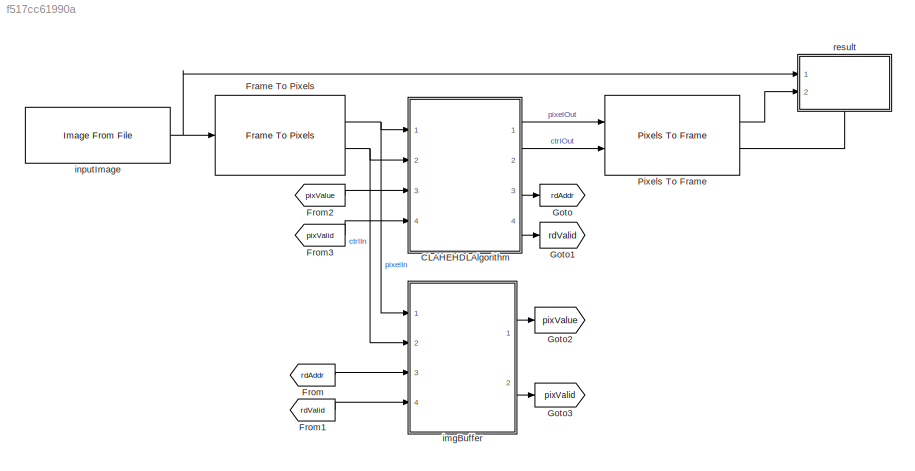
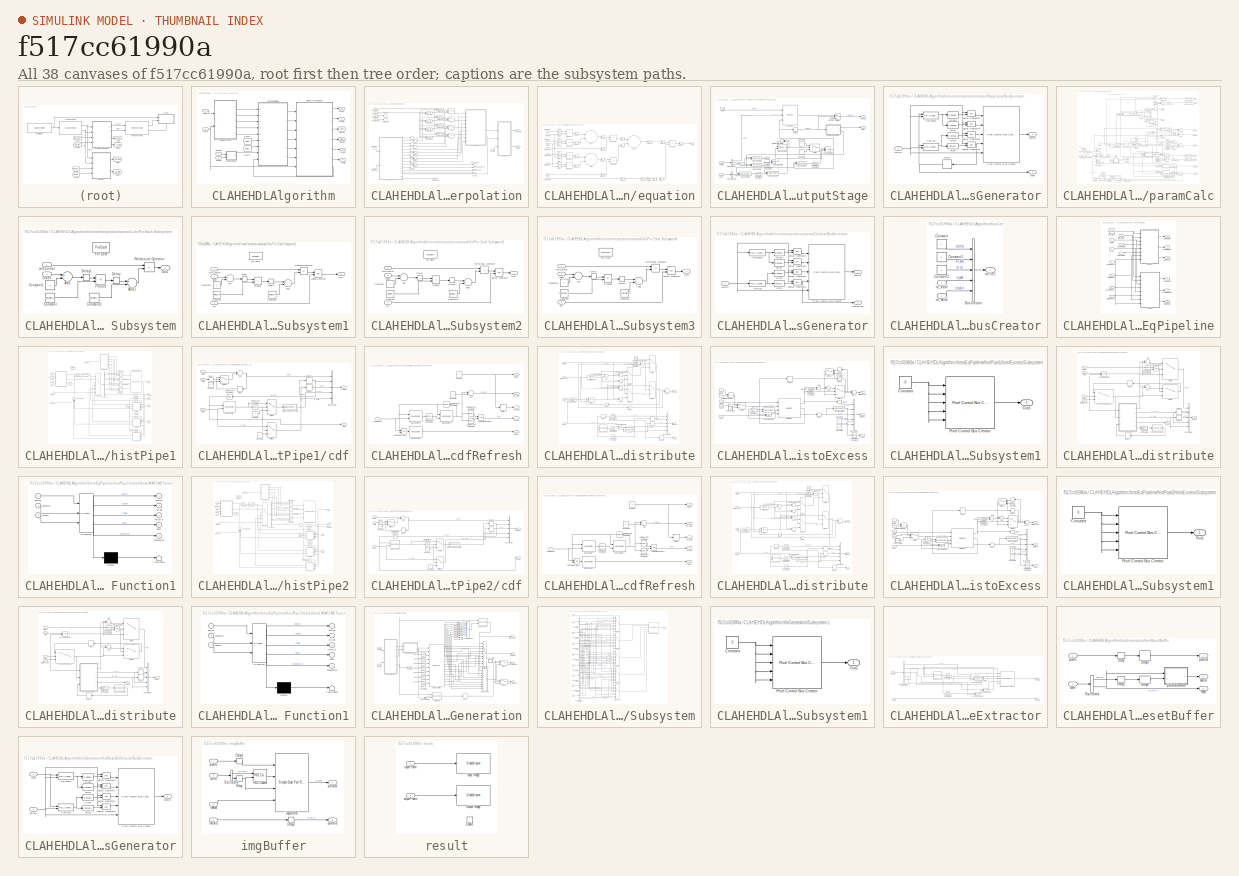
[diagram: thumbnail index - all 38 canvases of the model, root first then tree order]
MODEL slx_f517cc61990a
KIND model
CONFIG AbsTol = auto
CONFIG EnableMultiTasking = off
CONFIG FixedStep = 1
CONFIG InitFcn = img = imread(get_param('CLAHEExample/inputImage','FileName'));\n%img = [240 320];\nnumTiles = [8 8];\n\nnormClipLimit = str2double(get_param('CLAHEExample/CLAHEHDLAlgorithm','normClipLimit'));\n\nnumBins = 256;\n\ndimI = size(img);\n\ndimTiles = dimI ./ numTiles;\n\nnumPixInTile = prod(dimTiles);\n\nminClipLimit = ceil(numPixInTile/numBins);\n\nclipLimit = minClipLimit + round(normClipLimit*(numPixInTile-minClipL...<+254ch>
CONFIG MaxStep = auto
CONFIG MinStep = auto
CONFIG PreLoadFcn = % Initialize input image size\nimg = [240 320];\n\n% Number of tiles fixed to 8 x 8\nnumTiles = [8 8];\n\n% Initialize clip limit\nnormClipLimit  = 0.01;\n\n% Number of Bins\nnumBins = 256;\n\ndimI = [240 320] ;\n\ndimTiles = dimI ./ numTiles;\n\nnumPixInTile = prod(dimTiles);\n\nminClipLimit = ceil(numPixInTile/numBins);\n\nclipLimit = minClipLimit + round(normClipLimit*(numPixInTile-minClipLimit));\n\n% Initialize va...<+312ch>
CONFIG RelTol = 1e-3
CONFIG SampleTimeConstraint = Unconstrained
CONFIG Solver = FixedStepDiscrete
CONFIG SolverName = FixedStepDiscrete
CONFIG StartTime = 0.0
CONFIG StopTime = 402*324
BLOCK [SubSystem] CLAHEHDLAlgorithm
  Ports = [4, 4]
  RequestExecContextInheritance = off
  TreatAsAtomicUnit = on
BLOCK [From] CLAHEHDLAlgorithm/From3
  GotoTag = pipe2
BLOCK [From] CLAHEHDLAlgorithm/From4
  GotoTag = pipe1
BLOCK [Goto] CLAHEHDLAlgorithm/Goto3
  GotoTag = pipe2
BLOCK [Goto] CLAHEHDLAlgorithm/Goto4
  GotoTag = pipe1
BLOCK [SubSystem] CLAHEHDLAlgorithm/bilinearInterpolation
  Ports = [7, 7]
  RequestExecContextInheritance = off
BLOCK [Outport] CLAHEHDLAlgorithm/bilinearInterpolation/CLAHEOut
  IconDisplay = Port number
  VectorParamsAs1DForOutWhenUnconnected = off
BLOCK [Delay] CLAHEHDLAlgorithm/bilinearInterpolation/Delay
  DelayLength = 6
  InitialCondition = 1
  InputPortMap = u0
  Ports = [1, 1]
BLOCK [Delay] CLAHEHDLAlgorithm/bilinearInterpolation/Delay1
  DelayLength = 6
  InitialCondition = 1
  InputPortMap = u0
  Ports = [1, 1]
BLOCK [Delay] CLAHEHDLAlgorithm/bilinearInterpolation/Delay10
  DelayLength = 6
  InputPortMap = u0
  Ports = [1, 1]
BLOCK [Delay] CLAHEHDLAlgorithm/bilinearInterpolation/Delay2
  DelayLength = 6
  InputPortMap = u0
  Ports = [1, 1]
BLOCK [Delay] CLAHEHDLAlgorithm/bilinearInterpolation/Delay3
  DelayLength = 6
  InputPortMap = u0
  Ports = [1, 1]
BLOCK [Delay] CLAHEHDLAlgorithm/bilinearInterpolation/Delay4
  DelayLength = 6
  InputPortMap = u0
  Ports = [1, 1]
BLOCK [Delay] CLAHEHDLAlgorithm/bilinearInterpolation/Delay5
  DelayLength = 6
  InputPortMap = u0
  Ports = [1, 1]
BLOCK [Delay] CLAHEHDLAlgorithm/bilinearInterpolation/Delay6
  DelayLength = 6
  InputPortMap = u0
  Ports = [1, 1]
BLOCK [Delay] CLAHEHDLAlgorithm/bilinearInterpolation/Delay7
  DelayLength = 6
  InputPortMap = u0
  Ports = [1, 1]
BLOCK [Delay] CLAHEHDLAlgorithm/bilinearInterpolation/Delay8
  DelayLength = 6
  InputPortMap = u0
  Ports = [1, 1]
BLOCK [Delay] CLAHEHDLAlgorithm/bilinearInterpolation/Delay9
  DelayLength = 6
  InputPortMap = u0
  Ports = [1, 1]
BLOCK [Switch] CLAHEHDLAlgorithm/bilinearInterpolation/S0
  Criteria = u2 ~= 0
  InputSameDT = off
  SaturateOnIntegerOverflow = off
BLOCK [Switch] CLAHEHDLAlgorithm/bilinearInterpolation/S1
  Criteria = u2 ~= 0
  InputSameDT = off
  SaturateOnIntegerOverflow = off
BLOCK [Switch] CLAHEHDLAlgorithm/bilinearInterpolation/S2
  Criteria = u2 ~= 0
  InputSameDT = off
  SaturateOnIntegerOverflow = off
BLOCK [Switch] CLAHEHDLAlgorithm/bilinearInterpolation/S3
  Criteria = u2 ~= 0
  InputSameDT = off
  SaturateOnIntegerOverflow = off
BLOCK [Terminator] CLAHEHDLAlgorithm/bilinearInterpolation/Terminator
BLOCK [Terminator] CLAHEHDLAlgorithm/bilinearInterpolation/Terminator1
BLOCK [Selector] CLAHEHDLAlgorithm/bilinearInterpolation/blMapTile
  IndexOptions = Index vector (port)
  Indices = [1 numTiles(2)]
  InputPortWidth = numTiles(2)
  OutputSizes = 1
  Ports = [2, 1]
BLOCK [Selector] CLAHEHDLAlgorithm/bilinearInterpolation/blMapTile1
  IndexOptions = Index vector (port)
  Indices = [1 numTiles(2)]
  InputPortWidth = numTiles(2)
  OutputSizes = 1
  Ports = [2, 1]
BLOCK [Selector] CLAHEHDLAlgorithm/bilinearInterpolation/brMapTile
  IndexOptions = Index vector (port)
  Indices = [1 numTiles(2)]
  InputPortWidth = numTiles(2)
  OutputSizes = 1
  Ports = [2, 1]
BLOCK [Selector] CLAHEHDLAlgorithm/bilinearInterpolation/brMapTile1
  IndexOptions = Index vector (port)
  Indices = [1 numTiles(2)]
  InputPortWidth = numTiles(2)
  OutputSizes = 1
  Ports = [2, 1]
BLOCK [Inport] CLAHEHDLAlgorithm/bilinearInterpolation/cdfValPipe1
  IconDisplay = Port number
BLOCK [Inport] CLAHEHDLAlgorithm/bilinearInterpolation/cdfValPipe2
  IconDisplay = Port number
  Port = 4
BLOCK [Inport] CLAHEHDLAlgorithm/bilinearInterpolation/cdfValidPipe1
  IconDisplay = Port number
  Port = 2
BLOCK [Inport] CLAHEHDLAlgorithm/bilinearInterpolation/cdfValidPipe2
  IconDisplay = Port number
  Port = 5
BLOCK [Outport] CLAHEHDLAlgorithm/bilinearInterpolation/ctrlOut
  IconDisplay = Port number
  Port = 2
  VectorParamsAs1DForOutWhenUnconnected = off
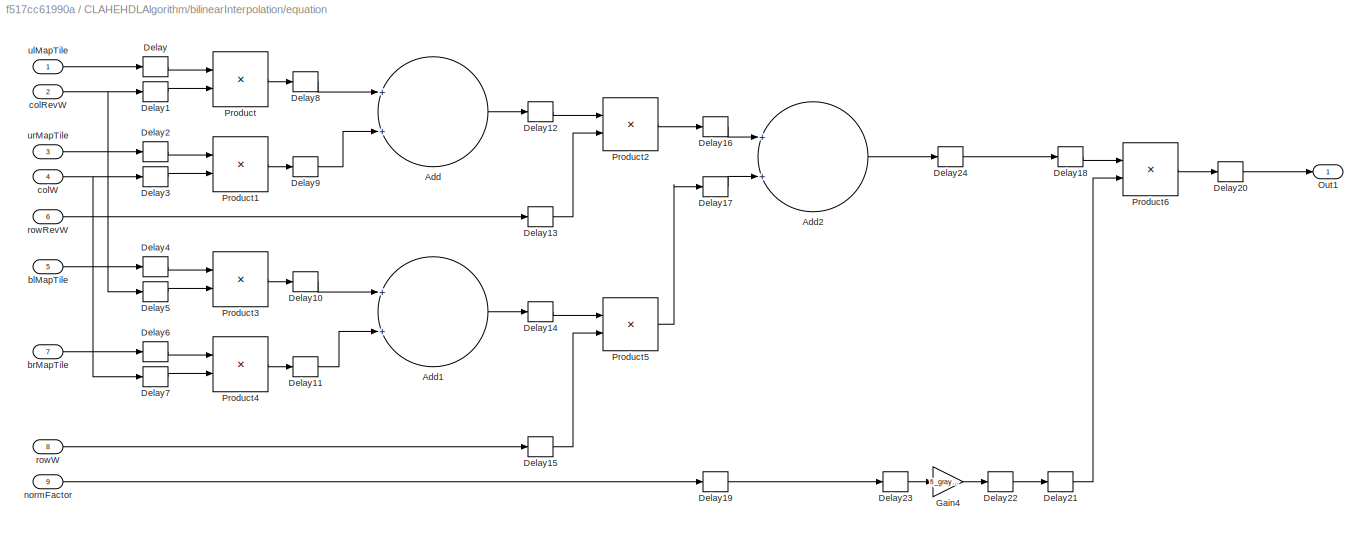
BLOCK [SubSystem] CLAHEHDLAlgorithm/bilinearInterpolation/equation
  Ports = [9, 1]
  RequestExecContextInheritance = off
BLOCK [Sum] CLAHEHDLAlgorithm/bilinearInterpolation/equation/Add
  InputSameDT = off
  OutDataTypeStr = Inherit: Inherit via internal rule
  Ports = [2, 1]
  SaturateOnIntegerOverflow = off
BLOCK [Sum] CLAHEHDLAlgorithm/bilinearInterpolation/equation/Add1
  InputSameDT = off
  OutDataTypeStr = Inherit: Inherit via internal rule
  Ports = [2, 1]
  SaturateOnIntegerOverflow = off
BLOCK [Sum] CLAHEHDLAlgorithm/bilinearInterpolation/equation/Add2
  InputSameDT = off
  OutDataTypeStr = Inherit: Inherit via internal rule
  Ports = [2, 1]
  SaturateOnIntegerOverflow = off
BLOCK [Delay] CLAHEHDLAlgorithm/bilinearInterpolation/equation/Delay
  InputPortMap = u0
  Ports = [1, 1]
BLOCK [Delay] CLAHEHDLAlgorithm/bilinearInterpolation/equation/Delay1
  InputPortMap = u0
  Ports = [1, 1]
BLOCK [Delay] CLAHEHDLAlgorithm/bilinearInterpolation/equation/Delay10
  InputPortMap = u0
  Ports = [1, 1]
BLOCK [Delay] CLAHEHDLAlgorithm/bilinearInterpolation/equation/Delay11
  InputPortMap = u0
  Ports = [1, 1]
BLOCK [Delay] CLAHEHDLAlgorithm/bilinearInterpolation/equation/Delay12
  InputPortMap = u0
  Ports = [1, 1]
BLOCK [Delay] CLAHEHDLAlgorithm/bilinearInterpolation/equation/Delay13
  DelayLength = 6
  InputPortMap = u0
  Ports = [1, 1]
BLOCK [Delay] CLAHEHDLAlgorithm/bilinearInterpolation/equation/Delay14
  InputPortMap = u0
  Ports = [1, 1]
BLOCK [Delay] CLAHEHDLAlgorithm/bilinearInterpolation/equation/Delay15
  DelayLength = 6
  InputPortMap = u0
  Ports = [1, 1]
BLOCK [Delay] CLAHEHDLAlgorithm/bilinearInterpolation/equation/Delay16
  InputPortMap = u0
  Ports = [1, 1]
BLOCK [Delay] CLAHEHDLAlgorithm/bilinearInterpolation/equation/Delay17
  InputPortMap = u0
  Ports = [1, 1]
BLOCK [Delay] CLAHEHDLAlgorithm/bilinearInterpolation/equation/Delay18
  InputPortMap = u0
  Ports = [1, 1]
BLOCK [Delay] CLAHEHDLAlgorithm/bilinearInterpolation/equation/Delay19
  DelayLength = 8
  InputPortMap = u0
  Ports = [1, 1]
BLOCK [Delay] CLAHEHDLAlgorithm/bilinearInterpolation/equation/Delay2
  InputPortMap = u0
  Ports = [1, 1]
BLOCK [Delay] CLAHEHDLAlgorithm/bilinearInterpolation/equation/Delay20
  InputPortMap = u0
  Ports = [1, 1]
BLOCK [Delay] CLAHEHDLAlgorithm/bilinearInterpolation/equation/Delay21
  InputPortMap = u0
  Ports = [1, 1]
BLOCK [Delay] CLAHEHDLAlgorithm/bilinearInterpolation/equation/Delay22
  InputPortMap = u0
  Ports = [1, 1]
BLOCK [Delay] CLAHEHDLAlgorithm/bilinearInterpolation/equation/Delay23
  InputPortMap = u0
  Ports = [1, 1]
BLOCK [Delay] CLAHEHDLAlgorithm/bilinearInterpolation/equation/Delay24
  DelayLength = 4
  InputPortMap = u0
  Ports = [1, 1]
BLOCK [Delay] CLAHEHDLAlgorithm/bilinearInterpolation/equation/Delay3
  InputPortMap = u0
  Ports = [1, 1]
BLOCK [Delay] CLAHEHDLAlgorithm/bilinearInterpolation/equation/Delay4
  InputPortMap = u0
  Ports = [1, 1]
BLOCK [Delay] CLAHEHDLAlgorithm/bilinearInterpolation/equation/Delay5
  InputPortMap = u0
  Ports = [1, 1]
BLOCK [Delay] CLAHEHDLAlgorithm/bilinearInterpolation/equation/Delay6
  InputPortMap = u0
  Ports = [1, 1]
BLOCK [Delay] CLAHEHDLAlgorithm/bilinearInterpolation/equation/Delay7
  InputPortMap = u0
  Ports = [1, 1]
BLOCK [Delay] CLAHEHDLAlgorithm/bilinearInterpolation/equation/Delay8
  InputPortMap = u0
  Ports = [1, 1]
BLOCK [Delay] CLAHEHDLAlgorithm/bilinearInterpolation/equation/Delay9
  InputPortMap = u0
  Ports = [1, 1]
BLOCK [Gain] CLAHEHDLAlgorithm/bilinearInterpolation/equation/Gain4
  Gain = fi_grayxval
  LockScale = on
  ParamDataTypeStr = Inherit: Inherit via internal rule
  RndMeth = Round
  SaturateOnIntegerOverflow = off
BLOCK [Outport] CLAHEHDLAlgorithm/bilinearInterpolation/equation/Out1
  IconDisplay = Port number
  VectorParamsAs1DForOutWhenUnconnected = off
BLOCK [Product] CLAHEHDLAlgorithm/bilinearInterpolation/equation/Product
  InputSameDT = off
  OutDataTypeStr = Inherit: Inherit via internal rule
  Ports = [2, 1]
  RndMeth = Floor
  SaturateOnIntegerOverflow = off
BLOCK [Product] CLAHEHDLAlgorithm/bilinearInterpolation/equation/Product1
  InputSameDT = off
  OutDataTypeStr = Inherit: Inherit via internal rule
  Ports = [2, 1]
  RndMeth = Floor
  SaturateOnIntegerOverflow = off
BLOCK [Product] CLAHEHDLAlgorithm/bilinearInterpolation/equation/Product2
  InputSameDT = off
  OutDataTypeStr = Inherit: Inherit via internal rule
  Ports = [2, 1]
  RndMeth = Floor
  SaturateOnIntegerOverflow = off
BLOCK [Product] CLAHEHDLAlgorithm/bilinearInterpolation/equation/Product3
  InputSameDT = off
  OutDataTypeStr = Inherit: Inherit via internal rule
  Ports = [2, 1]
  RndMeth = Floor
  SaturateOnIntegerOverflow = off
BLOCK [Product] CLAHEHDLAlgorithm/bilinearInterpolation/equation/Product4
  InputSameDT = off
  OutDataTypeStr = Inherit: Inherit via internal rule
  Ports = [2, 1]
  RndMeth = Floor
  SaturateOnIntegerOverflow = off
BLOCK [Product] CLAHEHDLAlgorithm/bilinearInterpolation/equation/Product5
  InputSameDT = off
  OutDataTypeStr = Inherit: Inherit via internal rule
  Ports = [2, 1]
  RndMeth = Floor
  SaturateOnIntegerOverflow = off
BLOCK [Product] CLAHEHDLAlgorithm/bilinearInterpolation/equation/Product6
  InputSameDT = off
  LockScale = on
  OutDataTypeStr = uint8
  Ports = [2, 1]
  RndMeth = Round
BLOCK [Inport] CLAHEHDLAlgorithm/bilinearInterpolation/equation/blMapTile
  IconDisplay = Port number
  Port = 5
BLOCK [Inport] CLAHEHDLAlgorithm/bilinearInterpolation/equation/brMapTile
  IconDisplay = Port number
  Port = 7
BLOCK [Inport] CLAHEHDLAlgorithm/bilinearInterpolation/equation/colRevW
  IconDisplay = Port number
  Port = 2
BLOCK [Inport] CLAHEHDLAlgorithm/bilinearInterpolation/equation/colW
  IconDisplay = Port number
  Port = 4
BLOCK [Inport] CLAHEHDLAlgorithm/bilinearInterpolation/equation/normFactor
  IconDisplay = Port number
  Port = 9
BLOCK [Inport] CLAHEHDLAlgorithm/bilinearInterpolation/equation/rowRevW
  IconDisplay = Port number
  Port = 6
BLOCK [Inport] CLAHEHDLAlgorithm/bilinearInterpolation/equation/rowW
  IconDisplay = Port number
  Port = 8
BLOCK [Inport] CLAHEHDLAlgorithm/bilinearInterpolation/equation/ulMapTile
  IconDisplay = Port number
BLOCK [Inport] CLAHEHDLAlgorithm/bilinearInterpolation/equation/urMapTile
  IconDisplay = Port number
  Port = 3
BLOCK [Outport] CLAHEHDLAlgorithm/bilinearInterpolation/frameDone
  IconDisplay = Port number
  Port = 7
  VectorParamsAs1DForOutWhenUnconnected = off
BLOCK [Inport] CLAHEHDLAlgorithm/bilinearInterpolation/inputCtrl
  IconDisplay = Port number
  Port = 7
BLOCK [SubSystem] CLAHEHDLAlgorithm/bilinearInterpolation/outputStage
  Ports = [3, 2]
  RequestExecContextInheritance = off
BLOCK [BusSelector] CLAHEHDLAlgorithm/bilinearInterpolation/outputStage/Bus Selector
  OutputAsBus = off
  OutputSignals = valid,hStart,vEnd
  Ports = [1, 3]
BLOCK [BusSelector] CLAHEHDLAlgorithm/bilinearInterpolation/outputStage/Bus Selector1
  OutputAsBus = off
  OutputSignals = hStart
  Ports = [1, 1]
BLOCK [Reference] CLAHEHDLAlgorithm/bilinearInterpolation/outputStage/Compare To Constant  REF=simulink/Logic and Bit
Operations/Compare
To Constant
  Ports = [1, 1]
  SourceBlock = simulink/Logic and Bit\nOperations/Compare\nTo Constant
  SourceProductBaseCode = SL
  SourceProductName = Simulink
  SourceType = Compare To Constant
BLOCK [Reference] CLAHEHDLAlgorithm/bilinearInterpolation/outputStage/Compare To Constant1  REF=simulink/Logic and Bit
Operations/Compare
To Constant
  Ports = [1, 1]
  SourceBlock = simulink/Logic and Bit\nOperations/Compare\nTo Constant
  SourceProductBaseCode = SL
  SourceProductName = Simulink
  SourceType = Compare To Constant
BLOCK [Reference] CLAHEHDLAlgorithm/bilinearInterpolation/outputStage/Compare To Constant3  REF=simulink/Logic and Bit
Operations/Compare
To Constant
  Ports = [1, 1]
  SourceBlock = simulink/Logic and Bit\nOperations/Compare\nTo Constant
  SourceProductBaseCode = SL
  SourceProductName = Simulink
  SourceType = Compare To Constant
BLOCK [Reference] CLAHEHDLAlgorithm/bilinearInterpolation/outputStage/Compare To Constant4  REF=simulink/Logic and Bit
Operations/Compare
To Constant
  Ports = [1, 1]
  SourceBlock = simulink/Logic and Bit\nOperations/Compare\nTo Constant
  SourceProductBaseCode = SL
  SourceProductName = Simulink
  SourceType = Compare To Constant
BLOCK [Constant] CLAHEHDLAlgorithm/bilinearInterpolation/outputStage/Constant
  OutDataTypeStr = Inherit: Inherit via back propagation
  SampleTime = -1
  Value = 0
BLOCK [Constant] CLAHEHDLAlgorithm/bilinearInterpolation/outputStage/Constant2
  OutDataTypeStr = boolean
  SampleTime = -1
BLOCK [Constant] CLAHEHDLAlgorithm/bilinearInterpolation/outputStage/Constant3
  OutDataTypeStr = boolean
  SampleTime = -1
  Value = 0
BLOCK [Delay] CLAHEHDLAlgorithm/bilinearInterpolation/outputStage/Delay1
  DelayLength = 1
  InputPortMap = u0
  Ports = [1, 1]
BLOCK [Reference] CLAHEHDLAlgorithm/bilinearInterpolation/outputStage/HDL Counter1  REF=hdlsllib/Sources/HDL Counter
  Ports = [2, 1]
  SourceBlock = hdlsllib/Sources/HDL Counter
  SourceProductBaseCode = SL
  SourceProductName = Simulink
  SourceType = HDL Counter
BLOCK [Reference] CLAHEHDLAlgorithm/bilinearInterpolation/outputStage/HDL Counter2  REF=hdlsllib/Sources/HDL Counter
  Ports = [2, 1]
  SourceBlock = hdlsllib/Sources/HDL Counter
  SourceProductBaseCode = SL
  SourceProductName = Simulink
  SourceType = HDL Counter
BLOCK [Reference] CLAHEHDLAlgorithm/bilinearInterpolation/outputStage/HDL Counter3  REF=hdlsllib/Sources/HDL Counter
  Ports = [2, 1]
  SourceBlock = hdlsllib/Sources/HDL Counter
  SourceProductBaseCode = SL
  SourceProductName = Simulink
  SourceType = HDL Counter
BLOCK [Reference] CLAHEHDLAlgorithm/bilinearInterpolation/outputStage/HDL Counter4  REF=hdlsllib/Sources/HDL Counter
  Ports = [2, 1]
  SourceBlock = hdlsllib/Sources/HDL Counter
  SourceProductBaseCode = SL
  SourceProductName = Simulink
  SourceType = HDL Counter
BLOCK [Reference] CLAHEHDLAlgorithm/bilinearInterpolation/outputStage/HDL Counter5  REF=hdlsllib/Sources/HDL Counter
  Ports = [2, 1]
  SourceBlock = hdlsllib/Sources/HDL Counter
  SourceProductBaseCode = SL
  SourceProductName = Simulink
  SourceType = HDL Counter
BLOCK [Reference] CLAHEHDLAlgorithm/bilinearInterpolation/outputStage/HDL Counter9  REF=hdlsllib/Sources/HDL Counter
  Ports = [2, 1]
  SourceBlock = hdlsllib/Sources/HDL Counter
  SourceProductBaseCode = SL
  SourceProductName = Simulink
  SourceType = HDL Counter
BLOCK [Reference] CLAHEHDLAlgorithm/bilinearInterpolation/outputStage/HDL FIFO  REF=hdlsllib/HDL RAMs/HDL FIFO
  Ports = [3, 1]
  SourceBlock = hdlsllib/HDL RAMs/HDL FIFO
  SourceProductBaseCode = SL
  SourceProductName = Simulink
  SourceType = HDL_FIFO
BLOCK [Logic] CLAHEHDLAlgorithm/bilinearInterpolation/outputStage/Logical Operator
  AllPortsSameDT = off
  Inputs = 3
  OutDataTypeStr = boolean
  Ports = [3, 1]
BLOCK [Logic] CLAHEHDLAlgorithm/bilinearInterpolation/outputStage/Logical Operator1
  AllPortsSameDT = off
  Operator = OR
  OutDataTypeStr = boolean
  Ports = [2, 1]
BLOCK [RelationalOperator] CLAHEHDLAlgorithm/bilinearInterpolation/outputStage/Relational Operator
  InputSameDT = off
  Operator = ==
  OutDataTypeStr = boolean
  Ports = [2, 1]
BLOCK [Switch] CLAHEHDLAlgorithm/bilinearInterpolation/outputStage/Switch
  InputSameDT = off
  SaturateOnIntegerOverflow = off
  Threshold = dimI(2)
BLOCK [Switch] CLAHEHDLAlgorithm/bilinearInterpolation/outputStage/Switch1
  Criteria = u2 ~= 0
  InputSameDT = off
  SaturateOnIntegerOverflow = off
BLOCK [Inport] CLAHEHDLAlgorithm/bilinearInterpolation/outputStage/control 
  IconDisplay = Port number
  Port = 2
BLOCK [Outport] CLAHEHDLAlgorithm/bilinearInterpolation/outputStage/ctrlOut
  IconDisplay = Port number
  Port = 2
  VectorParamsAs1DForOutWhenUnconnected = off
BLOCK [Inport] CLAHEHDLAlgorithm/bilinearInterpolation/outputStage/input 
  IconDisplay = Port number
  Port = 3
BLOCK [SubSystem] CLAHEHDLAlgorithm/bilinearInterpolation/outputStage/pixelBusGenerator
  Ports = [1, 2]
  RequestExecContextInheritance = off
BLOCK [Delay] CLAHEHDLAlgorithm/bilinearInterpolation/outputStage/pixelBusGenerator/Delay
  DelayLength = 1
  InputPortMap = u0
  Ports = [1, 1]
BLOCK [Reference] CLAHEHDLAlgorithm/bilinearInterpolation/outputStage/pixelBusGenerator/Horizontal  REF=hdlsllib/Sources/HDL Counter
  Ports = [2, 1]
  SourceBlock = hdlsllib/Sources/HDL Counter
  SourceProductBaseCode = SL
  SourceProductName = Simulink
  SourceType = HDL Counter
BLOCK [Logic] CLAHEHDLAlgorithm/bilinearInterpolation/outputStage/pixelBusGenerator/Logical Operator3
  AllPortsSameDT = off
  OutDataTypeStr = boolean
  Ports = [2, 1]
BLOCK [Logic] CLAHEHDLAlgorithm/bilinearInterpolation/outputStage/pixelBusGenerator/Logical Operator4
  AllPortsSameDT = off
  OutDataTypeStr = boolean
  Ports = [2, 1]
BLOCK [Logic] CLAHEHDLAlgorithm/bilinearInterpolation/outputStage/pixelBusGenerator/Logical Operator5
  AllPortsSameDT = off
  OutDataTypeStr = boolean
  Ports = [2, 1]
BLOCK [Logic] CLAHEHDLAlgorithm/bilinearInterpolation/outputStage/pixelBusGenerator/Logical Operator6
  AllPortsSameDT = off
  OutDataTypeStr = boolean
  Ports = [2, 1]
BLOCK [Reference] CLAHEHDLAlgorithm/bilinearInterpolation/outputStage/pixelBusGenerator/Pixel Control Bus Creator  REF=visionhdlutilities/Pixel Control
Bus Creator
  Ports = [5, 1]
  SourceBlock = visionhdlutilities/Pixel Control\nBus Creator
  SourceProductBaseCode = VT
  SourceProductName = Vision HDL Toolbox
  SourceType = Pixel Control Bus Creator
BLOCK [Reference] CLAHEHDLAlgorithm/bilinearInterpolation/outputStage/pixelBusGenerator/Vertical  REF=hdlsllib/Sources/HDL Counter
  Ports = [2, 1]
  SourceBlock = hdlsllib/Sources/HDL Counter
  SourceProductBaseCode = SL
  SourceProductName = Simulink
  SourceType = HDL Counter
BLOCK [Outport] CLAHEHDLAlgorithm/bilinearInterpolation/outputStage/pixelBusGenerator/busOut
  IconDisplay = Port number
  VectorParamsAs1DForOutWhenUnconnected = off
BLOCK [Reference] CLAHEHDLAlgorithm/bilinearInterpolation/outputStage/pixelBusGenerator/hEnd  REF=simulink/Logic and Bit
Operations/Compare
To Constant
  Ports = [1, 1]
  SourceBlock = simulink/Logic and Bit\nOperations/Compare\nTo Constant
  SourceProductBaseCode = SL
  SourceProductName = Simulink
  SourceType = Compare To Constant
BLOCK [Reference] CLAHEHDLAlgorithm/bilinearInterpolation/outputStage/pixelBusGenerator/hStart  REF=simulink/Logic and Bit
Operations/Compare
To Constant
  Ports = [1, 1]
  SourceBlock = simulink/Logic and Bit\nOperations/Compare\nTo Constant
  SourceProductBaseCode = SL
  SourceProductName = Simulink
  SourceType = Compare To Constant
BLOCK [Outport] CLAHEHDLAlgorithm/bilinearInterpolation/outputStage/pixelBusGenerator/reset
  IconDisplay = Port number
  Port = 2
  VectorParamsAs1DForOutWhenUnconnected = off
BLOCK [Reference] CLAHEHDLAlgorithm/bilinearInterpolation/outputStage/pixelBusGenerator/vEnd  REF=simulink/Logic and Bit
Operations/Compare
To Constant
  Ports = [1, 1]
  SourceBlock = simulink/Logic and Bit\nOperations/Compare\nTo Constant
  SourceProductBaseCode = SL
  SourceProductName = Simulink
  SourceType = Compare To Constant
BLOCK [Reference] CLAHEHDLAlgorithm/bilinearInterpolation/outputStage/pixelBusGenerator/vStart  REF=simulink/Logic and Bit
Operations/Compare
To Constant
  Ports = [1, 1]
  SourceBlock = simulink/Logic and Bit\nOperations/Compare\nTo Constant
  SourceProductBaseCode = SL
  SourceProductName = Simulink
  SourceType = Compare To Constant
BLOCK [Inport] CLAHEHDLAlgorithm/bilinearInterpolation/outputStage/pixelBusGenerator/validIn
  IconDisplay = Port number
BLOCK [Inport] CLAHEHDLAlgorithm/bilinearInterpolation/outputStage/pixelIn
  IconDisplay = Port number
BLOCK [Outport] CLAHEHDLAlgorithm/bilinearInterpolation/outputStage/pixelOut
  IconDisplay = Port number
  VectorParamsAs1DForOutWhenUnconnected = off
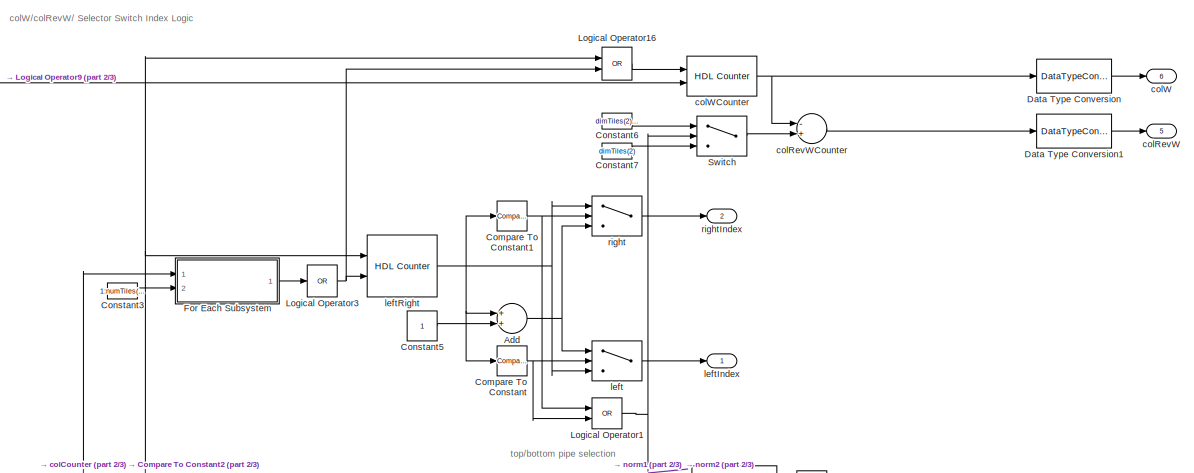
[diagram: CLAHEHDLAlgorithm/bilinearInterpolation/paramCalc - part 1/3, top center region]
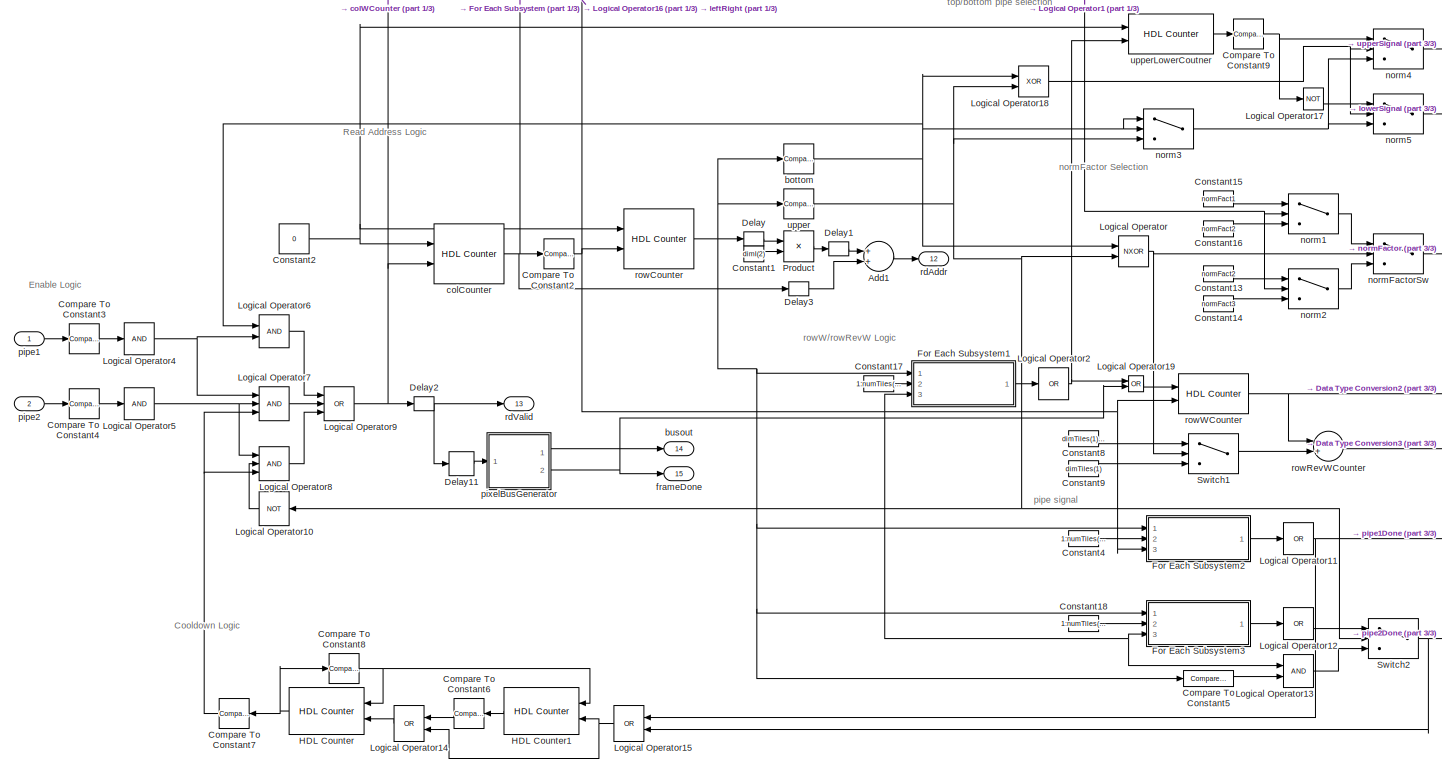
[diagram: CLAHEHDLAlgorithm/bilinearInterpolation/paramCalc - part 2/3, full width, bottom band]
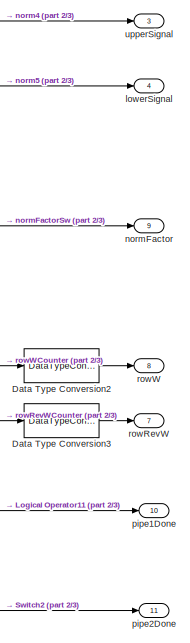
[diagram: CLAHEHDLAlgorithm/bilinearInterpolation/paramCalc - part 3/3, middle right region]
BLOCK [SubSystem] CLAHEHDLAlgorithm/bilinearInterpolation/paramCalc
  Ports = [2, 15]
  RequestExecContextInheritance = off
BLOCK [Sum] CLAHEHDLAlgorithm/bilinearInterpolation/paramCalc/Add
  InputSameDT = off
  OutDataTypeStr = uint8
  Ports = [2, 1]
  SaturateOnIntegerOverflow = off
BLOCK [Sum] CLAHEHDLAlgorithm/bilinearInterpolation/paramCalc/Add1
  InputSameDT = off
  OutDataTypeStr = fixdt(0,ceil(log2(prod(dimI))),0)
  Ports = [2, 1]
  SaturateOnIntegerOverflow = off
BLOCK [Reference] CLAHEHDLAlgorithm/bilinearInterpolation/paramCalc/Compare To Constant  REF=simulink/Logic and Bit
Operations/Compare
To Constant
  Ports = [1, 1]
  SourceBlock = simulink/Logic and Bit\nOperations/Compare\nTo Constant
  SourceProductBaseCode = SL
  SourceProductName = Simulink
  SourceType = Compare To Constant
BLOCK [Reference] CLAHEHDLAlgorithm/bilinearInterpolation/paramCalc/Compare To Constant1  REF=simulink/Logic and Bit
Operations/Compare
To Constant
  Ports = [1, 1]
  SourceBlock = simulink/Logic and Bit\nOperations/Compare\nTo Constant
  SourceProductBaseCode = SL
  SourceProductName = Simulink
  SourceType = Compare To Constant
BLOCK [Reference] CLAHEHDLAlgorithm/bilinearInterpolation/paramCalc/Compare To Constant2  REF=simulink/Logic and Bit
Operations/Compare
To Constant
  Ports = [1, 1]
  SourceBlock = simulink/Logic and Bit\nOperations/Compare\nTo Constant
  SourceProductBaseCode = SL
  SourceProductName = Simulink
  SourceType = Compare To Constant
BLOCK [Reference] CLAHEHDLAlgorithm/bilinearInterpolation/paramCalc/Compare To Constant3  REF=simulink/Logic and Bit
Operations/Compare
To Constant
  Ports = [1, 1]
  SourceBlock = simulink/Logic and Bit\nOperations/Compare\nTo Constant
  SourceProductBaseCode = SL
  SourceProductName = Simulink
  SourceType = Compare To Constant
BLOCK [Reference] CLAHEHDLAlgorithm/bilinearInterpolation/paramCalc/Compare To Constant4  REF=simulink/Logic and Bit
Operations/Compare
To Constant
  Ports = [1, 1]
  SourceBlock = simulink/Logic and Bit\nOperations/Compare\nTo Constant
  SourceProductBaseCode = SL
  SourceProductName = Simulink
  SourceType = Compare To Constant
BLOCK [Reference] CLAHEHDLAlgorithm/bilinearInterpolation/paramCalc/Compare To Constant5  REF=simulink/Logic and Bit
Operations/Compare
To Constant
  Ports = [1, 1]
  SourceBlock = simulink/Logic and Bit\nOperations/Compare\nTo Constant
  SourceProductBaseCode = SL
  SourceProductName = Simulink
  SourceType = Compare To Constant
BLOCK [Reference] CLAHEHDLAlgorithm/bilinearInterpolation/paramCalc/Compare To Constant6  REF=simulink/Logic and Bit
Operations/Compare
To Constant
  Ports = [1, 1]
  SourceBlock = simulink/Logic and Bit\nOperations/Compare\nTo Constant
  SourceProductBaseCode = SL
  SourceProductName = Simulink
  SourceType = Compare To Constant
BLOCK [Reference] CLAHEHDLAlgorithm/bilinearInterpolation/paramCalc/Compare To Constant7  REF=simulink/Logic and Bit
Operations/Compare
To Constant
  Ports = [1, 1]
  SourceBlock = simulink/Logic and Bit\nOperations/Compare\nTo Constant
  SourceProductBaseCode = SL
  SourceProductName = Simulink
  SourceType = Compare To Constant
BLOCK [Reference] CLAHEHDLAlgorithm/bilinearInterpolation/paramCalc/Compare To Constant8  REF=simulink/Logic and Bit
Operations/Compare
To Constant
  Ports = [1, 1]
  SourceBlock = simulink/Logic and Bit\nOperations/Compare\nTo Constant
  SourceProductBaseCode = SL
  SourceProductName = Simulink
  SourceType = Compare To Constant
BLOCK [Reference] CLAHEHDLAlgorithm/bilinearInterpolation/paramCalc/Compare To Constant9  REF=simulink/Logic and Bit
Operations/Compare
To Constant
  Ports = [1, 1]
  SourceBlock = simulink/Logic and Bit\nOperations/Compare\nTo Constant
  SourceProductBaseCode = SL
  SourceProductName = Simulink
  SourceType = Compare To Constant
BLOCK [Constant] CLAHEHDLAlgorithm/bilinearInterpolation/paramCalc/Constant1
  OutDataTypeStr = fixdt(0,ceil(log2(dimI(2))),0)
  SampleTime = -1
  Value = dimI(2)
BLOCK [Constant] CLAHEHDLAlgorithm/bilinearInterpolation/paramCalc/Constant13
  LockScale = on
  SampleTime = -1
  Value = normFact2
BLOCK [Constant] CLAHEHDLAlgorithm/bilinearInterpolation/paramCalc/Constant14
  LockScale = on
  SampleTime = -1
  Value = normFact3
BLOCK [Constant] CLAHEHDLAlgorithm/bilinearInterpolation/paramCalc/Constant15
  LockScale = on
  SampleTime = -1
  Value = normFact1
BLOCK [Constant] CLAHEHDLAlgorithm/bilinearInterpolation/paramCalc/Constant16
  LockScale = on
  SampleTime = -1
  Value = normFact2
BLOCK [Constant] CLAHEHDLAlgorithm/bilinearInterpolation/paramCalc/Constant17
  OutDataTypeStr = uint8
  SampleTime = -1
  Value = 1:numTiles(1)
BLOCK [Constant] CLAHEHDLAlgorithm/bilinearInterpolation/paramCalc/Constant18
  OutDataTypeStr = uint8
  SampleTime = -1
  Value = 1:numTiles(1)
BLOCK [Constant] CLAHEHDLAlgorithm/bilinearInterpolation/paramCalc/Constant2
  OutDataTypeStr = boolean
  SampleTime = -1
  Value = 0
BLOCK [Constant] CLAHEHDLAlgorithm/bilinearInterpolation/paramCalc/Constant3
  OutDataTypeStr = uint8
  SampleTime = -1
  Value = 1:numTiles(2)
BLOCK [Constant] CLAHEHDLAlgorithm/bilinearInterpolation/paramCalc/Constant4
  OutDataTypeStr = uint8
  SampleTime = -1
  Value = 1:numTiles(1)
BLOCK [Constant] CLAHEHDLAlgorithm/bilinearInterpolation/paramCalc/Constant5
  OutDataTypeStr = boolean
  SampleTime = -1
BLOCK [Constant] CLAHEHDLAlgorithm/bilinearInterpolation/paramCalc/Constant6
  OutDataTypeStr = uint8
  SampleTime = -1
  Value = dimTiles(2)/2
BLOCK [Constant] CLAHEHDLAlgorithm/bilinearInterpolation/paramCalc/Constant7
  OutDataTypeStr = uint8
  SampleTime = -1
  Value = dimTiles(2)
BLOCK [Constant] CLAHEHDLAlgorithm/bilinearInterpolation/paramCalc/Constant8
  OutDataTypeStr = uint8
  SampleTime = -1
  Value = dimTiles(1)/2
BLOCK [Constant] CLAHEHDLAlgorithm/bilinearInterpolation/paramCalc/Constant9
  OutDataTypeStr = uint8
  SampleTime = -1
  Value = dimTiles(1)
BLOCK [DataTypeConversion] CLAHEHDLAlgorithm/bilinearInterpolation/paramCalc/Data Type Conversion
  OutDataTypeStr = fixdt(0,ceil(log2(dimTiles(2))),0)
  RndMeth = Floor
  SaturateOnIntegerOverflow = off
BLOCK [DataTypeConversion] CLAHEHDLAlgorithm/bilinearInterpolation/paramCalc/Data Type Conversion1
  OutDataTypeStr = fixdt(0,ceil(log2(dimTiles(2))),0)
  RndMeth = Floor
  SaturateOnIntegerOverflow = off
BLOCK [DataTypeConversion] CLAHEHDLAlgorithm/bilinearInterpolation/paramCalc/Data Type Conversion2
  OutDataTypeStr = fixdt(0,ceil(log2(dimTiles(2))),0)
  RndMeth = Floor
  SaturateOnIntegerOverflow = off
BLOCK [DataTypeConversion] CLAHEHDLAlgorithm/bilinearInterpolation/paramCalc/Data Type Conversion3
  OutDataTypeStr = fixdt(0,ceil(log2(dimTiles(2))),0)
  RndMeth = Floor
  SaturateOnIntegerOverflow = off
BLOCK [Delay] CLAHEHDLAlgorithm/bilinearInterpolation/paramCalc/Delay
  InputPortMap = u0
  Ports = [1, 1]
BLOCK [Delay] CLAHEHDLAlgorithm/bilinearInterpolation/paramCalc/Delay1
  InputPortMap = u0
  Ports = [1, 1]
BLOCK [Delay] CLAHEHDLAlgorithm/bilinearInterpolation/paramCalc/Delay11
  DelayLength = 18
  InputPortMap = u0
  Ports = [1, 1]
BLOCK [Delay] CLAHEHDLAlgorithm/bilinearInterpolation/paramCalc/Delay2
  DelayLength = 4
  InputPortMap = u0
  Ports = [1, 1]
BLOCK [Delay] CLAHEHDLAlgorithm/bilinearInterpolation/paramCalc/Delay3
  DelayLength = 4
  InputPortMap = u0
  Ports = [1, 1]
BLOCK [SubSystem] CLAHEHDLAlgorithm/bilinearInterpolation/paramCalc/For Each Subsystem
  Ports = [2, 1]
  RequestExecContextInheritance = off
  TreatAsAtomicUnit = on
BLOCK [Sum] CLAHEHDLAlgorithm/bilinearInterpolation/paramCalc/For Each Subsystem/Add
  InputSameDT = off
  Inputs = +-
  OutDataTypeStr = Inherit: Inherit via internal rule
  Ports = [2, 1]
  SaturateOnIntegerOverflow = off
BLOCK [Sum] CLAHEHDLAlgorithm/bilinearInterpolation/paramCalc/For Each Subsystem/Add1
  InputSameDT = off
  OutDataTypeStr = Inherit: Inherit via internal rule
  Ports = [2, 1]
  SaturateOnIntegerOverflow = off
BLOCK [Constant] CLAHEHDLAlgorithm/bilinearInterpolation/paramCalc/For Each Subsystem/Constant
  OutDataTypeStr = fixdt(0,ceil(log2(dimTiles(2))),0)
  SampleTime = -1
  Value = dimTiles(2)
BLOCK [Constant] CLAHEHDLAlgorithm/bilinearInterpolation/paramCalc/For Each Subsystem/Constant1
  OutDataTypeStr = uint8
  SampleTime = -1
BLOCK [Constant] CLAHEHDLAlgorithm/bilinearInterpolation/paramCalc/For Each Subsystem/Constant2
  OutDataTypeStr = fixdt(0,ceil(log2(dimTiles(2))),0)
  SampleTime = -1
  Value = (dimTiles(2)/2) - 1
BLOCK [Delay] CLAHEHDLAlgorithm/bilinearInterpolation/paramCalc/For Each Subsystem/Delay
  InputPortMap = u0
  Ports = [1, 1]
BLOCK [Delay] CLAHEHDLAlgorithm/bilinearInterpolation/paramCalc/For Each Subsystem/Delay1
  InputPortMap = u0
  Ports = [1, 1]
BLOCK [ForEach] CLAHEHDLAlgorithm/bilinearInterpolation/paramCalc/For Each Subsystem/For Each
  DisableCoverage = on
  Ports = []
BLOCK [Inport] CLAHEHDLAlgorithm/bilinearInterpolation/paramCalc/For Each Subsystem/Index
  IconDisplay = Port number
  Partition = on
  PartitionDimension = 1
  PartitionOffset = 0
  PartitionWidth = 1
  Port = 2
BLOCK [Outport] CLAHEHDLAlgorithm/bilinearInterpolation/paramCalc/For Each Subsystem/Out1
  ConcatenationDimension = 1
  IconDisplay = Port number
  VectorParamsAs1DForOutWhenUnconnected = off
BLOCK [Product] CLAHEHDLAlgorithm/bilinearInterpolation/paramCalc/For Each Subsystem/Product
  InputSameDT = off
  OutDataTypeStr = Inherit: Inherit via internal rule
  Ports = [2, 1]
  RndMeth = Floor
  SaturateOnIntegerOverflow = off
BLOCK [RelationalOperator] CLAHEHDLAlgorithm/bilinearInterpolation/paramCalc/For Each Subsystem/Relational Operator
  InputSameDT = off
  Operator = ==
  OutDataTypeStr = boolean
  Ports = [2, 1]
BLOCK [Inport] CLAHEHDLAlgorithm/bilinearInterpolation/paramCalc/For Each Subsystem/colCounter
  IconDisplay = Port number
BLOCK [SubSystem] CLAHEHDLAlgorithm/bilinearInterpolation/paramCalc/For Each Subsystem1
  Ports = [3, 1]
  RequestExecContextInheritance = off
  TreatAsAtomicUnit = on
BLOCK [Sum] CLAHEHDLAlgorithm/bilinearInterpolation/paramCalc/For Each Subsystem1/Add
  InputSameDT = off
  Inputs = +-
  OutDataTypeStr = Inherit: Inherit via internal rule
  Ports = [2, 1]
  SaturateOnIntegerOverflow = off
BLOCK [Sum] CLAHEHDLAlgorithm/bilinearInterpolation/paramCalc/For Each Subsystem1/Add1
  InputSameDT = off
  OutDataTypeStr = Inherit: Inherit via internal rule
  Ports = [2, 1]
  SaturateOnIntegerOverflow = off
BLOCK [Constant] CLAHEHDLAlgorithm/bilinearInterpolation/paramCalc/For Each Subsystem1/Constant
  OutDataTypeStr = fixdt(0,ceil(log2(dimTiles(1))),0)
  SampleTime = -1
  Value = dimTiles(1)
BLOCK [Constant] CLAHEHDLAlgorithm/bilinearInterpolation/paramCalc/For Each Subsystem1/Constant1
  OutDataTypeStr = uint8
  SampleTime = -1
BLOCK [Constant] CLAHEHDLAlgorithm/bilinearInterpolation/paramCalc/For Each Subsystem1/Constant2
  OutDataTypeStr = fixdt(0,ceil(log2((dimTiles(1)/2))),0)
  SampleTime = -1
  Value = (dimTiles(1)/2)-1
BLOCK [Delay] CLAHEHDLAlgorithm/bilinearInterpolation/paramCalc/For Each Subsystem1/Delay
  InputPortMap = u0
  Ports = [1, 1]
BLOCK [Delay] CLAHEHDLAlgorithm/bilinearInterpolation/paramCalc/For Each Subsystem1/Delay1
  InputPortMap = u0
  Ports = [1, 1]
BLOCK [ForEach] CLAHEHDLAlgorithm/bilinearInterpolation/paramCalc/For Each Subsystem1/For Each
  DisableCoverage = on
  Ports = []
BLOCK [Inport] CLAHEHDLAlgorithm/bilinearInterpolation/paramCalc/For Each Subsystem1/Index
  IconDisplay = Port number
  Partition = on
  PartitionDimension = 1
  PartitionOffset = 0
  PartitionWidth = 1
  Port = 2
BLOCK [Logic] CLAHEHDLAlgorithm/bilinearInterpolation/paramCalc/For Each Subsystem1/Logical Operator
  AllPortsSameDT = off
  OutDataTypeStr = boolean
  Ports = [2, 1]
BLOCK [Outport] CLAHEHDLAlgorithm/bilinearInterpolation/paramCalc/For Each Subsystem1/Out1
  ConcatenationDimension = 1
  IconDisplay = Port number
  VectorParamsAs1DForOutWhenUnconnected = off
BLOCK [Product] CLAHEHDLAlgorithm/bilinearInterpolation/paramCalc/For Each Subsystem1/Product
  InputSameDT = off
  OutDataTypeStr = Inherit: Inherit via internal rule
  Ports = [2, 1]
  RndMeth = Floor
  SaturateOnIntegerOverflow = off
BLOCK [RelationalOperator] CLAHEHDLAlgorithm/bilinearInterpolation/paramCalc/For Each Subsystem1/Relational Operator
  InputSameDT = off
  Operator = ==
  OutDataTypeStr = boolean
  Ports = [2, 1]
BLOCK [Inport] CLAHEHDLAlgorithm/bilinearInterpolation/paramCalc/For Each Subsystem1/en
  IconDisplay = Port number
  Port = 3
BLOCK [Inport] CLAHEHDLAlgorithm/bilinearInterpolation/paramCalc/For Each Subsystem1/rowCounter
  IconDisplay = Port number
BLOCK [SubSystem] CLAHEHDLAlgorithm/bilinearInterpolation/paramCalc/For Each Subsystem2
  Ports = [3, 1]
  RequestExecContextInheritance = off
  TreatAsAtomicUnit = on
BLOCK [Sum] CLAHEHDLAlgorithm/bilinearInterpolation/paramCalc/For Each Subsystem2/Add
  InputSameDT = off
  Inputs = +-
  OutDataTypeStr = Inherit: Inherit via internal rule
  Ports = [2, 1]
  SaturateOnIntegerOverflow = off
BLOCK [Sum] CLAHEHDLAlgorithm/bilinearInterpolation/paramCalc/For Each Subsystem2/Add1
  InputSameDT = off
  OutDataTypeStr = Inherit: Inherit via internal rule
  Ports = [2, 1]
  SaturateOnIntegerOverflow = off
BLOCK [Constant] CLAHEHDLAlgorithm/bilinearInterpolation/paramCalc/For Each Subsystem2/Constant
  OutDataTypeStr = fixdt(0,ceil(log2(2*dimTiles(1))),0)
  SampleTime = -1
  Value = 2*dimTiles(1)
BLOCK [Constant] CLAHEHDLAlgorithm/bilinearInterpolation/paramCalc/For Each Subsystem2/Constant1
  OutDataTypeStr = uint8
  SampleTime = -1
BLOCK [Constant] CLAHEHDLAlgorithm/bilinearInterpolation/paramCalc/For Each Subsystem2/Constant2
  OutDataTypeStr = fixdt(0,ceil(log2((dimTiles(1) + dimTiles(1)/2))),0)
  SampleTime = -1
  Value = (dimTiles(1) + dimTiles(1)/2)-1
BLOCK [Delay] CLAHEHDLAlgorithm/bilinearInterpolation/paramCalc/For Each Subsystem2/Delay
  InputPortMap = u0
  Ports = [1, 1]
BLOCK [Delay] CLAHEHDLAlgorithm/bilinearInterpolation/paramCalc/For Each Subsystem2/Delay1
  InputPortMap = u0
  Ports = [1, 1]
BLOCK [ForEach] CLAHEHDLAlgorithm/bilinearInterpolation/paramCalc/For Each Subsystem2/For Each
  DisableCoverage = on
  Ports = []
BLOCK [Inport] CLAHEHDLAlgorithm/bilinearInterpolation/paramCalc/For Each Subsystem2/Index
  IconDisplay = Port number
  Partition = on
  PartitionDimension = 1
  PartitionOffset = 0
  PartitionWidth = 1
  Port = 2
BLOCK [Logic] CLAHEHDLAlgorithm/bilinearInterpolation/paramCalc/For Each Subsystem2/Logical Operator
  AllPortsSameDT = off
  OutDataTypeStr = boolean
  Ports = [2, 1]
BLOCK [Outport] CLAHEHDLAlgorithm/bilinearInterpolation/paramCalc/For Each Subsystem2/Out1
  ConcatenationDimension = 1
  IconDisplay = Port number
  VectorParamsAs1DForOutWhenUnconnected = off
BLOCK [Product] CLAHEHDLAlgorithm/bilinearInterpolation/paramCalc/For Each Subsystem2/Product
  InputSameDT = off
  OutDataTypeStr = Inherit: Inherit via internal rule
  Ports = [2, 1]
  RndMeth = Floor
  SaturateOnIntegerOverflow = off
BLOCK [RelationalOperator] CLAHEHDLAlgorithm/bilinearInterpolation/paramCalc/For Each Subsystem2/Relational Operator
  InputSameDT = off
  Operator = ==
  OutDataTypeStr = boolean
  Ports = [2, 1]
BLOCK [Inport] CLAHEHDLAlgorithm/bilinearInterpolation/paramCalc/For Each Subsystem2/en
  IconDisplay = Port number
  Port = 3
BLOCK [Inport] CLAHEHDLAlgorithm/bilinearInterpolation/paramCalc/For Each Subsystem2/rowCounter
  IconDisplay = Port number
BLOCK [SubSystem] CLAHEHDLAlgorithm/bilinearInterpolation/paramCalc/For Each Subsystem3
  Ports = [3, 1]
  RequestExecContextInheritance = off
  TreatAsAtomicUnit = on
BLOCK [Sum] CLAHEHDLAlgorithm/bilinearInterpolation/paramCalc/For Each Subsystem3/Add
  InputSameDT = off
  Inputs = +-
  OutDataTypeStr = Inherit: Inherit via internal rule
  Ports = [2, 1]
  SaturateOnIntegerOverflow = off
BLOCK [Sum] CLAHEHDLAlgorithm/bilinearInterpolation/paramCalc/For Each Subsystem3/Add1
  InputSameDT = off
  OutDataTypeStr = Inherit: Inherit via internal rule
  Ports = [2, 1]
  SaturateOnIntegerOverflow = off
BLOCK [Constant] CLAHEHDLAlgorithm/bilinearInterpolation/paramCalc/For Each Subsystem3/Constant
  OutDataTypeStr = fixdt(0,ceil(log2(2*dimTiles(1))),0)
  SampleTime = -1
  Value = 2*dimTiles(1)
BLOCK [Constant] CLAHEHDLAlgorithm/bilinearInterpolation/paramCalc/For Each Subsystem3/Constant1
  OutDataTypeStr = uint8
  SampleTime = -1
BLOCK [Constant] CLAHEHDLAlgorithm/bilinearInterpolation/paramCalc/For Each Subsystem3/Constant2
  OutDataTypeStr = fixdt(0,ceil(log2(2*dimTiles(1) + dimTiles(1))),0)
  SampleTime = -1
  Value = (2*dimTiles(1) + dimTiles(1)/2)-1
BLOCK [Delay] CLAHEHDLAlgorithm/bilinearInterpolation/paramCalc/For Each Subsystem3/Delay
  InputPortMap = u0
  Ports = [1, 1]
BLOCK [Delay] CLAHEHDLAlgorithm/bilinearInterpolation/paramCalc/For Each Subsystem3/Delay1
  InputPortMap = u0
  Ports = [1, 1]
BLOCK [ForEach] CLAHEHDLAlgorithm/bilinearInterpolation/paramCalc/For Each Subsystem3/For Each
  DisableCoverage = on
  Ports = []
BLOCK [Inport] CLAHEHDLAlgorithm/bilinearInterpolation/paramCalc/For Each Subsystem3/Index
  IconDisplay = Port number
  Partition = on
  PartitionDimension = 1
  PartitionOffset = 0
  PartitionWidth = 1
  Port = 2
BLOCK [Logic] CLAHEHDLAlgorithm/bilinearInterpolation/paramCalc/For Each Subsystem3/Logical Operator
  AllPortsSameDT = off
  OutDataTypeStr = boolean
  Ports = [2, 1]
BLOCK [Outport] CLAHEHDLAlgorithm/bilinearInterpolation/paramCalc/For Each Subsystem3/Out1
  ConcatenationDimension = 1
  IconDisplay = Port number
  VectorParamsAs1DForOutWhenUnconnected = off
BLOCK [Product] CLAHEHDLAlgorithm/bilinearInterpolation/paramCalc/For Each Subsystem3/Product
  InputSameDT = off
  OutDataTypeStr = Inherit: Inherit via internal rule
  Ports = [2, 1]
  RndMeth = Floor
  SaturateOnIntegerOverflow = off
BLOCK [RelationalOperator] CLAHEHDLAlgorithm/bilinearInterpolation/paramCalc/For Each Subsystem3/Relational Operator
  InputSameDT = off
  Operator = ==
  OutDataTypeStr = boolean
  Ports = [2, 1]
BLOCK [Inport] CLAHEHDLAlgorithm/bilinearInterpolation/paramCalc/For Each Subsystem3/en
  IconDisplay = Port number
  Port = 3
BLOCK [Inport] CLAHEHDLAlgorithm/bilinearInterpolation/paramCalc/For Each Subsystem3/rowCounter
  IconDisplay = Port number
BLOCK [Reference] CLAHEHDLAlgorithm/bilinearInterpolation/paramCalc/HDL Counter  REF=hdlsllib/Sources/HDL Counter
  Ports = [2, 1]
  SourceBlock = hdlsllib/Sources/HDL Counter
  SourceProductBaseCode = SL
  SourceProductName = Simulink
  SourceType = HDL Counter
BLOCK [Reference] CLAHEHDLAlgorithm/bilinearInterpolation/paramCalc/HDL Counter1  REF=hdlsllib/Sources/HDL Counter
  Ports = [2, 1]
  SourceBlock = hdlsllib/Sources/HDL Counter
  SourceProductBaseCode = SL
  SourceProductName = Simulink
  SourceType = HDL Counter
BLOCK [Logic] CLAHEHDLAlgorithm/bilinearInterpolation/paramCalc/Logical Operator
  AllPortsSameDT = off
  Operator = NXOR
  OutDataTypeStr = boolean
  Ports = [2, 1]
BLOCK [Logic] CLAHEHDLAlgorithm/bilinearInterpolation/paramCalc/Logical Operator1
  AllPortsSameDT = off
  Operator = OR
  OutDataTypeStr = boolean
  Ports = [2, 1]
BLOCK [Logic] CLAHEHDLAlgorithm/bilinearInterpolation/paramCalc/Logical Operator10
  AllPortsSameDT = off
  Operator = NOT
  OutDataTypeStr = boolean
  Ports = [1, 1]
BLOCK [Logic] CLAHEHDLAlgorithm/bilinearInterpolation/paramCalc/Logical Operator11
  AllPortsSameDT = off
  Inputs = 1
  Operator = OR
  OutDataTypeStr = boolean
  Ports = [1, 1]
BLOCK [Logic] CLAHEHDLAlgorithm/bilinearInterpolation/paramCalc/Logical Operator12
  AllPortsSameDT = off
  Inputs = 1
  Operator = OR
  OutDataTypeStr = boolean
  Ports = [1, 1]
BLOCK [Logic] CLAHEHDLAlgorithm/bilinearInterpolation/paramCalc/Logical Operator13
  AllPortsSameDT = off
  OutDataTypeStr = boolean
  Ports = [2, 1]
BLOCK [Logic] CLAHEHDLAlgorithm/bilinearInterpolation/paramCalc/Logical Operator14
  AllPortsSameDT = off
  Operator = OR
  OutDataTypeStr = boolean
  Ports = [2, 1]
BLOCK [Logic] CLAHEHDLAlgorithm/bilinearInterpolation/paramCalc/Logical Operator15
  AllPortsSameDT = off
  Operator = OR
  OutDataTypeStr = boolean
  Ports = [2, 1]
BLOCK [Logic] CLAHEHDLAlgorithm/bilinearInterpolation/paramCalc/Logical Operator16
  AllPortsSameDT = off
  Operator = OR
  OutDataTypeStr = boolean
  Ports = [2, 1]
BLOCK [Logic] CLAHEHDLAlgorithm/bilinearInterpolation/paramCalc/Logical Operator17
  AllPortsSameDT = off
  Inputs = 1
  Operator = NOT
  OutDataTypeStr = boolean
  Ports = [1, 1]
BLOCK [Logic] CLAHEHDLAlgorithm/bilinearInterpolation/paramCalc/Logical Operator18
  AllPortsSameDT = off
  Operator = XOR
  OutDataTypeStr = boolean
  Ports = [2, 1]
BLOCK [Logic] CLAHEHDLAlgorithm/bilinearInterpolation/paramCalc/Logical Operator19
  AllPortsSameDT = off
  Operator = OR
  OutDataTypeStr = boolean
  Ports = [2, 1]
BLOCK [Logic] CLAHEHDLAlgorithm/bilinearInterpolation/paramCalc/Logical Operator2
  AllPortsSameDT = off
  Inputs = 1
  Operator = OR
  OutDataTypeStr = boolean
  Ports = [1, 1]
BLOCK [Logic] CLAHEHDLAlgorithm/bilinearInterpolation/paramCalc/Logical Operator3
  AllPortsSameDT = off
  Inputs = 1
  Operator = OR
  OutDataTypeStr = boolean
  Ports = [1, 1]
BLOCK [Logic] CLAHEHDLAlgorithm/bilinearInterpolation/paramCalc/Logical Operator4
  AllPortsSameDT = off
  Inputs = 1
  OutDataTypeStr = boolean
  Ports = [1, 1]
BLOCK [Logic] CLAHEHDLAlgorithm/bilinearInterpolation/paramCalc/Logical Operator5
  AllPortsSameDT = off
  Inputs = 1
  OutDataTypeStr = boolean
  Ports = [1, 1]
BLOCK [Logic] CLAHEHDLAlgorithm/bilinearInterpolation/paramCalc/Logical Operator6
  AllPortsSameDT = off
  OutDataTypeStr = boolean
  Ports = [2, 1]
BLOCK [Logic] CLAHEHDLAlgorithm/bilinearInterpolation/paramCalc/Logical Operator7
  AllPortsSameDT = off
  Inputs = 3
  OutDataTypeStr = boolean
  Ports = [3, 1]
BLOCK [Logic] CLAHEHDLAlgorithm/bilinearInterpolation/paramCalc/Logical Operator8
  AllPortsSameDT = off
  Inputs = 3
  OutDataTypeStr = boolean
  Ports = [3, 1]
BLOCK [Logic] CLAHEHDLAlgorithm/bilinearInterpolation/paramCalc/Logical Operator9
  AllPortsSameDT = off
  Inputs = 3
  Operator = OR
  OutDataTypeStr = boolean
  Ports = [3, 1]
BLOCK [Product] CLAHEHDLAlgorithm/bilinearInterpolation/paramCalc/Product
  InputSameDT = off
  OutDataTypeStr = Inherit: Inherit via internal rule
  Ports = [2, 1]
  RndMeth = Floor
  SaturateOnIntegerOverflow = off
BLOCK [Switch] CLAHEHDLAlgorithm/bilinearInterpolation/paramCalc/Switch
  Criteria = u2 ~= 0
  InputSameDT = off
  SaturateOnIntegerOverflow = off
BLOCK [Switch] CLAHEHDLAlgorithm/bilinearInterpolation/paramCalc/Switch1
  Criteria = u2 ~= 0
  InputSameDT = off
  SaturateOnIntegerOverflow = off
BLOCK [Switch] CLAHEHDLAlgorithm/bilinearInterpolation/paramCalc/Switch2
  Criteria = u2 ~= 0
  InputSameDT = off
  SaturateOnIntegerOverflow = off
BLOCK [Reference] CLAHEHDLAlgorithm/bilinearInterpolation/paramCalc/bottom  REF=simulink/Logic and Bit
Operations/Compare
To Constant
  Ports = [1, 1]
  SourceBlock = simulink/Logic and Bit\nOperations/Compare\nTo Constant
  SourceProductBaseCode = SL
  SourceProductName = Simulink
  SourceType = Compare To Constant
BLOCK [Outport] CLAHEHDLAlgorithm/bilinearInterpolation/paramCalc/busout
  IconDisplay = Port number
  Port = 14
  VectorParamsAs1DForOutWhenUnconnected = off
BLOCK [Reference] CLAHEHDLAlgorithm/bilinearInterpolation/paramCalc/colCounter  REF=hdlsllib/Sources/HDL Counter
  Ports = [2, 1]
  SourceBlock = hdlsllib/Sources/HDL Counter
  SourceProductBaseCode = SL
  SourceProductName = Simulink
  SourceType = HDL Counter
BLOCK [Outport] CLAHEHDLAlgorithm/bilinearInterpolation/paramCalc/colRevW
  IconDisplay = Port number
  Port = 5
  VectorParamsAs1DForOutWhenUnconnected = off
BLOCK [Sum] CLAHEHDLAlgorithm/bilinearInterpolation/paramCalc/colRevWCounter
  InputSameDT = off
  Inputs = -+
  OutDataTypeStr = Inherit: Inherit via internal rule
  Ports = [2, 1]
  SaturateOnIntegerOverflow = off
BLOCK [Outport] CLAHEHDLAlgorithm/bilinearInterpolation/paramCalc/colW
  IconDisplay = Port number
  Port = 6
  VectorParamsAs1DForOutWhenUnconnected = off
BLOCK [Reference] CLAHEHDLAlgorithm/bilinearInterpolation/paramCalc/colWCounter  REF=hdlsllib/Sources/HDL Counter
  Ports = [2, 1]
  SourceBlock = hdlsllib/Sources/HDL Counter
  SourceProductBaseCode = SL
  SourceProductName = Simulink
  SourceType = HDL Counter
BLOCK [Outport] CLAHEHDLAlgorithm/bilinearInterpolation/paramCalc/frameDone
  IconDisplay = Port number
  Port = 15
  VectorParamsAs1DForOutWhenUnconnected = off
BLOCK [Switch] CLAHEHDLAlgorithm/bilinearInterpolation/paramCalc/left
  Criteria = u2 ~= 0
  InputSameDT = off
  SaturateOnIntegerOverflow = off
BLOCK [Outport] CLAHEHDLAlgorithm/bilinearInterpolation/paramCalc/leftIndex
  IconDisplay = Port number
  VectorParamsAs1DForOutWhenUnconnected = off
BLOCK [Reference] CLAHEHDLAlgorithm/bilinearInterpolation/paramCalc/leftRight  REF=hdlsllib/Sources/HDL Counter
  Ports = [2, 1]
  SourceBlock = hdlsllib/Sources/HDL Counter
  SourceProductBaseCode = SL
  SourceProductName = Simulink
  SourceType = HDL Counter
BLOCK [Outport] CLAHEHDLAlgorithm/bilinearInterpolation/paramCalc/lowerSignal
  IconDisplay = Port number
  Port = 4
  VectorParamsAs1DForOutWhenUnconnected = off
BLOCK [Switch] CLAHEHDLAlgorithm/bilinearInterpolation/paramCalc/norm1
  Criteria = u2 ~= 0
  InputSameDT = off
  SaturateOnIntegerOverflow = off
BLOCK [Switch] CLAHEHDLAlgorithm/bilinearInterpolation/paramCalc/norm2
  Criteria = u2 ~= 0
  InputSameDT = off
  SaturateOnIntegerOverflow = off
BLOCK [Switch] CLAHEHDLAlgorithm/bilinearInterpolation/paramCalc/norm3
  Criteria = u2 ~= 0
  InputSameDT = off
  SaturateOnIntegerOverflow = off
BLOCK [Switch] CLAHEHDLAlgorithm/bilinearInterpolation/paramCalc/norm4
  Criteria = u2 ~= 0
  InputSameDT = off
  SaturateOnIntegerOverflow = off
BLOCK [Switch] CLAHEHDLAlgorithm/bilinearInterpolation/paramCalc/norm5
  Criteria = u2 ~= 0
  InputSameDT = off
  SaturateOnIntegerOverflow = off
BLOCK [Outport] CLAHEHDLAlgorithm/bilinearInterpolation/paramCalc/normFactor
  IconDisplay = Port number
  Port = 9
  VectorParamsAs1DForOutWhenUnconnected = off
BLOCK [Switch] CLAHEHDLAlgorithm/bilinearInterpolation/paramCalc/normFactorSw
  Criteria = u2 ~= 0
  InputSameDT = off
  SaturateOnIntegerOverflow = off
BLOCK [Inport] CLAHEHDLAlgorithm/bilinearInterpolation/paramCalc/pipe1
  IconDisplay = Port number
BLOCK [Outport] CLAHEHDLAlgorithm/bilinearInterpolation/paramCalc/pipe1Done
  IconDisplay = Port number
  Port = 10
  VectorParamsAs1DForOutWhenUnconnected = off
BLOCK [Inport] CLAHEHDLAlgorithm/bilinearInterpolation/paramCalc/pipe2
  IconDisplay = Port number
  Port = 2
BLOCK [Outport] CLAHEHDLAlgorithm/bilinearInterpolation/paramCalc/pipe2Done
  IconDisplay = Port number
  Port = 11
  VectorParamsAs1DForOutWhenUnconnected = off
BLOCK [SubSystem] CLAHEHDLAlgorithm/bilinearInterpolation/paramCalc/pixelBusGenerator
  Ports = [1, 2]
  RequestExecContextInheritance = off
BLOCK [Reference] CLAHEHDLAlgorithm/bilinearInterpolation/paramCalc/pixelBusGenerator/Horizontal  REF=hdlsllib/Sources/HDL Counter
  Ports = [1, 1]
  SourceBlock = hdlsllib/Sources/HDL Counter
  SourceProductBaseCode = SL
  SourceProductName = Simulink
  SourceType = HDL Counter
BLOCK [Logic] CLAHEHDLAlgorithm/bilinearInterpolation/paramCalc/pixelBusGenerator/Logical Operator3
  AllPortsSameDT = off
  OutDataTypeStr = boolean
  Ports = [2, 1]
BLOCK [Logic] CLAHEHDLAlgorithm/bilinearInterpolation/paramCalc/pixelBusGenerator/Logical Operator4
  AllPortsSameDT = off
  OutDataTypeStr = boolean
  Ports = [2, 1]
BLOCK [Logic] CLAHEHDLAlgorithm/bilinearInterpolation/paramCalc/pixelBusGenerator/Logical Operator5
  AllPortsSameDT = off
  OutDataTypeStr = boolean
  Ports = [2, 1]
BLOCK [Logic] CLAHEHDLAlgorithm/bilinearInterpolation/paramCalc/pixelBusGenerator/Logical Operator6
  AllPortsSameDT = off
  OutDataTypeStr = boolean
  Ports = [2, 1]
BLOCK [Reference] CLAHEHDLAlgorithm/bilinearInterpolation/paramCalc/pixelBusGenerator/Pixel Control Bus Creator  REF=visionhdlutilities/Pixel Control
Bus Creator
  Ports = [5, 1]
  SourceBlock = visionhdlutilities/Pixel Control\nBus Creator
  SourceProductBaseCode = VT
  SourceProductName = Vision HDL Toolbox
  SourceType = Pixel Control Bus Creator
BLOCK [Reference] CLAHEHDLAlgorithm/bilinearInterpolation/paramCalc/pixelBusGenerator/Vertical  REF=hdlsllib/Sources/HDL Counter
  Ports = [1, 1]
  SourceBlock = hdlsllib/Sources/HDL Counter
  SourceProductBaseCode = SL
  SourceProductName = Simulink
  SourceType = HDL Counter
BLOCK [Outport] CLAHEHDLAlgorithm/bilinearInterpolation/paramCalc/pixelBusGenerator/busOut
  IconDisplay = Port number
  VectorParamsAs1DForOutWhenUnconnected = off
BLOCK [Outport] CLAHEHDLAlgorithm/bilinearInterpolation/paramCalc/pixelBusGenerator/frameDone
  IconDisplay = Port number
  Port = 2
  VectorParamsAs1DForOutWhenUnconnected = off
BLOCK [Reference] CLAHEHDLAlgorithm/bilinearInterpolation/paramCalc/pixelBusGenerator/hEnd  REF=simulink/Logic and Bit
Operations/Compare
To Constant
  Ports = [1, 1]
  SourceBlock = simulink/Logic and Bit\nOperations/Compare\nTo Constant
  SourceProductBaseCode = SL
  SourceProductName = Simulink
  SourceType = Compare To Constant
BLOCK [Reference] CLAHEHDLAlgorithm/bilinearInterpolation/paramCalc/pixelBusGenerator/hStart  REF=simulink/Logic and Bit
Operations/Compare
To Constant
  Ports = [1, 1]
  SourceBlock = simulink/Logic and Bit\nOperations/Compare\nTo Constant
  SourceProductBaseCode = SL
  SourceProductName = Simulink
  SourceType = Compare To Constant
BLOCK [Reference] CLAHEHDLAlgorithm/bilinearInterpolation/paramCalc/pixelBusGenerator/vEnd  REF=simulink/Logic and Bit
Operations/Compare
To Constant
  Ports = [1, 1]
  SourceBlock = simulink/Logic and Bit\nOperations/Compare\nTo Constant
  SourceProductBaseCode = SL
  SourceProductName = Simulink
  SourceType = Compare To Constant
BLOCK [Reference] CLAHEHDLAlgorithm/bilinearInterpolation/paramCalc/pixelBusGenerator/vStart  REF=simulink/Logic and Bit
Operations/Compare
To Constant
  Ports = [1, 1]
  SourceBlock = simulink/Logic and Bit\nOperations/Compare\nTo Constant
  SourceProductBaseCode = SL
  SourceProductName = Simulink
  SourceType = Compare To Constant
BLOCK [Inport] CLAHEHDLAlgorithm/bilinearInterpolation/paramCalc/pixelBusGenerator/validIn
  IconDisplay = Port number
BLOCK [Outport] CLAHEHDLAlgorithm/bilinearInterpolation/paramCalc/rdAddr
  IconDisplay = Port number
  Port = 12
  VectorParamsAs1DForOutWhenUnconnected = off
BLOCK [Outport] CLAHEHDLAlgorithm/bilinearInterpolation/paramCalc/rdValid
  IconDisplay = Port number
  Port = 13
  VectorParamsAs1DForOutWhenUnconnected = off
BLOCK [Switch] CLAHEHDLAlgorithm/bilinearInterpolation/paramCalc/right
  Criteria = u2 ~= 0
  InputSameDT = off
  SaturateOnIntegerOverflow = off
BLOCK [Outport] CLAHEHDLAlgorithm/bilinearInterpolation/paramCalc/rightIndex
  IconDisplay = Port number
  Port = 2
  VectorParamsAs1DForOutWhenUnconnected = off
BLOCK [Reference] CLAHEHDLAlgorithm/bilinearInterpolation/paramCalc/rowCounter  REF=hdlsllib/Sources/HDL Counter
  Ports = [2, 1]
  SourceBlock = hdlsllib/Sources/HDL Counter
  SourceProductBaseCode = SL
  SourceProductName = Simulink
  SourceType = HDL Counter
BLOCK [Outport] CLAHEHDLAlgorithm/bilinearInterpolation/paramCalc/rowRevW
  IconDisplay = Port number
  Port = 7
  VectorParamsAs1DForOutWhenUnconnected = off
BLOCK [Sum] CLAHEHDLAlgorithm/bilinearInterpolation/paramCalc/rowRevWCounter
  InputSameDT = off
  Inputs = -+
  OutDataTypeStr = Inherit: Inherit via internal rule
  Ports = [2, 1]
  SaturateOnIntegerOverflow = off
BLOCK [Outport] CLAHEHDLAlgorithm/bilinearInterpolation/paramCalc/rowW
  IconDisplay = Port number
  Port = 8
  VectorParamsAs1DForOutWhenUnconnected = off
BLOCK [Reference] CLAHEHDLAlgorithm/bilinearInterpolation/paramCalc/rowWCounter  REF=hdlsllib/Sources/HDL Counter
  Ports = [2, 1]
  SourceBlock = hdlsllib/Sources/HDL Counter
  SourceProductBaseCode = SL
  SourceProductName = Simulink
  SourceType = HDL Counter
BLOCK [Reference] CLAHEHDLAlgorithm/bilinearInterpolation/paramCalc/upper  REF=simulink/Logic and Bit
Operations/Compare
To Constant
  Ports = [1, 1]
  SourceBlock = simulink/Logic and Bit\nOperations/Compare\nTo Constant
  SourceProductBaseCode = SL
  SourceProductName = Simulink
  SourceType = Compare To Constant
BLOCK [Reference] CLAHEHDLAlgorithm/bilinearInterpolation/paramCalc/upperLowerCoutner  REF=hdlsllib/Sources/HDL Counter
  Ports = [2, 1]
  SourceBlock = hdlsllib/Sources/HDL Counter
  SourceProductBaseCode = SL
  SourceProductName = Simulink
  SourceType = HDL Counter
BLOCK [Outport] CLAHEHDLAlgorithm/bilinearInterpolation/paramCalc/upperSignal
  IconDisplay = Port number
  Port = 3
  VectorParamsAs1DForOutWhenUnconnected = off
BLOCK [Outport] CLAHEHDLAlgorithm/bilinearInterpolation/pipe1Done
  IconDisplay = Port number
  Port = 3
  VectorParamsAs1DForOutWhenUnconnected = off
BLOCK [Outport] CLAHEHDLAlgorithm/bilinearInterpolation/pipe2Done
  IconDisplay = Port number
  Port = 4
  VectorParamsAs1DForOutWhenUnconnected = off
BLOCK [Outport] CLAHEHDLAlgorithm/bilinearInterpolation/rdAddr
  IconDisplay = Port number
  Port = 5
  VectorParamsAs1DForOutWhenUnconnected = off
BLOCK [Outport] CLAHEHDLAlgorithm/bilinearInterpolation/rdValid
  IconDisplay = Port number
  Port = 6
  VectorParamsAs1DForOutWhenUnconnected = off
BLOCK [Inport] CLAHEHDLAlgorithm/bilinearInterpolation/statePipe1
  IconDisplay = Port number
  Port = 3
BLOCK [Inport] CLAHEHDLAlgorithm/bilinearInterpolation/statePipe2
  IconDisplay = Port number
  Port = 6
BLOCK [Selector] CLAHEHDLAlgorithm/bilinearInterpolation/ulMapTile
  IndexOptions = Index vector (port)
  Indices = [1 numTiles(2)]
  InputPortWidth = numTiles(2)
  OutputSizes = 1
  Ports = [2, 1]
BLOCK [Selector] CLAHEHDLAlgorithm/bilinearInterpolation/ulMapTile1
  IndexOptions = Index vector (port)
  Indices = [1 numTiles(2)]
  InputPortWidth = numTiles(2)
  OutputSizes = 1
  Ports = [2, 1]
BLOCK [Selector] CLAHEHDLAlgorithm/bilinearInterpolation/urMapTile
  IndexOptions = Index vector (port)
  Indices = [1 numTiles(2)]
  InputPortWidth = numTiles(2)
  OutputSizes = 1
  Ports = [2, 1]
BLOCK [Selector] CLAHEHDLAlgorithm/bilinearInterpolation/urMapTile1
  IndexOptions = Index vector (port)
  Indices = [1 numTiles(2)]
  InputPortWidth = numTiles(2)
  OutputSizes = 1
  Ports = [2, 1]
BLOCK [SubSystem] CLAHEHDLAlgorithm/busCreator
  Ports = [2, 1]
  RequestExecContextInheritance = off
BLOCK [BusCreator] CLAHEHDLAlgorithm/busCreator/Bus Creator
  DisplayOption = bar
  InheritFromInputs = on
  Inputs = 5
  Ports = [5, 1]
BLOCK [Constant] CLAHEHDLAlgorithm/busCreator/Constant
  OutDataTypeStr = fixdt(0,ceil(log2(numPixInTile)),0)
  SampleTime = -1
BLOCK [Constant] CLAHEHDLAlgorithm/busCreator/Constant1
  OutDataTypeStr = uint8
  SampleTime = -1
  Value = 0
BLOCK [Constant] CLAHEHDLAlgorithm/busCreator/Constant2
  OutDataTypeStr = boolean
  SampleTime = -1
  Value = 0
BLOCK [Outport] CLAHEHDLAlgorithm/busCreator/rdTile1
  IconDisplay = Port number
  VectorParamsAs1DForOutWhenUnconnected = off
BLOCK [Inport] CLAHEHDLAlgorithm/busCreator/rd_addr
  IconDisplay = Port number
BLOCK [Inport] CLAHEHDLAlgorithm/busCreator/rd_valid
  IconDisplay = Port number
  Port = 2
BLOCK [Inport] CLAHEHDLAlgorithm/ctrlIn
  IconDisplay = Port number
  Port = 2
BLOCK [Outport] CLAHEHDLAlgorithm/ctrlOut
  IconDisplay = Port number
  Port = 2
  VectorParamsAs1DForOutWhenUnconnected = off
BLOCK [SubSystem] CLAHEHDLAlgorithm/histoEqPipeline
  Ports = [9, 6]
  RequestExecContextInheritance = off
BLOCK [Constant] CLAHEHDLAlgorithm/histoEqPipeline/Constant
  OutDataTypeStr = uint8
  SampleTime = -1
  Value = 1:numTiles(2)
BLOCK [Inport] CLAHEHDLAlgorithm/histoEqPipeline/busPipeline1
  IconDisplay = Port number
  Port = 3
BLOCK [Inport] CLAHEHDLAlgorithm/histoEqPipeline/busPipeline2
  IconDisplay = Port number
  Port = 4
BLOCK [Outport] CLAHEHDLAlgorithm/histoEqPipeline/cdfValPipe1
  IconDisplay = Port number
  VectorParamsAs1DForOutWhenUnconnected = off
BLOCK [Outport] CLAHEHDLAlgorithm/histoEqPipeline/cdfValPipe2
  IconDisplay = Port number
  Port = 4
  VectorParamsAs1DForOutWhenUnconnected = off
BLOCK [Outport] CLAHEHDLAlgorithm/histoEqPipeline/cdfValidPipe1
  IconDisplay = Port number
  Port = 2
  VectorParamsAs1DForOutWhenUnconnected = off
BLOCK [Outport] CLAHEHDLAlgorithm/histoEqPipeline/cdfValidPipe2
  IconDisplay = Port number
  Port = 5
  VectorParamsAs1DForOutWhenUnconnected = off
BLOCK [Inport] CLAHEHDLAlgorithm/histoEqPipeline/frameDone
  IconDisplay = Port number
  Port = 9
BLOCK [SubSystem] CLAHEHDLAlgorithm/histoEqPipeline/histPipe1
  Ports = [8, 3]
  RequestExecContextInheritance = off
  TreatAsAtomicUnit = on
BLOCK [BusSelector] CLAHEHDLAlgorithm/histoEqPipeline/histPipe1/Bus Selector
  OutputAsBus = off
  OutputSignals = histVal,wr_addr,wr_en,rd_addr,rd_valid
  Ports = [1, 5]
BLOCK [Reference] CLAHEHDLAlgorithm/histoEqPipeline/histPipe1/Compare To Constant  REF=simulink/Logic and Bit
Operations/Compare
To Constant
  Ports = [1, 1]
  SourceBlock = simulink/Logic and Bit\nOperations/Compare\nTo Constant
  SourceProductBaseCode = SL
  SourceProductName = Simulink
  SourceType = Compare To Constant
BLOCK [Reference] CLAHEHDLAlgorithm/histoEqPipeline/histPipe1/Compare To Constant1  REF=simulink/Logic and Bit
Operations/Compare
To Constant
  Ports = [1, 1]
  SourceBlock = simulink/Logic and Bit\nOperations/Compare\nTo Constant
  SourceProductBaseCode = SL
  SourceProductName = Simulink
  SourceType = Compare To Constant
BLOCK [Reference] CLAHEHDLAlgorithm/histoEqPipeline/histPipe1/Compare To Constant2  REF=simulink/Logic and Bit
Operations/Compare
To Constant
  Ports = [1, 1]
  SourceBlock = simulink/Logic and Bit\nOperations/Compare\nTo Constant
  SourceProductBaseCode = SL
  SourceProductName = Simulink
  SourceType = Compare To Constant
BLOCK [Delay] CLAHEHDLAlgorithm/histoEqPipeline/histPipe1/Delay1
  DelayLength = 1
  InputPortMap = u0
  Ports = [1, 1]
BLOCK [ForEach] CLAHEHDLAlgorithm/histoEqPipeline/histPipe1/For Each
  DisableCoverage = on
  Ports = []
BLOCK [From] CLAHEHDLAlgorithm/histoEqPipeline/histPipe1/From
  GotoTag = tE
BLOCK [From] CLAHEHDLAlgorithm/histoEqPipeline/histPipe1/From1
  GotoTag = E
BLOCK [Reference] CLAHEHDLAlgorithm/histoEqPipeline/histPipe1/HDL Counter  REF=hdlsllib/Sources/HDL Counter
  Ports = [1, 1]
  SourceBlock = hdlsllib/Sources/HDL Counter
  SourceProductBaseCode = SL
  SourceProductName = Simulink
  SourceType = HDL Counter
BLOCK [Logic] CLAHEHDLAlgorithm/histoEqPipeline/histPipe1/Logical Operator
  AllPortsSameDT = off
  Operator = OR
  OutDataTypeStr = boolean
  Ports = [2, 1]
BLOCK [Logic] CLAHEHDLAlgorithm/histoEqPipeline/histPipe1/Logical Operator1
  AllPortsSameDT = off
  Inputs = 4
  Operator = OR
  OutDataTypeStr = boolean
  Ports = [4, 1]
BLOCK [MultiPortSwitch] CLAHEHDLAlgorithm/histoEqPipeline/histPipe1/Multiport Switch
  InputSameDT = off
  Inputs = 5
  Ports = [6, 1]
  SaturateOnIntegerOverflow = off
BLOCK [MultiPortSwitch] CLAHEHDLAlgorithm/histoEqPipeline/histPipe1/Multiport Switch1
  InputSameDT = off
  Inputs = 2
  Ports = [3, 1]
  SaturateOnIntegerOverflow = off
BLOCK [MultiPortSwitch] CLAHEHDLAlgorithm/histoEqPipeline/histPipe1/Multiport Switch2
  InputSameDT = off
  Inputs = 2
  Ports = [3, 1]
  SaturateOnIntegerOverflow = off
BLOCK [MultiPortSwitch] CLAHEHDLAlgorithm/histoEqPipeline/histPipe1/Multiport Switch3
  InputSameDT = off
  Inputs = 2
  Ports = [3, 1]
  SaturateOnIntegerOverflow = off
BLOCK [MultiPortSwitch] CLAHEHDLAlgorithm/histoEqPipeline/histPipe1/Multiport Switch4
  InputSameDT = off
  Inputs = 2
  Ports = [3, 1]
  SaturateOnIntegerOverflow = off
BLOCK [Reference] CLAHEHDLAlgorithm/histoEqPipeline/histPipe1/Simple Dual Port RAM  REF=hdlsllib/HDL RAMs/Simple Dual Port RAM
  Ports = [4, 1]
  SourceBlock = hdlsllib/HDL RAMs/Simple Dual Port RAM
  SourceProductBaseCode = SL
  SourceProductName = Simulink
  SourceType = Simple Dual-port RAM
BLOCK [Inport] CLAHEHDLAlgorithm/histoEqPipeline/histPipe1/busIn1
  IconDisplay = Port number
  Port = 4
BLOCK [SubSystem] CLAHEHDLAlgorithm/histoEqPipeline/histPipe1/cdf
  Ports = [3, 2]
  RequestExecContextInheritance = off
BLOCK [Sum] CLAHEHDLAlgorithm/histoEqPipeline/histPipe1/cdf/Add
  InputSameDT = off
  OutDataTypeStr = fixdt(0,ceil(log2(numPixInTile)),0)
  Ports = [2, 1]
  SaturateOnIntegerOverflow = off
BLOCK [BusCreator] CLAHEHDLAlgorithm/histoEqPipeline/histPipe1/cdf/Bus Creator
  DisplayOption = bar
  InheritFromInputs = on
  Inputs = 5
  Ports = [5, 1]
BLOCK [Reference] CLAHEHDLAlgorithm/histoEqPipeline/histPipe1/cdf/Compare To Constant  REF=simulink/Logic and Bit
Operations/Compare
To Constant
  Ports = [1, 1]
  SourceBlock = simulink/Logic and Bit\nOperations/Compare\nTo Constant
  SourceProductBaseCode = SL
  SourceProductName = Simulink
  SourceType = Compare To Constant
BLOCK [Reference] CLAHEHDLAlgorithm/histoEqPipeline/histPipe1/cdf/Compare To Constant1  REF=simulink/Logic and Bit
Operations/Compare
To Constant
  Ports = [1, 1]
  SourceBlock = simulink/Logic and Bit\nOperations/Compare\nTo Constant
  SourceProductBaseCode = SL
  SourceProductName = Simulink
  SourceType = Compare To Constant
BLOCK [Constant] CLAHEHDLAlgorithm/histoEqPipeline/histPipe1/cdf/Constant
  OutDataTypeStr = fixdt(0,9,0)
  SampleTime = -1
  Value = 0
BLOCK [Constant] CLAHEHDLAlgorithm/histoEqPipeline/histPipe1/cdf/Constant1
  OutDataTypeStr = boolean
  SampleTime = -1
  Value = 0
BLOCK [Constant] CLAHEHDLAlgorithm/histoEqPipeline/histPipe1/cdf/Constant2
  OutDataTypeStr = fixdt(0,ceil(log2(numPixInTile)),0)
  SampleTime = -1
  Value = 0
BLOCK [DataTypeConversion] CLAHEHDLAlgorithm/histoEqPipeline/histPipe1/cdf/Data Type Conversion
  OutDataTypeStr = uint8
  RndMeth = Floor
  SaturateOnIntegerOverflow = off
BLOCK [Delay] CLAHEHDLAlgorithm/histoEqPipeline/histPipe1/cdf/Delay
  DelayLength = 1
  InputPortMap = u0
  Ports = [1, 1]
BLOCK [Delay] CLAHEHDLAlgorithm/histoEqPipeline/histPipe1/cdf/Delay1
  DelayLength = 1
  InputPortMap = u0
  Ports = [1, 1]
BLOCK [Delay] CLAHEHDLAlgorithm/histoEqPipeline/histPipe1/cdf/Delay2
  DelayLength = 1
  InputPortMap = u0
  Ports = [1, 1]
BLOCK [Delay] CLAHEHDLAlgorithm/histoEqPipeline/histPipe1/cdf/Delay3
  DelayLength = 1
  InputPortMap = u0
  Ports = [1, 1]
BLOCK [Reference] CLAHEHDLAlgorithm/histoEqPipeline/histPipe1/cdf/HDL Counter  REF=hdlsllib/Sources/HDL Counter
  Ports = [2, 1]
  SourceBlock = hdlsllib/Sources/HDL Counter
  SourceProductBaseCode = SL
  SourceProductName = Simulink
  SourceType = HDL Counter
BLOCK [Switch] CLAHEHDLAlgorithm/histoEqPipeline/histPipe1/cdf/Switch
  Criteria = u2 ~= 0
  InputSameDT = off
  SaturateOnIntegerOverflow = off
BLOCK [Switch] CLAHEHDLAlgorithm/histoEqPipeline/histPipe1/cdf/Switch1
  Criteria = u2 ~= 0
  InputSameDT = off
  SaturateOnIntegerOverflow = off
BLOCK [Switch] CLAHEHDLAlgorithm/histoEqPipeline/histPipe1/cdf/Switch2
  Criteria = u2 ~= 0
  InputSameDT = off
  SaturateOnIntegerOverflow = off
BLOCK [Inport] CLAHEHDLAlgorithm/histoEqPipeline/histPipe1/cdf/active
  IconDisplay = Port number
  Port = 3
BLOCK [Outport] CLAHEHDLAlgorithm/histoEqPipeline/histPipe1/cdf/done
  IconDisplay = Port number
  Port = 2
  VectorParamsAs1DForOutWhenUnconnected = off
BLOCK [Inport] CLAHEHDLAlgorithm/histoEqPipeline/histPipe1/cdf/histoIn
  IconDisplay = Port number
BLOCK [Outport] CLAHEHDLAlgorithm/histoEqPipeline/histPipe1/cdf/ramBus
  IconDisplay = Port number
  VectorParamsAs1DForOutWhenUnconnected = off
BLOCK [Inport] CLAHEHDLAlgorithm/histoEqPipeline/histPipe1/cdf/valid
  IconDisplay = Port number
  Port = 2
BLOCK [SubSystem] CLAHEHDLAlgorithm/histoEqPipeline/histPipe1/cdfRefresh
  Ports = [1, 5]
  RequestExecContextInheritance = off
BLOCK [Sum] CLAHEHDLAlgorithm/histoEqPipeline/histPipe1/cdfRefresh/Add
  InputSameDT = off
  Inputs = +-
  OutDataTypeStr = uint8
  Ports = [2, 1]
  SaturateOnIntegerOverflow = off
BLOCK [Reference] CLAHEHDLAlgorithm/histoEqPipeline/histPipe1/cdfRefresh/Compare To Constant3  REF=simulink/Logic and Bit
Operations/Compare
To Constant
  Ports = [1, 1]
  SourceBlock = simulink/Logic and Bit\nOperations/Compare\nTo Constant
  SourceProductBaseCode = SL
  SourceProductName = Simulink
  SourceType = Compare To Constant
BLOCK [Reference] CLAHEHDLAlgorithm/histoEqPipeline/histPipe1/cdfRefresh/Compare To Constant4  REF=simulink/Logic and Bit
Operations/Compare
To Constant
  Ports = [1, 1]
  SourceBlock = simulink/Logic and Bit\nOperations/Compare\nTo Constant
  SourceProductBaseCode = SL
  SourceProductName = Simulink
  SourceType = Compare To Constant
BLOCK [Reference] CLAHEHDLAlgorithm/histoEqPipeline/histPipe1/cdfRefresh/Compare To Constant5  REF=simulink/Logic and Bit
Operations/Compare
To Constant
  Ports = [1, 1]
  SourceBlock = simulink/Logic and Bit\nOperations/Compare\nTo Constant
  SourceProductBaseCode = SL
  SourceProductName = Simulink
  SourceType = Compare To Constant
BLOCK [Reference] CLAHEHDLAlgorithm/histoEqPipeline/histPipe1/cdfRefresh/Compare To Constant7  REF=simulink/Logic and Bit
Operations/Compare
To Constant
  Ports = [1, 1]
  SourceBlock = simulink/Logic and Bit\nOperations/Compare\nTo Constant
  SourceProductBaseCode = SL
  SourceProductName = Simulink
  SourceType = Compare To Constant
BLOCK [Constant] CLAHEHDLAlgorithm/histoEqPipeline/histPipe1/cdfRefresh/Constant
  OutDataTypeStr = uint8
  SampleTime = -1
  Value = 0
BLOCK [Constant] CLAHEHDLAlgorithm/histoEqPipeline/histPipe1/cdfRefresh/Constant3
  OutDataTypeStr = uint8
  SampleTime = -1
BLOCK [Delay] CLAHEHDLAlgorithm/histoEqPipeline/histPipe1/cdfRefresh/Delay
  DelayLength = 1
  InputPortMap = u0
  Ports = [1, 1]
BLOCK [Reference] CLAHEHDLAlgorithm/histoEqPipeline/histPipe1/cdfRefresh/HDL Counter2  REF=hdlsllib/Sources/HDL Counter
  Ports = [2, 1]
  SourceBlock = hdlsllib/Sources/HDL Counter
  SourceProductBaseCode = SL
  SourceProductName = Simulink
  SourceType = HDL Counter
BLOCK [Reference] CLAHEHDLAlgorithm/histoEqPipeline/histPipe1/cdfRefresh/HDL Counter4  REF=hdlsllib/Sources/HDL Counter
  Ports = [2, 1]
  SourceBlock = hdlsllib/Sources/HDL Counter
  SourceProductBaseCode = SL
  SourceProductName = Simulink
  SourceType = HDL Counter
BLOCK [Reference] CLAHEHDLAlgorithm/histoEqPipeline/histPipe1/cdfRefresh/HDL Counter6  REF=hdlsllib/Sources/HDL Counter
  Ports = [1, 1]
  SourceBlock = hdlsllib/Sources/HDL Counter
  SourceProductBaseCode = SL
  SourceProductName = Simulink
  SourceType = HDL Counter
BLOCK [Logic] CLAHEHDLAlgorithm/histoEqPipeline/histPipe1/cdfRefresh/Logical Operator3
  AllPortsSameDT = off
  OutDataTypeStr = boolean
  Ports = [2, 1]
BLOCK [Logic] CLAHEHDLAlgorithm/histoEqPipeline/histPipe1/cdfRefresh/Logical Operator4
  AllPortsSameDT = off
  Operator = OR
  OutDataTypeStr = boolean
  Ports = [2, 1]
BLOCK [Inport] CLAHEHDLAlgorithm/histoEqPipeline/histPipe1/cdfRefresh/frameDone
  IconDisplay = Port number
BLOCK [Outport] CLAHEHDLAlgorithm/histoEqPipeline/histPipe1/cdfRefresh/histVal
  IconDisplay = Port number
BLOCK [Outport] CLAHEHDLAlgorithm/histoEqPipeline/histPipe1/cdfRefresh/rd_addr
  IconDisplay = Port number
  Port = 4
BLOCK [Outport] CLAHEHDLAlgorithm/histoEqPipeline/histPipe1/cdfRefresh/select
  IconDisplay = Port number
  Port = 5
BLOCK [Outport] CLAHEHDLAlgorithm/histoEqPipeline/histPipe1/cdfRefresh/wr_addr
  IconDisplay = Port number
  Port = 2
BLOCK [Outport] CLAHEHDLAlgorithm/histoEqPipeline/histPipe1/cdfRefresh/wr_en
  IconDisplay = Port number
  Port = 3
BLOCK [Outport] CLAHEHDLAlgorithm/histoEqPipeline/histPipe1/cdfVal
  ConcatenationDimension = 1
  IconDisplay = Port number
  VectorParamsAs1DForOutWhenUnconnected = off
BLOCK [Outport] CLAHEHDLAlgorithm/histoEqPipeline/histPipe1/cdfValid
  ConcatenationDimension = 1
  IconDisplay = Port number
  Port = 2
  VectorParamsAs1DForOutWhenUnconnected = off
BLOCK [SubSystem] CLAHEHDLAlgorithm/histoEqPipeline/histPipe1/distribute
  Ports = [4, 3]
  RequestExecContextInheritance = off
BLOCK [Sum] CLAHEHDLAlgorithm/histoEqPipeline/histPipe1/distribute/Add
  InputSameDT = off
  Inputs = +-
  OutDataTypeStr = fixdt(0,ceil(log2(numPixInTile)),0)
  Ports = [2, 1]
  SaturateOnIntegerOverflow = off
BLOCK [Sum] CLAHEHDLAlgorithm/histoEqPipeline/histPipe1/distribute/Add1
  InputSameDT = off
  Inputs = +-+
  OutDataTypeStr = Inherit: Inherit via internal rule
  Ports = [3, 1]
  SaturateOnIntegerOverflow = off
BLOCK [Sum] CLAHEHDLAlgorithm/histoEqPipeline/histPipe1/distribute/Add2
  InputSameDT = off
  OutDataTypeStr = fixdt(0,ceil(log2(numPixInTile)),0)
  Ports = [2, 1]
  SaturateOnIntegerOverflow = off
BLOCK [Sum] CLAHEHDLAlgorithm/histoEqPipeline/histPipe1/distribute/Add3
  InputSameDT = off
  Inputs = -+
  OutDataTypeStr = Inherit: Inherit via internal rule
  Ports = [2, 1]
  SaturateOnIntegerOverflow = off
BLOCK [BusCreator] CLAHEHDLAlgorithm/histoEqPipeline/histPipe1/distribute/Bus Creator
  DisplayOption = bar
  InheritFromInputs = on
  Inputs = 5
  Ports = [5, 1]
BLOCK [Reference] CLAHEHDLAlgorithm/histoEqPipeline/histPipe1/distribute/Compare To Constant  REF=simulink/Logic and Bit
Operations/Compare
To Constant
  Ports = [1, 1]
  SourceBlock = simulink/Logic and Bit\nOperations/Compare\nTo Constant
  SourceProductBaseCode = SL
  SourceProductName = Simulink
  SourceType = Compare To Constant
BLOCK [Reference] CLAHEHDLAlgorithm/histoEqPipeline/histPipe1/distribute/Compare To Constant1  REF=simulink/Logic and Bit
Operations/Compare
To Constant
  Ports = [1, 1]
  SourceBlock = simulink/Logic and Bit\nOperations/Compare\nTo Constant
  SourceProductBaseCode = SL
  SourceProductName = Simulink
  SourceType = Compare To Constant
BLOCK [Reference] CLAHEHDLAlgorithm/histoEqPipeline/histPipe1/distribute/Compare To Constant2  REF=simulink/Logic and Bit
Operations/Compare
To Constant
  Ports = [1, 1]
  SourceBlock = simulink/Logic and Bit\nOperations/Compare\nTo Constant
  SourceProductBaseCode = SL
  SourceProductName = Simulink
  SourceType = Compare To Constant
BLOCK [Reference] CLAHEHDLAlgorithm/histoEqPipeline/histPipe1/distribute/Compare To Constant3  REF=simulink/Logic and Bit
Operations/Compare
To Constant
  Ports = [1, 1]
  SourceBlock = simulink/Logic and Bit\nOperations/Compare\nTo Constant
  SourceProductBaseCode = SL
  SourceProductName = Simulink
  SourceType = Compare To Constant
BLOCK [Constant] CLAHEHDLAlgorithm/histoEqPipeline/histPipe1/distribute/Constant
  OutDataTypeStr = fixdt(0,ceil(log2(numPixInTile)),0)
  SampleTime = -1
  Value = clipLimit
BLOCK [Constant] CLAHEHDLAlgorithm/histoEqPipeline/histPipe1/distribute/Constant1
  OutDataTypeStr = fixdt(0,ceil(log2(numPixInTile)),0)
  SampleTime = -1
  Value = clipLimit
BLOCK [Delay] CLAHEHDLAlgorithm/histoEqPipeline/histPipe1/distribute/Delay
  DelayLength = 1
  InputPortMap = u0
  Ports = [1, 1]
BLOCK [Delay] CLAHEHDLAlgorithm/histoEqPipeline/histPipe1/distribute/Delay1
  DelayLength = 1
  InitialCondition = 255
  InputPortMap = u0,e6
  Ports = [2, 1]
  ShowEnablePort = on
BLOCK [Delay] CLAHEHDLAlgorithm/histoEqPipeline/histPipe1/distribute/Delay2
  DelayLength = 1
  InputPortMap = u0
  Ports = [1, 1]
BLOCK [Delay] CLAHEHDLAlgorithm/histoEqPipeline/histPipe1/distribute/Delay3
  DelayLength = 1
  InputPortMap = u0
  Ports = [1, 1]
BLOCK [Delay] CLAHEHDLAlgorithm/histoEqPipeline/histPipe1/distribute/Delay4
  DelayLength = 1
  InputPortMap = u0
  Ports = [1, 1]
BLOCK [Delay] CLAHEHDLAlgorithm/histoEqPipeline/histPipe1/distribute/Delay5
  DelayLength = 1
  InputPortMap = u0
  Ports = [1, 1]
BLOCK [Delay] CLAHEHDLAlgorithm/histoEqPipeline/histPipe1/distribute/Delay6
  DelayLength = 1
  InputPortMap = u0
  Ports = [1, 1]
BLOCK [Reference] CLAHEHDLAlgorithm/histoEqPipeline/histPipe1/distribute/HDL Counter  REF=hdlsllib/Sources/HDL Counter
  Ports = [2, 1]
  SourceBlock = hdlsllib/Sources/HDL Counter
  SourceProductBaseCode = SL
  SourceProductName = Simulink
  SourceType = HDL Counter
BLOCK [Logic] CLAHEHDLAlgorithm/histoEqPipeline/histPipe1/distribute/Logical Operator
  AllPortsSameDT = off
  Operator = OR
  OutDataTypeStr = boolean
  Ports = [2, 1]
BLOCK [Logic] CLAHEHDLAlgorithm/histoEqPipeline/histPipe1/distribute/Logical Operator1
  AllPortsSameDT = off
  Operator = NOT
  OutDataTypeStr = boolean
  Ports = [1, 1]
BLOCK [Logic] CLAHEHDLAlgorithm/histoEqPipeline/histPipe1/distribute/Logical Operator2
  AllPortsSameDT = off
  OutDataTypeStr = boolean
  Ports = [2, 1]
BLOCK [Logic] CLAHEHDLAlgorithm/histoEqPipeline/histPipe1/distribute/Logical Operator3
  AllPortsSameDT = off
  OutDataTypeStr = boolean
  Ports = [2, 1]
BLOCK [RelationalOperator] CLAHEHDLAlgorithm/histoEqPipeline/histPipe1/distribute/Relational Operator
  InputSameDT = off
  Operator = >
  OutDataTypeStr = boolean
  Ports = [2, 1]
BLOCK [ArithShift] CLAHEHDLAlgorithm/histoEqPipeline/histPipe1/distribute/Shift Arithmetic
  BitShiftDirection = Right
  BitShiftNumber = ceil(log2(numBins))
  InputPortMap = u0
  Ports = [1, 1]
BLOCK [Switch] CLAHEHDLAlgorithm/histoEqPipeline/histPipe1/distribute/Switch
  Criteria = u2 ~= 0
  InputSameDT = off
  SaturateOnIntegerOverflow = off
BLOCK [Switch] CLAHEHDLAlgorithm/histoEqPipeline/histPipe1/distribute/Switch1
  Criteria = u2 ~= 0
  InputSameDT = off
  SaturateOnIntegerOverflow = off
BLOCK [Switch] CLAHEHDLAlgorithm/histoEqPipeline/histPipe1/distribute/Switch2
  Criteria = u2 ~= 0
  InputSameDT = off
  SaturateOnIntegerOverflow = off
BLOCK [Switch] CLAHEHDLAlgorithm/histoEqPipeline/histPipe1/distribute/Switch3
  Criteria = u2 ~= 0
  InputSameDT = off
  SaturateOnIntegerOverflow = off
BLOCK [Switch] CLAHEHDLAlgorithm/histoEqPipeline/histPipe1/distribute/Switch4
  Criteria = u2 ~= 0
  InputSameDT = off
  SaturateOnIntegerOverflow = off
BLOCK [Inport] CLAHEHDLAlgorithm/histoEqPipeline/histPipe1/distribute/active
  IconDisplay = Port number
  Port = 4
BLOCK [Outport] CLAHEHDLAlgorithm/histoEqPipeline/histPipe1/distribute/done
  IconDisplay = Port number
  Port = 3
  VectorParamsAs1DForOutWhenUnconnected = off
BLOCK [Outport] CLAHEHDLAlgorithm/histoEqPipeline/histPipe1/distribute/excess
  IconDisplay = Port number
  Port = 2
  VectorParamsAs1DForOutWhenUnconnected = off
BLOCK [Inport] CLAHEHDLAlgorithm/histoEqPipeline/histPipe1/distribute/histoIn
  IconDisplay = Port number
BLOCK [Outport] CLAHEHDLAlgorithm/histoEqPipeline/histPipe1/distribute/ramBus
  IconDisplay = Port number
  VectorParamsAs1DForOutWhenUnconnected = off
BLOCK [Reference] CLAHEHDLAlgorithm/histoEqPipeline/histPipe1/distribute/rd_addr_counter  REF=hdlsllib/Sources/HDL Counter
  Ports = [1, 1]
  SourceBlock = hdlsllib/Sources/HDL Counter
  SourceProductBaseCode = SL
  SourceProductName = Simulink
  SourceType = HDL Counter
BLOCK [Inport] CLAHEHDLAlgorithm/histoEqPipeline/histPipe1/distribute/totalExcess
  IconDisplay = Port number
  Port = 2
BLOCK [Inport] CLAHEHDLAlgorithm/histoEqPipeline/histPipe1/distribute/valid
  IconDisplay = Port number
  Port = 3
BLOCK [Inport] CLAHEHDLAlgorithm/histoEqPipeline/histPipe1/frameDone
  IconDisplay = Port number
  Port = 8
BLOCK [SubSystem] CLAHEHDLAlgorithm/histoEqPipeline/histPipe1/histoExcess
  Ports = [5, 3]
  RequestExecContextInheritance = off
BLOCK [Sum] CLAHEHDLAlgorithm/histoEqPipeline/histPipe1/histoExcess/Add
  InputSameDT = off
  OutDataTypeStr = fixdt(0,ceil(log2(numPixInTile)),0)
  Ports = [2, 1]
  SaturateOnIntegerOverflow = off
BLOCK [Sum] CLAHEHDLAlgorithm/histoEqPipeline/histPipe1/histoExcess/Add1
  InputSameDT = off
  Inputs = +-
  OutDataTypeStr = Inherit: Inherit via internal rule
  Ports = [2, 1]
  SaturateOnIntegerOverflow = off
BLOCK [BusCreator] CLAHEHDLAlgorithm/histoEqPipeline/histPipe1/histoExcess/Bus Creator
  DisplayOption = bar
  InheritFromInputs = on
  Inputs = 5
  Ports = [5, 1]
BLOCK [Reference] CLAHEHDLAlgorithm/histoEqPipeline/histPipe1/histoExcess/Compare To Constant  REF=simulink/Logic and Bit
Operations/Compare
To Constant
  Ports = [1, 1]
  SourceBlock = simulink/Logic and Bit\nOperations/Compare\nTo Constant
  SourceProductBaseCode = SL
  SourceProductName = Simulink
  SourceType = Compare To Constant
BLOCK [Reference] CLAHEHDLAlgorithm/histoEqPipeline/histPipe1/histoExcess/Compare To Constant1  REF=simulink/Logic and Bit
Operations/Compare
To Constant
  Ports = [1, 1]
  SourceBlock = simulink/Logic and Bit\nOperations/Compare\nTo Constant
  SourceProductBaseCode = SL
  SourceProductName = Simulink
  SourceType = Compare To Constant
BLOCK [Reference] CLAHEHDLAlgorithm/histoEqPipeline/histPipe1/histoExcess/Compare To Constant2  REF=simulink/Logic and Bit
Operations/Compare
To Constant
  Ports = [1, 1]
  SourceBlock = simulink/Logic and Bit\nOperations/Compare\nTo Constant
  SourceProductBaseCode = SL
  SourceProductName = Simulink
  SourceType = Compare To Constant
BLOCK [Constant] CLAHEHDLAlgorithm/histoEqPipeline/histPipe1/histoExcess/Constant
  OutDataTypeStr = fixdt(0,ceil(log2(numPixInTile)),0)
  SampleTime = -1
  Value = clipLimit
BLOCK [Constant] CLAHEHDLAlgorithm/histoEqPipeline/histPipe1/histoExcess/Constant1
  OutDataTypeStr = fixdt(0,ceil(log2(numPixInTile)),0)
  SampleTime = -1
  Value = 0
BLOCK [Constant] CLAHEHDLAlgorithm/histoEqPipeline/histPipe1/histoExcess/Constant2
  OutDataTypeStr = uint8
  SampleTime = -1
  Value = 0
BLOCK [Constant] CLAHEHDLAlgorithm/histoEqPipeline/histPipe1/histoExcess/Constant3
  OutDataTypeStr = boolean
  SampleTime = -1
  Value = 0
BLOCK [Delay] CLAHEHDLAlgorithm/histoEqPipeline/histPipe1/histoExcess/Delay
  DelayLength = 1
  InputPortMap = u0
  Ports = [1, 1]
BLOCK [Delay] CLAHEHDLAlgorithm/histoEqPipeline/histPipe1/histoExcess/Delay1
  DelayLength = 1
  InputPortMap = u0,e6
  Ports = [2, 1]
  ShowEnablePort = on
BLOCK [Delay] CLAHEHDLAlgorithm/histoEqPipeline/histPipe1/histoExcess/Delay2
  InputPortMap = u0
  Ports = [1, 1]
BLOCK [Delay] CLAHEHDLAlgorithm/histoEqPipeline/histPipe1/histoExcess/Delay3
  DelayLength = 1
  InputPortMap = u0
  Ports = [1, 1]
BLOCK [Delay] CLAHEHDLAlgorithm/histoEqPipeline/histPipe1/histoExcess/Delay4
  DelayLength = 1
  InputPortMap = u0
  Ports = [1, 1]
BLOCK [Delay] CLAHEHDLAlgorithm/histoEqPipeline/histPipe1/histoExcess/Delay5
  DelayLength = 1
  InputPortMap = u0
  Ports = [1, 1]
BLOCK [Reference] CLAHEHDLAlgorithm/histoEqPipeline/histPipe1/histoExcess/HDL Counter  REF=hdlsllib/Sources/HDL Counter
  Ports = [2, 1]
  SourceBlock = hdlsllib/Sources/HDL Counter
  SourceProductBaseCode = SL
  SourceProductName = Simulink
  SourceType = HDL Counter
BLOCK [Reference] CLAHEHDLAlgorithm/histoEqPipeline/histPipe1/histoExcess/HDL Counter1  REF=hdlsllib/Sources/HDL Counter
  Ports = [1, 1]
  SourceBlock = hdlsllib/Sources/HDL Counter
  SourceProductBaseCode = SL
  SourceProductName = Simulink
  SourceType = HDL Counter
BLOCK [Reference] CLAHEHDLAlgorithm/histoEqPipeline/histPipe1/histoExcess/Histogram  REF=visionhdlstatistics/Histogram
  Ports = [4, 3]
  SourceBlock = visionhdlstatistics/Histogram
  SourceProductBaseCode = VT
  SourceProductName = Vision HDL Toolbox
  SourceType = Histogram
BLOCK [Logic] CLAHEHDLAlgorithm/histoEqPipeline/histPipe1/histoExcess/Logical Operator
  AllPortsSameDT = off
  Operator = OR
  OutDataTypeStr = boolean
  Ports = [2, 1]
BLOCK [RelationalOperator] CLAHEHDLAlgorithm/histoEqPipeline/histPipe1/histoExcess/Relational Operator
  InputSameDT = off
  Operator = ==
  OutDataTypeStr = boolean
  Ports = [2, 1]
BLOCK [SubSystem] CLAHEHDLAlgorithm/histoEqPipeline/histPipe1/histoExcess/Subsystem1
  Ports = [0, 1]
  RequestExecContextInheritance = off
BLOCK [Constant] CLAHEHDLAlgorithm/histoEqPipeline/histPipe1/histoExcess/Subsystem1/Constant
  OutDataTypeStr = boolean
  SampleTime = -1
  Value = 0
BLOCK [Outport] CLAHEHDLAlgorithm/histoEqPipeline/histPipe1/histoExcess/Subsystem1/Out1
  IconDisplay = Port number
  VectorParamsAs1DForOutWhenUnconnected = off
BLOCK [Reference] CLAHEHDLAlgorithm/histoEqPipeline/histPipe1/histoExcess/Subsystem1/Pixel Control Bus Creator  REF=visionhdlutilities/Pixel Control
Bus Creator
  Ports = [5, 1]
  SourceBlock = visionhdlutilities/Pixel Control\nBus Creator
  SourceProductBaseCode = VT
  SourceProductName = Vision HDL Toolbox
  SourceType = Pixel Control Bus Creator
BLOCK [Switch] CLAHEHDLAlgorithm/histoEqPipeline/histPipe1/histoExcess/Switch
  Criteria = u2 ~= 0
  InputSameDT = off
  SaturateOnIntegerOverflow = off
BLOCK [Switch] CLAHEHDLAlgorithm/histoEqPipeline/histPipe1/histoExcess/Switch1
  Criteria = u2 ~= 0
  InputSameDT = off
  SaturateOnIntegerOverflow = off
BLOCK [Switch] CLAHEHDLAlgorithm/histoEqPipeline/histPipe1/histoExcess/Switch2
  Criteria = u2 ~= 0
  InputSameDT = off
  SaturateOnIntegerOverflow = off
BLOCK [Inport] CLAHEHDLAlgorithm/histoEqPipeline/histPipe1/histoExcess/busIn
  IconDisplay = Port number
  Port = 4
BLOCK [Outport] CLAHEHDLAlgorithm/histoEqPipeline/histPipe1/histoExcess/done
  IconDisplay = Port number
  VectorParamsAs1DForOutWhenUnconnected = off
BLOCK [Inport] CLAHEHDLAlgorithm/histoEqPipeline/histPipe1/histoExcess/index
  IconDisplay = Port number
BLOCK [Inport] CLAHEHDLAlgorithm/histoEqPipeline/histPipe1/histoExcess/pixelIn
  IconDisplay = Port number
  Port = 3
BLOCK [Outport] CLAHEHDLAlgorithm/histoEqPipeline/histPipe1/histoExcess/ramBus
  IconDisplay = Port number
  Port = 2
  VectorParamsAs1DForOutWhenUnconnected = off
BLOCK [Inport] CLAHEHDLAlgorithm/histoEqPipeline/histPipe1/histoExcess/reset
  IconDisplay = Port number
  Port = 5
BLOCK [Inport] CLAHEHDLAlgorithm/histoEqPipeline/histPipe1/histoExcess/tileNum
  IconDisplay = Port number
  Port = 2
BLOCK [Outport] CLAHEHDLAlgorithm/histoEqPipeline/histPipe1/histoExcess/totalExcess
  IconDisplay = Port number
  Port = 3
  VectorParamsAs1DForOutWhenUnconnected = off
BLOCK [Inport] CLAHEHDLAlgorithm/histoEqPipeline/histPipe1/index
  IconDisplay = Port number
  Partition = on
  PartitionDimension = 1
  PartitionOffset = 0
  PartitionWidth = 1
BLOCK [Outport] CLAHEHDLAlgorithm/histoEqPipeline/histPipe1/pipeState
  ConcatenationDimension = 1
  IconDisplay = Port number
  Port = 3
  VectorParamsAs1DForOutWhenUnconnected = off
BLOCK [Inport] CLAHEHDLAlgorithm/histoEqPipeline/histPipe1/pixelIn
  IconDisplay = Port number
  Port = 3
BLOCK [SubSystem] CLAHEHDLAlgorithm/histoEqPipeline/histPipe1/redistribute
  Ports = [4, 2]
  RequestExecContextInheritance = off
BLOCK [Lookup_n-D] CLAHEHDLAlgorithm/histoEqPipeline/histPipe1/redistribute/1-D Lookup Table1
  BreakpointsForDimension1 = [1:255]
  BreakpointsForDimension1FirstPoint = 10
  BreakpointsForDimension1Spacing = 12
  BreakpointsForDimension2FirstPoint = 10
  BreakpointsForDimension2Spacing = 12
  DiagnosticForOutOfRangeInput = Error
  IndexSearchMethod = Evenly spaced points
  InternalRulePriority = Speed
  InterpMethod = Flat
  LookupTableObject = ''
  NumberOfTableDimensions = 1
  OutDataTypeStr = uint8
  Ports = [1, 1]
  RemoveProtectionInput = on
  RndMeth = Simplest
  SaturateOnIntegerOverflow = on
  Table = tabVal
BLOCK [Sum] CLAHEHDLAlgorithm/histoEqPipeline/histPipe1/redistribute/Add
  InputSameDT = off
  OutDataTypeStr = fixdt(0,ceil(log2(numPixInTile)),0)
  Ports = [2, 1]
  SaturateOnIntegerOverflow = off
BLOCK [Sum] CLAHEHDLAlgorithm/histoEqPipeline/histPipe1/redistribute/Add1
  InputSameDT = off
  Inputs = -+
  OutDataTypeStr = Inherit: Inherit via internal rule
  Ports = [2, 1]
  SaturateOnIntegerOverflow = off
BLOCK [BusCreator] CLAHEHDLAlgorithm/histoEqPipeline/histPipe1/redistribute/Bus Creator
  DisplayOption = bar
  InheritFromInputs = on
  Inputs = 5
  Ports = [5, 1]
BLOCK [Reference] CLAHEHDLAlgorithm/histoEqPipeline/histPipe1/redistribute/Compare To Constant1  REF=simulink/Logic and Bit
Operations/Compare
To Constant
  Ports = [1, 1]
  SourceBlock = simulink/Logic and Bit\nOperations/Compare\nTo Constant
  SourceProductBaseCode = SL
  SourceProductName = Simulink
  SourceType = Compare To Constant
BLOCK [DataTypeConversion] CLAHEHDLAlgorithm/histoEqPipeline/histPipe1/redistribute/Data Type Conversion
  OutDataTypeStr = uint8
  RndMeth = Floor
  SaturateOnIntegerOverflow = off
BLOCK [Delay] CLAHEHDLAlgorithm/histoEqPipeline/histPipe1/redistribute/Delay
  DelayLength = 1
  InputPortMap = u0
  Ports = [1, 1]
BLOCK [Delay] CLAHEHDLAlgorithm/histoEqPipeline/histPipe1/redistribute/Delay1
  DelayLength = 1
  InputPortMap = u0
  Ports = [1, 1]
BLOCK [Delay] CLAHEHDLAlgorithm/histoEqPipeline/histPipe1/redistribute/Delay3
  DelayLength = 1
  InputPortMap = u0
  Ports = [1, 1]
BLOCK [Delay] CLAHEHDLAlgorithm/histoEqPipeline/histPipe1/redistribute/Delay5
  DelayLength = 1
  InputPortMap = u0
  Ports = [1, 1]
BLOCK [Logic] CLAHEHDLAlgorithm/histoEqPipeline/histPipe1/redistribute/Logical Operator3
  AllPortsSameDT = off
  OutDataTypeStr = boolean
  Ports = [2, 1]
BLOCK [Logic] CLAHEHDLAlgorithm/histoEqPipeline/histPipe1/redistribute/Logical Operator4
  AllPortsSameDT = off
  OutDataTypeStr = boolean
  Ports = [2, 1]
BLOCK [SubSystem] CLAHEHDLAlgorithm/histoEqPipeline/histPipe1/redistribute/MATLAB Function1
  ErrorFcn = Stateflow.Translate.translate
  PermitHierarchicalResolution = ExplicitOnly
  Ports = [3, 5]
  RequestExecContextInheritance = off
  SFBlockType = MATLAB Function
  TreatAsAtomicUnit = on
BLOCK [Demux] CLAHEHDLAlgorithm/histoEqPipeline/histPipe1/redistribute/MATLAB Function1/ Demux 
  Outputs = 1
  Ports = [1, 1]
BLOCK [S-Function] CLAHEHDLAlgorithm/histoEqPipeline/histPipe1/redistribute/MATLAB Function1/ SFunction 
  EnableBusSupport = on
  FunctionName = sf_sfun
  PortCounts = [3 6]
  Ports = [3, 6]
  SFcnIsStateOwnerBlock = off
  SFunctionDeploymentMode = off
  Tag = Stateflow S-Function 1
BLOCK [Terminator] CLAHEHDLAlgorithm/histoEqPipeline/histPipe1/redistribute/MATLAB Function1/ Terminator 
BLOCK [Inport] CLAHEHDLAlgorithm/histoEqPipeline/histPipe1/redistribute/MATLAB Function1/active
  IconDisplay = Port number
BLOCK [Outport] CLAHEHDLAlgorithm/histoEqPipeline/histPipe1/redistribute/MATLAB Function1/binIncr
  IconDisplay = Port number
  VectorParamsAs1DForOutWhenUnconnected = off
BLOCK [Outport] CLAHEHDLAlgorithm/histoEqPipeline/histPipe1/redistribute/MATLAB Function1/done
  IconDisplay = Port number
  Port = 4
  VectorParamsAs1DForOutWhenUnconnected = off
BLOCK [Inport] CLAHEHDLAlgorithm/histoEqPipeline/histPipe1/redistribute/MATLAB Function1/excessIn
  IconDisplay = Port number
  Port = 2
BLOCK [Outport] CLAHEHDLAlgorithm/histoEqPipeline/histPipe1/redistribute/MATLAB Function1/excessOut
  IconDisplay = Port number
  Port = 5
  VectorParamsAs1DForOutWhenUnconnected = off
BLOCK [Outport] CLAHEHDLAlgorithm/histoEqPipeline/histPipe1/redistribute/MATLAB Function1/rdAddr
  IconDisplay = Port number
  Port = 2
  VectorParamsAs1DForOutWhenUnconnected = off
BLOCK [Outport] CLAHEHDLAlgorithm/histoEqPipeline/histPipe1/redistribute/MATLAB Function1/rdValid
  IconDisplay = Port number
  Port = 3
  VectorParamsAs1DForOutWhenUnconnected = off
BLOCK [Inport] CLAHEHDLAlgorithm/histoEqPipeline/histPipe1/redistribute/MATLAB Function1/stepIn
  IconDisplay = Port number
  Port = 3
BLOCK [Switch] CLAHEHDLAlgorithm/histoEqPipeline/histPipe1/redistribute/Switch
  Criteria = u2 ~= 0
  InputSameDT = off
  SaturateOnIntegerOverflow = off
BLOCK [Switch] CLAHEHDLAlgorithm/histoEqPipeline/histPipe1/redistribute/Switch1
  Criteria = u2 ~= 0
  InputSameDT = off
  SaturateOnIntegerOverflow = off
BLOCK [Inport] CLAHEHDLAlgorithm/histoEqPipeline/histPipe1/redistribute/active
  IconDisplay = Port number
  Port = 3
BLOCK [Outport] CLAHEHDLAlgorithm/histoEqPipeline/histPipe1/redistribute/done
  IconDisplay = Port number
  Port = 2
  VectorParamsAs1DForOutWhenUnconnected = off
BLOCK [Switch] CLAHEHDLAlgorithm/histoEqPipeline/histPipe1/redistribute/excessFeedback
  Criteria = u2 ~= 0
  InputSameDT = off
  SaturateOnIntegerOverflow = off
BLOCK [Inport] CLAHEHDLAlgorithm/histoEqPipeline/histPipe1/redistribute/histoIn
  IconDisplay = Port number
BLOCK [Outport] CLAHEHDLAlgorithm/histoEqPipeline/histPipe1/redistribute/ramBus
  IconDisplay = Port number
  VectorParamsAs1DForOutWhenUnconnected = off
BLOCK [Inport] CLAHEHDLAlgorithm/histoEqPipeline/histPipe1/redistribute/totalExcess
  IconDisplay = Port number
  Port = 2
BLOCK [Inport] CLAHEHDLAlgorithm/histoEqPipeline/histPipe1/redistribute/valid
  IconDisplay = Port number
  Port = 4
BLOCK [Inport] CLAHEHDLAlgorithm/histoEqPipeline/histPipe1/reset
  IconDisplay = Port number
  Port = 5
BLOCK [Inport] CLAHEHDLAlgorithm/histoEqPipeline/histPipe1/state5Bus
  IconDisplay = Port number
  Port = 7
BLOCK [Inport] CLAHEHDLAlgorithm/histoEqPipeline/histPipe1/state5Done
  IconDisplay = Port number
  Port = 6
BLOCK [Goto] CLAHEHDLAlgorithm/histoEqPipeline/histPipe1/tE
  GotoTag = tE
BLOCK [Goto] CLAHEHDLAlgorithm/histoEqPipeline/histPipe1/tED
  GotoTag = E
BLOCK [Inport] CLAHEHDLAlgorithm/histoEqPipeline/histPipe1/tileNumber
  IconDisplay = Port number
  Port = 2
BLOCK [SubSystem] CLAHEHDLAlgorithm/histoEqPipeline/histPipe2
  Ports = [8, 3]
  RequestExecContextInheritance = off
  TreatAsAtomicUnit = on
BLOCK [BusSelector] CLAHEHDLAlgorithm/histoEqPipeline/histPipe2/Bus Selector
  OutputAsBus = off
  OutputSignals = histVal,wr_addr,wr_en,rd_addr,rd_valid
  Ports = [1, 5]
BLOCK [Reference] CLAHEHDLAlgorithm/histoEqPipeline/histPipe2/Compare To Constant  REF=simulink/Logic and Bit
Operations/Compare
To Constant
  Ports = [1, 1]
  SourceBlock = simulink/Logic and Bit\nOperations/Compare\nTo Constant
  SourceProductBaseCode = SL
  SourceProductName = Simulink
  SourceType = Compare To Constant
BLOCK [Reference] CLAHEHDLAlgorithm/histoEqPipeline/histPipe2/Compare To Constant1  REF=simulink/Logic and Bit
Operations/Compare
To Constant
  Ports = [1, 1]
  SourceBlock = simulink/Logic and Bit\nOperations/Compare\nTo Constant
  SourceProductBaseCode = SL
  SourceProductName = Simulink
  SourceType = Compare To Constant
BLOCK [Reference] CLAHEHDLAlgorithm/histoEqPipeline/histPipe2/Compare To Constant2  REF=simulink/Logic and Bit
Operations/Compare
To Constant
  Ports = [1, 1]
  SourceBlock = simulink/Logic and Bit\nOperations/Compare\nTo Constant
  SourceProductBaseCode = SL
  SourceProductName = Simulink
  SourceType = Compare To Constant
BLOCK [Delay] CLAHEHDLAlgorithm/histoEqPipeline/histPipe2/Delay1
  DelayLength = 1
  InputPortMap = u0
  Ports = [1, 1]
BLOCK [ForEach] CLAHEHDLAlgorithm/histoEqPipeline/histPipe2/For Each
  DisableCoverage = on
  Ports = []
BLOCK [From] CLAHEHDLAlgorithm/histoEqPipeline/histPipe2/From
  GotoTag = tE
BLOCK [From] CLAHEHDLAlgorithm/histoEqPipeline/histPipe2/From1
  GotoTag = tED
BLOCK [Reference] CLAHEHDLAlgorithm/histoEqPipeline/histPipe2/HDL Counter  REF=hdlsllib/Sources/HDL Counter
  Ports = [1, 1]
  SourceBlock = hdlsllib/Sources/HDL Counter
  SourceProductBaseCode = SL
  SourceProductName = Simulink
  SourceType = HDL Counter
BLOCK [Logic] CLAHEHDLAlgorithm/histoEqPipeline/histPipe2/Logical Operator
  AllPortsSameDT = off
  Operator = OR
  OutDataTypeStr = boolean
  Ports = [2, 1]
BLOCK [Logic] CLAHEHDLAlgorithm/histoEqPipeline/histPipe2/Logical Operator1
  AllPortsSameDT = off
  Inputs = 4
  Operator = OR
  OutDataTypeStr = boolean
  Ports = [4, 1]
BLOCK [MultiPortSwitch] CLAHEHDLAlgorithm/histoEqPipeline/histPipe2/Multiport Switch
  InputSameDT = off
  Inputs = 5
  Ports = [6, 1]
  SaturateOnIntegerOverflow = off
BLOCK [MultiPortSwitch] CLAHEHDLAlgorithm/histoEqPipeline/histPipe2/Multiport Switch1
  InputSameDT = off
  Inputs = 2
  Ports = [3, 1]
  SaturateOnIntegerOverflow = off
BLOCK [MultiPortSwitch] CLAHEHDLAlgorithm/histoEqPipeline/histPipe2/Multiport Switch2
  InputSameDT = off
  Inputs = 2
  Ports = [3, 1]
  SaturateOnIntegerOverflow = off
BLOCK [MultiPortSwitch] CLAHEHDLAlgorithm/histoEqPipeline/histPipe2/Multiport Switch3
  InputSameDT = off
  Inputs = 2
  Ports = [3, 1]
  SaturateOnIntegerOverflow = off
BLOCK [MultiPortSwitch] CLAHEHDLAlgorithm/histoEqPipeline/histPipe2/Multiport Switch4
  InputSameDT = off
  Inputs = 2
  Ports = [3, 1]
  SaturateOnIntegerOverflow = off
BLOCK [Reference] CLAHEHDLAlgorithm/histoEqPipeline/histPipe2/Simple Dual Port RAM  REF=hdlsllib/HDL RAMs/Simple Dual Port RAM
  Ports = [4, 1]
  SourceBlock = hdlsllib/HDL RAMs/Simple Dual Port RAM
  SourceProductBaseCode = SL
  SourceProductName = Simulink
  SourceType = Simple Dual-port RAM
BLOCK [Inport] CLAHEHDLAlgorithm/histoEqPipeline/histPipe2/busIn1
  IconDisplay = Port number
  Port = 4
BLOCK [SubSystem] CLAHEHDLAlgorithm/histoEqPipeline/histPipe2/cdf
  Ports = [3, 2]
  RequestExecContextInheritance = off
BLOCK [Sum] CLAHEHDLAlgorithm/histoEqPipeline/histPipe2/cdf/Add
  InputSameDT = off
  OutDataTypeStr = fixdt(0,ceil(log2(numPixInTile)),0)
  Ports = [2, 1]
  SaturateOnIntegerOverflow = off
BLOCK [BusCreator] CLAHEHDLAlgorithm/histoEqPipeline/histPipe2/cdf/Bus Creator
  DisplayOption = bar
  InheritFromInputs = on
  Inputs = 5
  Ports = [5, 1]
BLOCK [Reference] CLAHEHDLAlgorithm/histoEqPipeline/histPipe2/cdf/Compare To Constant  REF=simulink/Logic and Bit
Operations/Compare
To Constant
  Ports = [1, 1]
  SourceBlock = simulink/Logic and Bit\nOperations/Compare\nTo Constant
  SourceProductBaseCode = SL
  SourceProductName = Simulink
  SourceType = Compare To Constant
BLOCK [Reference] CLAHEHDLAlgorithm/histoEqPipeline/histPipe2/cdf/Compare To Constant1  REF=simulink/Logic and Bit
Operations/Compare
To Constant
  Ports = [1, 1]
  SourceBlock = simulink/Logic and Bit\nOperations/Compare\nTo Constant
  SourceProductBaseCode = SL
  SourceProductName = Simulink
  SourceType = Compare To Constant
BLOCK [Constant] CLAHEHDLAlgorithm/histoEqPipeline/histPipe2/cdf/Constant
  OutDataTypeStr = fixdt(0,9,0)
  SampleTime = -1
  Value = 0
BLOCK [Constant] CLAHEHDLAlgorithm/histoEqPipeline/histPipe2/cdf/Constant1
  OutDataTypeStr = boolean
  SampleTime = -1
  Value = 0
BLOCK [Constant] CLAHEHDLAlgorithm/histoEqPipeline/histPipe2/cdf/Constant2
  OutDataTypeStr = fixdt(0,ceil(log2(numPixInTile)),0)
  SampleTime = -1
  Value = 0
BLOCK [DataTypeConversion] CLAHEHDLAlgorithm/histoEqPipeline/histPipe2/cdf/Data Type Conversion
  OutDataTypeStr = uint8
  RndMeth = Floor
  SaturateOnIntegerOverflow = off
BLOCK [Delay] CLAHEHDLAlgorithm/histoEqPipeline/histPipe2/cdf/Delay
  DelayLength = 1
  InputPortMap = u0
  Ports = [1, 1]
BLOCK [Delay] CLAHEHDLAlgorithm/histoEqPipeline/histPipe2/cdf/Delay1
  DelayLength = 1
  InputPortMap = u0
  Ports = [1, 1]
BLOCK [Delay] CLAHEHDLAlgorithm/histoEqPipeline/histPipe2/cdf/Delay2
  DelayLength = 1
  InputPortMap = u0
  Ports = [1, 1]
BLOCK [Delay] CLAHEHDLAlgorithm/histoEqPipeline/histPipe2/cdf/Delay3
  DelayLength = 1
  InputPortMap = u0
  Ports = [1, 1]
BLOCK [Reference] CLAHEHDLAlgorithm/histoEqPipeline/histPipe2/cdf/HDL Counter  REF=hdlsllib/Sources/HDL Counter
  Ports = [2, 1]
  SourceBlock = hdlsllib/Sources/HDL Counter
  SourceProductBaseCode = SL
  SourceProductName = Simulink
  SourceType = HDL Counter
BLOCK [Switch] CLAHEHDLAlgorithm/histoEqPipeline/histPipe2/cdf/Switch
  Criteria = u2 ~= 0
  InputSameDT = off
  SaturateOnIntegerOverflow = off
BLOCK [Switch] CLAHEHDLAlgorithm/histoEqPipeline/histPipe2/cdf/Switch1
  Criteria = u2 ~= 0
  InputSameDT = off
  SaturateOnIntegerOverflow = off
BLOCK [Switch] CLAHEHDLAlgorithm/histoEqPipeline/histPipe2/cdf/Switch2
  Criteria = u2 ~= 0
  InputSameDT = off
  SaturateOnIntegerOverflow = off
BLOCK [Inport] CLAHEHDLAlgorithm/histoEqPipeline/histPipe2/cdf/active
  IconDisplay = Port number
  Port = 3
BLOCK [Outport] CLAHEHDLAlgorithm/histoEqPipeline/histPipe2/cdf/done
  IconDisplay = Port number
  Port = 2
  VectorParamsAs1DForOutWhenUnconnected = off
BLOCK [Inport] CLAHEHDLAlgorithm/histoEqPipeline/histPipe2/cdf/histoIn
  IconDisplay = Port number
BLOCK [Outport] CLAHEHDLAlgorithm/histoEqPipeline/histPipe2/cdf/ramBus
  IconDisplay = Port number
  VectorParamsAs1DForOutWhenUnconnected = off
BLOCK [Inport] CLAHEHDLAlgorithm/histoEqPipeline/histPipe2/cdf/valid
  IconDisplay = Port number
  Port = 2
BLOCK [SubSystem] CLAHEHDLAlgorithm/histoEqPipeline/histPipe2/cdfRefresh
  Ports = [1, 5]
  RequestExecContextInheritance = off
BLOCK [Sum] CLAHEHDLAlgorithm/histoEqPipeline/histPipe2/cdfRefresh/Add
  InputSameDT = off
  Inputs = +-
  OutDataTypeStr = uint8
  Ports = [2, 1]
  SaturateOnIntegerOverflow = off
BLOCK [Reference] CLAHEHDLAlgorithm/histoEqPipeline/histPipe2/cdfRefresh/Compare To Constant3  REF=simulink/Logic and Bit
Operations/Compare
To Constant
  Ports = [1, 1]
  SourceBlock = simulink/Logic and Bit\nOperations/Compare\nTo Constant
  SourceProductBaseCode = SL
  SourceProductName = Simulink
  SourceType = Compare To Constant
BLOCK [Reference] CLAHEHDLAlgorithm/histoEqPipeline/histPipe2/cdfRefresh/Compare To Constant4  REF=simulink/Logic and Bit
Operations/Compare
To Constant
  Ports = [1, 1]
  SourceBlock = simulink/Logic and Bit\nOperations/Compare\nTo Constant
  SourceProductBaseCode = SL
  SourceProductName = Simulink
  SourceType = Compare To Constant
BLOCK [Reference] CLAHEHDLAlgorithm/histoEqPipeline/histPipe2/cdfRefresh/Compare To Constant5  REF=simulink/Logic and Bit
Operations/Compare
To Constant
  Ports = [1, 1]
  SourceBlock = simulink/Logic and Bit\nOperations/Compare\nTo Constant
  SourceProductBaseCode = SL
  SourceProductName = Simulink
  SourceType = Compare To Constant
BLOCK [Reference] CLAHEHDLAlgorithm/histoEqPipeline/histPipe2/cdfRefresh/Compare To Constant7  REF=simulink/Logic and Bit
Operations/Compare
To Constant
  Ports = [1, 1]
  SourceBlock = simulink/Logic and Bit\nOperations/Compare\nTo Constant
  SourceProductBaseCode = SL
  SourceProductName = Simulink
  SourceType = Compare To Constant
BLOCK [Constant] CLAHEHDLAlgorithm/histoEqPipeline/histPipe2/cdfRefresh/Constant
  OutDataTypeStr = uint8
  SampleTime = -1
  Value = 0
BLOCK [Constant] CLAHEHDLAlgorithm/histoEqPipeline/histPipe2/cdfRefresh/Constant3
  OutDataTypeStr = uint8
  SampleTime = -1
BLOCK [Delay] CLAHEHDLAlgorithm/histoEqPipeline/histPipe2/cdfRefresh/Delay
  DelayLength = 1
  InputPortMap = u0
  Ports = [1, 1]
BLOCK [Reference] CLAHEHDLAlgorithm/histoEqPipeline/histPipe2/cdfRefresh/HDL Counter2  REF=hdlsllib/Sources/HDL Counter
  Ports = [2, 1]
  SourceBlock = hdlsllib/Sources/HDL Counter
  SourceProductBaseCode = SL
  SourceProductName = Simulink
  SourceType = HDL Counter
BLOCK [Reference] CLAHEHDLAlgorithm/histoEqPipeline/histPipe2/cdfRefresh/HDL Counter4  REF=hdlsllib/Sources/HDL Counter
  Ports = [2, 1]
  SourceBlock = hdlsllib/Sources/HDL Counter
  SourceProductBaseCode = SL
  SourceProductName = Simulink
  SourceType = HDL Counter
BLOCK [Reference] CLAHEHDLAlgorithm/histoEqPipeline/histPipe2/cdfRefresh/HDL Counter6  REF=hdlsllib/Sources/HDL Counter
  Ports = [1, 1]
  SourceBlock = hdlsllib/Sources/HDL Counter
  SourceProductBaseCode = SL
  SourceProductName = Simulink
  SourceType = HDL Counter
BLOCK [Logic] CLAHEHDLAlgorithm/histoEqPipeline/histPipe2/cdfRefresh/Logical Operator3
  AllPortsSameDT = off
  OutDataTypeStr = boolean
  Ports = [2, 1]
BLOCK [Logic] CLAHEHDLAlgorithm/histoEqPipeline/histPipe2/cdfRefresh/Logical Operator4
  AllPortsSameDT = off
  Operator = OR
  OutDataTypeStr = boolean
  Ports = [2, 1]
BLOCK [Inport] CLAHEHDLAlgorithm/histoEqPipeline/histPipe2/cdfRefresh/frameDone
  IconDisplay = Port number
BLOCK [Outport] CLAHEHDLAlgorithm/histoEqPipeline/histPipe2/cdfRefresh/histVal
  IconDisplay = Port number
BLOCK [Outport] CLAHEHDLAlgorithm/histoEqPipeline/histPipe2/cdfRefresh/rd_addr
  IconDisplay = Port number
  Port = 4
BLOCK [Outport] CLAHEHDLAlgorithm/histoEqPipeline/histPipe2/cdfRefresh/select
  IconDisplay = Port number
  Port = 5
BLOCK [Outport] CLAHEHDLAlgorithm/histoEqPipeline/histPipe2/cdfRefresh/wr_addr
  IconDisplay = Port number
  Port = 2
BLOCK [Outport] CLAHEHDLAlgorithm/histoEqPipeline/histPipe2/cdfRefresh/wr_en
  IconDisplay = Port number
  Port = 3
BLOCK [Outport] CLAHEHDLAlgorithm/histoEqPipeline/histPipe2/cdfVal
  ConcatenationDimension = 1
  IconDisplay = Port number
  VectorParamsAs1DForOutWhenUnconnected = off
BLOCK [Outport] CLAHEHDLAlgorithm/histoEqPipeline/histPipe2/cdfValid
  ConcatenationDimension = 1
  IconDisplay = Port number
  Port = 2
  VectorParamsAs1DForOutWhenUnconnected = off
BLOCK [SubSystem] CLAHEHDLAlgorithm/histoEqPipeline/histPipe2/distribute
  Ports = [4, 3]
  RequestExecContextInheritance = off
BLOCK [Sum] CLAHEHDLAlgorithm/histoEqPipeline/histPipe2/distribute/Add
  InputSameDT = off
  Inputs = +-
  OutDataTypeStr = fixdt(0,ceil(log2(numPixInTile)),0)
  Ports = [2, 1]
  SaturateOnIntegerOverflow = off
BLOCK [Sum] CLAHEHDLAlgorithm/histoEqPipeline/histPipe2/distribute/Add1
  InputSameDT = off
  Inputs = +-+
  OutDataTypeStr = Inherit: Inherit via internal rule
  Ports = [3, 1]
  SaturateOnIntegerOverflow = off
BLOCK [Sum] CLAHEHDLAlgorithm/histoEqPipeline/histPipe2/distribute/Add2
  InputSameDT = off
  OutDataTypeStr = fixdt(0,ceil(log2(numPixInTile)),0)
  Ports = [2, 1]
  SaturateOnIntegerOverflow = off
BLOCK [Sum] CLAHEHDLAlgorithm/histoEqPipeline/histPipe2/distribute/Add3
  InputSameDT = off
  Inputs = -+
  OutDataTypeStr = Inherit: Inherit via internal rule
  Ports = [2, 1]
  SaturateOnIntegerOverflow = off
BLOCK [BusCreator] CLAHEHDLAlgorithm/histoEqPipeline/histPipe2/distribute/Bus Creator
  DisplayOption = bar
  InheritFromInputs = on
  Inputs = 5
  Ports = [5, 1]
BLOCK [Reference] CLAHEHDLAlgorithm/histoEqPipeline/histPipe2/distribute/Compare To Constant  REF=simulink/Logic and Bit
Operations/Compare
To Constant
  Ports = [1, 1]
  SourceBlock = simulink/Logic and Bit\nOperations/Compare\nTo Constant
  SourceProductBaseCode = SL
  SourceProductName = Simulink
  SourceType = Compare To Constant
BLOCK [Reference] CLAHEHDLAlgorithm/histoEqPipeline/histPipe2/distribute/Compare To Constant1  REF=simulink/Logic and Bit
Operations/Compare
To Constant
  Ports = [1, 1]
  SourceBlock = simulink/Logic and Bit\nOperations/Compare\nTo Constant
  SourceProductBaseCode = SL
  SourceProductName = Simulink
  SourceType = Compare To Constant
BLOCK [Reference] CLAHEHDLAlgorithm/histoEqPipeline/histPipe2/distribute/Compare To Constant2  REF=simulink/Logic and Bit
Operations/Compare
To Constant
  Ports = [1, 1]
  SourceBlock = simulink/Logic and Bit\nOperations/Compare\nTo Constant
  SourceProductBaseCode = SL
  SourceProductName = Simulink
  SourceType = Compare To Constant
BLOCK [Reference] CLAHEHDLAlgorithm/histoEqPipeline/histPipe2/distribute/Compare To Constant3  REF=simulink/Logic and Bit
Operations/Compare
To Constant
  Ports = [1, 1]
  SourceBlock = simulink/Logic and Bit\nOperations/Compare\nTo Constant
  SourceProductBaseCode = SL
  SourceProductName = Simulink
  SourceType = Compare To Constant
BLOCK [Constant] CLAHEHDLAlgorithm/histoEqPipeline/histPipe2/distribute/Constant
  OutDataTypeStr = fixdt(0,ceil(log2(numPixInTile)),0)
  SampleTime = -1
  Value = clipLimit
BLOCK [Constant] CLAHEHDLAlgorithm/histoEqPipeline/histPipe2/distribute/Constant1
  OutDataTypeStr = fixdt(0,ceil(log2(numPixInTile)),0)
  SampleTime = -1
  Value = clipLimit
BLOCK [Delay] CLAHEHDLAlgorithm/histoEqPipeline/histPipe2/distribute/Delay
  DelayLength = 1
  InputPortMap = u0
  Ports = [1, 1]
BLOCK [Delay] CLAHEHDLAlgorithm/histoEqPipeline/histPipe2/distribute/Delay1
  DelayLength = 1
  InitialCondition = 255
  InputPortMap = u0,e6
  Ports = [2, 1]
  ShowEnablePort = on
BLOCK [Delay] CLAHEHDLAlgorithm/histoEqPipeline/histPipe2/distribute/Delay2
  DelayLength = 1
  InputPortMap = u0
  Ports = [1, 1]
BLOCK [Delay] CLAHEHDLAlgorithm/histoEqPipeline/histPipe2/distribute/Delay3
  DelayLength = 1
  InputPortMap = u0
  Ports = [1, 1]
BLOCK [Delay] CLAHEHDLAlgorithm/histoEqPipeline/histPipe2/distribute/Delay4
  DelayLength = 1
  InputPortMap = u0
  Ports = [1, 1]
BLOCK [Delay] CLAHEHDLAlgorithm/histoEqPipeline/histPipe2/distribute/Delay5
  DelayLength = 1
  InputPortMap = u0
  Ports = [1, 1]
BLOCK [Delay] CLAHEHDLAlgorithm/histoEqPipeline/histPipe2/distribute/Delay6
  DelayLength = 1
  InputPortMap = u0
  Ports = [1, 1]
BLOCK [Reference] CLAHEHDLAlgorithm/histoEqPipeline/histPipe2/distribute/HDL Counter  REF=hdlsllib/Sources/HDL Counter
  Ports = [2, 1]
  SourceBlock = hdlsllib/Sources/HDL Counter
  SourceProductBaseCode = SL
  SourceProductName = Simulink
  SourceType = HDL Counter
BLOCK [Logic] CLAHEHDLAlgorithm/histoEqPipeline/histPipe2/distribute/Logical Operator
  AllPortsSameDT = off
  Operator = OR
  OutDataTypeStr = boolean
  Ports = [2, 1]
BLOCK [Logic] CLAHEHDLAlgorithm/histoEqPipeline/histPipe2/distribute/Logical Operator1
  AllPortsSameDT = off
  Operator = NOT
  OutDataTypeStr = boolean
  Ports = [1, 1]
BLOCK [Logic] CLAHEHDLAlgorithm/histoEqPipeline/histPipe2/distribute/Logical Operator2
  AllPortsSameDT = off
  OutDataTypeStr = boolean
  Ports = [2, 1]
BLOCK [Logic] CLAHEHDLAlgorithm/histoEqPipeline/histPipe2/distribute/Logical Operator3
  AllPortsSameDT = off
  OutDataTypeStr = boolean
  Ports = [2, 1]
BLOCK [RelationalOperator] CLAHEHDLAlgorithm/histoEqPipeline/histPipe2/distribute/Relational Operator
  InputSameDT = off
  Operator = >
  OutDataTypeStr = boolean
  Ports = [2, 1]
BLOCK [ArithShift] CLAHEHDLAlgorithm/histoEqPipeline/histPipe2/distribute/Shift Arithmetic
  BitShiftDirection = Right
  BitShiftNumber = ceil(log2(numBins))
  InputPortMap = u0
  Ports = [1, 1]
BLOCK [Switch] CLAHEHDLAlgorithm/histoEqPipeline/histPipe2/distribute/Switch
  Criteria = u2 ~= 0
  InputSameDT = off
  SaturateOnIntegerOverflow = off
BLOCK [Switch] CLAHEHDLAlgorithm/histoEqPipeline/histPipe2/distribute/Switch1
  Criteria = u2 ~= 0
  InputSameDT = off
  SaturateOnIntegerOverflow = off
BLOCK [Switch] CLAHEHDLAlgorithm/histoEqPipeline/histPipe2/distribute/Switch2
  Criteria = u2 ~= 0
  InputSameDT = off
  SaturateOnIntegerOverflow = off
BLOCK [Switch] CLAHEHDLAlgorithm/histoEqPipeline/histPipe2/distribute/Switch3
  Criteria = u2 ~= 0
  InputSameDT = off
  SaturateOnIntegerOverflow = off
BLOCK [Switch] CLAHEHDLAlgorithm/histoEqPipeline/histPipe2/distribute/Switch4
  Criteria = u2 ~= 0
  InputSameDT = off
  SaturateOnIntegerOverflow = off
BLOCK [Inport] CLAHEHDLAlgorithm/histoEqPipeline/histPipe2/distribute/active
  IconDisplay = Port number
  Port = 4
BLOCK [Outport] CLAHEHDLAlgorithm/histoEqPipeline/histPipe2/distribute/done
  IconDisplay = Port number
  Port = 3
  VectorParamsAs1DForOutWhenUnconnected = off
BLOCK [Outport] CLAHEHDLAlgorithm/histoEqPipeline/histPipe2/distribute/excess
  IconDisplay = Port number
  Port = 2
  VectorParamsAs1DForOutWhenUnconnected = off
BLOCK [Inport] CLAHEHDLAlgorithm/histoEqPipeline/histPipe2/distribute/histoIn
  IconDisplay = Port number
BLOCK [Outport] CLAHEHDLAlgorithm/histoEqPipeline/histPipe2/distribute/ramBus
  IconDisplay = Port number
  VectorParamsAs1DForOutWhenUnconnected = off
BLOCK [Reference] CLAHEHDLAlgorithm/histoEqPipeline/histPipe2/distribute/rd_addr_counter  REF=hdlsllib/Sources/HDL Counter
  Ports = [1, 1]
  SourceBlock = hdlsllib/Sources/HDL Counter
  SourceProductBaseCode = SL
  SourceProductName = Simulink
  SourceType = HDL Counter
BLOCK [Inport] CLAHEHDLAlgorithm/histoEqPipeline/histPipe2/distribute/totalExcess
  IconDisplay = Port number
  Port = 2
BLOCK [Inport] CLAHEHDLAlgorithm/histoEqPipeline/histPipe2/distribute/valid
  IconDisplay = Port number
  Port = 3
BLOCK [Inport] CLAHEHDLAlgorithm/histoEqPipeline/histPipe2/frameDone
  IconDisplay = Port number
  Port = 8
BLOCK [SubSystem] CLAHEHDLAlgorithm/histoEqPipeline/histPipe2/histoExcess
  Ports = [5, 3]
  RequestExecContextInheritance = off
BLOCK [Sum] CLAHEHDLAlgorithm/histoEqPipeline/histPipe2/histoExcess/Add
  InputSameDT = off
  OutDataTypeStr = fixdt(0,ceil(log2(numPixInTile)),0)
  Ports = [2, 1]
  SaturateOnIntegerOverflow = off
BLOCK [Sum] CLAHEHDLAlgorithm/histoEqPipeline/histPipe2/histoExcess/Add1
  InputSameDT = off
  Inputs = +-
  OutDataTypeStr = Inherit: Inherit via internal rule
  Ports = [2, 1]
  SaturateOnIntegerOverflow = off
BLOCK [BusCreator] CLAHEHDLAlgorithm/histoEqPipeline/histPipe2/histoExcess/Bus Creator
  DisplayOption = bar
  InheritFromInputs = on
  Inputs = 5
  Ports = [5, 1]
BLOCK [Reference] CLAHEHDLAlgorithm/histoEqPipeline/histPipe2/histoExcess/Compare To Constant  REF=simulink/Logic and Bit
Operations/Compare
To Constant
  Ports = [1, 1]
  SourceBlock = simulink/Logic and Bit\nOperations/Compare\nTo Constant
  SourceProductBaseCode = SL
  SourceProductName = Simulink
  SourceType = Compare To Constant
BLOCK [Reference] CLAHEHDLAlgorithm/histoEqPipeline/histPipe2/histoExcess/Compare To Constant1  REF=simulink/Logic and Bit
Operations/Compare
To Constant
  Ports = [1, 1]
  SourceBlock = simulink/Logic and Bit\nOperations/Compare\nTo Constant
  SourceProductBaseCode = SL
  SourceProductName = Simulink
  SourceType = Compare To Constant
BLOCK [Reference] CLAHEHDLAlgorithm/histoEqPipeline/histPipe2/histoExcess/Compare To Constant2  REF=simulink/Logic and Bit
Operations/Compare
To Constant
  Ports = [1, 1]
  SourceBlock = simulink/Logic and Bit\nOperations/Compare\nTo Constant
  SourceProductBaseCode = SL
  SourceProductName = Simulink
  SourceType = Compare To Constant
BLOCK [Constant] CLAHEHDLAlgorithm/histoEqPipeline/histPipe2/histoExcess/Constant
  OutDataTypeStr = fixdt(0,ceil(log2(numPixInTile)),0)
  SampleTime = -1
  Value = clipLimit
BLOCK [Constant] CLAHEHDLAlgorithm/histoEqPipeline/histPipe2/histoExcess/Constant1
  OutDataTypeStr = fixdt(0,ceil(log2(numPixInTile)),0)
  SampleTime = -1
  Value = 0
BLOCK [Constant] CLAHEHDLAlgorithm/histoEqPipeline/histPipe2/histoExcess/Constant2
  OutDataTypeStr = uint8
  SampleTime = -1
  Value = 0
BLOCK [Constant] CLAHEHDLAlgorithm/histoEqPipeline/histPipe2/histoExcess/Constant3
  OutDataTypeStr = boolean
  SampleTime = -1
  Value = 0
BLOCK [Delay] CLAHEHDLAlgorithm/histoEqPipeline/histPipe2/histoExcess/Delay
  DelayLength = 1
  InputPortMap = u0
  Ports = [1, 1]
BLOCK [Delay] CLAHEHDLAlgorithm/histoEqPipeline/histPipe2/histoExcess/Delay1
  DelayLength = 1
  InputPortMap = u0,e6
  Ports = [2, 1]
  ShowEnablePort = on
BLOCK [Delay] CLAHEHDLAlgorithm/histoEqPipeline/histPipe2/histoExcess/Delay2
  InputPortMap = u0
  Ports = [1, 1]
BLOCK [Delay] CLAHEHDLAlgorithm/histoEqPipeline/histPipe2/histoExcess/Delay3
  DelayLength = 1
  InputPortMap = u0
  Ports = [1, 1]
BLOCK [Delay] CLAHEHDLAlgorithm/histoEqPipeline/histPipe2/histoExcess/Delay4
  DelayLength = 1
  InputPortMap = u0
  Ports = [1, 1]
BLOCK [Delay] CLAHEHDLAlgorithm/histoEqPipeline/histPipe2/histoExcess/Delay5
  DelayLength = 1
  InputPortMap = u0
  Ports = [1, 1]
BLOCK [Reference] CLAHEHDLAlgorithm/histoEqPipeline/histPipe2/histoExcess/HDL Counter  REF=hdlsllib/Sources/HDL Counter
  Ports = [2, 1]
  SourceBlock = hdlsllib/Sources/HDL Counter
  SourceProductBaseCode = SL
  SourceProductName = Simulink
  SourceType = HDL Counter
BLOCK [Reference] CLAHEHDLAlgorithm/histoEqPipeline/histPipe2/histoExcess/HDL Counter1  REF=hdlsllib/Sources/HDL Counter
  Ports = [1, 1]
  SourceBlock = hdlsllib/Sources/HDL Counter
  SourceProductBaseCode = SL
  SourceProductName = Simulink
  SourceType = HDL Counter
BLOCK [Reference] CLAHEHDLAlgorithm/histoEqPipeline/histPipe2/histoExcess/Histogram  REF=visionhdlstatistics/Histogram
  Ports = [4, 3]
  SourceBlock = visionhdlstatistics/Histogram
  SourceProductBaseCode = VT
  SourceProductName = Vision HDL Toolbox
  SourceType = Histogram
BLOCK [Logic] CLAHEHDLAlgorithm/histoEqPipeline/histPipe2/histoExcess/Logical Operator
  AllPortsSameDT = off
  Operator = OR
  OutDataTypeStr = boolean
  Ports = [2, 1]
BLOCK [RelationalOperator] CLAHEHDLAlgorithm/histoEqPipeline/histPipe2/histoExcess/Relational Operator
  InputSameDT = off
  Operator = ==
  OutDataTypeStr = boolean
  Ports = [2, 1]
BLOCK [SubSystem] CLAHEHDLAlgorithm/histoEqPipeline/histPipe2/histoExcess/Subsystem1
  Ports = [0, 1]
  RequestExecContextInheritance = off
BLOCK [Constant] CLAHEHDLAlgorithm/histoEqPipeline/histPipe2/histoExcess/Subsystem1/Constant
  OutDataTypeStr = boolean
  SampleTime = -1
  Value = 0
BLOCK [Outport] CLAHEHDLAlgorithm/histoEqPipeline/histPipe2/histoExcess/Subsystem1/Out1
  IconDisplay = Port number
  VectorParamsAs1DForOutWhenUnconnected = off
BLOCK [Reference] CLAHEHDLAlgorithm/histoEqPipeline/histPipe2/histoExcess/Subsystem1/Pixel Control Bus Creator  REF=visionhdlutilities/Pixel Control
Bus Creator
  Ports = [5, 1]
  SourceBlock = visionhdlutilities/Pixel Control\nBus Creator
  SourceProductBaseCode = VT
  SourceProductName = Vision HDL Toolbox
  SourceType = Pixel Control Bus Creator
BLOCK [Switch] CLAHEHDLAlgorithm/histoEqPipeline/histPipe2/histoExcess/Switch
  Criteria = u2 ~= 0
  InputSameDT = off
  SaturateOnIntegerOverflow = off
BLOCK [Switch] CLAHEHDLAlgorithm/histoEqPipeline/histPipe2/histoExcess/Switch1
  Criteria = u2 ~= 0
  InputSameDT = off
  SaturateOnIntegerOverflow = off
BLOCK [Switch] CLAHEHDLAlgorithm/histoEqPipeline/histPipe2/histoExcess/Switch2
  Criteria = u2 ~= 0
  InputSameDT = off
  SaturateOnIntegerOverflow = off
BLOCK [Inport] CLAHEHDLAlgorithm/histoEqPipeline/histPipe2/histoExcess/busIn
  IconDisplay = Port number
  Port = 4
BLOCK [Outport] CLAHEHDLAlgorithm/histoEqPipeline/histPipe2/histoExcess/done
  IconDisplay = Port number
  VectorParamsAs1DForOutWhenUnconnected = off
BLOCK [Inport] CLAHEHDLAlgorithm/histoEqPipeline/histPipe2/histoExcess/index
  IconDisplay = Port number
BLOCK [Inport] CLAHEHDLAlgorithm/histoEqPipeline/histPipe2/histoExcess/pixelIn
  IconDisplay = Port number
  Port = 3
BLOCK [Outport] CLAHEHDLAlgorithm/histoEqPipeline/histPipe2/histoExcess/ramBus
  IconDisplay = Port number
  Port = 2
  VectorParamsAs1DForOutWhenUnconnected = off
BLOCK [Inport] CLAHEHDLAlgorithm/histoEqPipeline/histPipe2/histoExcess/reset
  IconDisplay = Port number
  Port = 5
BLOCK [Inport] CLAHEHDLAlgorithm/histoEqPipeline/histPipe2/histoExcess/tileNum
  IconDisplay = Port number
  Port = 2
BLOCK [Outport] CLAHEHDLAlgorithm/histoEqPipeline/histPipe2/histoExcess/totalExcess
  IconDisplay = Port number
  Port = 3
  VectorParamsAs1DForOutWhenUnconnected = off
BLOCK [Inport] CLAHEHDLAlgorithm/histoEqPipeline/histPipe2/index
  IconDisplay = Port number
  Partition = on
  PartitionDimension = 1
  PartitionOffset = 0
  PartitionWidth = 1
BLOCK [Outport] CLAHEHDLAlgorithm/histoEqPipeline/histPipe2/pipeState
  ConcatenationDimension = 1
  IconDisplay = Port number
  Port = 3
  VectorParamsAs1DForOutWhenUnconnected = off
BLOCK [Inport] CLAHEHDLAlgorithm/histoEqPipeline/histPipe2/pixelIn
  IconDisplay = Port number
  Port = 3
BLOCK [SubSystem] CLAHEHDLAlgorithm/histoEqPipeline/histPipe2/redistribute
  Ports = [4, 2]
  RequestExecContextInheritance = off
BLOCK [Lookup_n-D] CLAHEHDLAlgorithm/histoEqPipeline/histPipe2/redistribute/1-D Lookup Table1
  BreakpointsForDimension1 = [1:255]
  BreakpointsForDimension1FirstPoint = 10
  BreakpointsForDimension1Spacing = 12
  BreakpointsForDimension2FirstPoint = 10
  BreakpointsForDimension2Spacing = 12
  DiagnosticForOutOfRangeInput = Error
  IndexSearchMethod = Evenly spaced points
  InternalRulePriority = Speed
  InterpMethod = Flat
  LookupTableObject = ''
  NumberOfTableDimensions = 1
  OutDataTypeStr = uint8
  Ports = [1, 1]
  RemoveProtectionInput = on
  RndMeth = Simplest
  SaturateOnIntegerOverflow = on
  Table = tabVal
BLOCK [Sum] CLAHEHDLAlgorithm/histoEqPipeline/histPipe2/redistribute/Add
  InputSameDT = off
  OutDataTypeStr = fixdt(0,ceil(log2(numPixInTile)),0)
  Ports = [2, 1]
  SaturateOnIntegerOverflow = off
BLOCK [Sum] CLAHEHDLAlgorithm/histoEqPipeline/histPipe2/redistribute/Add1
  InputSameDT = off
  Inputs = -+
  OutDataTypeStr = Inherit: Inherit via internal rule
  Ports = [2, 1]
  SaturateOnIntegerOverflow = off
BLOCK [BusCreator] CLAHEHDLAlgorithm/histoEqPipeline/histPipe2/redistribute/Bus Creator
  DisplayOption = bar
  InheritFromInputs = on
  Inputs = 5
  Ports = [5, 1]
BLOCK [Reference] CLAHEHDLAlgorithm/histoEqPipeline/histPipe2/redistribute/Compare To Constant1  REF=simulink/Logic and Bit
Operations/Compare
To Constant
  Ports = [1, 1]
  SourceBlock = simulink/Logic and Bit\nOperations/Compare\nTo Constant
  SourceProductBaseCode = SL
  SourceProductName = Simulink
  SourceType = Compare To Constant
BLOCK [DataTypeConversion] CLAHEHDLAlgorithm/histoEqPipeline/histPipe2/redistribute/Data Type Conversion
  OutDataTypeStr = uint8
  RndMeth = Floor
  SaturateOnIntegerOverflow = off
BLOCK [Delay] CLAHEHDLAlgorithm/histoEqPipeline/histPipe2/redistribute/Delay
  DelayLength = 1
  InputPortMap = u0
  Ports = [1, 1]
BLOCK [Delay] CLAHEHDLAlgorithm/histoEqPipeline/histPipe2/redistribute/Delay1
  DelayLength = 1
  InputPortMap = u0
  Ports = [1, 1]
BLOCK [Delay] CLAHEHDLAlgorithm/histoEqPipeline/histPipe2/redistribute/Delay3
  DelayLength = 1
  InputPortMap = u0
  Ports = [1, 1]
BLOCK [Delay] CLAHEHDLAlgorithm/histoEqPipeline/histPipe2/redistribute/Delay5
  DelayLength = 1
  InputPortMap = u0
  Ports = [1, 1]
BLOCK [Logic] CLAHEHDLAlgorithm/histoEqPipeline/histPipe2/redistribute/Logical Operator3
  AllPortsSameDT = off
  OutDataTypeStr = boolean
  Ports = [2, 1]
BLOCK [Logic] CLAHEHDLAlgorithm/histoEqPipeline/histPipe2/redistribute/Logical Operator4
  AllPortsSameDT = off
  OutDataTypeStr = boolean
  Ports = [2, 1]
BLOCK [SubSystem] CLAHEHDLAlgorithm/histoEqPipeline/histPipe2/redistribute/MATLAB Function1
  ErrorFcn = Stateflow.Translate.translate
  PermitHierarchicalResolution = ExplicitOnly
  Ports = [3, 5]
  RequestExecContextInheritance = off
  SFBlockType = MATLAB Function
  TreatAsAtomicUnit = on
BLOCK [Demux] CLAHEHDLAlgorithm/histoEqPipeline/histPipe2/redistribute/MATLAB Function1/ Demux 
  Outputs = 1
  Ports = [1, 1]
BLOCK [S-Function] CLAHEHDLAlgorithm/histoEqPipeline/histPipe2/redistribute/MATLAB Function1/ SFunction 
  EnableBusSupport = on
  FunctionName = sf_sfun
  PortCounts = [3 6]
  Ports = [3, 6]
  SFcnIsStateOwnerBlock = off
  SFunctionDeploymentMode = off
  Tag = Stateflow S-Function 2
BLOCK [Terminator] CLAHEHDLAlgorithm/histoEqPipeline/histPipe2/redistribute/MATLAB Function1/ Terminator 
BLOCK [Inport] CLAHEHDLAlgorithm/histoEqPipeline/histPipe2/redistribute/MATLAB Function1/active
  IconDisplay = Port number
BLOCK [Outport] CLAHEHDLAlgorithm/histoEqPipeline/histPipe2/redistribute/MATLAB Function1/binIncr
  IconDisplay = Port number
  VectorParamsAs1DForOutWhenUnconnected = off
BLOCK [Outport] CLAHEHDLAlgorithm/histoEqPipeline/histPipe2/redistribute/MATLAB Function1/done
  IconDisplay = Port number
  Port = 4
  VectorParamsAs1DForOutWhenUnconnected = off
BLOCK [Inport] CLAHEHDLAlgorithm/histoEqPipeline/histPipe2/redistribute/MATLAB Function1/excessIn
  IconDisplay = Port number
  Port = 2
BLOCK [Outport] CLAHEHDLAlgorithm/histoEqPipeline/histPipe2/redistribute/MATLAB Function1/excessOut
  IconDisplay = Port number
  Port = 5
  VectorParamsAs1DForOutWhenUnconnected = off
BLOCK [Outport] CLAHEHDLAlgorithm/histoEqPipeline/histPipe2/redistribute/MATLAB Function1/rdAddr
  IconDisplay = Port number
  Port = 2
  VectorParamsAs1DForOutWhenUnconnected = off
BLOCK [Outport] CLAHEHDLAlgorithm/histoEqPipeline/histPipe2/redistribute/MATLAB Function1/rdValid
  IconDisplay = Port number
  Port = 3
  VectorParamsAs1DForOutWhenUnconnected = off
BLOCK [Inport] CLAHEHDLAlgorithm/histoEqPipeline/histPipe2/redistribute/MATLAB Function1/stepIn
  IconDisplay = Port number
  Port = 3
BLOCK [Switch] CLAHEHDLAlgorithm/histoEqPipeline/histPipe2/redistribute/Switch
  Criteria = u2 ~= 0
  InputSameDT = off
  SaturateOnIntegerOverflow = off
BLOCK [Switch] CLAHEHDLAlgorithm/histoEqPipeline/histPipe2/redistribute/Switch1
  Criteria = u2 ~= 0
  InputSameDT = off
  SaturateOnIntegerOverflow = off
BLOCK [Inport] CLAHEHDLAlgorithm/histoEqPipeline/histPipe2/redistribute/active
  IconDisplay = Port number
  Port = 3
BLOCK [Outport] CLAHEHDLAlgorithm/histoEqPipeline/histPipe2/redistribute/done
  IconDisplay = Port number
  Port = 2
  VectorParamsAs1DForOutWhenUnconnected = off
BLOCK [Switch] CLAHEHDLAlgorithm/histoEqPipeline/histPipe2/redistribute/excessFeedback
  Criteria = u2 ~= 0
  InputSameDT = off
  SaturateOnIntegerOverflow = off
BLOCK [Inport] CLAHEHDLAlgorithm/histoEqPipeline/histPipe2/redistribute/histoIn
  IconDisplay = Port number
BLOCK [Outport] CLAHEHDLAlgorithm/histoEqPipeline/histPipe2/redistribute/ramBus
  IconDisplay = Port number
  VectorParamsAs1DForOutWhenUnconnected = off
BLOCK [Inport] CLAHEHDLAlgorithm/histoEqPipeline/histPipe2/redistribute/totalExcess
  IconDisplay = Port number
  Port = 2
BLOCK [Inport] CLAHEHDLAlgorithm/histoEqPipeline/histPipe2/redistribute/valid
  IconDisplay = Port number
  Port = 4
BLOCK [Inport] CLAHEHDLAlgorithm/histoEqPipeline/histPipe2/reset
  IconDisplay = Port number
  Port = 5
BLOCK [Inport] CLAHEHDLAlgorithm/histoEqPipeline/histPipe2/state5Bus
  IconDisplay = Port number
  Port = 7
BLOCK [Inport] CLAHEHDLAlgorithm/histoEqPipeline/histPipe2/state5Done
  IconDisplay = Port number
  Port = 6
BLOCK [Goto] CLAHEHDLAlgorithm/histoEqPipeline/histPipe2/tE
  GotoTag = tE
BLOCK [Goto] CLAHEHDLAlgorithm/histoEqPipeline/histPipe2/tED
  GotoTag = tED
BLOCK [Inport] CLAHEHDLAlgorithm/histoEqPipeline/histPipe2/tileNumber
  IconDisplay = Port number
  Port = 2
BLOCK [Inport] CLAHEHDLAlgorithm/histoEqPipeline/pixelIn
  IconDisplay = Port number
  Port = 2
BLOCK [Inport] CLAHEHDLAlgorithm/histoEqPipeline/reset
  IconDisplay = Port number
  Port = 5
BLOCK [Inport] CLAHEHDLAlgorithm/histoEqPipeline/state5Bus
  IconDisplay = Port number
  Port = 8
BLOCK [Inport] CLAHEHDLAlgorithm/histoEqPipeline/state5Pipe1
  IconDisplay = Port number
  Port = 6
BLOCK [Inport] CLAHEHDLAlgorithm/histoEqPipeline/state5Pipe2
  IconDisplay = Port number
  Port = 7
BLOCK [Outport] CLAHEHDLAlgorithm/histoEqPipeline/statePipe1
  IconDisplay = Port number
  Port = 3
  VectorParamsAs1DForOutWhenUnconnected = off
BLOCK [Outport] CLAHEHDLAlgorithm/histoEqPipeline/statePipe2
  IconDisplay = Port number
  Port = 6
  VectorParamsAs1DForOutWhenUnconnected = off
BLOCK [Inport] CLAHEHDLAlgorithm/histoEqPipeline/tileNumber
  IconDisplay = Port number
BLOCK [Inport] CLAHEHDLAlgorithm/pixValid
  IconDisplay = Port number
  Port = 4
BLOCK [Inport] CLAHEHDLAlgorithm/pixValue
  IconDisplay = Port number
  Port = 3
BLOCK [Inport] CLAHEHDLAlgorithm/pixelIn
  IconDisplay = Port number
BLOCK [Outport] CLAHEHDLAlgorithm/pixelOut
  IconDisplay = Port number
  VectorParamsAs1DForOutWhenUnconnected = off
BLOCK [Outport] CLAHEHDLAlgorithm/rdAddr
  IconDisplay = Port number
  Port = 3
  VectorParamsAs1DForOutWhenUnconnected = off
BLOCK [Outport] CLAHEHDLAlgorithm/rdValid
  IconDisplay = Port number
  Port = 4
  VectorParamsAs1DForOutWhenUnconnected = off
BLOCK [SubSystem] CLAHEHDLAlgorithm/tileGeneration
  Ports = [2, 5]
  RequestExecContextInheritance = off
BLOCK [BusSelector] CLAHEHDLAlgorithm/tileGeneration/Bus Selector
  OutputAsBus = off
  OutputSignals = hEnd
  Ports = [1, 1]
BLOCK [BusSelector] CLAHEHDLAlgorithm/tileGeneration/Bus Selector1
  OutputAsBus = off
  OutputSignals = hEnd
  Ports = [1, 1]
BLOCK [BusSelector] CLAHEHDLAlgorithm/tileGeneration/Bus Selector2
  OutputAsBus = off
  OutputSignals = hEnd
  Ports = [1, 1]
BLOCK [BusSelector] CLAHEHDLAlgorithm/tileGeneration/Bus Selector3
  OutputAsBus = off
  OutputSignals = hEnd
  Ports = [1, 1]
BLOCK [BusSelector] CLAHEHDLAlgorithm/tileGeneration/Bus Selector4
  OutputAsBus = off
  OutputSignals = vEnd
  Ports = [1, 1]
BLOCK [BusSelector] CLAHEHDLAlgorithm/tileGeneration/Bus Selector5
  OutputAsBus = off
  OutputSignals = hEnd
  Ports = [1, 1]
BLOCK [BusSelector] CLAHEHDLAlgorithm/tileGeneration/Bus Selector6
  OutputAsBus = off
  OutputSignals = hEnd
  Ports = [1, 1]
BLOCK [BusSelector] CLAHEHDLAlgorithm/tileGeneration/Bus Selector7
  OutputAsBus = off
  OutputSignals = hEnd
  Ports = [1, 1]
BLOCK [BusSelector] CLAHEHDLAlgorithm/tileGeneration/Bus Selector8
  OutputAsBus = off
  OutputSignals = hEnd
  Ports = [1, 1]
BLOCK [Constant] CLAHEHDLAlgorithm/tileGeneration/Constant1
  OutDataTypeStr = fixdt(0,ceil(log2(dimI(2))),0)
  SampleTime = -1
  Value = [4*dimTiles(2)+1 1 dimTiles(2) dimTiles(1)]
BLOCK [Constant] CLAHEHDLAlgorithm/tileGeneration/Constant2
  OutDataTypeStr = fixdt(0,ceil(log2(dimI(2))),0)
  SampleTime = -1
  Value = [5*dimTiles(2)+1 1 dimTiles(2) dimTiles(1)]
BLOCK [Constant] CLAHEHDLAlgorithm/tileGeneration/Constant3
  OutDataTypeStr = fixdt(0,ceil(log2(dimI(2))),0)
  SampleTime = -1
  Value = [6*dimTiles(2)+1 1 dimTiles(2) dimTiles(1)]
BLOCK [Constant] CLAHEHDLAlgorithm/tileGeneration/Constant4
  OutDataTypeStr = fixdt(0,ceil(log2(dimI(2))),0)
  SampleTime = -1
  Value = [1 1 dimTiles(2) dimTiles(1)]
BLOCK [Constant] CLAHEHDLAlgorithm/tileGeneration/Constant5
  OutDataTypeStr = fixdt(0,ceil(log2(dimI(2))),0)
  SampleTime = -1
  Value = [1*dimTiles(2)+1 1 dimTiles(2) dimTiles(1)]
BLOCK [Constant] CLAHEHDLAlgorithm/tileGeneration/Constant6
  OutDataTypeStr = fixdt(0,ceil(log2(dimI(2))),0)
  SampleTime = -1
  Value = [2*dimTiles(2)+1 1 dimTiles(2) dimTiles(1)]
BLOCK [Constant] CLAHEHDLAlgorithm/tileGeneration/Constant7
  OutDataTypeStr = fixdt(0,ceil(log2(dimI(2))),0)
  SampleTime = -1
  Value = [3*dimTiles(2)+1 1 dimTiles(2) dimTiles(1)]
BLOCK [Constant] CLAHEHDLAlgorithm/tileGeneration/Constant8
  OutDataTypeStr = fixdt(0,ceil(log2(dimI(2))),0)
  SampleTime = -1
  Value = [7*dimTiles(2)+1 1 dimTiles(2) dimTiles(1)]
BLOCK [Delay] CLAHEHDLAlgorithm/tileGeneration/Delay
  DelayLength = 3
  InputPortMap = u0
  Ports = [1, 1]
BLOCK [Reference] CLAHEHDLAlgorithm/tileGeneration/HDL Counter  REF=hdlsllib/Sources/HDL Counter
  Ports = [2, 1]
  SourceBlock = hdlsllib/Sources/HDL Counter
  SourceProductBaseCode = SL
  SourceProductName = Simulink
  SourceType = HDL Counter
BLOCK [Logic] CLAHEHDLAlgorithm/tileGeneration/Logical Operator
  AllPortsSameDT = off
  Inputs = 8
  Operator = OR
  OutDataTypeStr = boolean
  Ports = [8, 1]
BLOCK [MultiPortSwitch] CLAHEHDLAlgorithm/tileGeneration/Multiport Switch1
  InputSameDT = off
  Inputs = 8
  Ports = [9, 1]
  SaturateOnIntegerOverflow = off
BLOCK [SubSystem] CLAHEHDLAlgorithm/tileGeneration/Subsystem
  Ports = [9, 1]
  RequestExecContextInheritance = off
BLOCK [Inport] CLAHEHDLAlgorithm/tileGeneration/Subsystem/In1
  IconDisplay = Port number
BLOCK [Inport] CLAHEHDLAlgorithm/tileGeneration/Subsystem/In2
  IconDisplay = Port number
  Port = 2
BLOCK [Inport] CLAHEHDLAlgorithm/tileGeneration/Subsystem/In3
  IconDisplay = Port number
  Port = 3
BLOCK [Inport] CLAHEHDLAlgorithm/tileGeneration/Subsystem/In4
  IconDisplay = Port number
  Port = 4
BLOCK [Inport] CLAHEHDLAlgorithm/tileGeneration/Subsystem/In5
  IconDisplay = Port number
  Port = 5
BLOCK [Inport] CLAHEHDLAlgorithm/tileGeneration/Subsystem/In6
  IconDisplay = Port number
  Port = 6
BLOCK [Inport] CLAHEHDLAlgorithm/tileGeneration/Subsystem/In7
  IconDisplay = Port number
  Port = 7
BLOCK [Inport] CLAHEHDLAlgorithm/tileGeneration/Subsystem/In8
  IconDisplay = Port number
  Port = 8
BLOCK [Inport] CLAHEHDLAlgorithm/tileGeneration/Subsystem/In9
  IconDisplay = Port number
  Port = 9
BLOCK [MultiPortSwitch] CLAHEHDLAlgorithm/tileGeneration/Subsystem/Multiport Switch1
  InputSameDT = off
  Inputs = 8
  Ports = [9, 1]
  SaturateOnIntegerOverflow = off
BLOCK [MultiPortSwitch] CLAHEHDLAlgorithm/tileGeneration/Subsystem/Multiport Switch2
  InputSameDT = off
  Inputs = 8
  Ports = [9, 1]
  SaturateOnIntegerOverflow = off
BLOCK [MultiPortSwitch] CLAHEHDLAlgorithm/tileGeneration/Subsystem/Multiport Switch3
  InputSameDT = off
  Inputs = 8
  Ports = [9, 1]
  SaturateOnIntegerOverflow = off
BLOCK [MultiPortSwitch] CLAHEHDLAlgorithm/tileGeneration/Subsystem/Multiport Switch4
  InputSameDT = off
  Inputs = 8
  Ports = [9, 1]
  SaturateOnIntegerOverflow = off
BLOCK [MultiPortSwitch] CLAHEHDLAlgorithm/tileGeneration/Subsystem/Multiport Switch5
  InputSameDT = off
  Inputs = 8
  Ports = [9, 1]
  SaturateOnIntegerOverflow = off
BLOCK [Outport] CLAHEHDLAlgorithm/tileGeneration/Subsystem/Out1
  IconDisplay = Port number
  VectorParamsAs1DForOutWhenUnconnected = off
BLOCK [Reference] CLAHEHDLAlgorithm/tileGeneration/Subsystem/Pixel Control Bus Creator  REF=visionhdlutilities/Pixel Control
Bus Creator
  Ports = [5, 1]
  SourceBlock = visionhdlutilities/Pixel Control\nBus Creator
  SourceProductBaseCode = VT
  SourceProductName = Vision HDL Toolbox
  SourceType = Pixel Control Bus Creator
BLOCK [BusSelector] CLAHEHDLAlgorithm/tileGeneration/Subsystem/Pixel Control Bus Selector
  OutputAsBus = off
  OutputSignals = hStart,hEnd,vStart,vEnd,valid
  Ports = [1, 5]
BLOCK [BusSelector] CLAHEHDLAlgorithm/tileGeneration/Subsystem/Pixel Control Bus Selector1
  OutputAsBus = off
  OutputSignals = hStart,hEnd,vStart,vEnd,valid
  Ports = [1, 5]
BLOCK [BusSelector] CLAHEHDLAlgorithm/tileGeneration/Subsystem/Pixel Control Bus Selector2
  OutputAsBus = off
  OutputSignals = hStart,hEnd,vStart,vEnd,valid
  Ports = [1, 5]
BLOCK [BusSelector] CLAHEHDLAlgorithm/tileGeneration/Subsystem/Pixel Control Bus Selector3
  OutputAsBus = off
  OutputSignals = hStart,hEnd,vStart,vEnd,valid
  Ports = [1, 5]
BLOCK [BusSelector] CLAHEHDLAlgorithm/tileGeneration/Subsystem/Pixel Control Bus Selector4
  OutputAsBus = off
  OutputSignals = hStart,hEnd,vStart,vEnd,valid
  Ports = [1, 5]
BLOCK [BusSelector] CLAHEHDLAlgorithm/tileGeneration/Subsystem/Pixel Control Bus Selector5
  OutputAsBus = off
  OutputSignals = hStart,hEnd,vStart,vEnd,valid
  Ports = [1, 5]
BLOCK [BusSelector] CLAHEHDLAlgorithm/tileGeneration/Subsystem/Pixel Control Bus Selector6
  OutputAsBus = off
  OutputSignals = hStart,hEnd,vStart,vEnd,valid
  Ports = [1, 5]
BLOCK [BusSelector] CLAHEHDLAlgorithm/tileGeneration/Subsystem/Pixel Control Bus Selector7
  OutputAsBus = off
  OutputSignals = hStart,hEnd,vStart,vEnd,valid
  Ports = [1, 5]
BLOCK [SubSystem] CLAHEHDLAlgorithm/tileGeneration/Subsystem1
  Ports = [0, 1]
  RequestExecContextInheritance = off
BLOCK [Constant] CLAHEHDLAlgorithm/tileGeneration/Subsystem1/Constant
  OutDataTypeStr = boolean
  SampleTime = -1
  Value = 0
BLOCK [Outport] CLAHEHDLAlgorithm/tileGeneration/Subsystem1/Out1
  IconDisplay = Port number
  VectorParamsAs1DForOutWhenUnconnected = off
BLOCK [Reference] CLAHEHDLAlgorithm/tileGeneration/Subsystem1/Pixel Control Bus Creator  REF=visionhdlutilities/Pixel Control
Bus Creator
  Ports = [5, 1]
  SourceBlock = visionhdlutilities/Pixel Control\nBus Creator
  SourceProductBaseCode = VT
  SourceProductName = Vision HDL Toolbox
  SourceType = Pixel Control Bus Creator
BLOCK [Switch] CLAHEHDLAlgorithm/tileGeneration/Switch
  Criteria = u2 ~= 0
  InputSameDT = off
  SaturateOnIntegerOverflow = off
BLOCK [Switch] CLAHEHDLAlgorithm/tileGeneration/Switch1
  Criteria = u2 ~= 0
  InputSameDT = off
  SaturateOnIntegerOverflow = off
BLOCK [SubSystem] CLAHEHDLAlgorithm/tileGeneration/VerticalTileExtractor
  Ports = [2, 2]
  RequestExecContextInheritance = off
BLOCK [Reference] CLAHEHDLAlgorithm/tileGeneration/VerticalTileExtractor/Compare To Constant1  REF=simulink/Logic and Bit
Operations/Compare
To Constant
  Ports = [1, 1]
  SourceBlock = simulink/Logic and Bit\nOperations/Compare\nTo Constant
  SourceProductBaseCode = SL
  SourceProductName = Simulink
  SourceType = Compare To Constant
BLOCK [Reference] CLAHEHDLAlgorithm/tileGeneration/VerticalTileExtractor/Compare To Constant2  REF=simulink/Logic and Bit
Operations/Compare
To Constant
  Ports = [1, 1]
  SourceBlock = simulink/Logic and Bit\nOperations/Compare\nTo Constant
  SourceProductBaseCode = SL
  SourceProductName = Simulink
  SourceType = Compare To Constant
BLOCK [Logic] CLAHEHDLAlgorithm/tileGeneration/VerticalTileExtractor/Logical Operator1
  AllPortsSameDT = off
  Operator = OR
  OutDataTypeStr = boolean
  Ports = [2, 1]
BLOCK [Logic] CLAHEHDLAlgorithm/tileGeneration/VerticalTileExtractor/Logical Operator2
  AllPortsSameDT = off
  Operator = OR
  OutDataTypeStr = boolean
  Ports = [2, 1]
BLOCK [Logic] CLAHEHDLAlgorithm/tileGeneration/VerticalTileExtractor/Logical Operator3
  AllPortsSameDT = off
  OutDataTypeStr = boolean
  Ports = [2, 1]
BLOCK [Logic] CLAHEHDLAlgorithm/tileGeneration/VerticalTileExtractor/Logical Operator8
  AllPortsSameDT = off
  OutDataTypeStr = boolean
  Ports = [2, 1]
BLOCK [Reference] CLAHEHDLAlgorithm/tileGeneration/VerticalTileExtractor/Pixel Control Bus Creator  REF=visionhdlutilities/Pixel Control
Bus Creator
  Ports = [5, 1]
  SourceBlock = visionhdlutilities/Pixel Control\nBus Creator
  SourceProductBaseCode = VT
  SourceProductName = Vision HDL Toolbox
  SourceType = Pixel Control Bus Creator
BLOCK [BusSelector] CLAHEHDLAlgorithm/tileGeneration/VerticalTileExtractor/Pixel Control Bus Selector
  OutputAsBus = off
  OutputSignals = hStart,hEnd,vStart,vEnd,valid
  Ports = [1, 5]
BLOCK [Reference] CLAHEHDLAlgorithm/tileGeneration/VerticalTileExtractor/RegionCount  REF=hdlsllib/Sources/HDL Counter
  Ports = [2, 1]
  SourceBlock = hdlsllib/Sources/HDL Counter
  SourceProductBaseCode = SL
  SourceProductName = Simulink
  SourceType = HDL Counter
BLOCK [Inport] CLAHEHDLAlgorithm/tileGeneration/VerticalTileExtractor/controlIn
  IconDisplay = Port number
  Port = 2
BLOCK [Outport] CLAHEHDLAlgorithm/tileGeneration/VerticalTileExtractor/controlOut
  IconDisplay = Port number
  Port = 2
  VectorParamsAs1DForOutWhenUnconnected = off
BLOCK [Inport] CLAHEHDLAlgorithm/tileGeneration/VerticalTileExtractor/pixelIn
  IconDisplay = Port number
BLOCK [Outport] CLAHEHDLAlgorithm/tileGeneration/VerticalTileExtractor/pixelOut
  IconDisplay = Port number
  VectorParamsAs1DForOutWhenUnconnected = off
BLOCK [Inport] CLAHEHDLAlgorithm/tileGeneration/busIn
  IconDisplay = Port number
  Port = 2
BLOCK [Outport] CLAHEHDLAlgorithm/tileGeneration/busPipeline1
  IconDisplay = Port number
  Port = 3
  VectorParamsAs1DForOutWhenUnconnected = off
BLOCK [Outport] CLAHEHDLAlgorithm/tileGeneration/busPipeline2
  IconDisplay = Port number
  Port = 4
  VectorParamsAs1DForOutWhenUnconnected = off
BLOCK [SubSystem] CLAHEHDLAlgorithm/tileGeneration/histResetBuffer
  Ports = [2, 3]
  RequestExecContextInheritance = off
BLOCK [BusSelector] CLAHEHDLAlgorithm/tileGeneration/histResetBuffer/Bus Selector
  OutputAsBus = off
  OutputSignals = valid,vStart
  Ports = [1, 2]
BLOCK [Delay] CLAHEHDLAlgorithm/tileGeneration/histResetBuffer/Delay
  DelayLength = 1
  InputPortMap = u0
  Ports = [1, 1]
BLOCK [Delay] CLAHEHDLAlgorithm/tileGeneration/histResetBuffer/Delay1
  DelayLength = 1
  InputPortMap = u0
  Ports = [1, 1]
BLOCK [Delay] CLAHEHDLAlgorithm/tileGeneration/histResetBuffer/Delay3
  DelayLength = numBins
  InputPortMap = u0
  Ports = [1, 1]
BLOCK [Delay] CLAHEHDLAlgorithm/tileGeneration/histResetBuffer/Delay4
  DelayLength = numBins
  InputPortMap = u0
  Ports = [1, 1]
BLOCK [Inport] CLAHEHDLAlgorithm/tileGeneration/histResetBuffer/busIn
  IconDisplay = Port number
  Port = 2
BLOCK [Outport] CLAHEHDLAlgorithm/tileGeneration/histResetBuffer/busOut
  IconDisplay = Port number
  Port = 2
  VectorParamsAs1DForOutWhenUnconnected = off
BLOCK [SubSystem] CLAHEHDLAlgorithm/tileGeneration/histResetBuffer/pixelBusGenerator
  Ports = [2, 1]
  RequestExecContextInheritance = off
BLOCK [Reference] CLAHEHDLAlgorithm/tileGeneration/histResetBuffer/pixelBusGenerator/Horizontal  REF=hdlsllib/Sources/HDL Counter
  Ports = [2, 1]
  SourceBlock = hdlsllib/Sources/HDL Counter
  SourceProductBaseCode = SL
  SourceProductName = Simulink
  SourceType = HDL Counter
BLOCK [Logic] CLAHEHDLAlgorithm/tileGeneration/histResetBuffer/pixelBusGenerator/Logical Operator3
  AllPortsSameDT = off
  OutDataTypeStr = boolean
  Ports = [2, 1]
BLOCK [Logic] CLAHEHDLAlgorithm/tileGeneration/histResetBuffer/pixelBusGenerator/Logical Operator4
  AllPortsSameDT = off
  OutDataTypeStr = boolean
  Ports = [2, 1]
BLOCK [Logic] CLAHEHDLAlgorithm/tileGeneration/histResetBuffer/pixelBusGenerator/Logical Operator5
  AllPortsSameDT = off
  OutDataTypeStr = boolean
  Ports = [2, 1]
BLOCK [Logic] CLAHEHDLAlgorithm/tileGeneration/histResetBuffer/pixelBusGenerator/Logical Operator6
  AllPortsSameDT = off
  OutDataTypeStr = boolean
  Ports = [2, 1]
BLOCK [Reference] CLAHEHDLAlgorithm/tileGeneration/histResetBuffer/pixelBusGenerator/Pixel Control Bus Creator  REF=visionhdlutilities/Pixel Control
Bus Creator
  Ports = [5, 1]
  SourceBlock = visionhdlutilities/Pixel Control\nBus Creator
  SourceProductBaseCode = VT
  SourceProductName = Vision HDL Toolbox
  SourceType = Pixel Control Bus Creator
BLOCK [Reference] CLAHEHDLAlgorithm/tileGeneration/histResetBuffer/pixelBusGenerator/Vertical  REF=hdlsllib/Sources/HDL Counter
  Ports = [2, 1]
  SourceBlock = hdlsllib/Sources/HDL Counter
  SourceProductBaseCode = SL
  SourceProductName = Simulink
  SourceType = HDL Counter
BLOCK [Outport] CLAHEHDLAlgorithm/tileGeneration/histResetBuffer/pixelBusGenerator/busOut
  IconDisplay = Port number
  VectorParamsAs1DForOutWhenUnconnected = off
BLOCK [Reference] CLAHEHDLAlgorithm/tileGeneration/histResetBuffer/pixelBusGenerator/hEnd  REF=simulink/Logic and Bit
Operations/Compare
To Constant
  Ports = [1, 1]
  SourceBlock = simulink/Logic and Bit\nOperations/Compare\nTo Constant
  SourceProductBaseCode = SL
  SourceProductName = Simulink
  SourceType = Compare To Constant
BLOCK [Reference] CLAHEHDLAlgorithm/tileGeneration/histResetBuffer/pixelBusGenerator/hStart  REF=simulink/Logic and Bit
Operations/Compare
To Constant
  Ports = [1, 1]
  SourceBlock = simulink/Logic and Bit\nOperations/Compare\nTo Constant
  SourceProductBaseCode = SL
  SourceProductName = Simulink
  SourceType = Compare To Constant
BLOCK [Inport] CLAHEHDLAlgorithm/tileGeneration/histResetBuffer/pixelBusGenerator/reset
  IconDisplay = Port number
BLOCK [Reference] CLAHEHDLAlgorithm/tileGeneration/histResetBuffer/pixelBusGenerator/vEnd  REF=simulink/Logic and Bit
Operations/Compare
To Constant
  Ports = [1, 1]
  SourceBlock = simulink/Logic and Bit\nOperations/Compare\nTo Constant
  SourceProductBaseCode = SL
  SourceProductName = Simulink
  SourceType = Compare To Constant
BLOCK [Reference] CLAHEHDLAlgorithm/tileGeneration/histResetBuffer/pixelBusGenerator/vStart  REF=simulink/Logic and Bit
Operations/Compare
To Constant
  Ports = [1, 1]
  SourceBlock = simulink/Logic and Bit\nOperations/Compare\nTo Constant
  SourceProductBaseCode = SL
  SourceProductName = Simulink
  SourceType = Compare To Constant
BLOCK [Inport] CLAHEHDLAlgorithm/tileGeneration/histResetBuffer/pixelBusGenerator/validIn
  IconDisplay = Port number
  Port = 2
BLOCK [Inport] CLAHEHDLAlgorithm/tileGeneration/histResetBuffer/pixelIn
  IconDisplay = Port number
BLOCK [Outport] CLAHEHDLAlgorithm/tileGeneration/histResetBuffer/pixelOut
  IconDisplay = Port number
  VectorParamsAs1DForOutWhenUnconnected = off
BLOCK [Outport] CLAHEHDLAlgorithm/tileGeneration/histResetBuffer/reset
  IconDisplay = Port number
  Port = 3
  VectorParamsAs1DForOutWhenUnconnected = off
BLOCK [Reference] CLAHEHDLAlgorithm/tileGeneration/horizontalTiling  REF=visionhdlutilities/ROI Selector
  Ports = [10, 16]
  SourceBlock = visionhdlutilities/ROI Selector
  SourceProductBaseCode = VT
  SourceProductName = Vision HDL Toolbox
  SourceType = visionhdl.ROISelector
BLOCK [Reference] CLAHEHDLAlgorithm/tileGeneration/pipelining  REF=hdlsllib/Sources/HDL Counter
  Ports = [2, 1]
  SourceBlock = hdlsllib/Sources/HDL Counter
  SourceProductBaseCode = SL
  SourceProductName = Simulink
  SourceType = HDL Counter
BLOCK [Inport] CLAHEHDLAlgorithm/tileGeneration/pixelIn
  IconDisplay = Port number
BLOCK [Outport] CLAHEHDLAlgorithm/tileGeneration/pixelOut
  IconDisplay = Port number
  Port = 2
  VectorParamsAs1DForOutWhenUnconnected = off
BLOCK [Outport] CLAHEHDLAlgorithm/tileGeneration/resetOut
  IconDisplay = Port number
  Port = 5
  VectorParamsAs1DForOutWhenUnconnected = off
BLOCK [Outport] CLAHEHDLAlgorithm/tileGeneration/tileNumber
  IconDisplay = Port number
  VectorParamsAs1DForOutWhenUnconnected = off
BLOCK [Reference] Frame To Pixels  REF=visionhdlio/Frame To Pixels
  Ports = [1, 2]
  SourceBlock = visionhdlio/Frame To Pixels
  SourceProductBaseCode = VT
  SourceProductName = Vision HDL Toolbox
  SourceType = Frame To Pixels
BLOCK [From] From
  GotoTag = rdAddr
BLOCK [From] From1
  GotoTag = rdValid
BLOCK [From] From2
  GotoTag = pixValue
BLOCK [From] From3 
  GotoTag = pixValid
BLOCK [Goto] Goto
  GotoTag = rdAddr
BLOCK [Goto] Goto1
  GotoTag = rdValid
BLOCK [Goto] Goto2
  GotoTag = pixValue
BLOCK [Goto] Goto3
  GotoTag = pixValid
BLOCK [Reference] Pixels To Frame  REF=visionhdlio/Pixels To Frame
  Ports = [2, 2]
  SourceBlock = visionhdlio/Pixels To Frame
  SourceProductBaseCode = VT
  SourceProductName = Vision HDL Toolbox
  SourceType = Pixels To Frame
BLOCK [SubSystem] imgBuffer
  Ports = [4, 2]
  RequestExecContextInheritance = off
BLOCK [BusSelector] imgBuffer/Bus Selector
  OutputAsBus = off
  OutputSignals = vStart,valid
  Ports = [1, 2]
BLOCK [Delay] imgBuffer/Delay
  DelayLength = 1
  InputPortMap = u0
  Ports = [1, 1]
BLOCK [Delay] imgBuffer/Delay1
  DelayLength = 1
  InputPortMap = u0
  Ports = [1, 1]
BLOCK [Delay] imgBuffer/Delay2
  DelayLength = 1
  InputPortMap = u0
  Ports = [1, 1]
BLOCK [Reference] imgBuffer/HDL Counter  REF=hdlsllib/Sources/HDL Counter
  Ports = [2, 1]
  SourceBlock = hdlsllib/Sources/HDL Counter
  SourceProductBaseCode = SL
  SourceProductName = Simulink
  SourceType = HDL Counter
BLOCK [Inport] imgBuffer/ctrlIn
  IconDisplay = Port number
  Port = 2
BLOCK [Reference] imgBuffer/inputBuffer  REF=hdlsllib/HDL RAMs/Simple Dual Port
RAM System
  Ports = [4, 1]
  SourceBlock = hdlsllib/HDL RAMs/Simple Dual Port\nRAM System
  SourceProductBaseCode = SL
  SourceProductName = Simulink
  SourceType = hdl.RAM
BLOCK [Outport] imgBuffer/pixValid
  IconDisplay = Port number
  Port = 2
  VectorParamsAs1DForOutWhenUnconnected = off
BLOCK [Outport] imgBuffer/pixValue
  IconDisplay = Port number
  VectorParamsAs1DForOutWhenUnconnected = off
BLOCK [Inport] imgBuffer/pixelIn
  IconDisplay = Port number
BLOCK [Inport] imgBuffer/rdAddr
  IconDisplay = Port number
  Port = 3
BLOCK [Inport] imgBuffer/rdValid 
  IconDisplay = Port number
  Port = 4
BLOCK [Reference] inputImage  REF=visionsources/Image From File
  Ports = [0, 1]
  SourceBlock = visionsources/Image From File
  SourceProductBaseCode = VP
  SourceProductName = Computer Vision Toolbox
  SourceType = Image From File
  Tag = vipblks_nd
BLOCK [SubSystem] result
  Ports = [2, 0, 1]
  RequestExecContextInheritance = off
BLOCK [EnablePort] result/Enable
  Ports = []
BLOCK [VideoViewer] result/Input Image
  FigPos = [579 574 378 287]
  Ports = [1]
  ScopeSpecificationString = vipscopes.VideoViewerScopeCfg('CurrentConfiguration', extmgr.ConfigurationSet(extmgr.Configuration('Core','General UI',true),extmgr.Configuration('Core','Source UI',true),extmgr.Configuration('Sources','WiredSimulink',true),extmgr.Configuration('Visuals','Video',true),extmgr.Configuration('Tools','Image Navigation Tools',true),extmgr.Configuration('Tools','Image Tool',true),extmgr.Configuration('T...<+101ch>
BLOCK [VideoViewer] result/Output Image
  FigPos = [579 573 378 285]
  Ports = [1]
  ScopeSpecificationString = vipscopes.VideoViewerScopeCfg('CurrentConfiguration', extmgr.ConfigurationSet(extmgr.Configuration('Core','General UI',true),extmgr.Configuration('Core','Source UI',true),extmgr.Configuration('Sources','WiredSimulink',true),extmgr.Configuration('Visuals','Video',true),extmgr.Configuration('Tools','Image Navigation Tools',true),extmgr.Configuration('Tools','Image Tool',true),extmgr.Configuration('T...<+101ch>
BLOCK [Inport] result/inputFrame
  IconDisplay = Port number
BLOCK [Inport] result/outputFrame
  IconDisplay = Port number
  Port = 2
ANNOTATION CLAHEHDLAlgorithm/bilinearInterpolation/paramCalc: Cooldown Logic
ANNOTATION CLAHEHDLAlgorithm/bilinearInterpolation/paramCalc: Enable Logic
ANNOTATION CLAHEHDLAlgorithm/bilinearInterpolation/paramCalc: Read Address Logic
ANNOTATION CLAHEHDLAlgorithm/bilinearInterpolation/paramCalc: colW/colRevW/ Selector Switch Index Logic
ANNOTATION CLAHEHDLAlgorithm/bilinearInterpolation/paramCalc: normFactor Selection
ANNOTATION CLAHEHDLAlgorithm/bilinearInterpolation/paramCalc: pipe signal
ANNOTATION CLAHEHDLAlgorithm/bilinearInterpolation/paramCalc: rowW/rowRevW Logic
ANNOTATION CLAHEHDLAlgorithm/bilinearInterpolation/paramCalc: top/bottom pipe selection
LINE CLAHEHDLAlgorithm/From3:1 -> CLAHEHDLAlgorithm/histoEqPipeline:7
LINE CLAHEHDLAlgorithm/From4:1 -> CLAHEHDLAlgorithm/histoEqPipeline:6
LINE CLAHEHDLAlgorithm/bilinearInterpolation/Delay10:1 -> CLAHEHDLAlgorithm/bilinearInterpolation/pipe2Done:1
NET CLAHEHDLAlgorithm/bilinearInterpolation/Delay1:1 -> CLAHEHDLAlgorithm/bilinearInterpolation/brMapTile1:2, CLAHEHDLAlgorithm/bilinearInterpolation/brMapTile:2, CLAHEHDLAlgorithm/bilinearInterpolation/urMapTile1:2, CLAHEHDLAlgorithm/bilinearInterpolation/urMapTile:2
NET CLAHEHDLAlgorithm/bilinearInterpolation/Delay2:1 -> CLAHEHDLAlgorithm/bilinearInterpolation/S0:2, CLAHEHDLAlgorithm/bilinearInterpolation/S1:2
NET CLAHEHDLAlgorithm/bilinearInterpolation/Delay3:1 -> CLAHEHDLAlgorithm/bilinearInterpolation/S2:2, CLAHEHDLAlgorithm/bilinearInterpolation/S3:2
LINE CLAHEHDLAlgorithm/bilinearInterpolation/Delay4:1 -> CLAHEHDLAlgorithm/bilinearInterpolation/equation:2
LINE CLAHEHDLAlgorithm/bilinearInterpolation/Delay5:1 -> CLAHEHDLAlgorithm/bilinearInterpolation/equation:4
LINE CLAHEHDLAlgorithm/bilinearInterpolation/Delay6:1 -> CLAHEHDLAlgorithm/bilinearInterpolation/equation:6
LINE CLAHEHDLAlgorithm/bilinearInterpolation/Delay7:1 -> CLAHEHDLAlgorithm/bilinearInterpolation/equation:8
LINE CLAHEHDLAlgorithm/bilinearInterpolation/Delay8:1 -> CLAHEHDLAlgorithm/bilinearInterpolation/equation:9
LINE CLAHEHDLAlgorithm/bilinearInterpolation/Delay9:1 -> CLAHEHDLAlgorithm/bilinearInterpolation/pipe1Done:1
NET CLAHEHDLAlgorithm/bilinearInterpolation/Delay:1 -> CLAHEHDLAlgorithm/bilinearInterpolation/blMapTile1:2, CLAHEHDLAlgorithm/bilinearInterpolation/blMapTile:2, CLAHEHDLAlgorithm/bilinearInterpolation/ulMapTile1:2, CLAHEHDLAlgorithm/bilinearInterpolation/ulMapTile:2
LINE CLAHEHDLAlgorithm/bilinearInterpolation/S0:1 -> CLAHEHDLAlgorithm/bilinearInterpolation/equation:1
LINE CLAHEHDLAlgorithm/bilinearInterpolation/S1:1 -> CLAHEHDLAlgorithm/bilinearInterpolation/equation:3
LINE CLAHEHDLAlgorithm/bilinearInterpolation/S2:1 -> CLAHEHDLAlgorithm/bilinearInterpolation/equation:5
LINE CLAHEHDLAlgorithm/bilinearInterpolation/S3:1 -> CLAHEHDLAlgorithm/bilinearInterpolation/equation:7
LINE CLAHEHDLAlgorithm/bilinearInterpolation/blMapTile1:1 -> CLAHEHDLAlgorithm/bilinearInterpolation/S2:3
LINE CLAHEHDLAlgorithm/bilinearInterpolation/blMapTile:1 -> CLAHEHDLAlgorithm/bilinearInterpolation/S2:1
LINE CLAHEHDLAlgorithm/bilinearInterpolation/brMapTile1:1 -> CLAHEHDLAlgorithm/bilinearInterpolation/S3:3
LINE CLAHEHDLAlgorithm/bilinearInterpolation/brMapTile:1 -> CLAHEHDLAlgorithm/bilinearInterpolation/S3:1
NET CLAHEHDLAlgorithm/bilinearInterpolation/cdfValPipe1:1 -> CLAHEHDLAlgorithm/bilinearInterpolation/blMapTile:1, CLAHEHDLAlgorithm/bilinearInterpolation/brMapTile:1, CLAHEHDLAlgorithm/bilinearInterpolation/ulMapTile:1, CLAHEHDLAlgorithm/bilinearInterpolation/urMapTile:1
NET CLAHEHDLAlgorithm/bilinearInterpolation/cdfValPipe2:1 -> CLAHEHDLAlgorithm/bilinearInterpolation/blMapTile1:1, CLAHEHDLAlgorithm/bilinearInterpolation/brMapTile1:1, CLAHEHDLAlgorithm/bilinearInterpolation/ulMapTile1:1, CLAHEHDLAlgorithm/bilinearInterpolation/urMapTile1:1
LINE CLAHEHDLAlgorithm/bilinearInterpolation/cdfValidPipe1:1 -> CLAHEHDLAlgorithm/bilinearInterpolation/Terminator:1
LINE CLAHEHDLAlgorithm/bilinearInterpolation/cdfValidPipe2:1 -> CLAHEHDLAlgorithm/bilinearInterpolation/Terminator1:1
LINE CLAHEHDLAlgorithm/bilinearInterpolation/equation/Add1:1 -> CLAHEHDLAlgorithm/bilinearInterpolation/equation/Delay14:1
LINE CLAHEHDLAlgorithm/bilinearInterpolation/equation/Add2:1 -> CLAHEHDLAlgorithm/bilinearInterpolation/equation/Delay24:1
LINE CLAHEHDLAlgorithm/bilinearInterpolation/equation/Add:1 -> CLAHEHDLAlgorithm/bilinearInterpolation/equation/Delay12:1
LINE CLAHEHDLAlgorithm/bilinearInterpolation/equation/Delay10:1 -> CLAHEHDLAlgorithm/bilinearInterpolation/equation/Add1:1
LINE CLAHEHDLAlgorithm/bilinearInterpolation/equation/Delay11:1 -> CLAHEHDLAlgorithm/bilinearInterpolation/equation/Add1:2
LINE CLAHEHDLAlgorithm/bilinearInterpolation/equation/Delay12:1 -> CLAHEHDLAlgorithm/bilinearInterpolation/equation/Product2:1
LINE CLAHEHDLAlgorithm/bilinearInterpolation/equation/Delay13:1 -> CLAHEHDLAlgorithm/bilinearInterpolation/equation/Product2:2
LINE CLAHEHDLAlgorithm/bilinearInterpolation/equation/Delay14:1 -> CLAHEHDLAlgorithm/bilinearInterpolation/equation/Product5:1
LINE CLAHEHDLAlgorithm/bilinearInterpolation/equation/Delay15:1 -> CLAHEHDLAlgorithm/bilinearInterpolation/equation/Product5:2
LINE CLAHEHDLAlgorithm/bilinearInterpolation/equation/Delay16:1 -> CLAHEHDLAlgorithm/bilinearInterpolation/equation/Add2:1
LINE CLAHEHDLAlgorithm/bilinearInterpolation/equation/Delay17:1 -> CLAHEHDLAlgorithm/bilinearInterpolation/equation/Add2:2
LINE CLAHEHDLAlgorithm/bilinearInterpolation/equation/Delay18:1 -> CLAHEHDLAlgorithm/bilinearInterpolation/equation/Product6:1
LINE CLAHEHDLAlgorithm/bilinearInterpolation/equation/Delay19:1 -> CLAHEHDLAlgorithm/bilinearInterpolation/equation/Delay23:1
LINE CLAHEHDLAlgorithm/bilinearInterpolation/equation/Delay1:1 -> CLAHEHDLAlgorithm/bilinearInterpolation/equation/Product:2
LINE CLAHEHDLAlgorithm/bilinearInterpolation/equation/Delay20:1 -> CLAHEHDLAlgorithm/bilinearInterpolation/equation/Out1:1
LINE CLAHEHDLAlgorithm/bilinearInterpolation/equation/Delay21:1 -> CLAHEHDLAlgorithm/bilinearInterpolation/equation/Product6:2
LINE CLAHEHDLAlgorithm/bilinearInterpolation/equation/Delay22:1 -> CLAHEHDLAlgorithm/bilinearInterpolation/equation/Delay21:1
LINE CLAHEHDLAlgorithm/bilinearInterpolation/equation/Delay23:1 -> CLAHEHDLAlgorithm/bilinearInterpolation/equation/Gain4:1
LINE CLAHEHDLAlgorithm/bilinearInterpolation/equation/Delay24:1 -> CLAHEHDLAlgorithm/bilinearInterpolation/equation/Delay18:1
LINE CLAHEHDLAlgorithm/bilinearInterpolation/equation/Delay2:1 -> CLAHEHDLAlgorithm/bilinearInterpolation/equation/Product1:1
LINE CLAHEHDLAlgorithm/bilinearInterpolation/equation/Delay3:1 -> CLAHEHDLAlgorithm/bilinearInterpolation/equation/Product1:2
LINE CLAHEHDLAlgorithm/bilinearInterpolation/equation/Delay4:1 -> CLAHEHDLAlgorithm/bilinearInterpolation/equation/Product3:1
LINE CLAHEHDLAlgorithm/bilinearInterpolation/equation/Delay5:1 -> CLAHEHDLAlgorithm/bilinearInterpolation/equation/Product3:2
LINE CLAHEHDLAlgorithm/bilinearInterpolation/equation/Delay6:1 -> CLAHEHDLAlgorithm/bilinearInterpolation/equation/Product4:1
LINE CLAHEHDLAlgorithm/bilinearInterpolation/equation/Delay7:1 -> CLAHEHDLAlgorithm/bilinearInterpolation/equation/Product4:2
LINE CLAHEHDLAlgorithm/bilinearInterpolation/equation/Delay8:1 -> CLAHEHDLAlgorithm/bilinearInterpolation/equation/Add:1
LINE CLAHEHDLAlgorithm/bilinearInterpolation/equation/Delay9:1 -> CLAHEHDLAlgorithm/bilinearInterpolation/equation/Add:2
LINE CLAHEHDLAlgorithm/bilinearInterpolation/equation/Delay:1 -> CLAHEHDLAlgorithm/bilinearInterpolation/equation/Product:1
LINE CLAHEHDLAlgorithm/bilinearInterpolation/equation/Gain4:1 -> CLAHEHDLAlgorithm/bilinearInterpolation/equation/Delay22:1
LINE CLAHEHDLAlgorithm/bilinearInterpolation/equation/Product1:1 -> CLAHEHDLAlgorithm/bilinearInterpolation/equation/Delay9:1
LINE CLAHEHDLAlgorithm/bilinearInterpolation/equation/Product2:1 -> CLAHEHDLAlgorithm/bilinearInterpolation/equation/Delay16:1
LINE CLAHEHDLAlgorithm/bilinearInterpolation/equation/Product3:1 -> CLAHEHDLAlgorithm/bilinearInterpolation/equation/Delay10:1
LINE CLAHEHDLAlgorithm/bilinearInterpolation/equation/Product4:1 -> CLAHEHDLAlgorithm/bilinearInterpolation/equation/Delay11:1
LINE CLAHEHDLAlgorithm/bilinearInterpolation/equation/Product5:1 -> CLAHEHDLAlgorithm/bilinearInterpolation/equation/Delay17:1
LINE CLAHEHDLAlgorithm/bilinearInterpolation/equation/Product6:1 -> CLAHEHDLAlgorithm/bilinearInterpolation/equation/Delay20:1
LINE CLAHEHDLAlgorithm/bilinearInterpolation/equation/Product:1 -> CLAHEHDLAlgorithm/bilinearInterpolation/equation/Delay8:1
LINE CLAHEHDLAlgorithm/bilinearInterpolation/equation/blMapTile:1 -> CLAHEHDLAlgorithm/bilinearInterpolation/equation/Delay4:1
LINE CLAHEHDLAlgorithm/bilinearInterpolation/equation/brMapTile:1 -> CLAHEHDLAlgorithm/bilinearInterpolation/equation/Delay6:1
NET CLAHEHDLAlgorithm/bilinearInterpolation/equation/colRevW:1 -> CLAHEHDLAlgorithm/bilinearInterpolation/equation/Delay1:1, CLAHEHDLAlgorithm/bilinearInterpolation/equation/Delay5:1
NET CLAHEHDLAlgorithm/bilinearInterpolation/equation/colW:1 -> CLAHEHDLAlgorithm/bilinearInterpolation/equation/Delay3:1, CLAHEHDLAlgorithm/bilinearInterpolation/equation/Delay7:1
LINE CLAHEHDLAlgorithm/bilinearInterpolation/equation/normFactor:1 -> CLAHEHDLAlgorithm/bilinearInterpolation/equation/Delay19:1
LINE CLAHEHDLAlgorithm/bilinearInterpolation/equation/rowRevW:1 -> CLAHEHDLAlgorithm/bilinearInterpolation/equation/Delay13:1
LINE CLAHEHDLAlgorithm/bilinearInterpolation/equation/rowW:1 -> CLAHEHDLAlgorithm/bilinearInterpolation/equation/Delay15:1
LINE CLAHEHDLAlgorithm/bilinearInterpolation/equation/ulMapTile:1 -> CLAHEHDLAlgorithm/bilinearInterpolation/equation/Delay:1
LINE CLAHEHDLAlgorithm/bilinearInterpolation/equation/urMapTile:1 -> CLAHEHDLAlgorithm/bilinearInterpolation/equation/Delay2:1
LINE CLAHEHDLAlgorithm/bilinearInterpolation/equation:1 -> CLAHEHDLAlgorithm/bilinearInterpolation/outputStage:1
LINE CLAHEHDLAlgorithm/bilinearInterpolation/inputCtrl:1 -> CLAHEHDLAlgorithm/bilinearInterpolation/outputStage:3
LINE CLAHEHDLAlgorithm/bilinearInterpolation/outputStage/Bus Selector1:1 -> CLAHEHDLAlgorithm/bilinearInterpolation/outputStage/HDL Counter2:2
LINE CLAHEHDLAlgorithm/bilinearInterpolation/outputStage/Bus Selector:1 -> CLAHEHDLAlgorithm/bilinearInterpolation/outputStage/HDL FIFO:2
NET CLAHEHDLAlgorithm/bilinearInterpolation/outputStage/Bus Selector:2 -> CLAHEHDLAlgorithm/bilinearInterpolation/outputStage/HDL Counter3:2, CLAHEHDLAlgorithm/bilinearInterpolation/outputStage/HDL Counter5:2
LINE CLAHEHDLAlgorithm/bilinearInterpolation/outputStage/Bus Selector:3 -> CLAHEHDLAlgorithm/bilinearInterpolation/outputStage/HDL Counter5:1
LINE CLAHEHDLAlgorithm/bilinearInterpolation/outputStage/Compare To Constant1:1 -> CLAHEHDLAlgorithm/bilinearInterpolation/outputStage/Logical Operator1:2
LINE CLAHEHDLAlgorithm/bilinearInterpolation/outputStage/Compare To Constant3:1 -> CLAHEHDLAlgorithm/bilinearInterpolation/outputStage/Logical Operator:3
LINE CLAHEHDLAlgorithm/bilinearInterpolation/outputStage/Compare To Constant4:1 -> CLAHEHDLAlgorithm/bilinearInterpolation/outputStage/Logical Operator1:1
LINE CLAHEHDLAlgorithm/bilinearInterpolation/outputStage/Compare To Constant:1 -> CLAHEHDLAlgorithm/bilinearInterpolation/outputStage/HDL Counter1:2
LINE CLAHEHDLAlgorithm/bilinearInterpolation/outputStage/Constant2:1 -> CLAHEHDLAlgorithm/bilinearInterpolation/outputStage/Switch:3
LINE CLAHEHDLAlgorithm/bilinearInterpolation/outputStage/Constant3:1 -> CLAHEHDLAlgorithm/bilinearInterpolation/outputStage/Switch:1
LINE CLAHEHDLAlgorithm/bilinearInterpolation/outputStage/Constant:1 -> CLAHEHDLAlgorithm/bilinearInterpolation/outputStage/Switch1:3
NET CLAHEHDLAlgorithm/bilinearInterpolation/outputStage/Delay1:1 -> CLAHEHDLAlgorithm/bilinearInterpolation/outputStage/Switch1:2, CLAHEHDLAlgorithm/bilinearInterpolation/outputStage/pixelBusGenerator:1
LINE CLAHEHDLAlgorithm/bilinearInterpolation/outputStage/HDL Counter1:1 -> CLAHEHDLAlgorithm/bilinearInterpolation/outputStage/Relational Operator:2
LINE CLAHEHDLAlgorithm/bilinearInterpolation/outputStage/HDL Counter2:1 -> CLAHEHDLAlgorithm/bilinearInterpolation/outputStage/Compare To Constant:1
LINE CLAHEHDLAlgorithm/bilinearInterpolation/outputStage/HDL Counter3:1 -> CLAHEHDLAlgorithm/bilinearInterpolation/outputStage/Compare To Constant4:1
LINE CLAHEHDLAlgorithm/bilinearInterpolation/outputStage/HDL Counter4:1 -> CLAHEHDLAlgorithm/bilinearInterpolation/outputStage/Compare To Constant3:1
LINE CLAHEHDLAlgorithm/bilinearInterpolation/outputStage/HDL Counter5:1 -> CLAHEHDLAlgorithm/bilinearInterpolation/outputStage/Compare To Constant1:1
NET CLAHEHDLAlgorithm/bilinearInterpolation/outputStage/HDL Counter9:1 -> CLAHEHDLAlgorithm/bilinearInterpolation/outputStage/Relational Operator:1, CLAHEHDLAlgorithm/bilinearInterpolation/outputStage/Switch:2
LINE CLAHEHDLAlgorithm/bilinearInterpolation/outputStage/HDL FIFO:1 -> CLAHEHDLAlgorithm/bilinearInterpolation/outputStage/Switch1:1
NET CLAHEHDLAlgorithm/bilinearInterpolation/outputStage/Logical Operator1:1 -> CLAHEHDLAlgorithm/bilinearInterpolation/outputStage/HDL Counter9:2, CLAHEHDLAlgorithm/bilinearInterpolation/outputStage/Logical Operator:2
NET CLAHEHDLAlgorithm/bilinearInterpolation/outputStage/Logical Operator:1 -> CLAHEHDLAlgorithm/bilinearInterpolation/outputStage/Delay1:1, CLAHEHDLAlgorithm/bilinearInterpolation/outputStage/HDL Counter4:2, CLAHEHDLAlgorithm/bilinearInterpolation/outputStage/HDL FIFO:3
LINE CLAHEHDLAlgorithm/bilinearInterpolation/outputStage/Relational Operator:1 -> CLAHEHDLAlgorithm/bilinearInterpolation/outputStage/HDL Counter9:1
LINE CLAHEHDLAlgorithm/bilinearInterpolation/outputStage/Switch1:1 -> CLAHEHDLAlgorithm/bilinearInterpolation/outputStage/pixelOut:1
LINE CLAHEHDLAlgorithm/bilinearInterpolation/outputStage/Switch:1 -> CLAHEHDLAlgorithm/bilinearInterpolation/outputStage/Logical Operator:1
LINE CLAHEHDLAlgorithm/bilinearInterpolation/outputStage/control :1 -> CLAHEHDLAlgorithm/bilinearInterpolation/outputStage/Bus Selector:1
LINE CLAHEHDLAlgorithm/bilinearInterpolation/outputStage/input :1 -> CLAHEHDLAlgorithm/bilinearInterpolation/outputStage/Bus Selector1:1
NET CLAHEHDLAlgorithm/bilinearInterpolation/outputStage/pixelBusGenerator/Delay:1 -> CLAHEHDLAlgorithm/bilinearInterpolation/outputStage/pixelBusGenerator/Horizontal:1, CLAHEHDLAlgorithm/bilinearInterpolation/outputStage/pixelBusGenerator/Vertical:1, CLAHEHDLAlgorithm/bilinearInterpolation/outputStage/pixelBusGenerator/reset:1
NET CLAHEHDLAlgorithm/bilinearInterpolation/outputStage/pixelBusGenerator/Horizontal:1 -> CLAHEHDLAlgorithm/bilinearInterpolation/outputStage/pixelBusGenerator/hEnd:1, CLAHEHDLAlgorithm/bilinearInterpolation/outputStage/pixelBusGenerator/hStart:1
LINE CLAHEHDLAlgorithm/bilinearInterpolation/outputStage/pixelBusGenerator/Logical Operator3:1 -> CLAHEHDLAlgorithm/bilinearInterpolation/outputStage/pixelBusGenerator/Pixel Control Bus Creator:1
LINE CLAHEHDLAlgorithm/bilinearInterpolation/outputStage/pixelBusGenerator/Logical Operator4:1 -> CLAHEHDLAlgorithm/bilinearInterpolation/outputStage/pixelBusGenerator/Pixel Control Bus Creator:2
LINE CLAHEHDLAlgorithm/bilinearInterpolation/outputStage/pixelBusGenerator/Logical Operator5:1 -> CLAHEHDLAlgorithm/bilinearInterpolation/outputStage/pixelBusGenerator/Pixel Control Bus Creator:3
NET CLAHEHDLAlgorithm/bilinearInterpolation/outputStage/pixelBusGenerator/Logical Operator6:1 -> CLAHEHDLAlgorithm/bilinearInterpolation/outputStage/pixelBusGenerator/Delay:1, CLAHEHDLAlgorithm/bilinearInterpolation/outputStage/pixelBusGenerator/Pixel Control Bus Creator:4
LINE CLAHEHDLAlgorithm/bilinearInterpolation/outputStage/pixelBusGenerator/Pixel Control Bus Creator:1 -> CLAHEHDLAlgorithm/bilinearInterpolation/outputStage/pixelBusGenerator/busOut:1
NET CLAHEHDLAlgorithm/bilinearInterpolation/outputStage/pixelBusGenerator/Vertical:1 -> CLAHEHDLAlgorithm/bilinearInterpolation/outputStage/pixelBusGenerator/vEnd:1, CLAHEHDLAlgorithm/bilinearInterpolation/outputStage/pixelBusGenerator/vStart:1
LINE CLAHEHDLAlgorithm/bilinearInterpolation/outputStage/pixelBusGenerator/hEnd:1 -> CLAHEHDLAlgorithm/bilinearInterpolation/outputStage/pixelBusGenerator/Logical Operator4:2
LINE CLAHEHDLAlgorithm/bilinearInterpolation/outputStage/pixelBusGenerator/hStart:1 -> CLAHEHDLAlgorithm/bilinearInterpolation/outputStage/pixelBusGenerator/Logical Operator3:2
LINE CLAHEHDLAlgorithm/bilinearInterpolation/outputStage/pixelBusGenerator/vEnd:1 -> CLAHEHDLAlgorithm/bilinearInterpolation/outputStage/pixelBusGenerator/Logical Operator6:2
LINE CLAHEHDLAlgorithm/bilinearInterpolation/outputStage/pixelBusGenerator/vStart:1 -> CLAHEHDLAlgorithm/bilinearInterpolation/outputStage/pixelBusGenerator/Logical Operator5:2
NET CLAHEHDLAlgorithm/bilinearInterpolation/outputStage/pixelBusGenerator/validIn:1 -> CLAHEHDLAlgorithm/bilinearInterpolation/outputStage/pixelBusGenerator/Horizontal:2, CLAHEHDLAlgorithm/bilinearInterpolation/outputStage/pixelBusGenerator/Logical Operator3:1, CLAHEHDLAlgorithm/bilinearInterpolation/outputStage/pixelBusGenerator/Logical Operator4:1, CLAHEHDLAlgorithm/bilinearInterpolation/outputStage/pixelBusGenerator/Logical Operator5:1, CLAHEHDLAlgorithm/bilinearInterpolation/outputStage/pixelBusGenerator/Logical Operator6:1, CLAHEHDLAlgorithm/bilinearInterpolation/outputStage/pixelBusGenerator/Pixel Control Bus Creator:5, CLAHEHDLAlgorithm/bilinearInterpolation/outputStage/pixelBusGenerator/Vertical:2
LINE CLAHEHDLAlgorithm/bilinearInterpolation/outputStage/pixelBusGenerator:1 -> CLAHEHDLAlgorithm/bilinearInterpolation/outputStage/ctrlOut:1
NET CLAHEHDLAlgorithm/bilinearInterpolation/outputStage/pixelBusGenerator:2 -> CLAHEHDLAlgorithm/bilinearInterpolation/outputStage/HDL Counter1:1, CLAHEHDLAlgorithm/bilinearInterpolation/outputStage/HDL Counter2:1, CLAHEHDLAlgorithm/bilinearInterpolation/outputStage/HDL Counter3:1, CLAHEHDLAlgorithm/bilinearInterpolation/outputStage/HDL Counter4:1
LINE CLAHEHDLAlgorithm/bilinearInterpolation/outputStage/pixelIn:1 -> CLAHEHDLAlgorithm/bilinearInterpolation/outputStage/HDL FIFO:1
LINE CLAHEHDLAlgorithm/bilinearInterpolation/outputStage:1 -> CLAHEHDLAlgorithm/bilinearInterpolation/CLAHEOut:1
LINE CLAHEHDLAlgorithm/bilinearInterpolation/outputStage:2 -> CLAHEHDLAlgorithm/bilinearInterpolation/ctrlOut:1
LINE CLAHEHDLAlgorithm/bilinearInterpolation/paramCalc/Add1:1 -> CLAHEHDLAlgorithm/bilinearInterpolation/paramCalc/rdAddr:1
NET CLAHEHDLAlgorithm/bilinearInterpolation/paramCalc/Add:1 -> CLAHEHDLAlgorithm/bilinearInterpolation/paramCalc/left:1, CLAHEHDLAlgorithm/bilinearInterpolation/paramCalc/right:3
NET CLAHEHDLAlgorithm/bilinearInterpolation/paramCalc/Compare To Constant1:1 -> CLAHEHDLAlgorithm/bilinearInterpolation/paramCalc/Logical Operator1:1, CLAHEHDLAlgorithm/bilinearInterpolation/paramCalc/right:2
NET CLAHEHDLAlgorithm/bilinearInterpolation/paramCalc/Compare To Constant2:1 -> CLAHEHDLAlgorithm/bilinearInterpolation/paramCalc/For Each Subsystem1:3, CLAHEHDLAlgorithm/bilinearInterpolation/paramCalc/For Each Subsystem2:3, CLAHEHDLAlgorithm/bilinearInterpolation/paramCalc/For Each Subsystem3:3, CLAHEHDLAlgorithm/bilinearInterpolation/paramCalc/Logical Operator13:1, CLAHEHDLAlgorithm/bilinearInterpolation/paramCalc/Logical Operator16:1, CLAHEHDLAlgorithm/bilinearInterpolation/paramCalc/leftRight:1, CLAHEHDLAlgorithm/bilinearInterpolation/paramCalc/rowCounter:2, CLAHEHDLAlgorithm/bilinearInterpolation/paramCalc/rowWCounter:2
LINE CLAHEHDLAlgorithm/bilinearInterpolation/paramCalc/Compare To Constant3:1 -> CLAHEHDLAlgorithm/bilinearInterpolation/paramCalc/Logical Operator4:1
LINE CLAHEHDLAlgorithm/bilinearInterpolation/paramCalc/Compare To Constant4:1 -> CLAHEHDLAlgorithm/bilinearInterpolation/paramCalc/Logical Operator5:1
LINE CLAHEHDLAlgorithm/bilinearInterpolation/paramCalc/Compare To Constant5:1 -> CLAHEHDLAlgorithm/bilinearInterpolation/paramCalc/Logical Operator13:2
LINE CLAHEHDLAlgorithm/bilinearInterpolation/paramCalc/Compare To Constant6:1 -> CLAHEHDLAlgorithm/bilinearInterpolation/paramCalc/Logical Operator14:1
NET CLAHEHDLAlgorithm/bilinearInterpolation/paramCalc/Compare To Constant7:1 -> CLAHEHDLAlgorithm/bilinearInterpolation/paramCalc/Logical Operator7:3, CLAHEHDLAlgorithm/bilinearInterpolation/paramCalc/Logical Operator8:3
NET CLAHEHDLAlgorithm/bilinearInterpolation/paramCalc/Compare To Constant8:1 -> CLAHEHDLAlgorithm/bilinearInterpolation/paramCalc/HDL Counter1:1, CLAHEHDLAlgorithm/bilinearInterpolation/paramCalc/HDL Counter:1
NET CLAHEHDLAlgorithm/bilinearInterpolation/paramCalc/Compare To Constant9:1 -> CLAHEHDLAlgorithm/bilinearInterpolation/paramCalc/Logical Operator17:1, CLAHEHDLAlgorithm/bilinearInterpolation/paramCalc/norm4:1
NET CLAHEHDLAlgorithm/bilinearInterpolation/paramCalc/Compare To Constant:1 -> CLAHEHDLAlgorithm/bilinearInterpolation/paramCalc/Logical Operator1:2, CLAHEHDLAlgorithm/bilinearInterpolation/paramCalc/left:2
LINE CLAHEHDLAlgorithm/bilinearInterpolation/paramCalc/Constant13:1 -> CLAHEHDLAlgorithm/bilinearInterpolation/paramCalc/norm2:1
LINE CLAHEHDLAlgorithm/bilinearInterpolation/paramCalc/Constant14:1 -> CLAHEHDLAlgorithm/bilinearInterpolation/paramCalc/norm2:3
LINE CLAHEHDLAlgorithm/bilinearInterpolation/paramCalc/Constant15:1 -> CLAHEHDLAlgorithm/bilinearInterpolation/paramCalc/norm1:1
LINE CLAHEHDLAlgorithm/bilinearInterpolation/paramCalc/Constant16:1 -> CLAHEHDLAlgorithm/bilinearInterpolation/paramCalc/norm1:3
LINE CLAHEHDLAlgorithm/bilinearInterpolation/paramCalc/Constant17:1 -> CLAHEHDLAlgorithm/bilinearInterpolation/paramCalc/For Each Subsystem1:2
LINE CLAHEHDLAlgorithm/bilinearInterpolation/paramCalc/Constant18:1 -> CLAHEHDLAlgorithm/bilinearInterpolation/paramCalc/For Each Subsystem3:2
LINE CLAHEHDLAlgorithm/bilinearInterpolation/paramCalc/Constant1:1 -> CLAHEHDLAlgorithm/bilinearInterpolation/paramCalc/Product:2
NET CLAHEHDLAlgorithm/bilinearInterpolation/paramCalc/Constant2:1 -> CLAHEHDLAlgorithm/bilinearInterpolation/paramCalc/colCounter:1, CLAHEHDLAlgorithm/bilinearInterpolation/paramCalc/rowCounter:1, CLAHEHDLAlgorithm/bilinearInterpolation/paramCalc/upperLowerCoutner:1
LINE CLAHEHDLAlgorithm/bilinearInterpolation/paramCalc/Constant3:1 -> CLAHEHDLAlgorithm/bilinearInterpolation/paramCalc/For Each Subsystem:2
LINE CLAHEHDLAlgorithm/bilinearInterpolation/paramCalc/Constant4:1 -> CLAHEHDLAlgorithm/bilinearInterpolation/paramCalc/For Each Subsystem2:2
LINE CLAHEHDLAlgorithm/bilinearInterpolation/paramCalc/Constant5:1 -> CLAHEHDLAlgorithm/bilinearInterpolation/paramCalc/Add:2
LINE CLAHEHDLAlgorithm/bilinearInterpolation/paramCalc/Constant6:1 -> CLAHEHDLAlgorithm/bilinearInterpolation/paramCalc/Switch:1
LINE CLAHEHDLAlgorithm/bilinearInterpolation/paramCalc/Constant7:1 -> CLAHEHDLAlgorithm/bilinearInterpolation/paramCalc/Switch:3
LINE CLAHEHDLAlgorithm/bilinearInterpolation/paramCalc/Constant8:1 -> CLAHEHDLAlgorithm/bilinearInterpolation/paramCalc/Switch1:1
LINE CLAHEHDLAlgorithm/bilinearInterpolation/paramCalc/Constant9:1 -> CLAHEHDLAlgorithm/bilinearInterpolation/paramCalc/Switch1:3
LINE CLAHEHDLAlgorithm/bilinearInterpolation/paramCalc/Data Type Conversion1:1 -> CLAHEHDLAlgorithm/bilinearInterpolation/paramCalc/colRevW:1
LINE CLAHEHDLAlgorithm/bilinearInterpolation/paramCalc/Data Type Conversion2:1 -> CLAHEHDLAlgorithm/bilinearInterpolation/paramCalc/rowW:1
LINE CLAHEHDLAlgorithm/bilinearInterpolation/paramCalc/Data Type Conversion3:1 -> CLAHEHDLAlgorithm/bilinearInterpolation/paramCalc/rowRevW:1
LINE CLAHEHDLAlgorithm/bilinearInterpolation/paramCalc/Data Type Conversion:1 -> CLAHEHDLAlgorithm/bilinearInterpolation/paramCalc/colW:1
LINE CLAHEHDLAlgorithm/bilinearInterpolation/paramCalc/Delay11:1 -> CLAHEHDLAlgorithm/bilinearInterpolation/paramCalc/pixelBusGenerator:1
LINE CLAHEHDLAlgorithm/bilinearInterpolation/paramCalc/Delay1:1 -> CLAHEHDLAlgorithm/bilinearInterpolation/paramCalc/Add1:1
NET CLAHEHDLAlgorithm/bilinearInterpolation/paramCalc/Delay2:1 -> CLAHEHDLAlgorithm/bilinearInterpolation/paramCalc/Delay11:1, CLAHEHDLAlgorithm/bilinearInterpolation/paramCalc/rdValid:1
LINE CLAHEHDLAlgorithm/bilinearInterpolation/paramCalc/Delay3:1 -> CLAHEHDLAlgorithm/bilinearInterpolation/paramCalc/Add1:2
LINE CLAHEHDLAlgorithm/bilinearInterpolation/paramCalc/Delay:1 -> CLAHEHDLAlgorithm/bilinearInterpolation/paramCalc/Product:1
LINE CLAHEHDLAlgorithm/bilinearInterpolation/paramCalc/For Each Subsystem/Add1:1 -> CLAHEHDLAlgorithm/bilinearInterpolation/paramCalc/For Each Subsystem/Relational Operator:2
LINE CLAHEHDLAlgorithm/bilinearInterpolation/paramCalc/For Each Subsystem/Add:1 -> CLAHEHDLAlgorithm/bilinearInterpolation/paramCalc/For Each Subsystem/Delay1:1
LINE CLAHEHDLAlgorithm/bilinearInterpolation/paramCalc/For Each Subsystem/Constant1:1 -> CLAHEHDLAlgorithm/bilinearInterpolation/paramCalc/For Each Subsystem/Add:2
LINE CLAHEHDLAlgorithm/bilinearInterpolation/paramCalc/For Each Subsystem/Constant2:1 -> CLAHEHDLAlgorithm/bilinearInterpolation/paramCalc/For Each Subsystem/Add1:2
LINE CLAHEHDLAlgorithm/bilinearInterpolation/paramCalc/For Each Subsystem/Constant:1 -> CLAHEHDLAlgorithm/bilinearInterpolation/paramCalc/For Each Subsystem/Product:2
LINE CLAHEHDLAlgorithm/bilinearInterpolation/paramCalc/For Each Subsystem/Delay1:1 -> CLAHEHDLAlgorithm/bilinearInterpolation/paramCalc/For Each Subsystem/Product:1
LINE CLAHEHDLAlgorithm/bilinearInterpolation/paramCalc/For Each Subsystem/Delay:1 -> CLAHEHDLAlgorithm/bilinearInterpolation/paramCalc/For Each Subsystem/Add1:1
LINE CLAHEHDLAlgorithm/bilinearInterpolation/paramCalc/For Each Subsystem/Index:1 -> CLAHEHDLAlgorithm/bilinearInterpolation/paramCalc/For Each Subsystem/Add:1
LINE CLAHEHDLAlgorithm/bilinearInterpolation/paramCalc/For Each Subsystem/Product:1 -> CLAHEHDLAlgorithm/bilinearInterpolation/paramCalc/For Each Subsystem/Delay:1
LINE CLAHEHDLAlgorithm/bilinearInterpolation/paramCalc/For Each Subsystem/Relational Operator:1 -> CLAHEHDLAlgorithm/bilinearInterpolation/paramCalc/For Each Subsystem/Out1:1
LINE CLAHEHDLAlgorithm/bilinearInterpolation/paramCalc/For Each Subsystem/colCounter:1 -> CLAHEHDLAlgorithm/bilinearInterpolation/paramCalc/For Each Subsystem/Relational Operator:1
LINE CLAHEHDLAlgorithm/bilinearInterpolation/paramCalc/For Each Subsystem1/Add1:1 -> CLAHEHDLAlgorithm/bilinearInterpolation/paramCalc/For Each Subsystem1/Relational Operator:2
LINE CLAHEHDLAlgorithm/bilinearInterpolation/paramCalc/For Each Subsystem1/Add:1 -> CLAHEHDLAlgorithm/bilinearInterpolation/paramCalc/For Each Subsystem1/Delay:1
LINE CLAHEHDLAlgorithm/bilinearInterpolation/paramCalc/For Each Subsystem1/Constant1:1 -> CLAHEHDLAlgorithm/bilinearInterpolation/paramCalc/For Each Subsystem1/Add:2
LINE CLAHEHDLAlgorithm/bilinearInterpolation/paramCalc/For Each Subsystem1/Constant2:1 -> CLAHEHDLAlgorithm/bilinearInterpolation/paramCalc/For Each Subsystem1/Add1:2
LINE CLAHEHDLAlgorithm/bilinearInterpolation/paramCalc/For Each Subsystem1/Constant:1 -> CLAHEHDLAlgorithm/bilinearInterpolation/paramCalc/For Each Subsystem1/Product:2
LINE CLAHEHDLAlgorithm/bilinearInterpolation/paramCalc/For Each Subsystem1/Delay1:1 -> CLAHEHDLAlgorithm/bilinearInterpolation/paramCalc/For Each Subsystem1/Add1:1
LINE CLAHEHDLAlgorithm/bilinearInterpolation/paramCalc/For Each Subsystem1/Delay:1 -> CLAHEHDLAlgorithm/bilinearInterpolation/paramCalc/For Each Subsystem1/Product:1
LINE CLAHEHDLAlgorithm/bilinearInterpolation/paramCalc/For Each Subsystem1/Index:1 -> CLAHEHDLAlgorithm/bilinearInterpolation/paramCalc/For Each Subsystem1/Add:1
LINE CLAHEHDLAlgorithm/bilinearInterpolation/paramCalc/For Each Subsystem1/Logical Operator:1 -> CLAHEHDLAlgorithm/bilinearInterpolation/paramCalc/For Each Subsystem1/Out1:1
LINE CLAHEHDLAlgorithm/bilinearInterpolation/paramCalc/For Each Subsystem1/Product:1 -> CLAHEHDLAlgorithm/bilinearInterpolation/paramCalc/For Each Subsystem1/Delay1:1
LINE CLAHEHDLAlgorithm/bilinearInterpolation/paramCalc/For Each Subsystem1/Relational Operator:1 -> CLAHEHDLAlgorithm/bilinearInterpolation/paramCalc/For Each Subsystem1/Logical Operator:1
LINE CLAHEHDLAlgorithm/bilinearInterpolation/paramCalc/For Each Subsystem1/en:1 -> CLAHEHDLAlgorithm/bilinearInterpolation/paramCalc/For Each Subsystem1/Logical Operator:2
LINE CLAHEHDLAlgorithm/bilinearInterpolation/paramCalc/For Each Subsystem1/rowCounter:1 -> CLAHEHDLAlgorithm/bilinearInterpolation/paramCalc/For Each Subsystem1/Relational Operator:1
LINE CLAHEHDLAlgorithm/bilinearInterpolation/paramCalc/For Each Subsystem1:1 -> CLAHEHDLAlgorithm/bilinearInterpolation/paramCalc/Logical Operator2:1
LINE CLAHEHDLAlgorithm/bilinearInterpolation/paramCalc/For Each Subsystem2/Add1:1 -> CLAHEHDLAlgorithm/bilinearInterpolation/paramCalc/For Each Subsystem2/Relational Operator:2
LINE CLAHEHDLAlgorithm/bilinearInterpolation/paramCalc/For Each Subsystem2/Add:1 -> CLAHEHDLAlgorithm/bilinearInterpolation/paramCalc/For Each Subsystem2/Delay:1
LINE CLAHEHDLAlgorithm/bilinearInterpolation/paramCalc/For Each Subsystem2/Constant1:1 -> CLAHEHDLAlgorithm/bilinearInterpolation/paramCalc/For Each Subsystem2/Add:2
LINE CLAHEHDLAlgorithm/bilinearInterpolation/paramCalc/For Each Subsystem2/Constant2:1 -> CLAHEHDLAlgorithm/bilinearInterpolation/paramCalc/For Each Subsystem2/Add1:2
LINE CLAHEHDLAlgorithm/bilinearInterpolation/paramCalc/For Each Subsystem2/Constant:1 -> CLAHEHDLAlgorithm/bilinearInterpolation/paramCalc/For Each Subsystem2/Product:2
LINE CLAHEHDLAlgorithm/bilinearInterpolation/paramCalc/For Each Subsystem2/Delay1:1 -> CLAHEHDLAlgorithm/bilinearInterpolation/paramCalc/For Each Subsystem2/Add1:1
LINE CLAHEHDLAlgorithm/bilinearInterpolation/paramCalc/For Each Subsystem2/Delay:1 -> CLAHEHDLAlgorithm/bilinearInterpolation/paramCalc/For Each Subsystem2/Product:1
LINE CLAHEHDLAlgorithm/bilinearInterpolation/paramCalc/For Each Subsystem2/Index:1 -> CLAHEHDLAlgorithm/bilinearInterpolation/paramCalc/For Each Subsystem2/Add:1
LINE CLAHEHDLAlgorithm/bilinearInterpolation/paramCalc/For Each Subsystem2/Logical Operator:1 -> CLAHEHDLAlgorithm/bilinearInterpolation/paramCalc/For Each Subsystem2/Out1:1
LINE CLAHEHDLAlgorithm/bilinearInterpolation/paramCalc/For Each Subsystem2/Product:1 -> CLAHEHDLAlgorithm/bilinearInterpolation/paramCalc/For Each Subsystem2/Delay1:1
LINE CLAHEHDLAlgorithm/bilinearInterpolation/paramCalc/For Each Subsystem2/Relational Operator:1 -> CLAHEHDLAlgorithm/bilinearInterpolation/paramCalc/For Each Subsystem2/Logical Operator:1
LINE CLAHEHDLAlgorithm/bilinearInterpolation/paramCalc/For Each Subsystem2/en:1 -> CLAHEHDLAlgorithm/bilinearInterpolation/paramCalc/For Each Subsystem2/Logical Operator:2
LINE CLAHEHDLAlgorithm/bilinearInterpolation/paramCalc/For Each Subsystem2/rowCounter:1 -> CLAHEHDLAlgorithm/bilinearInterpolation/paramCalc/For Each Subsystem2/Relational Operator:1
LINE CLAHEHDLAlgorithm/bilinearInterpolation/paramCalc/For Each Subsystem2:1 -> CLAHEHDLAlgorithm/bilinearInterpolation/paramCalc/Logical Operator11:1
LINE CLAHEHDLAlgorithm/bilinearInterpolation/paramCalc/For Each Subsystem3/Add1:1 -> CLAHEHDLAlgorithm/bilinearInterpolation/paramCalc/For Each Subsystem3/Relational Operator:2
LINE CLAHEHDLAlgorithm/bilinearInterpolation/paramCalc/For Each Subsystem3/Add:1 -> CLAHEHDLAlgorithm/bilinearInterpolation/paramCalc/For Each Subsystem3/Delay:1
LINE CLAHEHDLAlgorithm/bilinearInterpolation/paramCalc/For Each Subsystem3/Constant1:1 -> CLAHEHDLAlgorithm/bilinearInterpolation/paramCalc/For Each Subsystem3/Add:2
LINE CLAHEHDLAlgorithm/bilinearInterpolation/paramCalc/For Each Subsystem3/Constant2:1 -> CLAHEHDLAlgorithm/bilinearInterpolation/paramCalc/For Each Subsystem3/Add1:2
LINE CLAHEHDLAlgorithm/bilinearInterpolation/paramCalc/For Each Subsystem3/Constant:1 -> CLAHEHDLAlgorithm/bilinearInterpolation/paramCalc/For Each Subsystem3/Product:2
LINE CLAHEHDLAlgorithm/bilinearInterpolation/paramCalc/For Each Subsystem3/Delay1:1 -> CLAHEHDLAlgorithm/bilinearInterpolation/paramCalc/For Each Subsystem3/Add1:1
LINE CLAHEHDLAlgorithm/bilinearInterpolation/paramCalc/For Each Subsystem3/Delay:1 -> CLAHEHDLAlgorithm/bilinearInterpolation/paramCalc/For Each Subsystem3/Product:1
LINE CLAHEHDLAlgorithm/bilinearInterpolation/paramCalc/For Each Subsystem3/Index:1 -> CLAHEHDLAlgorithm/bilinearInterpolation/paramCalc/For Each Subsystem3/Add:1
LINE CLAHEHDLAlgorithm/bilinearInterpolation/paramCalc/For Each Subsystem3/Logical Operator:1 -> CLAHEHDLAlgorithm/bilinearInterpolation/paramCalc/For Each Subsystem3/Out1:1
LINE CLAHEHDLAlgorithm/bilinearInterpolation/paramCalc/For Each Subsystem3/Product:1 -> CLAHEHDLAlgorithm/bilinearInterpolation/paramCalc/For Each Subsystem3/Delay1:1
LINE CLAHEHDLAlgorithm/bilinearInterpolation/paramCalc/For Each Subsystem3/Relational Operator:1 -> CLAHEHDLAlgorithm/bilinearInterpolation/paramCalc/For Each Subsystem3/Logical Operator:1
LINE CLAHEHDLAlgorithm/bilinearInterpolation/paramCalc/For Each Subsystem3/en:1 -> CLAHEHDLAlgorithm/bilinearInterpolation/paramCalc/For Each Subsystem3/Logical Operator:2
LINE CLAHEHDLAlgorithm/bilinearInterpolation/paramCalc/For Each Subsystem3/rowCounter:1 -> CLAHEHDLAlgorithm/bilinearInterpolation/paramCalc/For Each Subsystem3/Relational Operator:1
LINE CLAHEHDLAlgorithm/bilinearInterpolation/paramCalc/For Each Subsystem3:1 -> CLAHEHDLAlgorithm/bilinearInterpolation/paramCalc/Logical Operator12:1
LINE CLAHEHDLAlgorithm/bilinearInterpolation/paramCalc/For Each Subsystem:1 -> CLAHEHDLAlgorithm/bilinearInterpolation/paramCalc/Logical Operator3:1
LINE CLAHEHDLAlgorithm/bilinearInterpolation/paramCalc/HDL Counter1:1 -> CLAHEHDLAlgorithm/bilinearInterpolation/paramCalc/Compare To Constant6:1
NET CLAHEHDLAlgorithm/bilinearInterpolation/paramCalc/HDL Counter:1 -> CLAHEHDLAlgorithm/bilinearInterpolation/paramCalc/Compare To Constant7:1, CLAHEHDLAlgorithm/bilinearInterpolation/paramCalc/Compare To Constant8:1
LINE CLAHEHDLAlgorithm/bilinearInterpolation/paramCalc/Logical Operator10:1 -> CLAHEHDLAlgorithm/bilinearInterpolation/paramCalc/Logical Operator8:2
NET CLAHEHDLAlgorithm/bilinearInterpolation/paramCalc/Logical Operator11:1 -> CLAHEHDLAlgorithm/bilinearInterpolation/paramCalc/Logical Operator15:1, CLAHEHDLAlgorithm/bilinearInterpolation/paramCalc/pipe1Done:1
LINE CLAHEHDLAlgorithm/bilinearInterpolation/paramCalc/Logical Operator12:1 -> CLAHEHDLAlgorithm/bilinearInterpolation/paramCalc/Switch2:1
LINE CLAHEHDLAlgorithm/bilinearInterpolation/paramCalc/Logical Operator13:1 -> CLAHEHDLAlgorithm/bilinearInterpolation/paramCalc/Switch2:3
LINE CLAHEHDLAlgorithm/bilinearInterpolation/paramCalc/Logical Operator14:1 -> CLAHEHDLAlgorithm/bilinearInterpolation/paramCalc/HDL Counter:2
NET CLAHEHDLAlgorithm/bilinearInterpolation/paramCalc/Logical Operator15:1 -> CLAHEHDLAlgorithm/bilinearInterpolation/paramCalc/HDL Counter1:2, CLAHEHDLAlgorithm/bilinearInterpolation/paramCalc/Logical Operator14:2
LINE CLAHEHDLAlgorithm/bilinearInterpolation/paramCalc/Logical Operator16:1 -> CLAHEHDLAlgorithm/bilinearInterpolation/paramCalc/colWCounter:1
LINE CLAHEHDLAlgorithm/bilinearInterpolation/paramCalc/Logical Operator17:1 -> CLAHEHDLAlgorithm/bilinearInterpolation/paramCalc/norm5:1
NET CLAHEHDLAlgorithm/bilinearInterpolation/paramCalc/Logical Operator18:1 -> CLAHEHDLAlgorithm/bilinearInterpolation/paramCalc/norm4:2, CLAHEHDLAlgorithm/bilinearInterpolation/paramCalc/norm5:2
LINE CLAHEHDLAlgorithm/bilinearInterpolation/paramCalc/Logical Operator19:1 -> CLAHEHDLAlgorithm/bilinearInterpolation/paramCalc/rowWCounter:1
NET CLAHEHDLAlgorithm/bilinearInterpolation/paramCalc/Logical Operator1:1 -> CLAHEHDLAlgorithm/bilinearInterpolation/paramCalc/Switch:2, CLAHEHDLAlgorithm/bilinearInterpolation/paramCalc/norm1:2, CLAHEHDLAlgorithm/bilinearInterpolation/paramCalc/norm2:2
NET CLAHEHDLAlgorithm/bilinearInterpolation/paramCalc/Logical Operator2:1 -> CLAHEHDLAlgorithm/bilinearInterpolation/paramCalc/Logical Operator19:1, CLAHEHDLAlgorithm/bilinearInterpolation/paramCalc/upperLowerCoutner:2
NET CLAHEHDLAlgorithm/bilinearInterpolation/paramCalc/Logical Operator3:1 -> CLAHEHDLAlgorithm/bilinearInterpolation/paramCalc/Logical Operator16:2, CLAHEHDLAlgorithm/bilinearInterpolation/paramCalc/leftRight:2
NET CLAHEHDLAlgorithm/bilinearInterpolation/paramCalc/Logical Operator4:1 -> CLAHEHDLAlgorithm/bilinearInterpolation/paramCalc/Logical Operator6:2, CLAHEHDLAlgorithm/bilinearInterpolation/paramCalc/Logical Operator7:1
NET CLAHEHDLAlgorithm/bilinearInterpolation/paramCalc/Logical Operator5:1 -> CLAHEHDLAlgorithm/bilinearInterpolation/paramCalc/Logical Operator7:2, CLAHEHDLAlgorithm/bilinearInterpolation/paramCalc/Logical Operator8:1
LINE CLAHEHDLAlgorithm/bilinearInterpolation/paramCalc/Logical Operator6:1 -> CLAHEHDLAlgorithm/bilinearInterpolation/paramCalc/Logical Operator9:1
LINE CLAHEHDLAlgorithm/bilinearInterpolation/paramCalc/Logical Operator7:1 -> CLAHEHDLAlgorithm/bilinearInterpolation/paramCalc/Logical Operator9:2
LINE CLAHEHDLAlgorithm/bilinearInterpolation/paramCalc/Logical Operator8:1 -> CLAHEHDLAlgorithm/bilinearInterpolation/paramCalc/Logical Operator9:3
NET CLAHEHDLAlgorithm/bilinearInterpolation/paramCalc/Logical Operator9:1 -> CLAHEHDLAlgorithm/bilinearInterpolation/paramCalc/Delay2:1, CLAHEHDLAlgorithm/bilinearInterpolation/paramCalc/colCounter:2, CLAHEHDLAlgorithm/bilinearInterpolation/paramCalc/colWCounter:2
NET CLAHEHDLAlgorithm/bilinearInterpolation/paramCalc/Logical Operator:1 -> CLAHEHDLAlgorithm/bilinearInterpolation/paramCalc/Switch1:2, CLAHEHDLAlgorithm/bilinearInterpolation/paramCalc/normFactorSw:2
LINE CLAHEHDLAlgorithm/bilinearInterpolation/paramCalc/Product:1 -> CLAHEHDLAlgorithm/bilinearInterpolation/paramCalc/Delay1:1
LINE CLAHEHDLAlgorithm/bilinearInterpolation/paramCalc/Switch1:1 -> CLAHEHDLAlgorithm/bilinearInterpolation/paramCalc/rowRevWCounter:2
NET CLAHEHDLAlgorithm/bilinearInterpolation/paramCalc/Switch2:1 -> CLAHEHDLAlgorithm/bilinearInterpolation/paramCalc/Logical Operator15:2, CLAHEHDLAlgorithm/bilinearInterpolation/paramCalc/pipe2Done:1
LINE CLAHEHDLAlgorithm/bilinearInterpolation/paramCalc/Switch:1 -> CLAHEHDLAlgorithm/bilinearInterpolation/paramCalc/colRevWCounter:2
NET CLAHEHDLAlgorithm/bilinearInterpolation/paramCalc/bottom:1 -> CLAHEHDLAlgorithm/bilinearInterpolation/paramCalc/Logical Operator18:1, CLAHEHDLAlgorithm/bilinearInterpolation/paramCalc/Logical Operator6:1, CLAHEHDLAlgorithm/bilinearInterpolation/paramCalc/Logical Operator:1, CLAHEHDLAlgorithm/bilinearInterpolation/paramCalc/norm3:1, CLAHEHDLAlgorithm/bilinearInterpolation/paramCalc/norm3:2
NET CLAHEHDLAlgorithm/bilinearInterpolation/paramCalc/colCounter:1 -> CLAHEHDLAlgorithm/bilinearInterpolation/paramCalc/Compare To Constant2:1, CLAHEHDLAlgorithm/bilinearInterpolation/paramCalc/Delay3:1, CLAHEHDLAlgorithm/bilinearInterpolation/paramCalc/For Each Subsystem:1
LINE CLAHEHDLAlgorithm/bilinearInterpolation/paramCalc/colRevWCounter:1 -> CLAHEHDLAlgorithm/bilinearInterpolation/paramCalc/Data Type Conversion1:1
NET CLAHEHDLAlgorithm/bilinearInterpolation/paramCalc/colWCounter:1 -> CLAHEHDLAlgorithm/bilinearInterpolation/paramCalc/Data Type Conversion:1, CLAHEHDLAlgorithm/bilinearInterpolation/paramCalc/colRevWCounter:1
LINE CLAHEHDLAlgorithm/bilinearInterpolation/paramCalc/left:1 -> CLAHEHDLAlgorithm/bilinearInterpolation/paramCalc/leftIndex:1
NET CLAHEHDLAlgorithm/bilinearInterpolation/paramCalc/leftRight:1 -> CLAHEHDLAlgorithm/bilinearInterpolation/paramCalc/Add:1, CLAHEHDLAlgorithm/bilinearInterpolation/paramCalc/Compare To Constant1:1, CLAHEHDLAlgorithm/bilinearInterpolation/paramCalc/Compare To Constant:1, CLAHEHDLAlgorithm/bilinearInterpolation/paramCalc/left:3, CLAHEHDLAlgorithm/bilinearInterpolation/paramCalc/right:1
LINE CLAHEHDLAlgorithm/bilinearInterpolation/paramCalc/norm1:1 -> CLAHEHDLAlgorithm/bilinearInterpolation/paramCalc/normFactorSw:1
LINE CLAHEHDLAlgorithm/bilinearInterpolation/paramCalc/norm2:1 -> CLAHEHDLAlgorithm/bilinearInterpolation/paramCalc/normFactorSw:3
NET CLAHEHDLAlgorithm/bilinearInterpolation/paramCalc/norm3:1 -> CLAHEHDLAlgorithm/bilinearInterpolation/paramCalc/norm4:3, CLAHEHDLAlgorithm/bilinearInterpolation/paramCalc/norm5:3
LINE CLAHEHDLAlgorithm/bilinearInterpolation/paramCalc/norm4:1 -> CLAHEHDLAlgorithm/bilinearInterpolation/paramCalc/upperSignal:1
LINE CLAHEHDLAlgorithm/bilinearInterpolation/paramCalc/norm5:1 -> CLAHEHDLAlgorithm/bilinearInterpolation/paramCalc/lowerSignal:1
LINE CLAHEHDLAlgorithm/bilinearInterpolation/paramCalc/normFactorSw:1 -> CLAHEHDLAlgorithm/bilinearInterpolation/paramCalc/normFactor:1
LINE CLAHEHDLAlgorithm/bilinearInterpolation/paramCalc/pipe1:1 -> CLAHEHDLAlgorithm/bilinearInterpolation/paramCalc/Compare To Constant3:1
LINE CLAHEHDLAlgorithm/bilinearInterpolation/paramCalc/pipe2:1 -> CLAHEHDLAlgorithm/bilinearInterpolation/paramCalc/Compare To Constant4:1
NET CLAHEHDLAlgorithm/bilinearInterpolation/paramCalc/pixelBusGenerator/Horizontal:1 -> CLAHEHDLAlgorithm/bilinearInterpolation/paramCalc/pixelBusGenerator/hEnd:1, CLAHEHDLAlgorithm/bilinearInterpolation/paramCalc/pixelBusGenerator/hStart:1
LINE CLAHEHDLAlgorithm/bilinearInterpolation/paramCalc/pixelBusGenerator/Logical Operator3:1 -> CLAHEHDLAlgorithm/bilinearInterpolation/paramCalc/pixelBusGenerator/Pixel Control Bus Creator:1
LINE CLAHEHDLAlgorithm/bilinearInterpolation/paramCalc/pixelBusGenerator/Logical Operator4:1 -> CLAHEHDLAlgorithm/bilinearInterpolation/paramCalc/pixelBusGenerator/Pixel Control Bus Creator:2
LINE CLAHEHDLAlgorithm/bilinearInterpolation/paramCalc/pixelBusGenerator/Logical Operator5:1 -> CLAHEHDLAlgorithm/bilinearInterpolation/paramCalc/pixelBusGenerator/Pixel Control Bus Creator:3
NET CLAHEHDLAlgorithm/bilinearInterpolation/paramCalc/pixelBusGenerator/Logical Operator6:1 -> CLAHEHDLAlgorithm/bilinearInterpolation/paramCalc/pixelBusGenerator/Pixel Control Bus Creator:4, CLAHEHDLAlgorithm/bilinearInterpolation/paramCalc/pixelBusGenerator/frameDone:1
LINE CLAHEHDLAlgorithm/bilinearInterpolation/paramCalc/pixelBusGenerator/Pixel Control Bus Creator:1 -> CLAHEHDLAlgorithm/bilinearInterpolation/paramCalc/pixelBusGenerator/busOut:1
NET CLAHEHDLAlgorithm/bilinearInterpolation/paramCalc/pixelBusGenerator/Vertical:1 -> CLAHEHDLAlgorithm/bilinearInterpolation/paramCalc/pixelBusGenerator/vEnd:1, CLAHEHDLAlgorithm/bilinearInterpolation/paramCalc/pixelBusGenerator/vStart:1
LINE CLAHEHDLAlgorithm/bilinearInterpolation/paramCalc/pixelBusGenerator/hEnd:1 -> CLAHEHDLAlgorithm/bilinearInterpolation/paramCalc/pixelBusGenerator/Logical Operator4:2
LINE CLAHEHDLAlgorithm/bilinearInterpolation/paramCalc/pixelBusGenerator/hStart:1 -> CLAHEHDLAlgorithm/bilinearInterpolation/paramCalc/pixelBusGenerator/Logical Operator3:2
LINE CLAHEHDLAlgorithm/bilinearInterpolation/paramCalc/pixelBusGenerator/vEnd:1 -> CLAHEHDLAlgorithm/bilinearInterpolation/paramCalc/pixelBusGenerator/Logical Operator6:2
LINE CLAHEHDLAlgorithm/bilinearInterpolation/paramCalc/pixelBusGenerator/vStart:1 -> CLAHEHDLAlgorithm/bilinearInterpolation/paramCalc/pixelBusGenerator/Logical Operator5:2
NET CLAHEHDLAlgorithm/bilinearInterpolation/paramCalc/pixelBusGenerator/validIn:1 -> CLAHEHDLAlgorithm/bilinearInterpolation/paramCalc/pixelBusGenerator/Horizontal:1, CLAHEHDLAlgorithm/bilinearInterpolation/paramCalc/pixelBusGenerator/Logical Operator3:1, CLAHEHDLAlgorithm/bilinearInterpolation/paramCalc/pixelBusGenerator/Logical Operator4:1, CLAHEHDLAlgorithm/bilinearInterpolation/paramCalc/pixelBusGenerator/Logical Operator5:1, CLAHEHDLAlgorithm/bilinearInterpolation/paramCalc/pixelBusGenerator/Logical Operator6:1, CLAHEHDLAlgorithm/bilinearInterpolation/paramCalc/pixelBusGenerator/Pixel Control Bus Creator:5, CLAHEHDLAlgorithm/bilinearInterpolation/paramCalc/pixelBusGenerator/Vertical:1
LINE CLAHEHDLAlgorithm/bilinearInterpolation/paramCalc/pixelBusGenerator:1 -> CLAHEHDLAlgorithm/bilinearInterpolation/paramCalc/busout:1
NET CLAHEHDLAlgorithm/bilinearInterpolation/paramCalc/pixelBusGenerator:2 -> CLAHEHDLAlgorithm/bilinearInterpolation/paramCalc/Logical Operator19:2, CLAHEHDLAlgorithm/bilinearInterpolation/paramCalc/frameDone:1
LINE CLAHEHDLAlgorithm/bilinearInterpolation/paramCalc/right:1 -> CLAHEHDLAlgorithm/bilinearInterpolation/paramCalc/rightIndex:1
NET CLAHEHDLAlgorithm/bilinearInterpolation/paramCalc/rowCounter:1 -> CLAHEHDLAlgorithm/bilinearInterpolation/paramCalc/Compare To Constant5:1, CLAHEHDLAlgorithm/bilinearInterpolation/paramCalc/Delay:1, CLAHEHDLAlgorithm/bilinearInterpolation/paramCalc/For Each Subsystem1:1, CLAHEHDLAlgorithm/bilinearInterpolation/paramCalc/For Each Subsystem2:1, CLAHEHDLAlgorithm/bilinearInterpolation/paramCalc/For Each Subsystem3:1, CLAHEHDLAlgorithm/bilinearInterpolation/paramCalc/bottom:1, CLAHEHDLAlgorithm/bilinearInterpolation/paramCalc/upper:1
LINE CLAHEHDLAlgorithm/bilinearInterpolation/paramCalc/rowRevWCounter:1 -> CLAHEHDLAlgorithm/bilinearInterpolation/paramCalc/Data Type Conversion3:1
NET CLAHEHDLAlgorithm/bilinearInterpolation/paramCalc/rowWCounter:1 -> CLAHEHDLAlgorithm/bilinearInterpolation/paramCalc/Data Type Conversion2:1, CLAHEHDLAlgorithm/bilinearInterpolation/paramCalc/rowRevWCounter:1
NET CLAHEHDLAlgorithm/bilinearInterpolation/paramCalc/upper:1 -> CLAHEHDLAlgorithm/bilinearInterpolation/paramCalc/Logical Operator10:1, CLAHEHDLAlgorithm/bilinearInterpolation/paramCalc/Logical Operator18:2, CLAHEHDLAlgorithm/bilinearInterpolation/paramCalc/Logical Operator:2, CLAHEHDLAlgorithm/bilinearInterpolation/paramCalc/Switch2:2, CLAHEHDLAlgorithm/bilinearInterpolation/paramCalc/norm3:3
LINE CLAHEHDLAlgorithm/bilinearInterpolation/paramCalc/upperLowerCoutner:1 -> CLAHEHDLAlgorithm/bilinearInterpolation/paramCalc/Compare To Constant9:1
LINE CLAHEHDLAlgorithm/bilinearInterpolation/paramCalc:1 -> CLAHEHDLAlgorithm/bilinearInterpolation/Delay:1
LINE CLAHEHDLAlgorithm/bilinearInterpolation/paramCalc:10 -> CLAHEHDLAlgorithm/bilinearInterpolation/Delay9:1
LINE CLAHEHDLAlgorithm/bilinearInterpolation/paramCalc:11 -> CLAHEHDLAlgorithm/bilinearInterpolation/Delay10:1
LINE CLAHEHDLAlgorithm/bilinearInterpolation/paramCalc:12 -> CLAHEHDLAlgorithm/bilinearInterpolation/rdAddr:1
LINE CLAHEHDLAlgorithm/bilinearInterpolation/paramCalc:13 -> CLAHEHDLAlgorithm/bilinearInterpolation/rdValid:1
LINE CLAHEHDLAlgorithm/bilinearInterpolation/paramCalc:14 -> CLAHEHDLAlgorithm/bilinearInterpolation/outputStage:2
LINE CLAHEHDLAlgorithm/bilinearInterpolation/paramCalc:15 -> CLAHEHDLAlgorithm/bilinearInterpolation/frameDone:1
LINE CLAHEHDLAlgorithm/bilinearInterpolation/paramCalc:2 -> CLAHEHDLAlgorithm/bilinearInterpolation/Delay1:1
LINE CLAHEHDLAlgorithm/bilinearInterpolation/paramCalc:3 -> CLAHEHDLAlgorithm/bilinearInterpolation/Delay2:1
LINE CLAHEHDLAlgorithm/bilinearInterpolation/paramCalc:4 -> CLAHEHDLAlgorithm/bilinearInterpolation/Delay3:1
LINE CLAHEHDLAlgorithm/bilinearInterpolation/paramCalc:5 -> CLAHEHDLAlgorithm/bilinearInterpolation/Delay4:1
LINE CLAHEHDLAlgorithm/bilinearInterpolation/paramCalc:6 -> CLAHEHDLAlgorithm/bilinearInterpolation/Delay5:1
LINE CLAHEHDLAlgorithm/bilinearInterpolation/paramCalc:7 -> CLAHEHDLAlgorithm/bilinearInterpolation/Delay6:1
LINE CLAHEHDLAlgorithm/bilinearInterpolation/paramCalc:8 -> CLAHEHDLAlgorithm/bilinearInterpolation/Delay7:1
LINE CLAHEHDLAlgorithm/bilinearInterpolation/paramCalc:9 -> CLAHEHDLAlgorithm/bilinearInterpolation/Delay8:1
LINE CLAHEHDLAlgorithm/bilinearInterpolation/statePipe1:1 -> CLAHEHDLAlgorithm/bilinearInterpolation/paramCalc:1
LINE CLAHEHDLAlgorithm/bilinearInterpolation/statePipe2:1 -> CLAHEHDLAlgorithm/bilinearInterpolation/paramCalc:2
LINE CLAHEHDLAlgorithm/bilinearInterpolation/ulMapTile1:1 -> CLAHEHDLAlgorithm/bilinearInterpolation/S0:3
LINE CLAHEHDLAlgorithm/bilinearInterpolation/ulMapTile:1 -> CLAHEHDLAlgorithm/bilinearInterpolation/S0:1
LINE CLAHEHDLAlgorithm/bilinearInterpolation/urMapTile1:1 -> CLAHEHDLAlgorithm/bilinearInterpolation/S1:3
LINE CLAHEHDLAlgorithm/bilinearInterpolation/urMapTile:1 -> CLAHEHDLAlgorithm/bilinearInterpolation/S1:1
LINE CLAHEHDLAlgorithm/bilinearInterpolation:1 -> CLAHEHDLAlgorithm/pixelOut:1
LINE CLAHEHDLAlgorithm/bilinearInterpolation:2 -> CLAHEHDLAlgorithm/ctrlOut:1
LINE CLAHEHDLAlgorithm/bilinearInterpolation:3 -> CLAHEHDLAlgorithm/Goto4:1
LINE CLAHEHDLAlgorithm/bilinearInterpolation:4 -> CLAHEHDLAlgorithm/Goto3:1
LINE CLAHEHDLAlgorithm/bilinearInterpolation:5 -> CLAHEHDLAlgorithm/rdAddr:1
LINE CLAHEHDLAlgorithm/bilinearInterpolation:6 -> CLAHEHDLAlgorithm/rdValid:1
LINE CLAHEHDLAlgorithm/bilinearInterpolation:7 -> CLAHEHDLAlgorithm/histoEqPipeline:9
LINE CLAHEHDLAlgorithm/busCreator/Bus Creator:1 -> CLAHEHDLAlgorithm/busCreator/rdTile1:1
LINE CLAHEHDLAlgorithm/busCreator/Constant1:1 -> CLAHEHDLAlgorithm/busCreator/Bus Creator:2
LINE CLAHEHDLAlgorithm/busCreator/Constant2:1 -> CLAHEHDLAlgorithm/busCreator/Bus Creator:3
LINE CLAHEHDLAlgorithm/busCreator/Constant:1 -> CLAHEHDLAlgorithm/busCreator/Bus Creator:1
LINE CLAHEHDLAlgorithm/busCreator/rd_addr:1 -> CLAHEHDLAlgorithm/busCreator/Bus Creator:4
LINE CLAHEHDLAlgorithm/busCreator/rd_valid:1 -> CLAHEHDLAlgorithm/busCreator/Bus Creator:5
LINE CLAHEHDLAlgorithm/busCreator:1 -> CLAHEHDLAlgorithm/histoEqPipeline:8
NET CLAHEHDLAlgorithm/ctrlIn:1 -> CLAHEHDLAlgorithm/bilinearInterpolation:7, CLAHEHDLAlgorithm/tileGeneration:2
NET CLAHEHDLAlgorithm/histoEqPipeline/Constant:1 -> CLAHEHDLAlgorithm/histoEqPipeline/histPipe1:1, CLAHEHDLAlgorithm/histoEqPipeline/histPipe2:1
LINE CLAHEHDLAlgorithm/histoEqPipeline/busPipeline1:1 -> CLAHEHDLAlgorithm/histoEqPipeline/histPipe1:4
LINE CLAHEHDLAlgorithm/histoEqPipeline/busPipeline2:1 -> CLAHEHDLAlgorithm/histoEqPipeline/histPipe2:4
NET CLAHEHDLAlgorithm/histoEqPipeline/frameDone:1 -> CLAHEHDLAlgorithm/histoEqPipeline/histPipe1:8, CLAHEHDLAlgorithm/histoEqPipeline/histPipe2:8
LINE CLAHEHDLAlgorithm/histoEqPipeline/histPipe1/Bus Selector:1 -> CLAHEHDLAlgorithm/histoEqPipeline/histPipe1/Multiport Switch3:2
LINE CLAHEHDLAlgorithm/histoEqPipeline/histPipe1/Bus Selector:2 -> CLAHEHDLAlgorithm/histoEqPipeline/histPipe1/Multiport Switch2:2
LINE CLAHEHDLAlgorithm/histoEqPipeline/histPipe1/Bus Selector:3 -> CLAHEHDLAlgorithm/histoEqPipeline/histPipe1/Multiport Switch1:2
LINE CLAHEHDLAlgorithm/histoEqPipeline/histPipe1/Bus Selector:4 -> CLAHEHDLAlgorithm/histoEqPipeline/histPipe1/Multiport Switch4:2
LINE CLAHEHDLAlgorithm/histoEqPipeline/histPipe1/Bus Selector:5 -> CLAHEHDLAlgorithm/histoEqPipeline/histPipe1/Delay1:1
LINE CLAHEHDLAlgorithm/histoEqPipeline/histPipe1/Compare To Constant1:1 -> CLAHEHDLAlgorithm/histoEqPipeline/histPipe1/redistribute:3
LINE CLAHEHDLAlgorithm/histoEqPipeline/histPipe1/Compare To Constant2:1 -> CLAHEHDLAlgorithm/histoEqPipeline/histPipe1/cdf:3
LINE CLAHEHDLAlgorithm/histoEqPipeline/histPipe1/Compare To Constant:1 -> CLAHEHDLAlgorithm/histoEqPipeline/histPipe1/distribute:4
NET CLAHEHDLAlgorithm/histoEqPipeline/histPipe1/Delay1:1 -> CLAHEHDLAlgorithm/histoEqPipeline/histPipe1/cdf:2, CLAHEHDLAlgorithm/histoEqPipeline/histPipe1/cdfValid:1, CLAHEHDLAlgorithm/histoEqPipeline/histPipe1/distribute:3, CLAHEHDLAlgorithm/histoEqPipeline/histPipe1/redistribute:4
LINE CLAHEHDLAlgorithm/histoEqPipeline/histPipe1/From1:1 -> CLAHEHDLAlgorithm/histoEqPipeline/histPipe1/redistribute:2
LINE CLAHEHDLAlgorithm/histoEqPipeline/histPipe1/From:1 -> CLAHEHDLAlgorithm/histoEqPipeline/histPipe1/distribute:2
NET CLAHEHDLAlgorithm/histoEqPipeline/histPipe1/HDL Counter:1 -> CLAHEHDLAlgorithm/histoEqPipeline/histPipe1/Compare To Constant1:1, CLAHEHDLAlgorithm/histoEqPipeline/histPipe1/Compare To Constant2:1, CLAHEHDLAlgorithm/histoEqPipeline/histPipe1/Compare To Constant:1, CLAHEHDLAlgorithm/histoEqPipeline/histPipe1/Multiport Switch:1, CLAHEHDLAlgorithm/histoEqPipeline/histPipe1/pipeState:1
LINE CLAHEHDLAlgorithm/histoEqPipeline/histPipe1/Logical Operator1:1 -> CLAHEHDLAlgorithm/histoEqPipeline/histPipe1/Logical Operator:2
LINE CLAHEHDLAlgorithm/histoEqPipeline/histPipe1/Logical Operator:1 -> CLAHEHDLAlgorithm/histoEqPipeline/histPipe1/HDL Counter:1
LINE CLAHEHDLAlgorithm/histoEqPipeline/histPipe1/Multiport Switch1:1 -> CLAHEHDLAlgorithm/histoEqPipeline/histPipe1/Simple Dual Port RAM:3
LINE CLAHEHDLAlgorithm/histoEqPipeline/histPipe1/Multiport Switch2:1 -> CLAHEHDLAlgorithm/histoEqPipeline/histPipe1/Simple Dual Port RAM:2
LINE CLAHEHDLAlgorithm/histoEqPipeline/histPipe1/Multiport Switch3:1 -> CLAHEHDLAlgorithm/histoEqPipeline/histPipe1/Simple Dual Port RAM:1
LINE CLAHEHDLAlgorithm/histoEqPipeline/histPipe1/Multiport Switch4:1 -> CLAHEHDLAlgorithm/histoEqPipeline/histPipe1/Simple Dual Port RAM:4
LINE CLAHEHDLAlgorithm/histoEqPipeline/histPipe1/Multiport Switch:1 -> CLAHEHDLAlgorithm/histoEqPipeline/histPipe1/Bus Selector:1
NET CLAHEHDLAlgorithm/histoEqPipeline/histPipe1/Simple Dual Port RAM:1 -> CLAHEHDLAlgorithm/histoEqPipeline/histPipe1/cdf:1, CLAHEHDLAlgorithm/histoEqPipeline/histPipe1/cdfVal:1, CLAHEHDLAlgorithm/histoEqPipeline/histPipe1/distribute:1, CLAHEHDLAlgorithm/histoEqPipeline/histPipe1/redistribute:1
LINE CLAHEHDLAlgorithm/histoEqPipeline/histPipe1/busIn1:1 -> CLAHEHDLAlgorithm/histoEqPipeline/histPipe1/histoExcess:4
NET CLAHEHDLAlgorithm/histoEqPipeline/histPipe1/cdf/Add:1 -> CLAHEHDLAlgorithm/histoEqPipeline/histPipe1/cdf/Bus Creator:1, CLAHEHDLAlgorithm/histoEqPipeline/histPipe1/cdf/Delay:1
LINE CLAHEHDLAlgorithm/histoEqPipeline/histPipe1/cdf/Bus Creator:1 -> CLAHEHDLAlgorithm/histoEqPipeline/histPipe1/cdf/ramBus:1
NET CLAHEHDLAlgorithm/histoEqPipeline/histPipe1/cdf/Compare To Constant1:1 -> CLAHEHDLAlgorithm/histoEqPipeline/histPipe1/cdf/HDL Counter:1, CLAHEHDLAlgorithm/histoEqPipeline/histPipe1/cdf/done:1
NET CLAHEHDLAlgorithm/histoEqPipeline/histPipe1/cdf/Compare To Constant:1 -> CLAHEHDLAlgorithm/histoEqPipeline/histPipe1/cdf/Switch1:2, CLAHEHDLAlgorithm/histoEqPipeline/histPipe1/cdf/Switch:2
LINE CLAHEHDLAlgorithm/histoEqPipeline/histPipe1/cdf/Constant1:1 -> CLAHEHDLAlgorithm/histoEqPipeline/histPipe1/cdf/Switch1:3
LINE CLAHEHDLAlgorithm/histoEqPipeline/histPipe1/cdf/Constant2:1 -> CLAHEHDLAlgorithm/histoEqPipeline/histPipe1/cdf/Switch2:3
LINE CLAHEHDLAlgorithm/histoEqPipeline/histPipe1/cdf/Constant:1 -> CLAHEHDLAlgorithm/histoEqPipeline/histPipe1/cdf/Switch:3
NET CLAHEHDLAlgorithm/histoEqPipeline/histPipe1/cdf/Data Type Conversion:1 -> CLAHEHDLAlgorithm/histoEqPipeline/histPipe1/cdf/Bus Creator:4, CLAHEHDLAlgorithm/histoEqPipeline/histPipe1/cdf/Delay2:1
LINE CLAHEHDLAlgorithm/histoEqPipeline/histPipe1/cdf/Delay1:1 -> CLAHEHDLAlgorithm/histoEqPipeline/histPipe1/cdf/Switch2:2
NET CLAHEHDLAlgorithm/histoEqPipeline/histPipe1/cdf/Delay2:1 -> CLAHEHDLAlgorithm/histoEqPipeline/histPipe1/cdf/Bus Creator:2, CLAHEHDLAlgorithm/histoEqPipeline/histPipe1/cdf/Compare To Constant1:1
LINE CLAHEHDLAlgorithm/histoEqPipeline/histPipe1/cdf/Delay3:1 -> CLAHEHDLAlgorithm/histoEqPipeline/histPipe1/cdf/Bus Creator:3
LINE CLAHEHDLAlgorithm/histoEqPipeline/histPipe1/cdf/Delay:1 -> CLAHEHDLAlgorithm/histoEqPipeline/histPipe1/cdf/Switch2:1
NET CLAHEHDLAlgorithm/histoEqPipeline/histPipe1/cdf/HDL Counter:1 -> CLAHEHDLAlgorithm/histoEqPipeline/histPipe1/cdf/Compare To Constant:1, CLAHEHDLAlgorithm/histoEqPipeline/histPipe1/cdf/Switch:1
NET CLAHEHDLAlgorithm/histoEqPipeline/histPipe1/cdf/Switch1:1 -> CLAHEHDLAlgorithm/histoEqPipeline/histPipe1/cdf/Bus Creator:5, CLAHEHDLAlgorithm/histoEqPipeline/histPipe1/cdf/Delay3:1
LINE CLAHEHDLAlgorithm/histoEqPipeline/histPipe1/cdf/Switch2:1 -> CLAHEHDLAlgorithm/histoEqPipeline/histPipe1/cdf/Add:2
LINE CLAHEHDLAlgorithm/histoEqPipeline/histPipe1/cdf/Switch:1 -> CLAHEHDLAlgorithm/histoEqPipeline/histPipe1/cdf/Data Type Conversion:1
NET CLAHEHDLAlgorithm/histoEqPipeline/histPipe1/cdf/active:1 -> CLAHEHDLAlgorithm/histoEqPipeline/histPipe1/cdf/HDL Counter:2, CLAHEHDLAlgorithm/histoEqPipeline/histPipe1/cdf/Switch1:1
LINE CLAHEHDLAlgorithm/histoEqPipeline/histPipe1/cdf/histoIn:1 -> CLAHEHDLAlgorithm/histoEqPipeline/histPipe1/cdf/Add:1
LINE CLAHEHDLAlgorithm/histoEqPipeline/histPipe1/cdf/valid:1 -> CLAHEHDLAlgorithm/histoEqPipeline/histPipe1/cdf/Delay1:1
LINE CLAHEHDLAlgorithm/histoEqPipeline/histPipe1/cdf:1 -> CLAHEHDLAlgorithm/histoEqPipeline/histPipe1/Multiport Switch:5
LINE CLAHEHDLAlgorithm/histoEqPipeline/histPipe1/cdf:2 -> CLAHEHDLAlgorithm/histoEqPipeline/histPipe1/Logical Operator1:2
LINE CLAHEHDLAlgorithm/histoEqPipeline/histPipe1/cdfRefresh/Add:1 -> CLAHEHDLAlgorithm/histoEqPipeline/histPipe1/cdfRefresh/wr_addr:1
LINE CLAHEHDLAlgorithm/histoEqPipeline/histPipe1/cdfRefresh/Compare To Constant3:1 -> CLAHEHDLAlgorithm/histoEqPipeline/histPipe1/cdfRefresh/Logical Operator3:1
LINE CLAHEHDLAlgorithm/histoEqPipeline/histPipe1/cdfRefresh/Compare To Constant4:1 -> CLAHEHDLAlgorithm/histoEqPipeline/histPipe1/cdfRefresh/Logical Operator3:2
LINE CLAHEHDLAlgorithm/histoEqPipeline/histPipe1/cdfRefresh/Compare To Constant5:1 -> CLAHEHDLAlgorithm/histoEqPipeline/histPipe1/cdfRefresh/HDL Counter2:2
NET CLAHEHDLAlgorithm/histoEqPipeline/histPipe1/cdfRefresh/Compare To Constant7:1 -> CLAHEHDLAlgorithm/histoEqPipeline/histPipe1/cdfRefresh/HDL Counter2:1, CLAHEHDLAlgorithm/histoEqPipeline/histPipe1/cdfRefresh/HDL Counter4:1, CLAHEHDLAlgorithm/histoEqPipeline/histPipe1/cdfRefresh/Logical Operator4:2
LINE CLAHEHDLAlgorithm/histoEqPipeline/histPipe1/cdfRefresh/Constant3:1 -> CLAHEHDLAlgorithm/histoEqPipeline/histPipe1/cdfRefresh/Add:2
NET CLAHEHDLAlgorithm/histoEqPipeline/histPipe1/cdfRefresh/Constant:1 -> CLAHEHDLAlgorithm/histoEqPipeline/histPipe1/cdfRefresh/Delay:1, CLAHEHDLAlgorithm/histoEqPipeline/histPipe1/cdfRefresh/histVal:1
LINE CLAHEHDLAlgorithm/histoEqPipeline/histPipe1/cdfRefresh/Delay:1 -> CLAHEHDLAlgorithm/histoEqPipeline/histPipe1/cdfRefresh/rd_addr:1
NET CLAHEHDLAlgorithm/histoEqPipeline/histPipe1/cdfRefresh/HDL Counter2:1 -> CLAHEHDLAlgorithm/histoEqPipeline/histPipe1/cdfRefresh/Add:1, CLAHEHDLAlgorithm/histoEqPipeline/histPipe1/cdfRefresh/Compare To Constant3:1, CLAHEHDLAlgorithm/histoEqPipeline/histPipe1/cdfRefresh/Compare To Constant4:1, CLAHEHDLAlgorithm/histoEqPipeline/histPipe1/cdfRefresh/Compare To Constant7:1
LINE CLAHEHDLAlgorithm/histoEqPipeline/histPipe1/cdfRefresh/HDL Counter4:1 -> CLAHEHDLAlgorithm/histoEqPipeline/histPipe1/cdfRefresh/Compare To Constant5:1
LINE CLAHEHDLAlgorithm/histoEqPipeline/histPipe1/cdfRefresh/HDL Counter6:1 -> CLAHEHDLAlgorithm/histoEqPipeline/histPipe1/cdfRefresh/select:1
LINE CLAHEHDLAlgorithm/histoEqPipeline/histPipe1/cdfRefresh/Logical Operator3:1 -> CLAHEHDLAlgorithm/histoEqPipeline/histPipe1/cdfRefresh/wr_en:1
LINE CLAHEHDLAlgorithm/histoEqPipeline/histPipe1/cdfRefresh/Logical Operator4:1 -> CLAHEHDLAlgorithm/histoEqPipeline/histPipe1/cdfRefresh/HDL Counter6:1
NET CLAHEHDLAlgorithm/histoEqPipeline/histPipe1/cdfRefresh/frameDone:1 -> CLAHEHDLAlgorithm/histoEqPipeline/histPipe1/cdfRefresh/HDL Counter4:2, CLAHEHDLAlgorithm/histoEqPipeline/histPipe1/cdfRefresh/Logical Operator4:1
LINE CLAHEHDLAlgorithm/histoEqPipeline/histPipe1/cdfRefresh:1 -> CLAHEHDLAlgorithm/histoEqPipeline/histPipe1/Multiport Switch3:3
LINE CLAHEHDLAlgorithm/histoEqPipeline/histPipe1/cdfRefresh:2 -> CLAHEHDLAlgorithm/histoEqPipeline/histPipe1/Multiport Switch2:3
LINE CLAHEHDLAlgorithm/histoEqPipeline/histPipe1/cdfRefresh:3 -> CLAHEHDLAlgorithm/histoEqPipeline/histPipe1/Multiport Switch1:3
LINE CLAHEHDLAlgorithm/histoEqPipeline/histPipe1/cdfRefresh:4 -> CLAHEHDLAlgorithm/histoEqPipeline/histPipe1/Multiport Switch4:3
NET CLAHEHDLAlgorithm/histoEqPipeline/histPipe1/cdfRefresh:5 -> CLAHEHDLAlgorithm/histoEqPipeline/histPipe1/Multiport Switch1:1, CLAHEHDLAlgorithm/histoEqPipeline/histPipe1/Multiport Switch2:1, CLAHEHDLAlgorithm/histoEqPipeline/histPipe1/Multiport Switch3:1, CLAHEHDLAlgorithm/histoEqPipeline/histPipe1/Multiport Switch4:1
LINE CLAHEHDLAlgorithm/histoEqPipeline/histPipe1/distribute/Add1:1 -> CLAHEHDLAlgorithm/histoEqPipeline/histPipe1/distribute/Switch2:1
LINE CLAHEHDLAlgorithm/histoEqPipeline/histPipe1/distribute/Add2:1 -> CLAHEHDLAlgorithm/histoEqPipeline/histPipe1/distribute/Switch1:3
LINE CLAHEHDLAlgorithm/histoEqPipeline/histPipe1/distribute/Add3:1 -> CLAHEHDLAlgorithm/histoEqPipeline/histPipe1/distribute/Switch2:3
LINE CLAHEHDLAlgorithm/histoEqPipeline/histPipe1/distribute/Add:1 -> CLAHEHDLAlgorithm/histoEqPipeline/histPipe1/distribute/Relational Operator:2
LINE CLAHEHDLAlgorithm/histoEqPipeline/histPipe1/distribute/Bus Creator:1 -> CLAHEHDLAlgorithm/histoEqPipeline/histPipe1/distribute/ramBus:1
LINE CLAHEHDLAlgorithm/histoEqPipeline/histPipe1/distribute/Compare To Constant1:1 -> CLAHEHDLAlgorithm/histoEqPipeline/histPipe1/distribute/Logical Operator2:2
LINE CLAHEHDLAlgorithm/histoEqPipeline/histPipe1/distribute/Compare To Constant2:1 -> CLAHEHDLAlgorithm/histoEqPipeline/histPipe1/distribute/HDL Counter:2
NET CLAHEHDLAlgorithm/histoEqPipeline/histPipe1/distribute/Compare To Constant3:1 -> CLAHEHDLAlgorithm/histoEqPipeline/histPipe1/distribute/Delay5:1, CLAHEHDLAlgorithm/histoEqPipeline/histPipe1/distribute/Delay6:1
LINE CLAHEHDLAlgorithm/histoEqPipeline/histPipe1/distribute/Compare To Constant:1 -> CLAHEHDLAlgorithm/histoEqPipeline/histPipe1/distribute/Logical Operator:1
NET CLAHEHDLAlgorithm/histoEqPipeline/histPipe1/distribute/Constant1:1 -> CLAHEHDLAlgorithm/histoEqPipeline/histPipe1/distribute/Add1:2, CLAHEHDLAlgorithm/histoEqPipeline/histPipe1/distribute/Add:1, CLAHEHDLAlgorithm/histoEqPipeline/histPipe1/distribute/Switch1:1
LINE CLAHEHDLAlgorithm/histoEqPipeline/histPipe1/distribute/Constant:1 -> CLAHEHDLAlgorithm/histoEqPipeline/histPipe1/distribute/Switch:1
LINE CLAHEHDLAlgorithm/histoEqPipeline/histPipe1/distribute/Delay1:1 -> CLAHEHDLAlgorithm/histoEqPipeline/histPipe1/distribute/excess:1
LINE CLAHEHDLAlgorithm/histoEqPipeline/histPipe1/distribute/Delay2:1 -> CLAHEHDLAlgorithm/histoEqPipeline/histPipe1/distribute/Delay1:2
NET CLAHEHDLAlgorithm/histoEqPipeline/histPipe1/distribute/Delay3:1 -> CLAHEHDLAlgorithm/histoEqPipeline/histPipe1/distribute/Bus Creator:2, CLAHEHDLAlgorithm/histoEqPipeline/histPipe1/distribute/Compare To Constant3:1
LINE CLAHEHDLAlgorithm/histoEqPipeline/histPipe1/distribute/Delay4:1 -> CLAHEHDLAlgorithm/histoEqPipeline/histPipe1/distribute/Bus Creator:3
LINE CLAHEHDLAlgorithm/histoEqPipeline/histPipe1/distribute/Delay5:1 -> CLAHEHDLAlgorithm/histoEqPipeline/histPipe1/distribute/done:1
LINE CLAHEHDLAlgorithm/histoEqPipeline/histPipe1/distribute/Delay6:1 -> CLAHEHDLAlgorithm/histoEqPipeline/histPipe1/distribute/HDL Counter:1
LINE CLAHEHDLAlgorithm/histoEqPipeline/histPipe1/distribute/Delay:1 -> CLAHEHDLAlgorithm/histoEqPipeline/histPipe1/distribute/Switch3:1
LINE CLAHEHDLAlgorithm/histoEqPipeline/histPipe1/distribute/HDL Counter:1 -> CLAHEHDLAlgorithm/histoEqPipeline/histPipe1/distribute/Compare To Constant1:1
LINE CLAHEHDLAlgorithm/histoEqPipeline/histPipe1/distribute/Logical Operator1:1 -> CLAHEHDLAlgorithm/histoEqPipeline/histPipe1/distribute/Logical Operator:2
NET CLAHEHDLAlgorithm/histoEqPipeline/histPipe1/distribute/Logical Operator2:1 -> CLAHEHDLAlgorithm/histoEqPipeline/histPipe1/distribute/Bus Creator:5, CLAHEHDLAlgorithm/histoEqPipeline/histPipe1/distribute/Delay4:1, CLAHEHDLAlgorithm/histoEqPipeline/histPipe1/distribute/rd_addr_counter:1
NET CLAHEHDLAlgorithm/histoEqPipeline/histPipe1/distribute/Logical Operator3:1 -> CLAHEHDLAlgorithm/histoEqPipeline/histPipe1/distribute/Delay2:1, CLAHEHDLAlgorithm/histoEqPipeline/histPipe1/distribute/Logical Operator1:1, CLAHEHDLAlgorithm/histoEqPipeline/histPipe1/distribute/Switch3:2
NET CLAHEHDLAlgorithm/histoEqPipeline/histPipe1/distribute/Logical Operator:1 -> CLAHEHDLAlgorithm/histoEqPipeline/histPipe1/distribute/Switch4:2, CLAHEHDLAlgorithm/histoEqPipeline/histPipe1/distribute/Switch:2
NET CLAHEHDLAlgorithm/histoEqPipeline/histPipe1/distribute/Relational Operator:1 -> CLAHEHDLAlgorithm/histoEqPipeline/histPipe1/distribute/Switch1:2, CLAHEHDLAlgorithm/histoEqPipeline/histPipe1/distribute/Switch2:2
NET CLAHEHDLAlgorithm/histoEqPipeline/histPipe1/distribute/Shift Arithmetic:1 -> CLAHEHDLAlgorithm/histoEqPipeline/histPipe1/distribute/Add2:2, CLAHEHDLAlgorithm/histoEqPipeline/histPipe1/distribute/Add3:1, CLAHEHDLAlgorithm/histoEqPipeline/histPipe1/distribute/Add:2
LINE CLAHEHDLAlgorithm/histoEqPipeline/histPipe1/distribute/Switch1:1 -> CLAHEHDLAlgorithm/histoEqPipeline/histPipe1/distribute/Switch:3
LINE CLAHEHDLAlgorithm/histoEqPipeline/histPipe1/distribute/Switch2:1 -> CLAHEHDLAlgorithm/histoEqPipeline/histPipe1/distribute/Switch4:3
NET CLAHEHDLAlgorithm/histoEqPipeline/histPipe1/distribute/Switch3:1 -> CLAHEHDLAlgorithm/histoEqPipeline/histPipe1/distribute/Add1:1, CLAHEHDLAlgorithm/histoEqPipeline/histPipe1/distribute/Add3:2, CLAHEHDLAlgorithm/histoEqPipeline/histPipe1/distribute/Switch4:1
NET CLAHEHDLAlgorithm/histoEqPipeline/histPipe1/distribute/Switch4:1 -> CLAHEHDLAlgorithm/histoEqPipeline/histPipe1/distribute/Delay1:1, CLAHEHDLAlgorithm/histoEqPipeline/histPipe1/distribute/Delay:1
LINE CLAHEHDLAlgorithm/histoEqPipeline/histPipe1/distribute/Switch:1 -> CLAHEHDLAlgorithm/histoEqPipeline/histPipe1/distribute/Bus Creator:1
NET CLAHEHDLAlgorithm/histoEqPipeline/histPipe1/distribute/active:1 -> CLAHEHDLAlgorithm/histoEqPipeline/histPipe1/distribute/Logical Operator2:1, CLAHEHDLAlgorithm/histoEqPipeline/histPipe1/distribute/Logical Operator3:2
NET CLAHEHDLAlgorithm/histoEqPipeline/histPipe1/distribute/histoIn:1 -> CLAHEHDLAlgorithm/histoEqPipeline/histPipe1/distribute/Add1:3, CLAHEHDLAlgorithm/histoEqPipeline/histPipe1/distribute/Add2:1, CLAHEHDLAlgorithm/histoEqPipeline/histPipe1/distribute/Compare To Constant:1, CLAHEHDLAlgorithm/histoEqPipeline/histPipe1/distribute/Relational Operator:1
NET CLAHEHDLAlgorithm/histoEqPipeline/histPipe1/distribute/rd_addr_counter:1 -> CLAHEHDLAlgorithm/histoEqPipeline/histPipe1/distribute/Bus Creator:4, CLAHEHDLAlgorithm/histoEqPipeline/histPipe1/distribute/Compare To Constant2:1, CLAHEHDLAlgorithm/histoEqPipeline/histPipe1/distribute/Delay3:1
NET CLAHEHDLAlgorithm/histoEqPipeline/histPipe1/distribute/totalExcess:1 -> CLAHEHDLAlgorithm/histoEqPipeline/histPipe1/distribute/Shift Arithmetic:1, CLAHEHDLAlgorithm/histoEqPipeline/histPipe1/distribute/Switch3:3
LINE CLAHEHDLAlgorithm/histoEqPipeline/histPipe1/distribute/valid:1 -> CLAHEHDLAlgorithm/histoEqPipeline/histPipe1/distribute/Logical Operator3:1
LINE CLAHEHDLAlgorithm/histoEqPipeline/histPipe1/distribute:1 -> CLAHEHDLAlgorithm/histoEqPipeline/histPipe1/Multiport Switch:3
LINE CLAHEHDLAlgorithm/histoEqPipeline/histPipe1/distribute:2 -> CLAHEHDLAlgorithm/histoEqPipeline/histPipe1/tED:1
LINE CLAHEHDLAlgorithm/histoEqPipeline/histPipe1/distribute:3 -> CLAHEHDLAlgorithm/histoEqPipeline/histPipe1/Logical Operator1:4
LINE CLAHEHDLAlgorithm/histoEqPipeline/histPipe1/frameDone:1 -> CLAHEHDLAlgorithm/histoEqPipeline/histPipe1/cdfRefresh:1
LINE CLAHEHDLAlgorithm/histoEqPipeline/histPipe1/histoExcess/Add1:1 -> CLAHEHDLAlgorithm/histoEqPipeline/histPipe1/histoExcess/Add:2
LINE CLAHEHDLAlgorithm/histoEqPipeline/histPipe1/histoExcess/Add:1 -> CLAHEHDLAlgorithm/histoEqPipeline/histPipe1/histoExcess/Switch1:1
LINE CLAHEHDLAlgorithm/histoEqPipeline/histPipe1/histoExcess/Bus Creator:1 -> CLAHEHDLAlgorithm/histoEqPipeline/histPipe1/histoExcess/ramBus:1
LINE CLAHEHDLAlgorithm/histoEqPipeline/histPipe1/histoExcess/Compare To Constant1:1 -> CLAHEHDLAlgorithm/histoEqPipeline/histPipe1/histoExcess/Switch1:2
LINE CLAHEHDLAlgorithm/histoEqPipeline/histPipe1/histoExcess/Compare To Constant2:1 -> CLAHEHDLAlgorithm/histoEqPipeline/histPipe1/histoExcess/done:1
NET CLAHEHDLAlgorithm/histoEqPipeline/histPipe1/histoExcess/Compare To Constant:1 -> CLAHEHDLAlgorithm/histoEqPipeline/histPipe1/histoExcess/HDL Counter:1, CLAHEHDLAlgorithm/histoEqPipeline/histPipe1/histoExcess/Logical Operator:1
LINE CLAHEHDLAlgorithm/histoEqPipeline/histPipe1/histoExcess/Constant1:1 -> CLAHEHDLAlgorithm/histoEqPipeline/histPipe1/histoExcess/Switch2:3
LINE CLAHEHDLAlgorithm/histoEqPipeline/histPipe1/histoExcess/Constant2:1 -> CLAHEHDLAlgorithm/histoEqPipeline/histPipe1/histoExcess/Bus Creator:4
LINE CLAHEHDLAlgorithm/histoEqPipeline/histPipe1/histoExcess/Constant3:1 -> CLAHEHDLAlgorithm/histoEqPipeline/histPipe1/histoExcess/Bus Creator:5
LINE CLAHEHDLAlgorithm/histoEqPipeline/histPipe1/histoExcess/Constant:1 -> CLAHEHDLAlgorithm/histoEqPipeline/histPipe1/histoExcess/Add1:2
LINE CLAHEHDLAlgorithm/histoEqPipeline/histPipe1/histoExcess/Delay1:1 -> CLAHEHDLAlgorithm/histoEqPipeline/histPipe1/histoExcess/totalExcess:1
NET CLAHEHDLAlgorithm/histoEqPipeline/histPipe1/histoExcess/Delay2:1 -> CLAHEHDLAlgorithm/histoEqPipeline/histPipe1/histoExcess/Delay3:1, CLAHEHDLAlgorithm/histoEqPipeline/histPipe1/histoExcess/Switch2:2
LINE CLAHEHDLAlgorithm/histoEqPipeline/histPipe1/histoExcess/Delay3:1 -> CLAHEHDLAlgorithm/histoEqPipeline/histPipe1/histoExcess/Delay1:2
LINE CLAHEHDLAlgorithm/histoEqPipeline/histPipe1/histoExcess/Delay4:1 -> CLAHEHDLAlgorithm/histoEqPipeline/histPipe1/histoExcess/Bus Creator:1
NET CLAHEHDLAlgorithm/histoEqPipeline/histPipe1/histoExcess/Delay5:1 -> CLAHEHDLAlgorithm/histoEqPipeline/histPipe1/histoExcess/Bus Creator:3, CLAHEHDLAlgorithm/histoEqPipeline/histPipe1/histoExcess/HDL Counter1:1
LINE CLAHEHDLAlgorithm/histoEqPipeline/histPipe1/histoExcess/Delay:1 -> CLAHEHDLAlgorithm/histoEqPipeline/histPipe1/histoExcess/Switch2:1
NET CLAHEHDLAlgorithm/histoEqPipeline/histPipe1/histoExcess/HDL Counter1:1 -> CLAHEHDLAlgorithm/histoEqPipeline/histPipe1/histoExcess/Bus Creator:2, CLAHEHDLAlgorithm/histoEqPipeline/histPipe1/histoExcess/Compare To Constant2:1
NET CLAHEHDLAlgorithm/histoEqPipeline/histPipe1/histoExcess/HDL Counter:1 -> CLAHEHDLAlgorithm/histoEqPipeline/histPipe1/histoExcess/Compare To Constant:1, CLAHEHDLAlgorithm/histoEqPipeline/histPipe1/histoExcess/Histogram:3
NET CLAHEHDLAlgorithm/histoEqPipeline/histPipe1/histoExcess/Histogram:1 -> CLAHEHDLAlgorithm/histoEqPipeline/histPipe1/histoExcess/Add1:1, CLAHEHDLAlgorithm/histoEqPipeline/histPipe1/histoExcess/Compare To Constant1:1, CLAHEHDLAlgorithm/histoEqPipeline/histPipe1/histoExcess/Delay4:1
NET CLAHEHDLAlgorithm/histoEqPipeline/histPipe1/histoExcess/Histogram:2 -> CLAHEHDLAlgorithm/histoEqPipeline/histPipe1/histoExcess/Delay2:1, CLAHEHDLAlgorithm/histoEqPipeline/histPipe1/histoExcess/HDL Counter:2
LINE CLAHEHDLAlgorithm/histoEqPipeline/histPipe1/histoExcess/Histogram:3 -> CLAHEHDLAlgorithm/histoEqPipeline/histPipe1/histoExcess/Delay5:1
LINE CLAHEHDLAlgorithm/histoEqPipeline/histPipe1/histoExcess/Logical Operator:1 -> CLAHEHDLAlgorithm/histoEqPipeline/histPipe1/histoExcess/Histogram:4
LINE CLAHEHDLAlgorithm/histoEqPipeline/histPipe1/histoExcess/Relational Operator:1 -> CLAHEHDLAlgorithm/histoEqPipeline/histPipe1/histoExcess/Switch:2
NET CLAHEHDLAlgorithm/histoEqPipeline/histPipe1/histoExcess/Subsystem1/Constant:1 -> CLAHEHDLAlgorithm/histoEqPipeline/histPipe1/histoExcess/Subsystem1/Pixel Control Bus Creator:1, CLAHEHDLAlgorithm/histoEqPipeline/histPipe1/histoExcess/Subsystem1/Pixel Control Bus Creator:2, CLAHEHDLAlgorithm/histoEqPipeline/histPipe1/histoExcess/Subsystem1/Pixel Control Bus Creator:3, CLAHEHDLAlgorithm/histoEqPipeline/histPipe1/histoExcess/Subsystem1/Pixel Control Bus Creator:4, CLAHEHDLAlgorithm/histoEqPipeline/histPipe1/histoExcess/Subsystem1/Pixel Control Bus Creator:5
LINE CLAHEHDLAlgorithm/histoEqPipeline/histPipe1/histoExcess/Subsystem1/Pixel Control Bus Creator:1 -> CLAHEHDLAlgorithm/histoEqPipeline/histPipe1/histoExcess/Subsystem1/Out1:1
LINE CLAHEHDLAlgorithm/histoEqPipeline/histPipe1/histoExcess/Subsystem1:1 -> CLAHEHDLAlgorithm/histoEqPipeline/histPipe1/histoExcess/Switch:3
NET CLAHEHDLAlgorithm/histoEqPipeline/histPipe1/histoExcess/Switch1:1 -> CLAHEHDLAlgorithm/histoEqPipeline/histPipe1/histoExcess/Delay1:1, CLAHEHDLAlgorithm/histoEqPipeline/histPipe1/histoExcess/Delay:1
NET CLAHEHDLAlgorithm/histoEqPipeline/histPipe1/histoExcess/Switch2:1 -> CLAHEHDLAlgorithm/histoEqPipeline/histPipe1/histoExcess/Add:1, CLAHEHDLAlgorithm/histoEqPipeline/histPipe1/histoExcess/Switch1:3
LINE CLAHEHDLAlgorithm/histoEqPipeline/histPipe1/histoExcess/Switch:1 -> CLAHEHDLAlgorithm/histoEqPipeline/histPipe1/histoExcess/Histogram:2
LINE CLAHEHDLAlgorithm/histoEqPipeline/histPipe1/histoExcess/busIn:1 -> CLAHEHDLAlgorithm/histoEqPipeline/histPipe1/histoExcess/Switch:1
LINE CLAHEHDLAlgorithm/histoEqPipeline/histPipe1/histoExcess/index:1 -> CLAHEHDLAlgorithm/histoEqPipeline/histPipe1/histoExcess/Relational Operator:1
LINE CLAHEHDLAlgorithm/histoEqPipeline/histPipe1/histoExcess/pixelIn:1 -> CLAHEHDLAlgorithm/histoEqPipeline/histPipe1/histoExcess/Histogram:1
LINE CLAHEHDLAlgorithm/histoEqPipeline/histPipe1/histoExcess/reset:1 -> CLAHEHDLAlgorithm/histoEqPipeline/histPipe1/histoExcess/Logical Operator:2
LINE CLAHEHDLAlgorithm/histoEqPipeline/histPipe1/histoExcess/tileNum:1 -> CLAHEHDLAlgorithm/histoEqPipeline/histPipe1/histoExcess/Relational Operator:2
LINE CLAHEHDLAlgorithm/histoEqPipeline/histPipe1/histoExcess:1 -> CLAHEHDLAlgorithm/histoEqPipeline/histPipe1/Logical Operator:1
LINE CLAHEHDLAlgorithm/histoEqPipeline/histPipe1/histoExcess:2 -> CLAHEHDLAlgorithm/histoEqPipeline/histPipe1/Multiport Switch:2
LINE CLAHEHDLAlgorithm/histoEqPipeline/histPipe1/histoExcess:3 -> CLAHEHDLAlgorithm/histoEqPipeline/histPipe1/tE:1
LINE CLAHEHDLAlgorithm/histoEqPipeline/histPipe1/index:1 -> CLAHEHDLAlgorithm/histoEqPipeline/histPipe1/histoExcess:1
LINE CLAHEHDLAlgorithm/histoEqPipeline/histPipe1/pixelIn:1 -> CLAHEHDLAlgorithm/histoEqPipeline/histPipe1/histoExcess:3
LINE CLAHEHDLAlgorithm/histoEqPipeline/histPipe1/redistribute/1-D Lookup Table1:1 -> CLAHEHDLAlgorithm/histoEqPipeline/histPipe1/redistribute/Delay1:1
LINE CLAHEHDLAlgorithm/histoEqPipeline/histPipe1/redistribute/Add1:1 -> CLAHEHDLAlgorithm/histoEqPipeline/histPipe1/redistribute/Switch1:1
LINE CLAHEHDLAlgorithm/histoEqPipeline/histPipe1/redistribute/Add:1 -> CLAHEHDLAlgorithm/histoEqPipeline/histPipe1/redistribute/Switch:1
LINE CLAHEHDLAlgorithm/histoEqPipeline/histPipe1/redistribute/Bus Creator:1 -> CLAHEHDLAlgorithm/histoEqPipeline/histPipe1/redistribute/ramBus:1
LINE CLAHEHDLAlgorithm/histoEqPipeline/histPipe1/redistribute/Compare To Constant1:1 -> CLAHEHDLAlgorithm/histoEqPipeline/histPipe1/redistribute/Logical Operator3:1
LINE CLAHEHDLAlgorithm/histoEqPipeline/histPipe1/redistribute/Data Type Conversion:1 -> CLAHEHDLAlgorithm/histoEqPipeline/histPipe1/redistribute/1-D Lookup Table1:1
LINE CLAHEHDLAlgorithm/histoEqPipeline/histPipe1/redistribute/Delay1:1 -> CLAHEHDLAlgorithm/histoEqPipeline/histPipe1/redistribute/MATLAB Function1:3
LINE CLAHEHDLAlgorithm/histoEqPipeline/histPipe1/redistribute/Delay3:1 -> CLAHEHDLAlgorithm/histoEqPipeline/histPipe1/redistribute/Bus Creator:3
LINE CLAHEHDLAlgorithm/histoEqPipeline/histPipe1/redistribute/Delay5:1 -> CLAHEHDLAlgorithm/histoEqPipeline/histPipe1/redistribute/Bus Creator:2
LINE CLAHEHDLAlgorithm/histoEqPipeline/histPipe1/redistribute/Delay:1 -> CLAHEHDLAlgorithm/histoEqPipeline/histPipe1/redistribute/excessFeedback:1
NET CLAHEHDLAlgorithm/histoEqPipeline/histPipe1/redistribute/Logical Operator3:1 -> CLAHEHDLAlgorithm/histoEqPipeline/histPipe1/redistribute/Switch1:2, CLAHEHDLAlgorithm/histoEqPipeline/histPipe1/redistribute/Switch:2
LINE CLAHEHDLAlgorithm/histoEqPipeline/histPipe1/redistribute/Logical Operator4:1 -> CLAHEHDLAlgorithm/histoEqPipeline/histPipe1/redistribute/Logical Operator3:2
NET CLAHEHDLAlgorithm/histoEqPipeline/histPipe1/redistribute/MATLAB Function1:1 -> CLAHEHDLAlgorithm/histoEqPipeline/histPipe1/redistribute/Add1:1, CLAHEHDLAlgorithm/histoEqPipeline/histPipe1/redistribute/Add:2
NET CLAHEHDLAlgorithm/histoEqPipeline/histPipe1/redistribute/MATLAB Function1:2 -> CLAHEHDLAlgorithm/histoEqPipeline/histPipe1/redistribute/Bus Creator:4, CLAHEHDLAlgorithm/histoEqPipeline/histPipe1/redistribute/Delay5:1
NET CLAHEHDLAlgorithm/histoEqPipeline/histPipe1/redistribute/MATLAB Function1:3 -> CLAHEHDLAlgorithm/histoEqPipeline/histPipe1/redistribute/Bus Creator:5, CLAHEHDLAlgorithm/histoEqPipeline/histPipe1/redistribute/Delay3:1
LINE CLAHEHDLAlgorithm/histoEqPipeline/histPipe1/redistribute/MATLAB Function1:4 -> CLAHEHDLAlgorithm/histoEqPipeline/histPipe1/redistribute/done:1
LINE CLAHEHDLAlgorithm/histoEqPipeline/histPipe1/redistribute/MATLAB Function1:5 -> CLAHEHDLAlgorithm/histoEqPipeline/histPipe1/redistribute/Data Type Conversion:1
LINE CLAHEHDLAlgorithm/histoEqPipeline/histPipe1/redistribute/Switch1:1 -> CLAHEHDLAlgorithm/histoEqPipeline/histPipe1/redistribute/Delay:1
LINE CLAHEHDLAlgorithm/histoEqPipeline/histPipe1/redistribute/Switch:1 -> CLAHEHDLAlgorithm/histoEqPipeline/histPipe1/redistribute/Bus Creator:1
NET CLAHEHDLAlgorithm/histoEqPipeline/histPipe1/redistribute/active:1 -> CLAHEHDLAlgorithm/histoEqPipeline/histPipe1/redistribute/Logical Operator4:2, CLAHEHDLAlgorithm/histoEqPipeline/histPipe1/redistribute/MATLAB Function1:1, CLAHEHDLAlgorithm/histoEqPipeline/histPipe1/redistribute/excessFeedback:2
NET CLAHEHDLAlgorithm/histoEqPipeline/histPipe1/redistribute/excessFeedback:1 -> CLAHEHDLAlgorithm/histoEqPipeline/histPipe1/redistribute/Add1:2, CLAHEHDLAlgorithm/histoEqPipeline/histPipe1/redistribute/MATLAB Function1:2, CLAHEHDLAlgorithm/histoEqPipeline/histPipe1/redistribute/Switch1:3
NET CLAHEHDLAlgorithm/histoEqPipeline/histPipe1/redistribute/histoIn:1 -> CLAHEHDLAlgorithm/histoEqPipeline/histPipe1/redistribute/Add:1, CLAHEHDLAlgorithm/histoEqPipeline/histPipe1/redistribute/Compare To Constant1:1, CLAHEHDLAlgorithm/histoEqPipeline/histPipe1/redistribute/Switch:3
LINE CLAHEHDLAlgorithm/histoEqPipeline/histPipe1/redistribute/totalExcess:1 -> CLAHEHDLAlgorithm/histoEqPipeline/histPipe1/redistribute/excessFeedback:3
LINE CLAHEHDLAlgorithm/histoEqPipeline/histPipe1/redistribute/valid:1 -> CLAHEHDLAlgorithm/histoEqPipeline/histPipe1/redistribute/Logical Operator4:1
LINE CLAHEHDLAlgorithm/histoEqPipeline/histPipe1/redistribute:1 -> CLAHEHDLAlgorithm/histoEqPipeline/histPipe1/Multiport Switch:4
LINE CLAHEHDLAlgorithm/histoEqPipeline/histPipe1/redistribute:2 -> CLAHEHDLAlgorithm/histoEqPipeline/histPipe1/Logical Operator1:3
LINE CLAHEHDLAlgorithm/histoEqPipeline/histPipe1/reset:1 -> CLAHEHDLAlgorithm/histoEqPipeline/histPipe1/histoExcess:5
LINE CLAHEHDLAlgorithm/histoEqPipeline/histPipe1/state5Bus:1 -> CLAHEHDLAlgorithm/histoEqPipeline/histPipe1/Multiport Switch:6
LINE CLAHEHDLAlgorithm/histoEqPipeline/histPipe1/state5Done:1 -> CLAHEHDLAlgorithm/histoEqPipeline/histPipe1/Logical Operator1:1
LINE CLAHEHDLAlgorithm/histoEqPipeline/histPipe1/tileNumber:1 -> CLAHEHDLAlgorithm/histoEqPipeline/histPipe1/histoExcess:2
LINE CLAHEHDLAlgorithm/histoEqPipeline/histPipe1:1 -> CLAHEHDLAlgorithm/histoEqPipeline/cdfValPipe1:1
LINE CLAHEHDLAlgorithm/histoEqPipeline/histPipe1:2 -> CLAHEHDLAlgorithm/histoEqPipeline/cdfValidPipe1:1
LINE CLAHEHDLAlgorithm/histoEqPipeline/histPipe1:3 -> CLAHEHDLAlgorithm/histoEqPipeline/statePipe1:1
LINE CLAHEHDLAlgorithm/histoEqPipeline/histPipe2/Bus Selector:1 -> CLAHEHDLAlgorithm/histoEqPipeline/histPipe2/Multiport Switch3:2
LINE CLAHEHDLAlgorithm/histoEqPipeline/histPipe2/Bus Selector:2 -> CLAHEHDLAlgorithm/histoEqPipeline/histPipe2/Multiport Switch2:2
LINE CLAHEHDLAlgorithm/histoEqPipeline/histPipe2/Bus Selector:3 -> CLAHEHDLAlgorithm/histoEqPipeline/histPipe2/Multiport Switch1:2
LINE CLAHEHDLAlgorithm/histoEqPipeline/histPipe2/Bus Selector:4 -> CLAHEHDLAlgorithm/histoEqPipeline/histPipe2/Multiport Switch4:2
LINE CLAHEHDLAlgorithm/histoEqPipeline/histPipe2/Bus Selector:5 -> CLAHEHDLAlgorithm/histoEqPipeline/histPipe2/Delay1:1
LINE CLAHEHDLAlgorithm/histoEqPipeline/histPipe2/Compare To Constant1:1 -> CLAHEHDLAlgorithm/histoEqPipeline/histPipe2/redistribute:3
LINE CLAHEHDLAlgorithm/histoEqPipeline/histPipe2/Compare To Constant2:1 -> CLAHEHDLAlgorithm/histoEqPipeline/histPipe2/cdf:3
LINE CLAHEHDLAlgorithm/histoEqPipeline/histPipe2/Compare To Constant:1 -> CLAHEHDLAlgorithm/histoEqPipeline/histPipe2/distribute:4
NET CLAHEHDLAlgorithm/histoEqPipeline/histPipe2/Delay1:1 -> CLAHEHDLAlgorithm/histoEqPipeline/histPipe2/cdf:2, CLAHEHDLAlgorithm/histoEqPipeline/histPipe2/cdfValid:1, CLAHEHDLAlgorithm/histoEqPipeline/histPipe2/distribute:3, CLAHEHDLAlgorithm/histoEqPipeline/histPipe2/redistribute:4
LINE CLAHEHDLAlgorithm/histoEqPipeline/histPipe2/From1:1 -> CLAHEHDLAlgorithm/histoEqPipeline/histPipe2/redistribute:2
LINE CLAHEHDLAlgorithm/histoEqPipeline/histPipe2/From:1 -> CLAHEHDLAlgorithm/histoEqPipeline/histPipe2/distribute:2
NET CLAHEHDLAlgorithm/histoEqPipeline/histPipe2/HDL Counter:1 -> CLAHEHDLAlgorithm/histoEqPipeline/histPipe2/Compare To Constant1:1, CLAHEHDLAlgorithm/histoEqPipeline/histPipe2/Compare To Constant2:1, CLAHEHDLAlgorithm/histoEqPipeline/histPipe2/Compare To Constant:1, CLAHEHDLAlgorithm/histoEqPipeline/histPipe2/Multiport Switch:1, CLAHEHDLAlgorithm/histoEqPipeline/histPipe2/pipeState:1
LINE CLAHEHDLAlgorithm/histoEqPipeline/histPipe2/Logical Operator1:1 -> CLAHEHDLAlgorithm/histoEqPipeline/histPipe2/Logical Operator:2
LINE CLAHEHDLAlgorithm/histoEqPipeline/histPipe2/Logical Operator:1 -> CLAHEHDLAlgorithm/histoEqPipeline/histPipe2/HDL Counter:1
LINE CLAHEHDLAlgorithm/histoEqPipeline/histPipe2/Multiport Switch1:1 -> CLAHEHDLAlgorithm/histoEqPipeline/histPipe2/Simple Dual Port RAM:3
LINE CLAHEHDLAlgorithm/histoEqPipeline/histPipe2/Multiport Switch2:1 -> CLAHEHDLAlgorithm/histoEqPipeline/histPipe2/Simple Dual Port RAM:2
LINE CLAHEHDLAlgorithm/histoEqPipeline/histPipe2/Multiport Switch3:1 -> CLAHEHDLAlgorithm/histoEqPipeline/histPipe2/Simple Dual Port RAM:1
LINE CLAHEHDLAlgorithm/histoEqPipeline/histPipe2/Multiport Switch4:1 -> CLAHEHDLAlgorithm/histoEqPipeline/histPipe2/Simple Dual Port RAM:4
LINE CLAHEHDLAlgorithm/histoEqPipeline/histPipe2/Multiport Switch:1 -> CLAHEHDLAlgorithm/histoEqPipeline/histPipe2/Bus Selector:1
NET CLAHEHDLAlgorithm/histoEqPipeline/histPipe2/Simple Dual Port RAM:1 -> CLAHEHDLAlgorithm/histoEqPipeline/histPipe2/cdf:1, CLAHEHDLAlgorithm/histoEqPipeline/histPipe2/cdfVal:1, CLAHEHDLAlgorithm/histoEqPipeline/histPipe2/distribute:1, CLAHEHDLAlgorithm/histoEqPipeline/histPipe2/redistribute:1
LINE CLAHEHDLAlgorithm/histoEqPipeline/histPipe2/busIn1:1 -> CLAHEHDLAlgorithm/histoEqPipeline/histPipe2/histoExcess:4
NET CLAHEHDLAlgorithm/histoEqPipeline/histPipe2/cdf/Add:1 -> CLAHEHDLAlgorithm/histoEqPipeline/histPipe2/cdf/Bus Creator:1, CLAHEHDLAlgorithm/histoEqPipeline/histPipe2/cdf/Delay:1
LINE CLAHEHDLAlgorithm/histoEqPipeline/histPipe2/cdf/Bus Creator:1 -> CLAHEHDLAlgorithm/histoEqPipeline/histPipe2/cdf/ramBus:1
NET CLAHEHDLAlgorithm/histoEqPipeline/histPipe2/cdf/Compare To Constant1:1 -> CLAHEHDLAlgorithm/histoEqPipeline/histPipe2/cdf/HDL Counter:1, CLAHEHDLAlgorithm/histoEqPipeline/histPipe2/cdf/done:1
NET CLAHEHDLAlgorithm/histoEqPipeline/histPipe2/cdf/Compare To Constant:1 -> CLAHEHDLAlgorithm/histoEqPipeline/histPipe2/cdf/Switch1:2, CLAHEHDLAlgorithm/histoEqPipeline/histPipe2/cdf/Switch:2
LINE CLAHEHDLAlgorithm/histoEqPipeline/histPipe2/cdf/Constant1:1 -> CLAHEHDLAlgorithm/histoEqPipeline/histPipe2/cdf/Switch1:3
LINE CLAHEHDLAlgorithm/histoEqPipeline/histPipe2/cdf/Constant2:1 -> CLAHEHDLAlgorithm/histoEqPipeline/histPipe2/cdf/Switch2:3
LINE CLAHEHDLAlgorithm/histoEqPipeline/histPipe2/cdf/Constant:1 -> CLAHEHDLAlgorithm/histoEqPipeline/histPipe2/cdf/Switch:3
NET CLAHEHDLAlgorithm/histoEqPipeline/histPipe2/cdf/Data Type Conversion:1 -> CLAHEHDLAlgorithm/histoEqPipeline/histPipe2/cdf/Bus Creator:4, CLAHEHDLAlgorithm/histoEqPipeline/histPipe2/cdf/Delay2:1
LINE CLAHEHDLAlgorithm/histoEqPipeline/histPipe2/cdf/Delay1:1 -> CLAHEHDLAlgorithm/histoEqPipeline/histPipe2/cdf/Switch2:2
NET CLAHEHDLAlgorithm/histoEqPipeline/histPipe2/cdf/Delay2:1 -> CLAHEHDLAlgorithm/histoEqPipeline/histPipe2/cdf/Bus Creator:2, CLAHEHDLAlgorithm/histoEqPipeline/histPipe2/cdf/Compare To Constant1:1
LINE CLAHEHDLAlgorithm/histoEqPipeline/histPipe2/cdf/Delay3:1 -> CLAHEHDLAlgorithm/histoEqPipeline/histPipe2/cdf/Bus Creator:3
LINE CLAHEHDLAlgorithm/histoEqPipeline/histPipe2/cdf/Delay:1 -> CLAHEHDLAlgorithm/histoEqPipeline/histPipe2/cdf/Switch2:1
NET CLAHEHDLAlgorithm/histoEqPipeline/histPipe2/cdf/HDL Counter:1 -> CLAHEHDLAlgorithm/histoEqPipeline/histPipe2/cdf/Compare To Constant:1, CLAHEHDLAlgorithm/histoEqPipeline/histPipe2/cdf/Switch:1
NET CLAHEHDLAlgorithm/histoEqPipeline/histPipe2/cdf/Switch1:1 -> CLAHEHDLAlgorithm/histoEqPipeline/histPipe2/cdf/Bus Creator:5, CLAHEHDLAlgorithm/histoEqPipeline/histPipe2/cdf/Delay3:1
LINE CLAHEHDLAlgorithm/histoEqPipeline/histPipe2/cdf/Switch2:1 -> CLAHEHDLAlgorithm/histoEqPipeline/histPipe2/cdf/Add:2
LINE CLAHEHDLAlgorithm/histoEqPipeline/histPipe2/cdf/Switch:1 -> CLAHEHDLAlgorithm/histoEqPipeline/histPipe2/cdf/Data Type Conversion:1
NET CLAHEHDLAlgorithm/histoEqPipeline/histPipe2/cdf/active:1 -> CLAHEHDLAlgorithm/histoEqPipeline/histPipe2/cdf/HDL Counter:2, CLAHEHDLAlgorithm/histoEqPipeline/histPipe2/cdf/Switch1:1
LINE CLAHEHDLAlgorithm/histoEqPipeline/histPipe2/cdf/histoIn:1 -> CLAHEHDLAlgorithm/histoEqPipeline/histPipe2/cdf/Add:1
LINE CLAHEHDLAlgorithm/histoEqPipeline/histPipe2/cdf/valid:1 -> CLAHEHDLAlgorithm/histoEqPipeline/histPipe2/cdf/Delay1:1
LINE CLAHEHDLAlgorithm/histoEqPipeline/histPipe2/cdf:1 -> CLAHEHDLAlgorithm/histoEqPipeline/histPipe2/Multiport Switch:5
LINE CLAHEHDLAlgorithm/histoEqPipeline/histPipe2/cdf:2 -> CLAHEHDLAlgorithm/histoEqPipeline/histPipe2/Logical Operator1:2
LINE CLAHEHDLAlgorithm/histoEqPipeline/histPipe2/cdfRefresh/Add:1 -> CLAHEHDLAlgorithm/histoEqPipeline/histPipe2/cdfRefresh/wr_addr:1
LINE CLAHEHDLAlgorithm/histoEqPipeline/histPipe2/cdfRefresh/Compare To Constant3:1 -> CLAHEHDLAlgorithm/histoEqPipeline/histPipe2/cdfRefresh/Logical Operator3:1
LINE CLAHEHDLAlgorithm/histoEqPipeline/histPipe2/cdfRefresh/Compare To Constant4:1 -> CLAHEHDLAlgorithm/histoEqPipeline/histPipe2/cdfRefresh/Logical Operator3:2
LINE CLAHEHDLAlgorithm/histoEqPipeline/histPipe2/cdfRefresh/Compare To Constant5:1 -> CLAHEHDLAlgorithm/histoEqPipeline/histPipe2/cdfRefresh/HDL Counter2:2
NET CLAHEHDLAlgorithm/histoEqPipeline/histPipe2/cdfRefresh/Compare To Constant7:1 -> CLAHEHDLAlgorithm/histoEqPipeline/histPipe2/cdfRefresh/HDL Counter2:1, CLAHEHDLAlgorithm/histoEqPipeline/histPipe2/cdfRefresh/HDL Counter4:1, CLAHEHDLAlgorithm/histoEqPipeline/histPipe2/cdfRefresh/Logical Operator4:2
LINE CLAHEHDLAlgorithm/histoEqPipeline/histPipe2/cdfRefresh/Constant3:1 -> CLAHEHDLAlgorithm/histoEqPipeline/histPipe2/cdfRefresh/Add:2
NET CLAHEHDLAlgorithm/histoEqPipeline/histPipe2/cdfRefresh/Constant:1 -> CLAHEHDLAlgorithm/histoEqPipeline/histPipe2/cdfRefresh/Delay:1, CLAHEHDLAlgorithm/histoEqPipeline/histPipe2/cdfRefresh/histVal:1
LINE CLAHEHDLAlgorithm/histoEqPipeline/histPipe2/cdfRefresh/Delay:1 -> CLAHEHDLAlgorithm/histoEqPipeline/histPipe2/cdfRefresh/rd_addr:1
NET CLAHEHDLAlgorithm/histoEqPipeline/histPipe2/cdfRefresh/HDL Counter2:1 -> CLAHEHDLAlgorithm/histoEqPipeline/histPipe2/cdfRefresh/Add:1, CLAHEHDLAlgorithm/histoEqPipeline/histPipe2/cdfRefresh/Compare To Constant3:1, CLAHEHDLAlgorithm/histoEqPipeline/histPipe2/cdfRefresh/Compare To Constant4:1, CLAHEHDLAlgorithm/histoEqPipeline/histPipe2/cdfRefresh/Compare To Constant7:1
LINE CLAHEHDLAlgorithm/histoEqPipeline/histPipe2/cdfRefresh/HDL Counter4:1 -> CLAHEHDLAlgorithm/histoEqPipeline/histPipe2/cdfRefresh/Compare To Constant5:1
LINE CLAHEHDLAlgorithm/histoEqPipeline/histPipe2/cdfRefresh/HDL Counter6:1 -> CLAHEHDLAlgorithm/histoEqPipeline/histPipe2/cdfRefresh/select:1
LINE CLAHEHDLAlgorithm/histoEqPipeline/histPipe2/cdfRefresh/Logical Operator3:1 -> CLAHEHDLAlgorithm/histoEqPipeline/histPipe2/cdfRefresh/wr_en:1
LINE CLAHEHDLAlgorithm/histoEqPipeline/histPipe2/cdfRefresh/Logical Operator4:1 -> CLAHEHDLAlgorithm/histoEqPipeline/histPipe2/cdfRefresh/HDL Counter6:1
NET CLAHEHDLAlgorithm/histoEqPipeline/histPipe2/cdfRefresh/frameDone:1 -> CLAHEHDLAlgorithm/histoEqPipeline/histPipe2/cdfRefresh/HDL Counter4:2, CLAHEHDLAlgorithm/histoEqPipeline/histPipe2/cdfRefresh/Logical Operator4:1
LINE CLAHEHDLAlgorithm/histoEqPipeline/histPipe2/cdfRefresh:1 -> CLAHEHDLAlgorithm/histoEqPipeline/histPipe2/Multiport Switch3:3
LINE CLAHEHDLAlgorithm/histoEqPipeline/histPipe2/cdfRefresh:2 -> CLAHEHDLAlgorithm/histoEqPipeline/histPipe2/Multiport Switch2:3
LINE CLAHEHDLAlgorithm/histoEqPipeline/histPipe2/cdfRefresh:3 -> CLAHEHDLAlgorithm/histoEqPipeline/histPipe2/Multiport Switch1:3
LINE CLAHEHDLAlgorithm/histoEqPipeline/histPipe2/cdfRefresh:4 -> CLAHEHDLAlgorithm/histoEqPipeline/histPipe2/Multiport Switch4:3
NET CLAHEHDLAlgorithm/histoEqPipeline/histPipe2/cdfRefresh:5 -> CLAHEHDLAlgorithm/histoEqPipeline/histPipe2/Multiport Switch1:1, CLAHEHDLAlgorithm/histoEqPipeline/histPipe2/Multiport Switch2:1, CLAHEHDLAlgorithm/histoEqPipeline/histPipe2/Multiport Switch3:1, CLAHEHDLAlgorithm/histoEqPipeline/histPipe2/Multiport Switch4:1
LINE CLAHEHDLAlgorithm/histoEqPipeline/histPipe2/distribute/Add1:1 -> CLAHEHDLAlgorithm/histoEqPipeline/histPipe2/distribute/Switch2:1
LINE CLAHEHDLAlgorithm/histoEqPipeline/histPipe2/distribute/Add2:1 -> CLAHEHDLAlgorithm/histoEqPipeline/histPipe2/distribute/Switch1:3
LINE CLAHEHDLAlgorithm/histoEqPipeline/histPipe2/distribute/Add3:1 -> CLAHEHDLAlgorithm/histoEqPipeline/histPipe2/distribute/Switch2:3
LINE CLAHEHDLAlgorithm/histoEqPipeline/histPipe2/distribute/Add:1 -> CLAHEHDLAlgorithm/histoEqPipeline/histPipe2/distribute/Relational Operator:2
LINE CLAHEHDLAlgorithm/histoEqPipeline/histPipe2/distribute/Bus Creator:1 -> CLAHEHDLAlgorithm/histoEqPipeline/histPipe2/distribute/ramBus:1
LINE CLAHEHDLAlgorithm/histoEqPipeline/histPipe2/distribute/Compare To Constant1:1 -> CLAHEHDLAlgorithm/histoEqPipeline/histPipe2/distribute/Logical Operator2:2
LINE CLAHEHDLAlgorithm/histoEqPipeline/histPipe2/distribute/Compare To Constant2:1 -> CLAHEHDLAlgorithm/histoEqPipeline/histPipe2/distribute/HDL Counter:2
NET CLAHEHDLAlgorithm/histoEqPipeline/histPipe2/distribute/Compare To Constant3:1 -> CLAHEHDLAlgorithm/histoEqPipeline/histPipe2/distribute/Delay5:1, CLAHEHDLAlgorithm/histoEqPipeline/histPipe2/distribute/Delay6:1
LINE CLAHEHDLAlgorithm/histoEqPipeline/histPipe2/distribute/Compare To Constant:1 -> CLAHEHDLAlgorithm/histoEqPipeline/histPipe2/distribute/Logical Operator:1
NET CLAHEHDLAlgorithm/histoEqPipeline/histPipe2/distribute/Constant1:1 -> CLAHEHDLAlgorithm/histoEqPipeline/histPipe2/distribute/Add1:2, CLAHEHDLAlgorithm/histoEqPipeline/histPipe2/distribute/Add:1, CLAHEHDLAlgorithm/histoEqPipeline/histPipe2/distribute/Switch1:1
LINE CLAHEHDLAlgorithm/histoEqPipeline/histPipe2/distribute/Constant:1 -> CLAHEHDLAlgorithm/histoEqPipeline/histPipe2/distribute/Switch:1
LINE CLAHEHDLAlgorithm/histoEqPipeline/histPipe2/distribute/Delay1:1 -> CLAHEHDLAlgorithm/histoEqPipeline/histPipe2/distribute/excess:1
LINE CLAHEHDLAlgorithm/histoEqPipeline/histPipe2/distribute/Delay2:1 -> CLAHEHDLAlgorithm/histoEqPipeline/histPipe2/distribute/Delay1:2
NET CLAHEHDLAlgorithm/histoEqPipeline/histPipe2/distribute/Delay3:1 -> CLAHEHDLAlgorithm/histoEqPipeline/histPipe2/distribute/Bus Creator:2, CLAHEHDLAlgorithm/histoEqPipeline/histPipe2/distribute/Compare To Constant3:1
LINE CLAHEHDLAlgorithm/histoEqPipeline/histPipe2/distribute/Delay4:1 -> CLAHEHDLAlgorithm/histoEqPipeline/histPipe2/distribute/Bus Creator:3
LINE CLAHEHDLAlgorithm/histoEqPipeline/histPipe2/distribute/Delay5:1 -> CLAHEHDLAlgorithm/histoEqPipeline/histPipe2/distribute/done:1
LINE CLAHEHDLAlgorithm/histoEqPipeline/histPipe2/distribute/Delay6:1 -> CLAHEHDLAlgorithm/histoEqPipeline/histPipe2/distribute/HDL Counter:1
LINE CLAHEHDLAlgorithm/histoEqPipeline/histPipe2/distribute/Delay:1 -> CLAHEHDLAlgorithm/histoEqPipeline/histPipe2/distribute/Switch3:1
LINE CLAHEHDLAlgorithm/histoEqPipeline/histPipe2/distribute/HDL Counter:1 -> CLAHEHDLAlgorithm/histoEqPipeline/histPipe2/distribute/Compare To Constant1:1
LINE CLAHEHDLAlgorithm/histoEqPipeline/histPipe2/distribute/Logical Operator1:1 -> CLAHEHDLAlgorithm/histoEqPipeline/histPipe2/distribute/Logical Operator:2
NET CLAHEHDLAlgorithm/histoEqPipeline/histPipe2/distribute/Logical Operator2:1 -> CLAHEHDLAlgorithm/histoEqPipeline/histPipe2/distribute/Bus Creator:5, CLAHEHDLAlgorithm/histoEqPipeline/histPipe2/distribute/Delay4:1, CLAHEHDLAlgorithm/histoEqPipeline/histPipe2/distribute/rd_addr_counter:1
NET CLAHEHDLAlgorithm/histoEqPipeline/histPipe2/distribute/Logical Operator3:1 -> CLAHEHDLAlgorithm/histoEqPipeline/histPipe2/distribute/Delay2:1, CLAHEHDLAlgorithm/histoEqPipeline/histPipe2/distribute/Logical Operator1:1, CLAHEHDLAlgorithm/histoEqPipeline/histPipe2/distribute/Switch3:2
NET CLAHEHDLAlgorithm/histoEqPipeline/histPipe2/distribute/Logical Operator:1 -> CLAHEHDLAlgorithm/histoEqPipeline/histPipe2/distribute/Switch4:2, CLAHEHDLAlgorithm/histoEqPipeline/histPipe2/distribute/Switch:2
NET CLAHEHDLAlgorithm/histoEqPipeline/histPipe2/distribute/Relational Operator:1 -> CLAHEHDLAlgorithm/histoEqPipeline/histPipe2/distribute/Switch1:2, CLAHEHDLAlgorithm/histoEqPipeline/histPipe2/distribute/Switch2:2
NET CLAHEHDLAlgorithm/histoEqPipeline/histPipe2/distribute/Shift Arithmetic:1 -> CLAHEHDLAlgorithm/histoEqPipeline/histPipe2/distribute/Add2:2, CLAHEHDLAlgorithm/histoEqPipeline/histPipe2/distribute/Add3:1, CLAHEHDLAlgorithm/histoEqPipeline/histPipe2/distribute/Add:2
LINE CLAHEHDLAlgorithm/histoEqPipeline/histPipe2/distribute/Switch1:1 -> CLAHEHDLAlgorithm/histoEqPipeline/histPipe2/distribute/Switch:3
LINE CLAHEHDLAlgorithm/histoEqPipeline/histPipe2/distribute/Switch2:1 -> CLAHEHDLAlgorithm/histoEqPipeline/histPipe2/distribute/Switch4:3
NET CLAHEHDLAlgorithm/histoEqPipeline/histPipe2/distribute/Switch3:1 -> CLAHEHDLAlgorithm/histoEqPipeline/histPipe2/distribute/Add1:1, CLAHEHDLAlgorithm/histoEqPipeline/histPipe2/distribute/Add3:2, CLAHEHDLAlgorithm/histoEqPipeline/histPipe2/distribute/Switch4:1
NET CLAHEHDLAlgorithm/histoEqPipeline/histPipe2/distribute/Switch4:1 -> CLAHEHDLAlgorithm/histoEqPipeline/histPipe2/distribute/Delay1:1, CLAHEHDLAlgorithm/histoEqPipeline/histPipe2/distribute/Delay:1
LINE CLAHEHDLAlgorithm/histoEqPipeline/histPipe2/distribute/Switch:1 -> CLAHEHDLAlgorithm/histoEqPipeline/histPipe2/distribute/Bus Creator:1
NET CLAHEHDLAlgorithm/histoEqPipeline/histPipe2/distribute/active:1 -> CLAHEHDLAlgorithm/histoEqPipeline/histPipe2/distribute/Logical Operator2:1, CLAHEHDLAlgorithm/histoEqPipeline/histPipe2/distribute/Logical Operator3:2
NET CLAHEHDLAlgorithm/histoEqPipeline/histPipe2/distribute/histoIn:1 -> CLAHEHDLAlgorithm/histoEqPipeline/histPipe2/distribute/Add1:3, CLAHEHDLAlgorithm/histoEqPipeline/histPipe2/distribute/Add2:1, CLAHEHDLAlgorithm/histoEqPipeline/histPipe2/distribute/Compare To Constant:1, CLAHEHDLAlgorithm/histoEqPipeline/histPipe2/distribute/Relational Operator:1
NET CLAHEHDLAlgorithm/histoEqPipeline/histPipe2/distribute/rd_addr_counter:1 -> CLAHEHDLAlgorithm/histoEqPipeline/histPipe2/distribute/Bus Creator:4, CLAHEHDLAlgorithm/histoEqPipeline/histPipe2/distribute/Compare To Constant2:1, CLAHEHDLAlgorithm/histoEqPipeline/histPipe2/distribute/Delay3:1
NET CLAHEHDLAlgorithm/histoEqPipeline/histPipe2/distribute/totalExcess:1 -> CLAHEHDLAlgorithm/histoEqPipeline/histPipe2/distribute/Shift Arithmetic:1, CLAHEHDLAlgorithm/histoEqPipeline/histPipe2/distribute/Switch3:3
LINE CLAHEHDLAlgorithm/histoEqPipeline/histPipe2/distribute/valid:1 -> CLAHEHDLAlgorithm/histoEqPipeline/histPipe2/distribute/Logical Operator3:1
LINE CLAHEHDLAlgorithm/histoEqPipeline/histPipe2/distribute:1 -> CLAHEHDLAlgorithm/histoEqPipeline/histPipe2/Multiport Switch:3
LINE CLAHEHDLAlgorithm/histoEqPipeline/histPipe2/distribute:2 -> CLAHEHDLAlgorithm/histoEqPipeline/histPipe2/tED:1
LINE CLAHEHDLAlgorithm/histoEqPipeline/histPipe2/distribute:3 -> CLAHEHDLAlgorithm/histoEqPipeline/histPipe2/Logical Operator1:4
LINE CLAHEHDLAlgorithm/histoEqPipeline/histPipe2/frameDone:1 -> CLAHEHDLAlgorithm/histoEqPipeline/histPipe2/cdfRefresh:1
LINE CLAHEHDLAlgorithm/histoEqPipeline/histPipe2/histoExcess/Add1:1 -> CLAHEHDLAlgorithm/histoEqPipeline/histPipe2/histoExcess/Add:2
LINE CLAHEHDLAlgorithm/histoEqPipeline/histPipe2/histoExcess/Add:1 -> CLAHEHDLAlgorithm/histoEqPipeline/histPipe2/histoExcess/Switch1:1
LINE CLAHEHDLAlgorithm/histoEqPipeline/histPipe2/histoExcess/Bus Creator:1 -> CLAHEHDLAlgorithm/histoEqPipeline/histPipe2/histoExcess/ramBus:1
LINE CLAHEHDLAlgorithm/histoEqPipeline/histPipe2/histoExcess/Compare To Constant1:1 -> CLAHEHDLAlgorithm/histoEqPipeline/histPipe2/histoExcess/Switch1:2
LINE CLAHEHDLAlgorithm/histoEqPipeline/histPipe2/histoExcess/Compare To Constant2:1 -> CLAHEHDLAlgorithm/histoEqPipeline/histPipe2/histoExcess/done:1
NET CLAHEHDLAlgorithm/histoEqPipeline/histPipe2/histoExcess/Compare To Constant:1 -> CLAHEHDLAlgorithm/histoEqPipeline/histPipe2/histoExcess/HDL Counter:1, CLAHEHDLAlgorithm/histoEqPipeline/histPipe2/histoExcess/Logical Operator:1
LINE CLAHEHDLAlgorithm/histoEqPipeline/histPipe2/histoExcess/Constant1:1 -> CLAHEHDLAlgorithm/histoEqPipeline/histPipe2/histoExcess/Switch2:3
LINE CLAHEHDLAlgorithm/histoEqPipeline/histPipe2/histoExcess/Constant2:1 -> CLAHEHDLAlgorithm/histoEqPipeline/histPipe2/histoExcess/Bus Creator:4
LINE CLAHEHDLAlgorithm/histoEqPipeline/histPipe2/histoExcess/Constant3:1 -> CLAHEHDLAlgorithm/histoEqPipeline/histPipe2/histoExcess/Bus Creator:5
LINE CLAHEHDLAlgorithm/histoEqPipeline/histPipe2/histoExcess/Constant:1 -> CLAHEHDLAlgorithm/histoEqPipeline/histPipe2/histoExcess/Add1:2
LINE CLAHEHDLAlgorithm/histoEqPipeline/histPipe2/histoExcess/Delay1:1 -> CLAHEHDLAlgorithm/histoEqPipeline/histPipe2/histoExcess/totalExcess:1
NET CLAHEHDLAlgorithm/histoEqPipeline/histPipe2/histoExcess/Delay2:1 -> CLAHEHDLAlgorithm/histoEqPipeline/histPipe2/histoExcess/Delay3:1, CLAHEHDLAlgorithm/histoEqPipeline/histPipe2/histoExcess/Switch2:2
LINE CLAHEHDLAlgorithm/histoEqPipeline/histPipe2/histoExcess/Delay3:1 -> CLAHEHDLAlgorithm/histoEqPipeline/histPipe2/histoExcess/Delay1:2
LINE CLAHEHDLAlgorithm/histoEqPipeline/histPipe2/histoExcess/Delay4:1 -> CLAHEHDLAlgorithm/histoEqPipeline/histPipe2/histoExcess/Bus Creator:1
NET CLAHEHDLAlgorithm/histoEqPipeline/histPipe2/histoExcess/Delay5:1 -> CLAHEHDLAlgorithm/histoEqPipeline/histPipe2/histoExcess/Bus Creator:3, CLAHEHDLAlgorithm/histoEqPipeline/histPipe2/histoExcess/HDL Counter1:1
LINE CLAHEHDLAlgorithm/histoEqPipeline/histPipe2/histoExcess/Delay:1 -> CLAHEHDLAlgorithm/histoEqPipeline/histPipe2/histoExcess/Switch2:1
NET CLAHEHDLAlgorithm/histoEqPipeline/histPipe2/histoExcess/HDL Counter1:1 -> CLAHEHDLAlgorithm/histoEqPipeline/histPipe2/histoExcess/Bus Creator:2, CLAHEHDLAlgorithm/histoEqPipeline/histPipe2/histoExcess/Compare To Constant2:1
NET CLAHEHDLAlgorithm/histoEqPipeline/histPipe2/histoExcess/HDL Counter:1 -> CLAHEHDLAlgorithm/histoEqPipeline/histPipe2/histoExcess/Compare To Constant:1, CLAHEHDLAlgorithm/histoEqPipeline/histPipe2/histoExcess/Histogram:3
NET CLAHEHDLAlgorithm/histoEqPipeline/histPipe2/histoExcess/Histogram:1 -> CLAHEHDLAlgorithm/histoEqPipeline/histPipe2/histoExcess/Add1:1, CLAHEHDLAlgorithm/histoEqPipeline/histPipe2/histoExcess/Compare To Constant1:1, CLAHEHDLAlgorithm/histoEqPipeline/histPipe2/histoExcess/Delay4:1
NET CLAHEHDLAlgorithm/histoEqPipeline/histPipe2/histoExcess/Histogram:2 -> CLAHEHDLAlgorithm/histoEqPipeline/histPipe2/histoExcess/Delay2:1, CLAHEHDLAlgorithm/histoEqPipeline/histPipe2/histoExcess/HDL Counter:2
LINE CLAHEHDLAlgorithm/histoEqPipeline/histPipe2/histoExcess/Histogram:3 -> CLAHEHDLAlgorithm/histoEqPipeline/histPipe2/histoExcess/Delay5:1
LINE CLAHEHDLAlgorithm/histoEqPipeline/histPipe2/histoExcess/Logical Operator:1 -> CLAHEHDLAlgorithm/histoEqPipeline/histPipe2/histoExcess/Histogram:4
LINE CLAHEHDLAlgorithm/histoEqPipeline/histPipe2/histoExcess/Relational Operator:1 -> CLAHEHDLAlgorithm/histoEqPipeline/histPipe2/histoExcess/Switch:2
NET CLAHEHDLAlgorithm/histoEqPipeline/histPipe2/histoExcess/Subsystem1/Constant:1 -> CLAHEHDLAlgorithm/histoEqPipeline/histPipe2/histoExcess/Subsystem1/Pixel Control Bus Creator:1, CLAHEHDLAlgorithm/histoEqPipeline/histPipe2/histoExcess/Subsystem1/Pixel Control Bus Creator:2, CLAHEHDLAlgorithm/histoEqPipeline/histPipe2/histoExcess/Subsystem1/Pixel Control Bus Creator:3, CLAHEHDLAlgorithm/histoEqPipeline/histPipe2/histoExcess/Subsystem1/Pixel Control Bus Creator:4, CLAHEHDLAlgorithm/histoEqPipeline/histPipe2/histoExcess/Subsystem1/Pixel Control Bus Creator:5
LINE CLAHEHDLAlgorithm/histoEqPipeline/histPipe2/histoExcess/Subsystem1/Pixel Control Bus Creator:1 -> CLAHEHDLAlgorithm/histoEqPipeline/histPipe2/histoExcess/Subsystem1/Out1:1
LINE CLAHEHDLAlgorithm/histoEqPipeline/histPipe2/histoExcess/Subsystem1:1 -> CLAHEHDLAlgorithm/histoEqPipeline/histPipe2/histoExcess/Switch:3
NET CLAHEHDLAlgorithm/histoEqPipeline/histPipe2/histoExcess/Switch1:1 -> CLAHEHDLAlgorithm/histoEqPipeline/histPipe2/histoExcess/Delay1:1, CLAHEHDLAlgorithm/histoEqPipeline/histPipe2/histoExcess/Delay:1
NET CLAHEHDLAlgorithm/histoEqPipeline/histPipe2/histoExcess/Switch2:1 -> CLAHEHDLAlgorithm/histoEqPipeline/histPipe2/histoExcess/Add:1, CLAHEHDLAlgorithm/histoEqPipeline/histPipe2/histoExcess/Switch1:3
LINE CLAHEHDLAlgorithm/histoEqPipeline/histPipe2/histoExcess/Switch:1 -> CLAHEHDLAlgorithm/histoEqPipeline/histPipe2/histoExcess/Histogram:2
LINE CLAHEHDLAlgorithm/histoEqPipeline/histPipe2/histoExcess/busIn:1 -> CLAHEHDLAlgorithm/histoEqPipeline/histPipe2/histoExcess/Switch:1
LINE CLAHEHDLAlgorithm/histoEqPipeline/histPipe2/histoExcess/index:1 -> CLAHEHDLAlgorithm/histoEqPipeline/histPipe2/histoExcess/Relational Operator:1
LINE CLAHEHDLAlgorithm/histoEqPipeline/histPipe2/histoExcess/pixelIn:1 -> CLAHEHDLAlgorithm/histoEqPipeline/histPipe2/histoExcess/Histogram:1
LINE CLAHEHDLAlgorithm/histoEqPipeline/histPipe2/histoExcess/reset:1 -> CLAHEHDLAlgorithm/histoEqPipeline/histPipe2/histoExcess/Logical Operator:2
LINE CLAHEHDLAlgorithm/histoEqPipeline/histPipe2/histoExcess/tileNum:1 -> CLAHEHDLAlgorithm/histoEqPipeline/histPipe2/histoExcess/Relational Operator:2
LINE CLAHEHDLAlgorithm/histoEqPipeline/histPipe2/histoExcess:1 -> CLAHEHDLAlgorithm/histoEqPipeline/histPipe2/Logical Operator:1
LINE CLAHEHDLAlgorithm/histoEqPipeline/histPipe2/histoExcess:2 -> CLAHEHDLAlgorithm/histoEqPipeline/histPipe2/Multiport Switch:2
LINE CLAHEHDLAlgorithm/histoEqPipeline/histPipe2/histoExcess:3 -> CLAHEHDLAlgorithm/histoEqPipeline/histPipe2/tE:1
LINE CLAHEHDLAlgorithm/histoEqPipeline/histPipe2/index:1 -> CLAHEHDLAlgorithm/histoEqPipeline/histPipe2/histoExcess:1
LINE CLAHEHDLAlgorithm/histoEqPipeline/histPipe2/pixelIn:1 -> CLAHEHDLAlgorithm/histoEqPipeline/histPipe2/histoExcess:3
LINE CLAHEHDLAlgorithm/histoEqPipeline/histPipe2/redistribute/1-D Lookup Table1:1 -> CLAHEHDLAlgorithm/histoEqPipeline/histPipe2/redistribute/Delay1:1
LINE CLAHEHDLAlgorithm/histoEqPipeline/histPipe2/redistribute/Add1:1 -> CLAHEHDLAlgorithm/histoEqPipeline/histPipe2/redistribute/Switch1:1
LINE CLAHEHDLAlgorithm/histoEqPipeline/histPipe2/redistribute/Add:1 -> CLAHEHDLAlgorithm/histoEqPipeline/histPipe2/redistribute/Switch:1
LINE CLAHEHDLAlgorithm/histoEqPipeline/histPipe2/redistribute/Bus Creator:1 -> CLAHEHDLAlgorithm/histoEqPipeline/histPipe2/redistribute/ramBus:1
LINE CLAHEHDLAlgorithm/histoEqPipeline/histPipe2/redistribute/Compare To Constant1:1 -> CLAHEHDLAlgorithm/histoEqPipeline/histPipe2/redistribute/Logical Operator3:1
LINE CLAHEHDLAlgorithm/histoEqPipeline/histPipe2/redistribute/Data Type Conversion:1 -> CLAHEHDLAlgorithm/histoEqPipeline/histPipe2/redistribute/1-D Lookup Table1:1
LINE CLAHEHDLAlgorithm/histoEqPipeline/histPipe2/redistribute/Delay1:1 -> CLAHEHDLAlgorithm/histoEqPipeline/histPipe2/redistribute/MATLAB Function1:3
LINE CLAHEHDLAlgorithm/histoEqPipeline/histPipe2/redistribute/Delay3:1 -> CLAHEHDLAlgorithm/histoEqPipeline/histPipe2/redistribute/Bus Creator:3
LINE CLAHEHDLAlgorithm/histoEqPipeline/histPipe2/redistribute/Delay5:1 -> CLAHEHDLAlgorithm/histoEqPipeline/histPipe2/redistribute/Bus Creator:2
LINE CLAHEHDLAlgorithm/histoEqPipeline/histPipe2/redistribute/Delay:1 -> CLAHEHDLAlgorithm/histoEqPipeline/histPipe2/redistribute/excessFeedback:1
NET CLAHEHDLAlgorithm/histoEqPipeline/histPipe2/redistribute/Logical Operator3:1 -> CLAHEHDLAlgorithm/histoEqPipeline/histPipe2/redistribute/Switch1:2, CLAHEHDLAlgorithm/histoEqPipeline/histPipe2/redistribute/Switch:2
LINE CLAHEHDLAlgorithm/histoEqPipeline/histPipe2/redistribute/Logical Operator4:1 -> CLAHEHDLAlgorithm/histoEqPipeline/histPipe2/redistribute/Logical Operator3:2
NET CLAHEHDLAlgorithm/histoEqPipeline/histPipe2/redistribute/MATLAB Function1:1 -> CLAHEHDLAlgorithm/histoEqPipeline/histPipe2/redistribute/Add1:1, CLAHEHDLAlgorithm/histoEqPipeline/histPipe2/redistribute/Add:2
NET CLAHEHDLAlgorithm/histoEqPipeline/histPipe2/redistribute/MATLAB Function1:2 -> CLAHEHDLAlgorithm/histoEqPipeline/histPipe2/redistribute/Bus Creator:4, CLAHEHDLAlgorithm/histoEqPipeline/histPipe2/redistribute/Delay5:1
NET CLAHEHDLAlgorithm/histoEqPipeline/histPipe2/redistribute/MATLAB Function1:3 -> CLAHEHDLAlgorithm/histoEqPipeline/histPipe2/redistribute/Bus Creator:5, CLAHEHDLAlgorithm/histoEqPipeline/histPipe2/redistribute/Delay3:1
LINE CLAHEHDLAlgorithm/histoEqPipeline/histPipe2/redistribute/MATLAB Function1:4 -> CLAHEHDLAlgorithm/histoEqPipeline/histPipe2/redistribute/done:1
LINE CLAHEHDLAlgorithm/histoEqPipeline/histPipe2/redistribute/MATLAB Function1:5 -> CLAHEHDLAlgorithm/histoEqPipeline/histPipe2/redistribute/Data Type Conversion:1
LINE CLAHEHDLAlgorithm/histoEqPipeline/histPipe2/redistribute/Switch1:1 -> CLAHEHDLAlgorithm/histoEqPipeline/histPipe2/redistribute/Delay:1
LINE CLAHEHDLAlgorithm/histoEqPipeline/histPipe2/redistribute/Switch:1 -> CLAHEHDLAlgorithm/histoEqPipeline/histPipe2/redistribute/Bus Creator:1
NET CLAHEHDLAlgorithm/histoEqPipeline/histPipe2/redistribute/active:1 -> CLAHEHDLAlgorithm/histoEqPipeline/histPipe2/redistribute/Logical Operator4:2, CLAHEHDLAlgorithm/histoEqPipeline/histPipe2/redistribute/MATLAB Function1:1, CLAHEHDLAlgorithm/histoEqPipeline/histPipe2/redistribute/excessFeedback:2
NET CLAHEHDLAlgorithm/histoEqPipeline/histPipe2/redistribute/excessFeedback:1 -> CLAHEHDLAlgorithm/histoEqPipeline/histPipe2/redistribute/Add1:2, CLAHEHDLAlgorithm/histoEqPipeline/histPipe2/redistribute/MATLAB Function1:2, CLAHEHDLAlgorithm/histoEqPipeline/histPipe2/redistribute/Switch1:3
NET CLAHEHDLAlgorithm/histoEqPipeline/histPipe2/redistribute/histoIn:1 -> CLAHEHDLAlgorithm/histoEqPipeline/histPipe2/redistribute/Add:1, CLAHEHDLAlgorithm/histoEqPipeline/histPipe2/redistribute/Compare To Constant1:1, CLAHEHDLAlgorithm/histoEqPipeline/histPipe2/redistribute/Switch:3
LINE CLAHEHDLAlgorithm/histoEqPipeline/histPipe2/redistribute/totalExcess:1 -> CLAHEHDLAlgorithm/histoEqPipeline/histPipe2/redistribute/excessFeedback:3
LINE CLAHEHDLAlgorithm/histoEqPipeline/histPipe2/redistribute/valid:1 -> CLAHEHDLAlgorithm/histoEqPipeline/histPipe2/redistribute/Logical Operator4:1
LINE CLAHEHDLAlgorithm/histoEqPipeline/histPipe2/redistribute:1 -> CLAHEHDLAlgorithm/histoEqPipeline/histPipe2/Multiport Switch:4
LINE CLAHEHDLAlgorithm/histoEqPipeline/histPipe2/redistribute:2 -> CLAHEHDLAlgorithm/histoEqPipeline/histPipe2/Logical Operator1:3
LINE CLAHEHDLAlgorithm/histoEqPipeline/histPipe2/reset:1 -> CLAHEHDLAlgorithm/histoEqPipeline/histPipe2/histoExcess:5
LINE CLAHEHDLAlgorithm/histoEqPipeline/histPipe2/state5Bus:1 -> CLAHEHDLAlgorithm/histoEqPipeline/histPipe2/Multiport Switch:6
LINE CLAHEHDLAlgorithm/histoEqPipeline/histPipe2/state5Done:1 -> CLAHEHDLAlgorithm/histoEqPipeline/histPipe2/Logical Operator1:1
LINE CLAHEHDLAlgorithm/histoEqPipeline/histPipe2/tileNumber:1 -> CLAHEHDLAlgorithm/histoEqPipeline/histPipe2/histoExcess:2
LINE CLAHEHDLAlgorithm/histoEqPipeline/histPipe2:1 -> CLAHEHDLAlgorithm/histoEqPipeline/cdfValPipe2:1
LINE CLAHEHDLAlgorithm/histoEqPipeline/histPipe2:2 -> CLAHEHDLAlgorithm/histoEqPipeline/cdfValidPipe2:1
LINE CLAHEHDLAlgorithm/histoEqPipeline/histPipe2:3 -> CLAHEHDLAlgorithm/histoEqPipeline/statePipe2:1
NET CLAHEHDLAlgorithm/histoEqPipeline/pixelIn:1 -> CLAHEHDLAlgorithm/histoEqPipeline/histPipe1:3, CLAHEHDLAlgorithm/histoEqPipeline/histPipe2:3
NET CLAHEHDLAlgorithm/histoEqPipeline/reset:1 -> CLAHEHDLAlgorithm/histoEqPipeline/histPipe1:5, CLAHEHDLAlgorithm/histoEqPipeline/histPipe2:5
NET CLAHEHDLAlgorithm/histoEqPipeline/state5Bus:1 -> CLAHEHDLAlgorithm/histoEqPipeline/histPipe1:7, CLAHEHDLAlgorithm/histoEqPipeline/histPipe2:7
LINE CLAHEHDLAlgorithm/histoEqPipeline/state5Pipe1:1 -> CLAHEHDLAlgorithm/histoEqPipeline/histPipe1:6
LINE CLAHEHDLAlgorithm/histoEqPipeline/state5Pipe2:1 -> CLAHEHDLAlgorithm/histoEqPipeline/histPipe2:6
NET CLAHEHDLAlgorithm/histoEqPipeline/tileNumber:1 -> CLAHEHDLAlgorithm/histoEqPipeline/histPipe1:2, CLAHEHDLAlgorithm/histoEqPipeline/histPipe2:2
LINE CLAHEHDLAlgorithm/histoEqPipeline:1 -> CLAHEHDLAlgorithm/bilinearInterpolation:1
LINE CLAHEHDLAlgorithm/histoEqPipeline:2 -> CLAHEHDLAlgorithm/bilinearInterpolation:2
LINE CLAHEHDLAlgorithm/histoEqPipeline:3 -> CLAHEHDLAlgorithm/bilinearInterpolation:3
LINE CLAHEHDLAlgorithm/histoEqPipeline:4 -> CLAHEHDLAlgorithm/bilinearInterpolation:4
LINE CLAHEHDLAlgorithm/histoEqPipeline:5 -> CLAHEHDLAlgorithm/bilinearInterpolation:5
LINE CLAHEHDLAlgorithm/histoEqPipeline:6 -> CLAHEHDLAlgorithm/bilinearInterpolation:6
LINE CLAHEHDLAlgorithm/pixValid:1 -> CLAHEHDLAlgorithm/busCreator:2
LINE CLAHEHDLAlgorithm/pixValue:1 -> CLAHEHDLAlgorithm/busCreator:1
LINE CLAHEHDLAlgorithm/pixelIn:1 -> CLAHEHDLAlgorithm/tileGeneration:1
LINE CLAHEHDLAlgorithm/tileGeneration/Bus Selector1:1 -> CLAHEHDLAlgorithm/tileGeneration/Logical Operator:2
LINE CLAHEHDLAlgorithm/tileGeneration/Bus Selector2:1 -> CLAHEHDLAlgorithm/tileGeneration/Logical Operator:3
LINE CLAHEHDLAlgorithm/tileGeneration/Bus Selector3:1 -> CLAHEHDLAlgorithm/tileGeneration/Logical Operator:4
LINE CLAHEHDLAlgorithm/tileGeneration/Bus Selector4:1 -> CLAHEHDLAlgorithm/tileGeneration/pipelining:2
LINE CLAHEHDLAlgorithm/tileGeneration/Bus Selector5:1 -> CLAHEHDLAlgorithm/tileGeneration/Logical Operator:5
LINE CLAHEHDLAlgorithm/tileGeneration/Bus Selector6:1 -> CLAHEHDLAlgorithm/tileGeneration/Logical Operator:6
LINE CLAHEHDLAlgorithm/tileGeneration/Bus Selector7:1 -> CLAHEHDLAlgorithm/tileGeneration/Logical Operator:7
LINE CLAHEHDLAlgorithm/tileGeneration/Bus Selector8:1 -> CLAHEHDLAlgorithm/tileGeneration/Logical Operator:8
LINE CLAHEHDLAlgorithm/tileGeneration/Bus Selector:1 -> CLAHEHDLAlgorithm/tileGeneration/Logical Operator:1
LINE CLAHEHDLAlgorithm/tileGeneration/Constant1:1 -> CLAHEHDLAlgorithm/tileGeneration/horizontalTiling:7
LINE CLAHEHDLAlgorithm/tileGeneration/Constant2:1 -> CLAHEHDLAlgorithm/tileGeneration/horizontalTiling:8
LINE CLAHEHDLAlgorithm/tileGeneration/Constant3:1 -> CLAHEHDLAlgorithm/tileGeneration/horizontalTiling:9
LINE CLAHEHDLAlgorithm/tileGeneration/Constant4:1 -> CLAHEHDLAlgorithm/tileGeneration/horizontalTiling:3
LINE CLAHEHDLAlgorithm/tileGeneration/Constant5:1 -> CLAHEHDLAlgorithm/tileGeneration/horizontalTiling:4
LINE CLAHEHDLAlgorithm/tileGeneration/Constant6:1 -> CLAHEHDLAlgorithm/tileGeneration/horizontalTiling:5
LINE CLAHEHDLAlgorithm/tileGeneration/Constant7:1 -> CLAHEHDLAlgorithm/tileGeneration/horizontalTiling:6
LINE CLAHEHDLAlgorithm/tileGeneration/Constant8:1 -> CLAHEHDLAlgorithm/tileGeneration/horizontalTiling:10
NET CLAHEHDLAlgorithm/tileGeneration/Delay:1 -> CLAHEHDLAlgorithm/tileGeneration/Switch1:2, CLAHEHDLAlgorithm/tileGeneration/Switch:2
NET CLAHEHDLAlgorithm/tileGeneration/HDL Counter:1 -> CLAHEHDLAlgorithm/tileGeneration/Multiport Switch1:1, CLAHEHDLAlgorithm/tileGeneration/Subsystem:1, CLAHEHDLAlgorithm/tileGeneration/tileNumber:1
LINE CLAHEHDLAlgorithm/tileGeneration/Logical Operator:1 -> CLAHEHDLAlgorithm/tileGeneration/HDL Counter:2
LINE CLAHEHDLAlgorithm/tileGeneration/Multiport Switch1:1 -> CLAHEHDLAlgorithm/tileGeneration/pixelOut:1
NET CLAHEHDLAlgorithm/tileGeneration/Subsystem/In1:1 -> CLAHEHDLAlgorithm/tileGeneration/Subsystem/Multiport Switch1:1, CLAHEHDLAlgorithm/tileGeneration/Subsystem/Multiport Switch2:1, CLAHEHDLAlgorithm/tileGeneration/Subsystem/Multiport Switch3:1, CLAHEHDLAlgorithm/tileGeneration/Subsystem/Multiport Switch4:1, CLAHEHDLAlgorithm/tileGeneration/Subsystem/Multiport Switch5:1
LINE CLAHEHDLAlgorithm/tileGeneration/Subsystem/In2:1 -> CLAHEHDLAlgorithm/tileGeneration/Subsystem/Pixel Control Bus Selector:1
LINE CLAHEHDLAlgorithm/tileGeneration/Subsystem/In3:1 -> CLAHEHDLAlgorithm/tileGeneration/Subsystem/Pixel Control Bus Selector1:1
LINE CLAHEHDLAlgorithm/tileGeneration/Subsystem/In4:1 -> CLAHEHDLAlgorithm/tileGeneration/Subsystem/Pixel Control Bus Selector2:1
LINE CLAHEHDLAlgorithm/tileGeneration/Subsystem/In5:1 -> CLAHEHDLAlgorithm/tileGeneration/Subsystem/Pixel Control Bus Selector3:1
LINE CLAHEHDLAlgorithm/tileGeneration/Subsystem/In6:1 -> CLAHEHDLAlgorithm/tileGeneration/Subsystem/Pixel Control Bus Selector4:1
LINE CLAHEHDLAlgorithm/tileGeneration/Subsystem/In7:1 -> CLAHEHDLAlgorithm/tileGeneration/Subsystem/Pixel Control Bus Selector5:1
LINE CLAHEHDLAlgorithm/tileGeneration/Subsystem/In8:1 -> CLAHEHDLAlgorithm/tileGeneration/Subsystem/Pixel Control Bus Selector6:1
LINE CLAHEHDLAlgorithm/tileGeneration/Subsystem/In9:1 -> CLAHEHDLAlgorithm/tileGeneration/Subsystem/Pixel Control Bus Selector7:1
LINE CLAHEHDLAlgorithm/tileGeneration/Subsystem/Multiport Switch1:1 -> CLAHEHDLAlgorithm/tileGeneration/Subsystem/Pixel Control Bus Creator:1
LINE CLAHEHDLAlgorithm/tileGeneration/Subsystem/Multiport Switch2:1 -> CLAHEHDLAlgorithm/tileGeneration/Subsystem/Pixel Control Bus Creator:2
LINE CLAHEHDLAlgorithm/tileGeneration/Subsystem/Multiport Switch3:1 -> CLAHEHDLAlgorithm/tileGeneration/Subsystem/Pixel Control Bus Creator:3
LINE CLAHEHDLAlgorithm/tileGeneration/Subsystem/Multiport Switch4:1 -> CLAHEHDLAlgorithm/tileGeneration/Subsystem/Pixel Control Bus Creator:4
LINE CLAHEHDLAlgorithm/tileGeneration/Subsystem/Multiport Switch5:1 -> CLAHEHDLAlgorithm/tileGeneration/Subsystem/Pixel Control Bus Creator:5
LINE CLAHEHDLAlgorithm/tileGeneration/Subsystem/Pixel Control Bus Creator:1 -> CLAHEHDLAlgorithm/tileGeneration/Subsystem/Out1:1
LINE CLAHEHDLAlgorithm/tileGeneration/Subsystem/Pixel Control Bus Selector1:1 -> CLAHEHDLAlgorithm/tileGeneration/Subsystem/Multiport Switch1:3
LINE CLAHEHDLAlgorithm/tileGeneration/Subsystem/Pixel Control Bus Selector1:2 -> CLAHEHDLAlgorithm/tileGeneration/Subsystem/Multiport Switch2:3
LINE CLAHEHDLAlgorithm/tileGeneration/Subsystem/Pixel Control Bus Selector1:3 -> CLAHEHDLAlgorithm/tileGeneration/Subsystem/Multiport Switch3:3
LINE CLAHEHDLAlgorithm/tileGeneration/Subsystem/Pixel Control Bus Selector1:4 -> CLAHEHDLAlgorithm/tileGeneration/Subsystem/Multiport Switch4:3
LINE CLAHEHDLAlgorithm/tileGeneration/Subsystem/Pixel Control Bus Selector1:5 -> CLAHEHDLAlgorithm/tileGeneration/Subsystem/Multiport Switch5:3
LINE CLAHEHDLAlgorithm/tileGeneration/Subsystem/Pixel Control Bus Selector2:1 -> CLAHEHDLAlgorithm/tileGeneration/Subsystem/Multiport Switch1:4
LINE CLAHEHDLAlgorithm/tileGeneration/Subsystem/Pixel Control Bus Selector2:2 -> CLAHEHDLAlgorithm/tileGeneration/Subsystem/Multiport Switch2:4
LINE CLAHEHDLAlgorithm/tileGeneration/Subsystem/Pixel Control Bus Selector2:3 -> CLAHEHDLAlgorithm/tileGeneration/Subsystem/Multiport Switch3:4
LINE CLAHEHDLAlgorithm/tileGeneration/Subsystem/Pixel Control Bus Selector2:4 -> CLAHEHDLAlgorithm/tileGeneration/Subsystem/Multiport Switch4:4
LINE CLAHEHDLAlgorithm/tileGeneration/Subsystem/Pixel Control Bus Selector2:5 -> CLAHEHDLAlgorithm/tileGeneration/Subsystem/Multiport Switch5:4
LINE CLAHEHDLAlgorithm/tileGeneration/Subsystem/Pixel Control Bus Selector3:1 -> CLAHEHDLAlgorithm/tileGeneration/Subsystem/Multiport Switch1:5
LINE CLAHEHDLAlgorithm/tileGeneration/Subsystem/Pixel Control Bus Selector3:2 -> CLAHEHDLAlgorithm/tileGeneration/Subsystem/Multiport Switch2:5
LINE CLAHEHDLAlgorithm/tileGeneration/Subsystem/Pixel Control Bus Selector3:3 -> CLAHEHDLAlgorithm/tileGeneration/Subsystem/Multiport Switch3:5
LINE CLAHEHDLAlgorithm/tileGeneration/Subsystem/Pixel Control Bus Selector3:4 -> CLAHEHDLAlgorithm/tileGeneration/Subsystem/Multiport Switch4:5
LINE CLAHEHDLAlgorithm/tileGeneration/Subsystem/Pixel Control Bus Selector3:5 -> CLAHEHDLAlgorithm/tileGeneration/Subsystem/Multiport Switch5:5
LINE CLAHEHDLAlgorithm/tileGeneration/Subsystem/Pixel Control Bus Selector4:1 -> CLAHEHDLAlgorithm/tileGeneration/Subsystem/Multiport Switch1:6
LINE CLAHEHDLAlgorithm/tileGeneration/Subsystem/Pixel Control Bus Selector4:2 -> CLAHEHDLAlgorithm/tileGeneration/Subsystem/Multiport Switch2:6
LINE CLAHEHDLAlgorithm/tileGeneration/Subsystem/Pixel Control Bus Selector4:3 -> CLAHEHDLAlgorithm/tileGeneration/Subsystem/Multiport Switch3:6
LINE CLAHEHDLAlgorithm/tileGeneration/Subsystem/Pixel Control Bus Selector4:4 -> CLAHEHDLAlgorithm/tileGeneration/Subsystem/Multiport Switch4:6
LINE CLAHEHDLAlgorithm/tileGeneration/Subsystem/Pixel Control Bus Selector4:5 -> CLAHEHDLAlgorithm/tileGeneration/Subsystem/Multiport Switch5:6
LINE CLAHEHDLAlgorithm/tileGeneration/Subsystem/Pixel Control Bus Selector5:1 -> CLAHEHDLAlgorithm/tileGeneration/Subsystem/Multiport Switch1:7
LINE CLAHEHDLAlgorithm/tileGeneration/Subsystem/Pixel Control Bus Selector5:2 -> CLAHEHDLAlgorithm/tileGeneration/Subsystem/Multiport Switch2:7
LINE CLAHEHDLAlgorithm/tileGeneration/Subsystem/Pixel Control Bus Selector5:3 -> CLAHEHDLAlgorithm/tileGeneration/Subsystem/Multiport Switch3:7
LINE CLAHEHDLAlgorithm/tileGeneration/Subsystem/Pixel Control Bus Selector5:4 -> CLAHEHDLAlgorithm/tileGeneration/Subsystem/Multiport Switch4:7
LINE CLAHEHDLAlgorithm/tileGeneration/Subsystem/Pixel Control Bus Selector5:5 -> CLAHEHDLAlgorithm/tileGeneration/Subsystem/Multiport Switch5:7
LINE CLAHEHDLAlgorithm/tileGeneration/Subsystem/Pixel Control Bus Selector6:1 -> CLAHEHDLAlgorithm/tileGeneration/Subsystem/Multiport Switch1:8
LINE CLAHEHDLAlgorithm/tileGeneration/Subsystem/Pixel Control Bus Selector6:2 -> CLAHEHDLAlgorithm/tileGeneration/Subsystem/Multiport Switch2:8
LINE CLAHEHDLAlgorithm/tileGeneration/Subsystem/Pixel Control Bus Selector6:3 -> CLAHEHDLAlgorithm/tileGeneration/Subsystem/Multiport Switch3:8
LINE CLAHEHDLAlgorithm/tileGeneration/Subsystem/Pixel Control Bus Selector6:4 -> CLAHEHDLAlgorithm/tileGeneration/Subsystem/Multiport Switch4:8
LINE CLAHEHDLAlgorithm/tileGeneration/Subsystem/Pixel Control Bus Selector6:5 -> CLAHEHDLAlgorithm/tileGeneration/Subsystem/Multiport Switch5:8
LINE CLAHEHDLAlgorithm/tileGeneration/Subsystem/Pixel Control Bus Selector7:1 -> CLAHEHDLAlgorithm/tileGeneration/Subsystem/Multiport Switch1:9
LINE CLAHEHDLAlgorithm/tileGeneration/Subsystem/Pixel Control Bus Selector7:2 -> CLAHEHDLAlgorithm/tileGeneration/Subsystem/Multiport Switch2:9
LINE CLAHEHDLAlgorithm/tileGeneration/Subsystem/Pixel Control Bus Selector7:3 -> CLAHEHDLAlgorithm/tileGeneration/Subsystem/Multiport Switch3:9
LINE CLAHEHDLAlgorithm/tileGeneration/Subsystem/Pixel Control Bus Selector7:4 -> CLAHEHDLAlgorithm/tileGeneration/Subsystem/Multiport Switch4:9
LINE CLAHEHDLAlgorithm/tileGeneration/Subsystem/Pixel Control Bus Selector7:5 -> CLAHEHDLAlgorithm/tileGeneration/Subsystem/Multiport Switch5:9
LINE CLAHEHDLAlgorithm/tileGeneration/Subsystem/Pixel Control Bus Selector:1 -> CLAHEHDLAlgorithm/tileGeneration/Subsystem/Multiport Switch1:2
LINE CLAHEHDLAlgorithm/tileGeneration/Subsystem/Pixel Control Bus Selector:2 -> CLAHEHDLAlgorithm/tileGeneration/Subsystem/Multiport Switch2:2
LINE CLAHEHDLAlgorithm/tileGeneration/Subsystem/Pixel Control Bus Selector:3 -> CLAHEHDLAlgorithm/tileGeneration/Subsystem/Multiport Switch3:2
LINE CLAHEHDLAlgorithm/tileGeneration/Subsystem/Pixel Control Bus Selector:4 -> CLAHEHDLAlgorithm/tileGeneration/Subsystem/Multiport Switch4:2
LINE CLAHEHDLAlgorithm/tileGeneration/Subsystem/Pixel Control Bus Selector:5 -> CLAHEHDLAlgorithm/tileGeneration/Subsystem/Multiport Switch5:2
NET CLAHEHDLAlgorithm/tileGeneration/Subsystem1/Constant:1 -> CLAHEHDLAlgorithm/tileGeneration/Subsystem1/Pixel Control Bus Creator:1, CLAHEHDLAlgorithm/tileGeneration/Subsystem1/Pixel Control Bus Creator:2, CLAHEHDLAlgorithm/tileGeneration/Subsystem1/Pixel Control Bus Creator:3, CLAHEHDLAlgorithm/tileGeneration/Subsystem1/Pixel Control Bus Creator:4, CLAHEHDLAlgorithm/tileGeneration/Subsystem1/Pixel Control Bus Creator:5
LINE CLAHEHDLAlgorithm/tileGeneration/Subsystem1/Pixel Control Bus Creator:1 -> CLAHEHDLAlgorithm/tileGeneration/Subsystem1/Out1:1
NET CLAHEHDLAlgorithm/tileGeneration/Subsystem1:1 -> CLAHEHDLAlgorithm/tileGeneration/Switch1:3, CLAHEHDLAlgorithm/tileGeneration/Switch:1
NET CLAHEHDLAlgorithm/tileGeneration/Subsystem:1 -> CLAHEHDLAlgorithm/tileGeneration/Switch1:1, CLAHEHDLAlgorithm/tileGeneration/Switch:3
LINE CLAHEHDLAlgorithm/tileGeneration/Switch1:1 -> CLAHEHDLAlgorithm/tileGeneration/busPipeline2:1
LINE CLAHEHDLAlgorithm/tileGeneration/Switch:1 -> CLAHEHDLAlgorithm/tileGeneration/busPipeline1:1
LINE CLAHEHDLAlgorithm/tileGeneration/VerticalTileExtractor/Compare To Constant1:1 -> CLAHEHDLAlgorithm/tileGeneration/VerticalTileExtractor/Logical Operator8:1
LINE CLAHEHDLAlgorithm/tileGeneration/VerticalTileExtractor/Compare To Constant2:1 -> CLAHEHDLAlgorithm/tileGeneration/VerticalTileExtractor/Logical Operator3:1
LINE CLAHEHDLAlgorithm/tileGeneration/VerticalTileExtractor/Logical Operator1:1 -> CLAHEHDLAlgorithm/tileGeneration/VerticalTileExtractor/Pixel Control Bus Creator:3
NET CLAHEHDLAlgorithm/tileGeneration/VerticalTileExtractor/Logical Operator2:1 -> CLAHEHDLAlgorithm/tileGeneration/VerticalTileExtractor/Pixel Control Bus Creator:4, CLAHEHDLAlgorithm/tileGeneration/VerticalTileExtractor/RegionCount:1
LINE CLAHEHDLAlgorithm/tileGeneration/VerticalTileExtractor/Logical Operator3:1 -> CLAHEHDLAlgorithm/tileGeneration/VerticalTileExtractor/Logical Operator2:2
LINE CLAHEHDLAlgorithm/tileGeneration/VerticalTileExtractor/Logical Operator8:1 -> CLAHEHDLAlgorithm/tileGeneration/VerticalTileExtractor/Logical Operator1:1
LINE CLAHEHDLAlgorithm/tileGeneration/VerticalTileExtractor/Pixel Control Bus Creator:1 -> CLAHEHDLAlgorithm/tileGeneration/VerticalTileExtractor/controlOut:1
NET CLAHEHDLAlgorithm/tileGeneration/VerticalTileExtractor/Pixel Control Bus Selector:1 -> CLAHEHDLAlgorithm/tileGeneration/VerticalTileExtractor/Logical Operator8:2, CLAHEHDLAlgorithm/tileGeneration/VerticalTileExtractor/Pixel Control Bus Creator:1, CLAHEHDLAlgorithm/tileGeneration/VerticalTileExtractor/RegionCount:2
NET CLAHEHDLAlgorithm/tileGeneration/VerticalTileExtractor/Pixel Control Bus Selector:2 -> CLAHEHDLAlgorithm/tileGeneration/VerticalTileExtractor/Logical Operator3:2, CLAHEHDLAlgorithm/tileGeneration/VerticalTileExtractor/Pixel Control Bus Creator:2
LINE CLAHEHDLAlgorithm/tileGeneration/VerticalTileExtractor/Pixel Control Bus Selector:3 -> CLAHEHDLAlgorithm/tileGeneration/VerticalTileExtractor/Logical Operator1:2
LINE CLAHEHDLAlgorithm/tileGeneration/VerticalTileExtractor/Pixel Control Bus Selector:4 -> CLAHEHDLAlgorithm/tileGeneration/VerticalTileExtractor/Logical Operator2:1
LINE CLAHEHDLAlgorithm/tileGeneration/VerticalTileExtractor/Pixel Control Bus Selector:5 -> CLAHEHDLAlgorithm/tileGeneration/VerticalTileExtractor/Pixel Control Bus Creator:5
NET CLAHEHDLAlgorithm/tileGeneration/VerticalTileExtractor/RegionCount:1 -> CLAHEHDLAlgorithm/tileGeneration/VerticalTileExtractor/Compare To Constant1:1, CLAHEHDLAlgorithm/tileGeneration/VerticalTileExtractor/Compare To Constant2:1
LINE CLAHEHDLAlgorithm/tileGeneration/VerticalTileExtractor/controlIn:1 -> CLAHEHDLAlgorithm/tileGeneration/VerticalTileExtractor/Pixel Control Bus Selector:1
LINE CLAHEHDLAlgorithm/tileGeneration/VerticalTileExtractor/pixelIn:1 -> CLAHEHDLAlgorithm/tileGeneration/VerticalTileExtractor/pixelOut:1
LINE CLAHEHDLAlgorithm/tileGeneration/VerticalTileExtractor:1 -> CLAHEHDLAlgorithm/tileGeneration/horizontalTiling:1
NET CLAHEHDLAlgorithm/tileGeneration/VerticalTileExtractor:2 -> CLAHEHDLAlgorithm/tileGeneration/Bus Selector4:1, CLAHEHDLAlgorithm/tileGeneration/horizontalTiling:2
LINE CLAHEHDLAlgorithm/tileGeneration/busIn:1 -> CLAHEHDLAlgorithm/tileGeneration/histResetBuffer:2
LINE CLAHEHDLAlgorithm/tileGeneration/histResetBuffer/Bus Selector:1 -> CLAHEHDLAlgorithm/tileGeneration/histResetBuffer/Delay1:1
NET CLAHEHDLAlgorithm/tileGeneration/histResetBuffer/Bus Selector:2 -> CLAHEHDLAlgorithm/tileGeneration/histResetBuffer/pixelBusGenerator:1, CLAHEHDLAlgorithm/tileGeneration/histResetBuffer/reset:1
LINE CLAHEHDLAlgorithm/tileGeneration/histResetBuffer/Delay1:1 -> CLAHEHDLAlgorithm/tileGeneration/histResetBuffer/Delay4:1
LINE CLAHEHDLAlgorithm/tileGeneration/histResetBuffer/Delay3:1 -> CLAHEHDLAlgorithm/tileGeneration/histResetBuffer/pixelOut:1
LINE CLAHEHDLAlgorithm/tileGeneration/histResetBuffer/Delay4:1 -> CLAHEHDLAlgorithm/tileGeneration/histResetBuffer/pixelBusGenerator:2
LINE CLAHEHDLAlgorithm/tileGeneration/histResetBuffer/Delay:1 -> CLAHEHDLAlgorithm/tileGeneration/histResetBuffer/Delay3:1
LINE CLAHEHDLAlgorithm/tileGeneration/histResetBuffer/busIn:1 -> CLAHEHDLAlgorithm/tileGeneration/histResetBuffer/Bus Selector:1
NET CLAHEHDLAlgorithm/tileGeneration/histResetBuffer/pixelBusGenerator/Horizontal:1 -> CLAHEHDLAlgorithm/tileGeneration/histResetBuffer/pixelBusGenerator/hEnd:1, CLAHEHDLAlgorithm/tileGeneration/histResetBuffer/pixelBusGenerator/hStart:1
LINE CLAHEHDLAlgorithm/tileGeneration/histResetBuffer/pixelBusGenerator/Logical Operator3:1 -> CLAHEHDLAlgorithm/tileGeneration/histResetBuffer/pixelBusGenerator/Pixel Control Bus Creator:1
LINE CLAHEHDLAlgorithm/tileGeneration/histResetBuffer/pixelBusGenerator/Logical Operator4:1 -> CLAHEHDLAlgorithm/tileGeneration/histResetBuffer/pixelBusGenerator/Pixel Control Bus Creator:2
LINE CLAHEHDLAlgorithm/tileGeneration/histResetBuffer/pixelBusGenerator/Logical Operator5:1 -> CLAHEHDLAlgorithm/tileGeneration/histResetBuffer/pixelBusGenerator/Pixel Control Bus Creator:3
LINE CLAHEHDLAlgorithm/tileGeneration/histResetBuffer/pixelBusGenerator/Logical Operator6:1 -> CLAHEHDLAlgorithm/tileGeneration/histResetBuffer/pixelBusGenerator/Pixel Control Bus Creator:4
LINE CLAHEHDLAlgorithm/tileGeneration/histResetBuffer/pixelBusGenerator/Pixel Control Bus Creator:1 -> CLAHEHDLAlgorithm/tileGeneration/histResetBuffer/pixelBusGenerator/busOut:1
NET CLAHEHDLAlgorithm/tileGeneration/histResetBuffer/pixelBusGenerator/Vertical:1 -> CLAHEHDLAlgorithm/tileGeneration/histResetBuffer/pixelBusGenerator/vEnd:1, CLAHEHDLAlgorithm/tileGeneration/histResetBuffer/pixelBusGenerator/vStart:1
LINE CLAHEHDLAlgorithm/tileGeneration/histResetBuffer/pixelBusGenerator/hEnd:1 -> CLAHEHDLAlgorithm/tileGeneration/histResetBuffer/pixelBusGenerator/Logical Operator4:2
LINE CLAHEHDLAlgorithm/tileGeneration/histResetBuffer/pixelBusGenerator/hStart:1 -> CLAHEHDLAlgorithm/tileGeneration/histResetBuffer/pixelBusGenerator/Logical Operator3:2
NET CLAHEHDLAlgorithm/tileGeneration/histResetBuffer/pixelBusGenerator/reset:1 -> CLAHEHDLAlgorithm/tileGeneration/histResetBuffer/pixelBusGenerator/Horizontal:1, CLAHEHDLAlgorithm/tileGeneration/histResetBuffer/pixelBusGenerator/Vertical:1
LINE CLAHEHDLAlgorithm/tileGeneration/histResetBuffer/pixelBusGenerator/vEnd:1 -> CLAHEHDLAlgorithm/tileGeneration/histResetBuffer/pixelBusGenerator/Logical Operator6:2
LINE CLAHEHDLAlgorithm/tileGeneration/histResetBuffer/pixelBusGenerator/vStart:1 -> CLAHEHDLAlgorithm/tileGeneration/histResetBuffer/pixelBusGenerator/Logical Operator5:2
NET CLAHEHDLAlgorithm/tileGeneration/histResetBuffer/pixelBusGenerator/validIn:1 -> CLAHEHDLAlgorithm/tileGeneration/histResetBuffer/pixelBusGenerator/Horizontal:2, CLAHEHDLAlgorithm/tileGeneration/histResetBuffer/pixelBusGenerator/Logical Operator3:1, CLAHEHDLAlgorithm/tileGeneration/histResetBuffer/pixelBusGenerator/Logical Operator4:1, CLAHEHDLAlgorithm/tileGeneration/histResetBuffer/pixelBusGenerator/Logical Operator5:1, CLAHEHDLAlgorithm/tileGeneration/histResetBuffer/pixelBusGenerator/Logical Operator6:1, CLAHEHDLAlgorithm/tileGeneration/histResetBuffer/pixelBusGenerator/Pixel Control Bus Creator:5, CLAHEHDLAlgorithm/tileGeneration/histResetBuffer/pixelBusGenerator/Vertical:2
LINE CLAHEHDLAlgorithm/tileGeneration/histResetBuffer/pixelBusGenerator:1 -> CLAHEHDLAlgorithm/tileGeneration/histResetBuffer/busOut:1
LINE CLAHEHDLAlgorithm/tileGeneration/histResetBuffer/pixelIn:1 -> CLAHEHDLAlgorithm/tileGeneration/histResetBuffer/Delay:1
LINE CLAHEHDLAlgorithm/tileGeneration/histResetBuffer:1 -> CLAHEHDLAlgorithm/tileGeneration/VerticalTileExtractor:1
LINE CLAHEHDLAlgorithm/tileGeneration/histResetBuffer:2 -> CLAHEHDLAlgorithm/tileGeneration/VerticalTileExtractor:2
NET CLAHEHDLAlgorithm/tileGeneration/histResetBuffer:3 -> CLAHEHDLAlgorithm/tileGeneration/HDL Counter:1, CLAHEHDLAlgorithm/tileGeneration/pipelining:1, CLAHEHDLAlgorithm/tileGeneration/resetOut:1
LINE CLAHEHDLAlgorithm/tileGeneration/horizontalTiling:1 -> CLAHEHDLAlgorithm/tileGeneration/Multiport Switch1:2
NET CLAHEHDLAlgorithm/tileGeneration/horizontalTiling:10 -> CLAHEHDLAlgorithm/tileGeneration/Bus Selector5:1, CLAHEHDLAlgorithm/tileGeneration/Subsystem:6
LINE CLAHEHDLAlgorithm/tileGeneration/horizontalTiling:11 -> CLAHEHDLAlgorithm/tileGeneration/Multiport Switch1:7
NET CLAHEHDLAlgorithm/tileGeneration/horizontalTiling:12 -> CLAHEHDLAlgorithm/tileGeneration/Bus Selector6:1, CLAHEHDLAlgorithm/tileGeneration/Subsystem:7
LINE CLAHEHDLAlgorithm/tileGeneration/horizontalTiling:13 -> CLAHEHDLAlgorithm/tileGeneration/Multiport Switch1:8
NET CLAHEHDLAlgorithm/tileGeneration/horizontalTiling:14 -> CLAHEHDLAlgorithm/tileGeneration/Bus Selector7:1, CLAHEHDLAlgorithm/tileGeneration/Subsystem:8
LINE CLAHEHDLAlgorithm/tileGeneration/horizontalTiling:15 -> CLAHEHDLAlgorithm/tileGeneration/Multiport Switch1:9
NET CLAHEHDLAlgorithm/tileGeneration/horizontalTiling:16 -> CLAHEHDLAlgorithm/tileGeneration/Bus Selector8:1, CLAHEHDLAlgorithm/tileGeneration/Subsystem:9
NET CLAHEHDLAlgorithm/tileGeneration/horizontalTiling:2 -> CLAHEHDLAlgorithm/tileGeneration/Bus Selector:1, CLAHEHDLAlgorithm/tileGeneration/Subsystem:2
LINE CLAHEHDLAlgorithm/tileGeneration/horizontalTiling:3 -> CLAHEHDLAlgorithm/tileGeneration/Multiport Switch1:3
NET CLAHEHDLAlgorithm/tileGeneration/horizontalTiling:4 -> CLAHEHDLAlgorithm/tileGeneration/Bus Selector1:1, CLAHEHDLAlgorithm/tileGeneration/Subsystem:3
LINE CLAHEHDLAlgorithm/tileGeneration/horizontalTiling:5 -> CLAHEHDLAlgorithm/tileGeneration/Multiport Switch1:4
NET CLAHEHDLAlgorithm/tileGeneration/horizontalTiling:6 -> CLAHEHDLAlgorithm/tileGeneration/Bus Selector2:1, CLAHEHDLAlgorithm/tileGeneration/Subsystem:4
LINE CLAHEHDLAlgorithm/tileGeneration/horizontalTiling:7 -> CLAHEHDLAlgorithm/tileGeneration/Multiport Switch1:5
NET CLAHEHDLAlgorithm/tileGeneration/horizontalTiling:8 -> CLAHEHDLAlgorithm/tileGeneration/Bus Selector3:1, CLAHEHDLAlgorithm/tileGeneration/Subsystem:5
LINE CLAHEHDLAlgorithm/tileGeneration/horizontalTiling:9 -> CLAHEHDLAlgorithm/tileGeneration/Multiport Switch1:6
LINE CLAHEHDLAlgorithm/tileGeneration/pipelining:1 -> CLAHEHDLAlgorithm/tileGeneration/Delay:1
LINE CLAHEHDLAlgorithm/tileGeneration/pixelIn:1 -> CLAHEHDLAlgorithm/tileGeneration/histResetBuffer:1
LINE CLAHEHDLAlgorithm/tileGeneration:1 -> CLAHEHDLAlgorithm/histoEqPipeline:1
LINE CLAHEHDLAlgorithm/tileGeneration:2 -> CLAHEHDLAlgorithm/histoEqPipeline:2
LINE CLAHEHDLAlgorithm/tileGeneration:3 -> CLAHEHDLAlgorithm/histoEqPipeline:3
LINE CLAHEHDLAlgorithm/tileGeneration:4 -> CLAHEHDLAlgorithm/histoEqPipeline:4
LINE CLAHEHDLAlgorithm/tileGeneration:5 -> CLAHEHDLAlgorithm/histoEqPipeline:5
LINE CLAHEHDLAlgorithm:1 -> Pixels To Frame:1
LINE CLAHEHDLAlgorithm:2 -> Pixels To Frame:2
LINE CLAHEHDLAlgorithm:3 -> Goto:1
LINE CLAHEHDLAlgorithm:4 -> Goto1:1
NET Frame To Pixels:1 -> CLAHEHDLAlgorithm:1, imgBuffer:1
NET Frame To Pixels:2 -> CLAHEHDLAlgorithm:2, imgBuffer:2
LINE From1:1 -> imgBuffer:4
LINE From2:1 -> CLAHEHDLAlgorithm:3
LINE From3 :1 -> CLAHEHDLAlgorithm:4
LINE From:1 -> imgBuffer:3
LINE Pixels To Frame:1 -> result:2
LINE Pixels To Frame:2 -> result:enable
LINE imgBuffer/Bus Selector:1 -> imgBuffer/HDL Counter:1
LINE imgBuffer/Bus Selector:2 -> imgBuffer/Delay:1
LINE imgBuffer/Delay1:1 -> imgBuffer/inputBuffer:1
LINE imgBuffer/Delay2:1 -> imgBuffer/pixValid:1
NET imgBuffer/Delay:1 -> imgBuffer/HDL Counter:2, imgBuffer/inputBuffer:3
LINE imgBuffer/HDL Counter:1 -> imgBuffer/inputBuffer:2
LINE imgBuffer/ctrlIn:1 -> imgBuffer/Bus Selector:1
LINE imgBuffer/inputBuffer:1 -> imgBuffer/pixValue:1
LINE imgBuffer/pixelIn:1 -> imgBuffer/Delay1:1
LINE imgBuffer/rdAddr:1 -> imgBuffer/inputBuffer:4
LINE imgBuffer/rdValid :1 -> imgBuffer/Delay2:1
LINE imgBuffer:1 -> Goto2:1
LINE imgBuffer:2 -> Goto3:1
NET inputImage:1 -> Frame To Pixels:1, result:1
LINE result/inputFrame:1 -> result/Input Image:1
LINE result/outputFrame:1 -> result/Output Image:1
note: NET lines group one-source signal fan-out (src -> all destinations, sorted); 1:1 wires keep LINE
CHART CLAHEHDLAlgorithm/histoEqPipeline/histPipe1/redistribute/MATLAB Function1 states=1 transitions=1
  STATE_LABEL 'eML_blk_kernel()'
  STATE_LABEL 'SCRIPT:\nfunction [binIncr, rdAddr, rdValid, done, excessOut] = redistributeCtrl(active, excessIn, stepIn)\n%#codegen\n\n% Create persistent variables\npersistent state\npersistent addr valid excess step k incr addr_overflow\n\n% Initialize variables\nif isempty(state)\n    state = uint8(0);\n    addr = uint16(0);\n    valid = false;\n    excess = uint16(0);\n    step = uint8(0);\n    k = uint8(0);\n    incr = ui...<+2999ch>'
CHART CLAHEHDLAlgorithm/histoEqPipeline/histPipe2/redistribute/MATLAB Function1 states=1 transitions=1
  STATE_LABEL 'eML_blk_kernel()'
  STATE_LABEL 'SCRIPT:\nfunction [binIncr, rdAddr, rdValid, done, excessOut] = redistributeCtrl(active, excessIn, stepIn)\n%#codegen\n\n% Create persistent variables\npersistent state\npersistent addr valid excess step k incr addr_overflow\n\n% Initialize variables\nif isempty(state)\n    state = uint8(0);\n    addr = uint16(0);\n    valid = false;\n    excess = uint16(0);\n    step = uint8(0);\n    k = uint8(0);\n    incr = ui...<+2999ch>'
